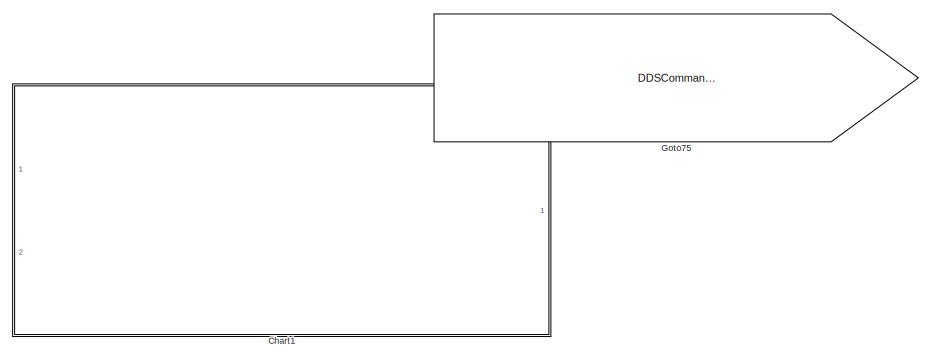
[diagram: root canvas - part 1/144, top center region]
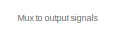
[diagram: root canvas - part 2/144, top left region]
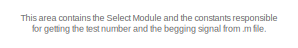
[diagram: root canvas - part 3/144, top right region]
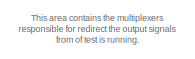
[diagram: root canvas - part 4/144, top left region]
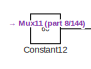
[diagram: root canvas - part 5/144, top center region]
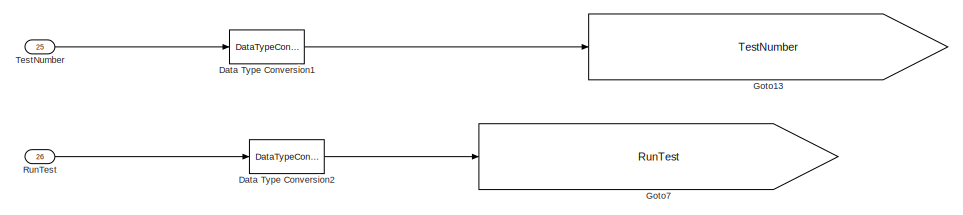
[diagram: root canvas - part 6/144, top right region]
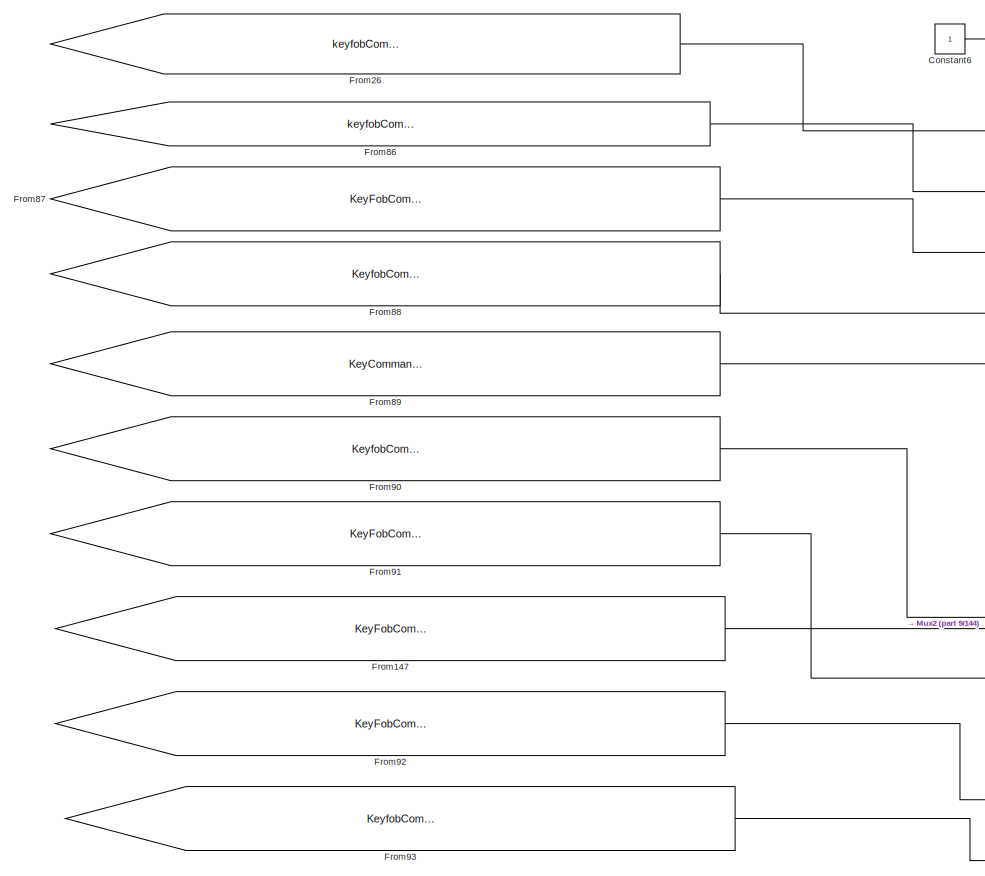
[diagram: root canvas - part 7/144, top right region]
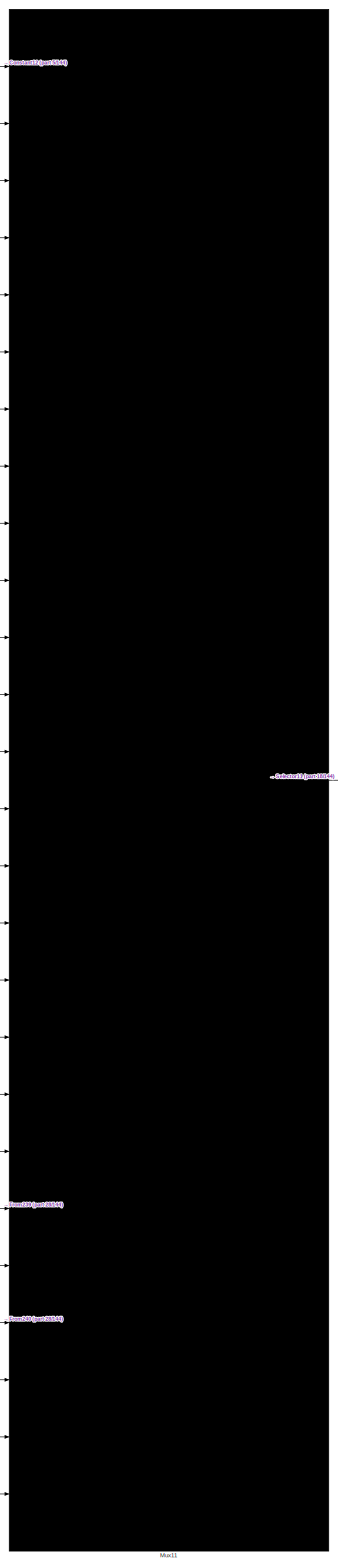
[diagram: root canvas - part 8/144, top center region]
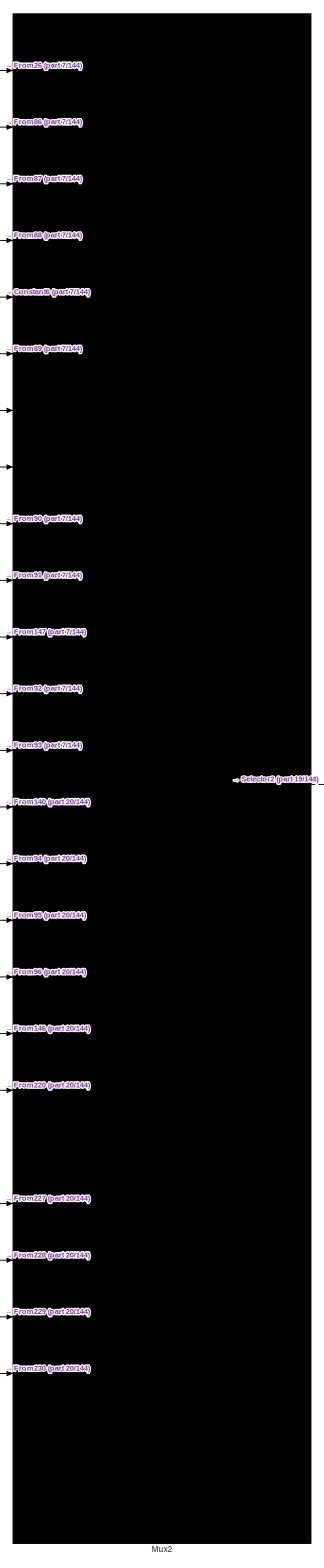
[diagram: root canvas - part 9/144, top right region]
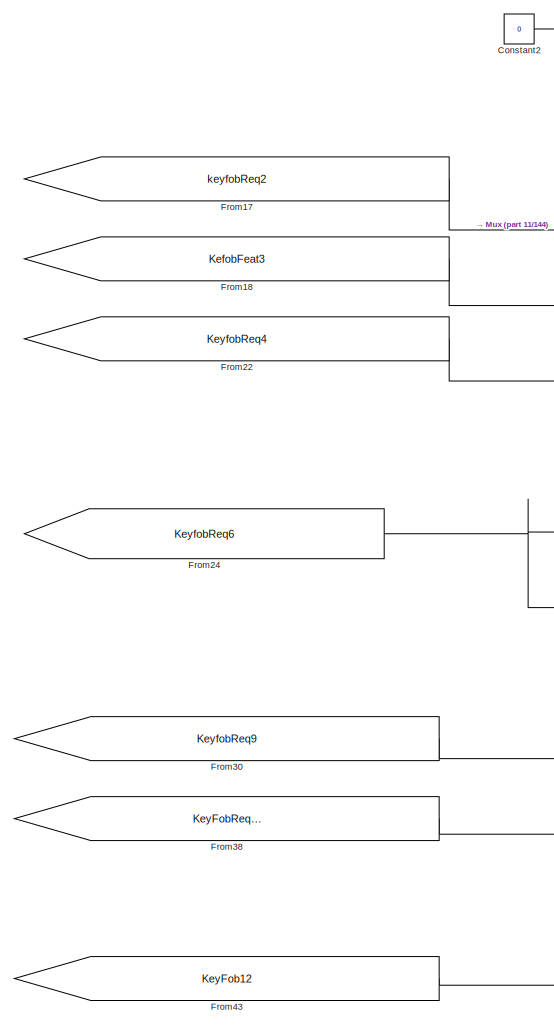
[diagram: root canvas - part 10/144, top center region]
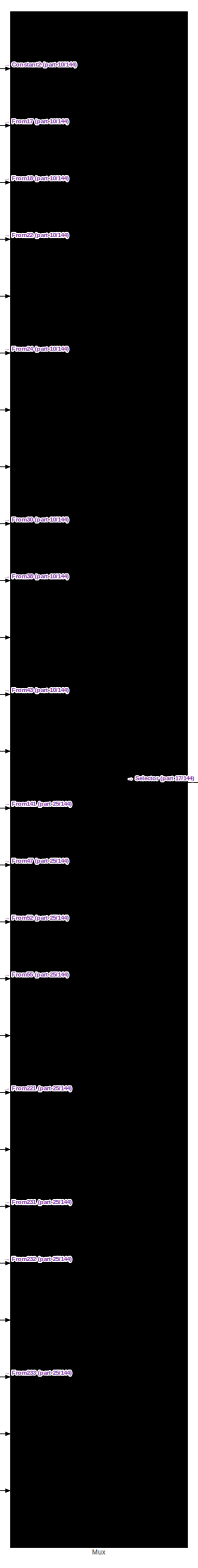
[diagram: root canvas - part 11/144, top center region]
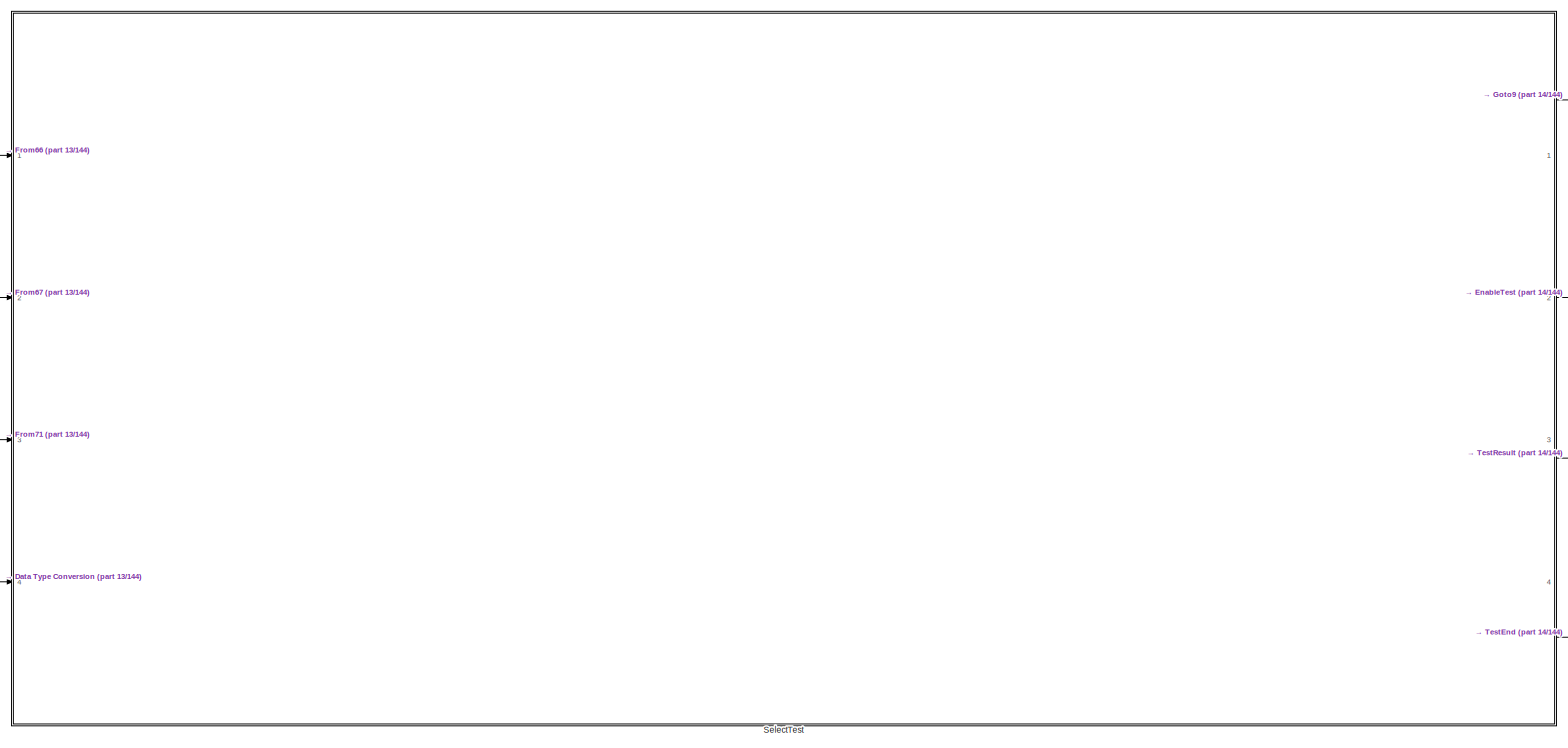
[diagram: root canvas - part 12/144, top right region]
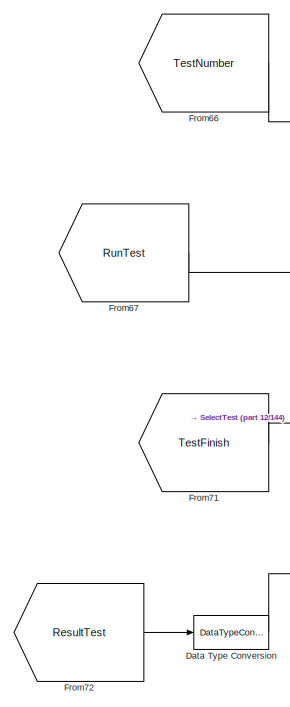
[diagram: root canvas - part 13/144, top right region]
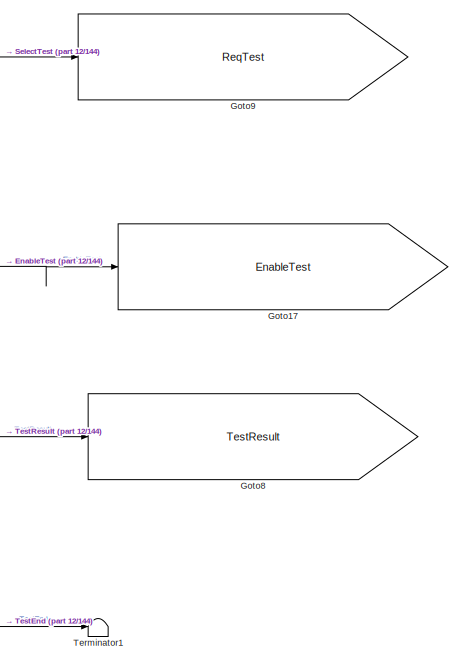
[diagram: root canvas - part 14/144, top right region]
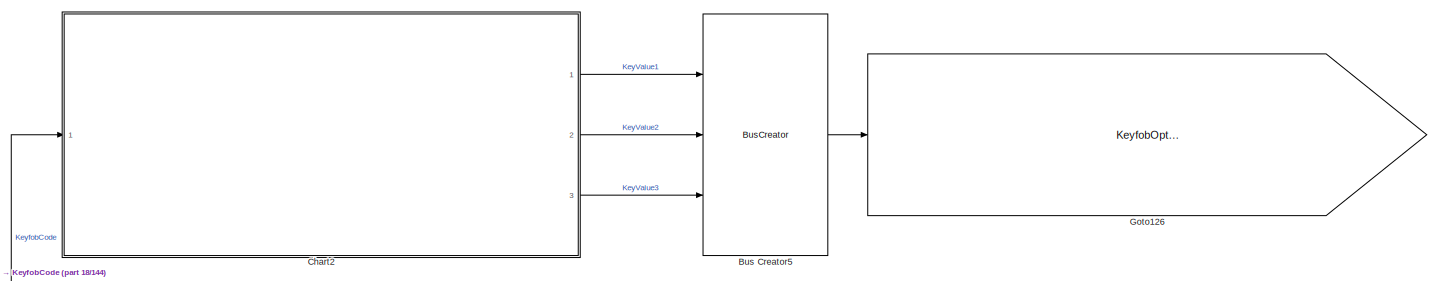
[diagram: root canvas - part 15/144, top center region]
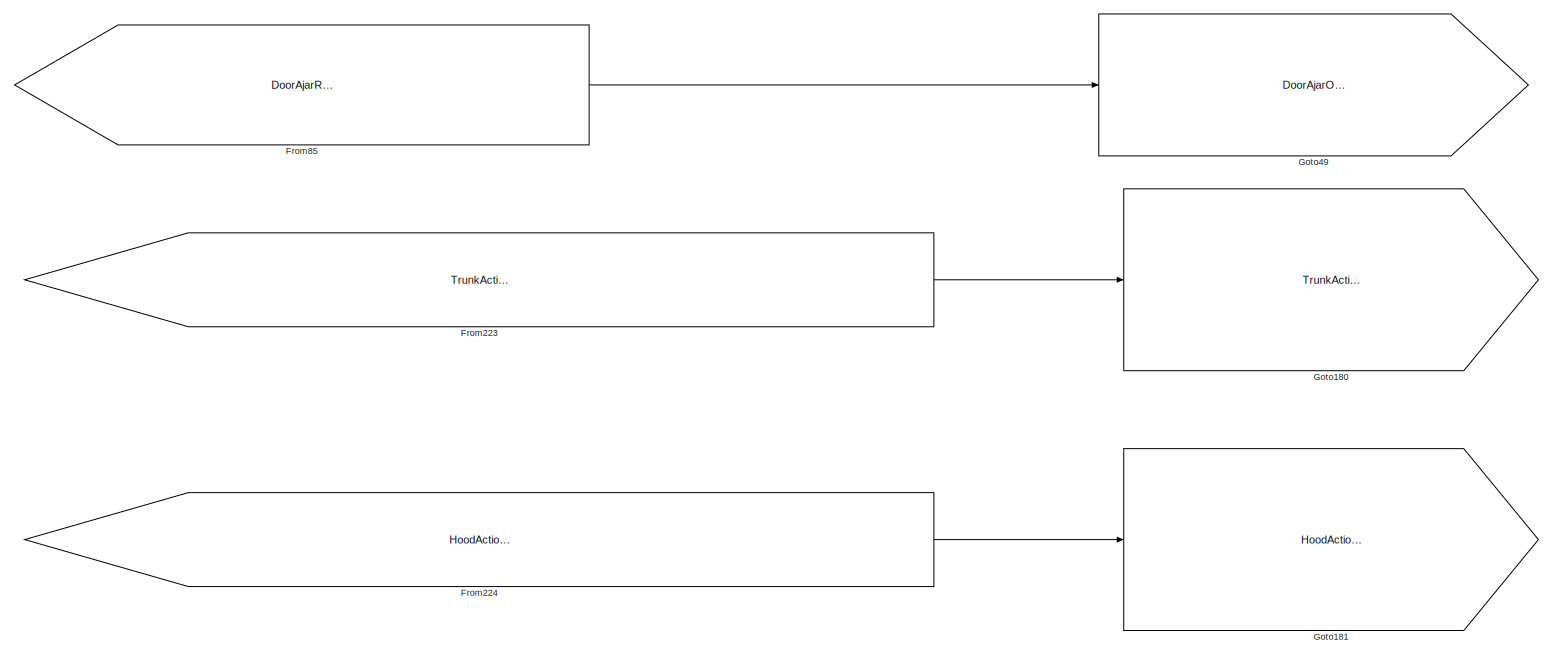
[diagram: root canvas - part 16/144, top left region]
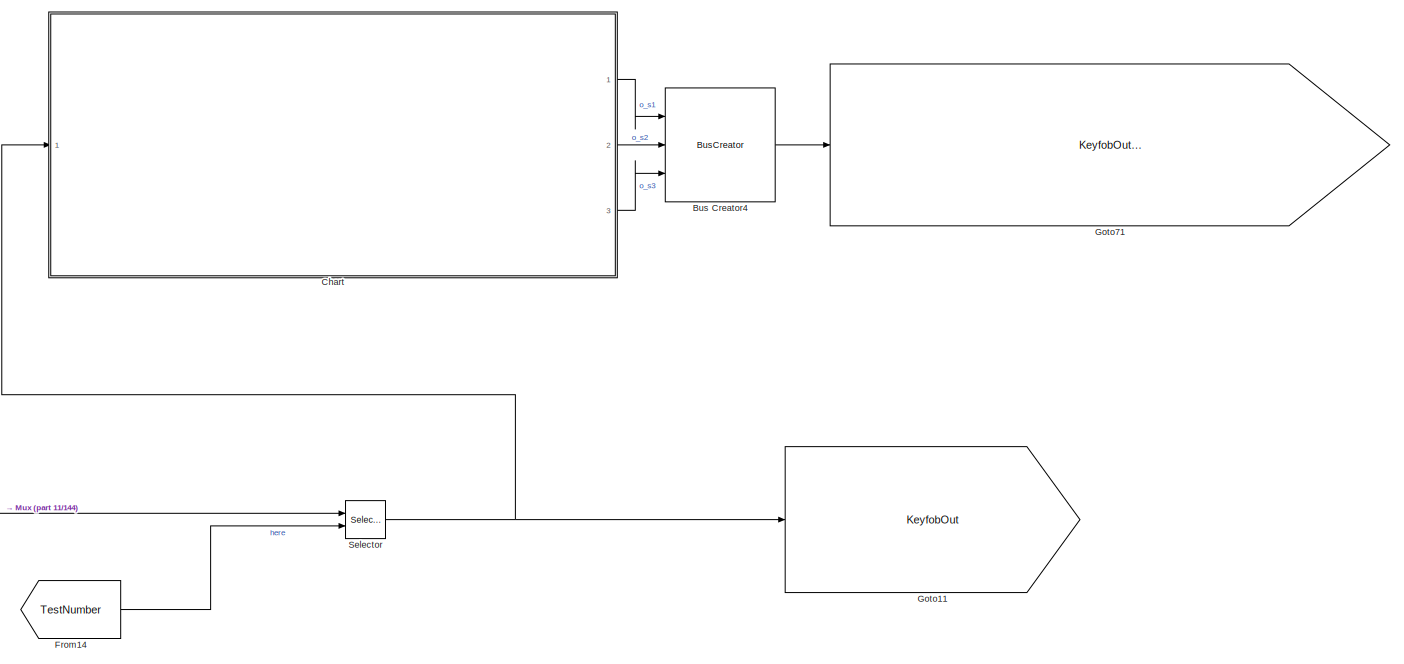
[diagram: root canvas - part 17/144, top center region]
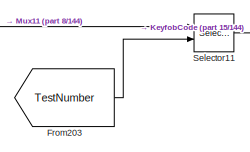
[diagram: root canvas - part 18/144, top center region]
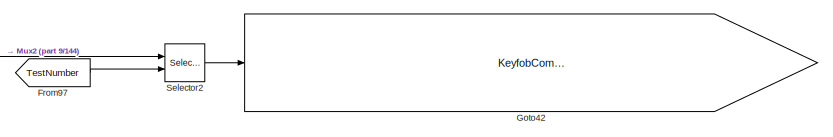
[diagram: root canvas - part 19/144, top right region]
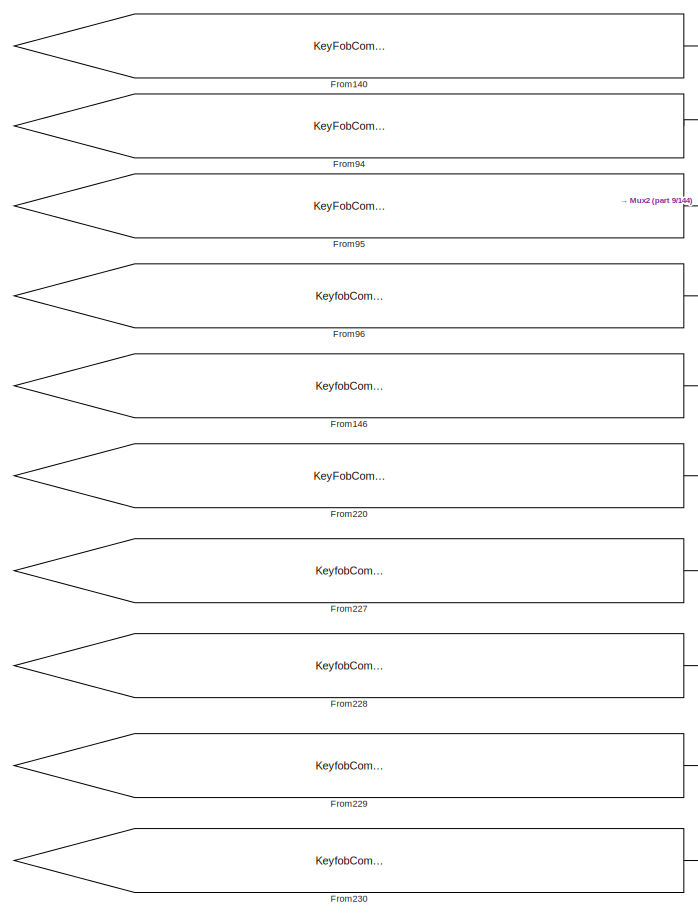
[diagram: root canvas - part 20/144, top center region]
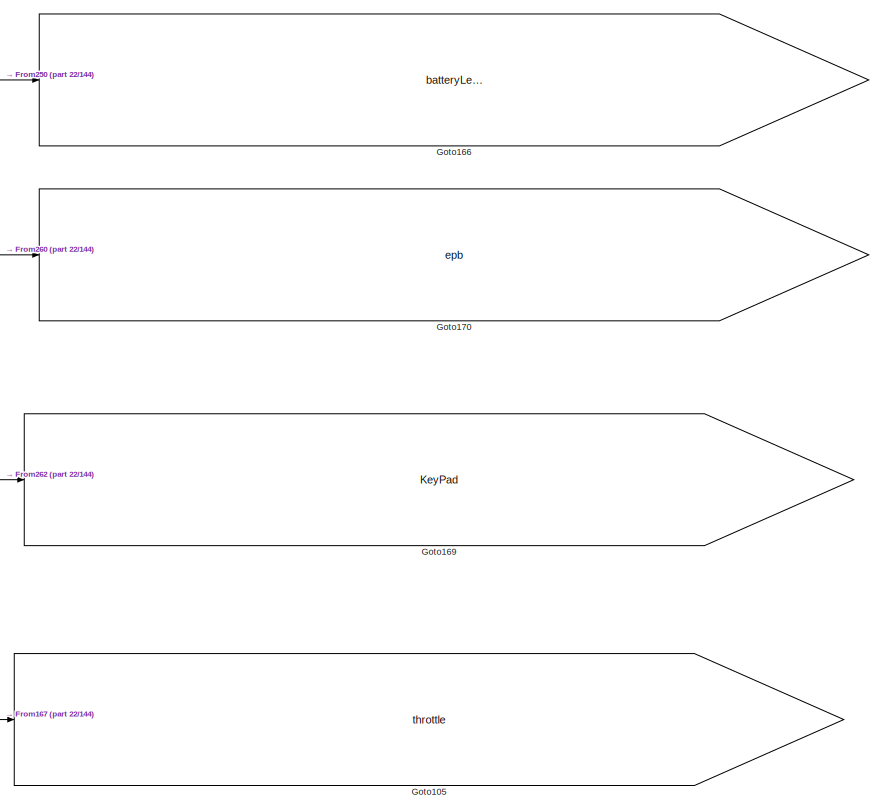
[diagram: root canvas - part 21/144, top left region]
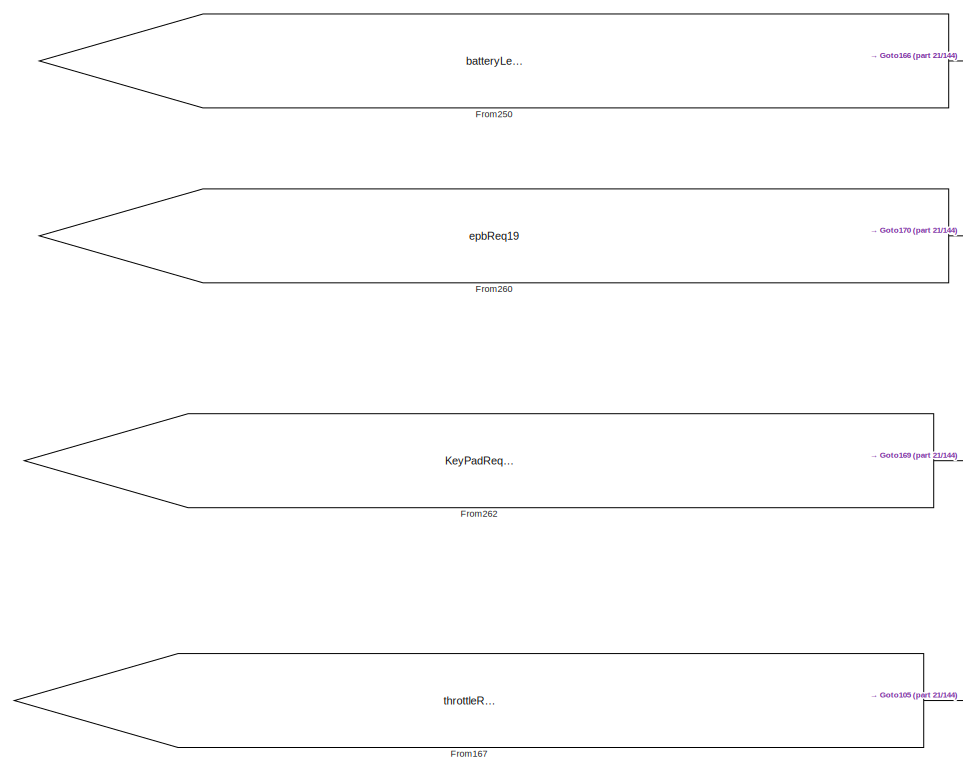
[diagram: root canvas - part 22/144, top left region]
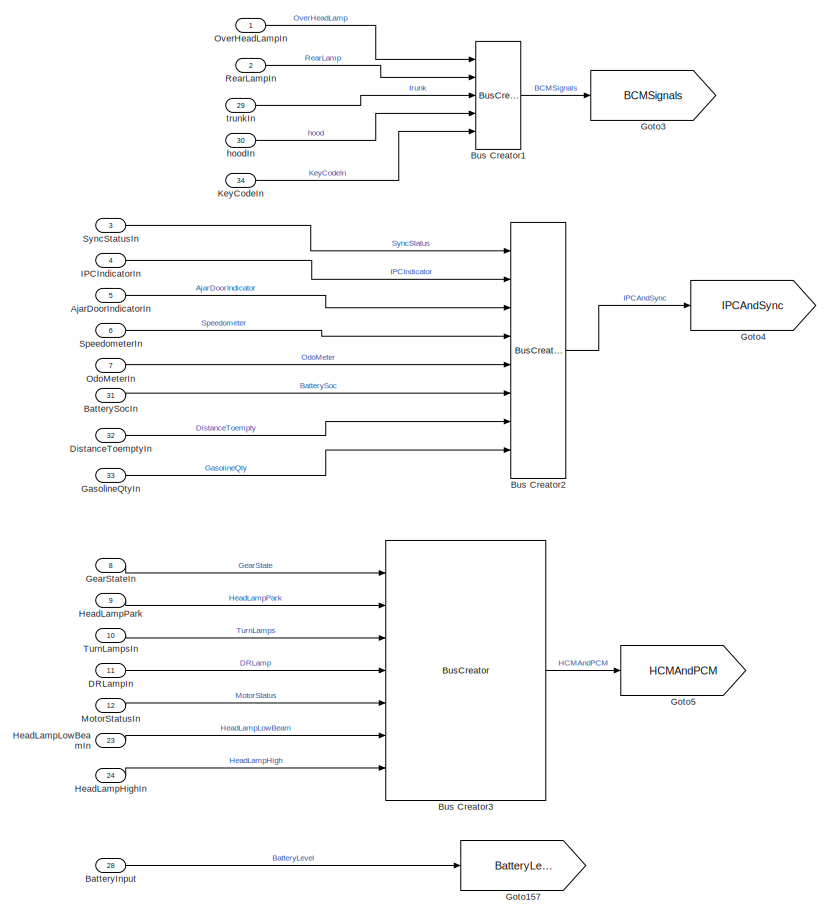
[diagram: root canvas - part 23/144, top right region]
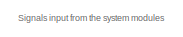
[diagram: root canvas - part 24/144, top right region]
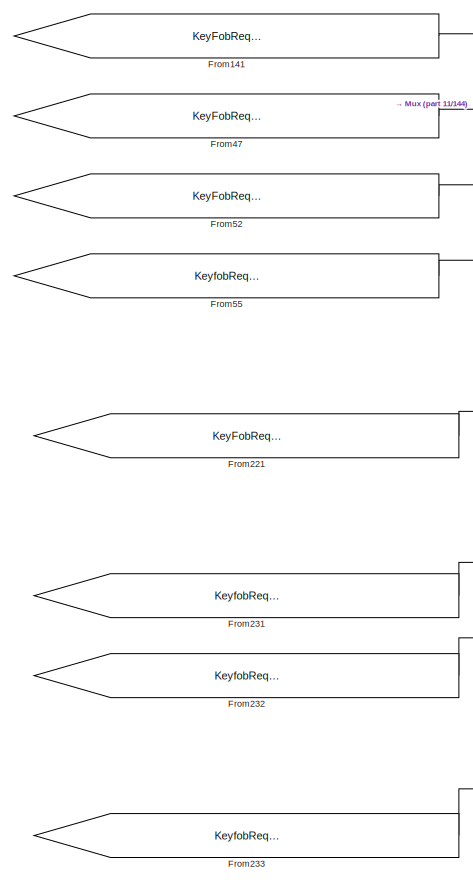
[diagram: root canvas - part 25/144, top center region]
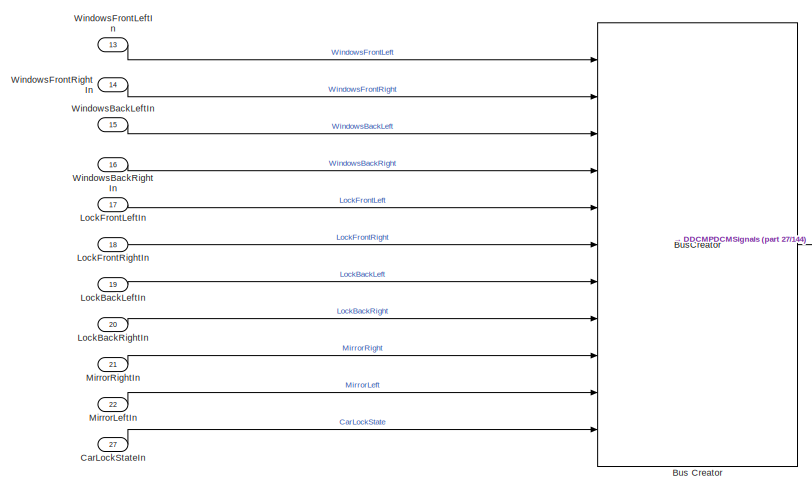
[diagram: root canvas - part 26/144, top right region]
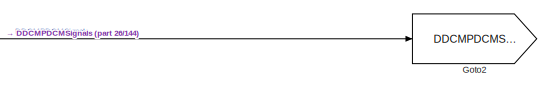
[diagram: root canvas - part 27/144, top right region]
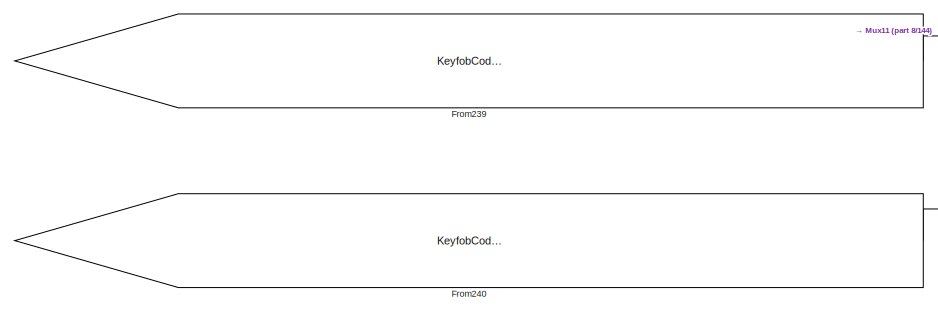
[diagram: root canvas - part 28/144, top center region]
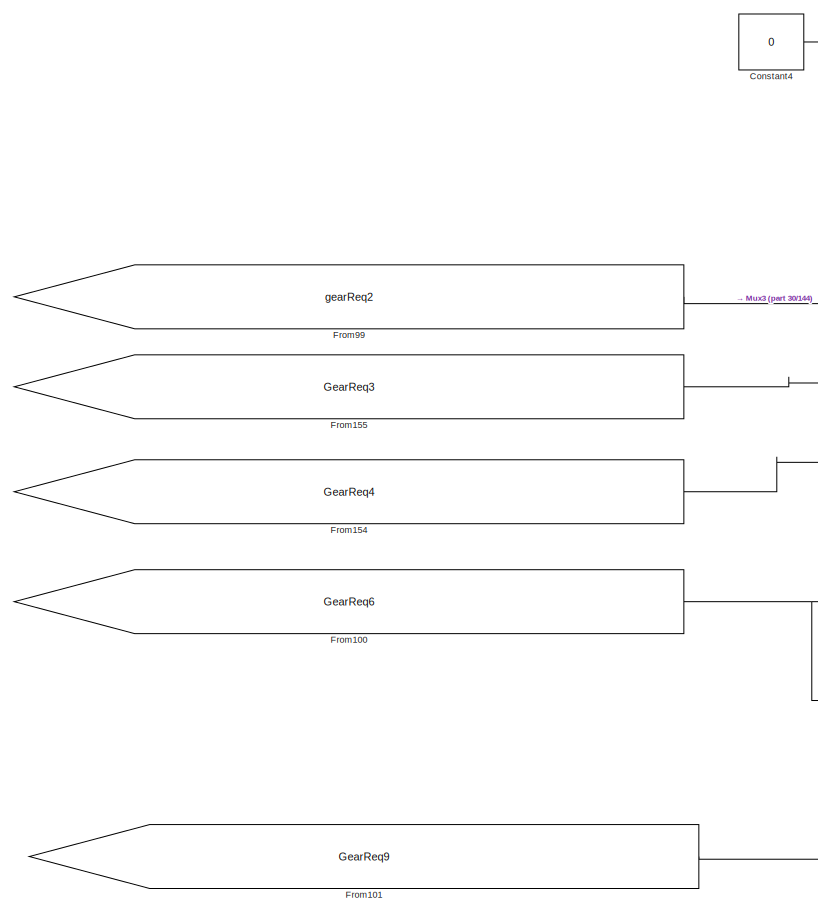
[diagram: root canvas - part 29/144, top right region]
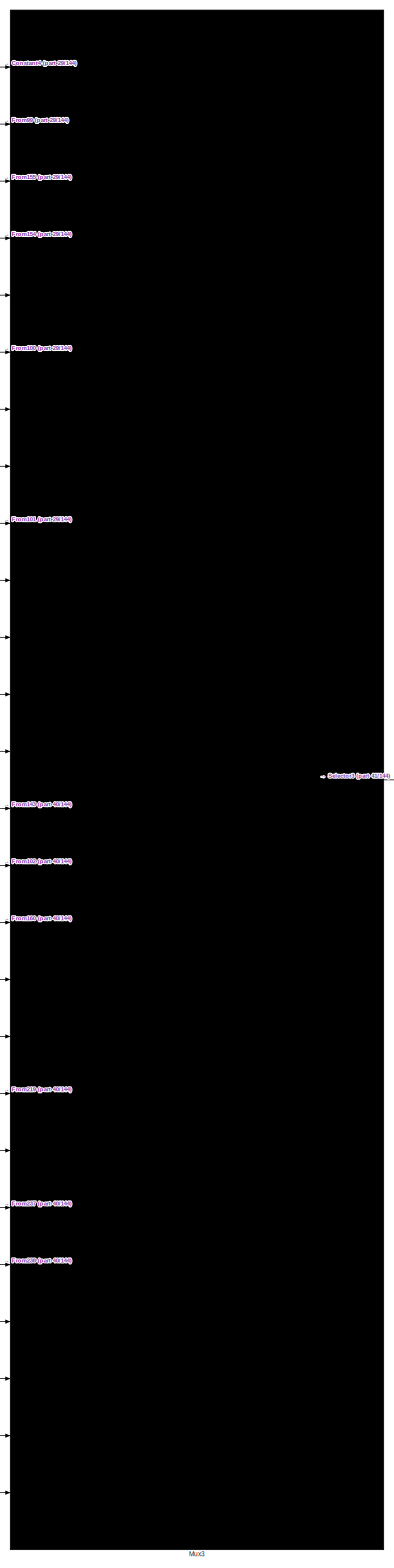
[diagram: root canvas - part 30/144, top right region]
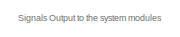
[diagram: root canvas - part 31/144, top right region]
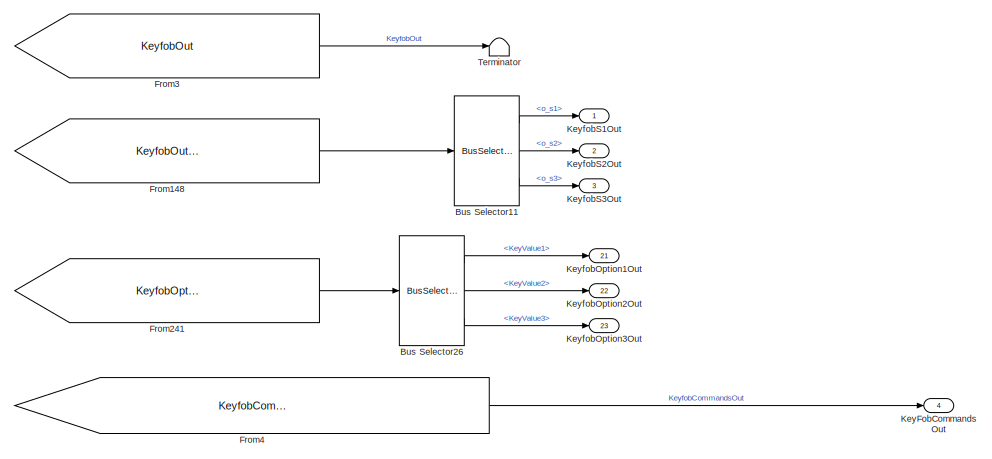
[diagram: root canvas - part 32/144, top right region]
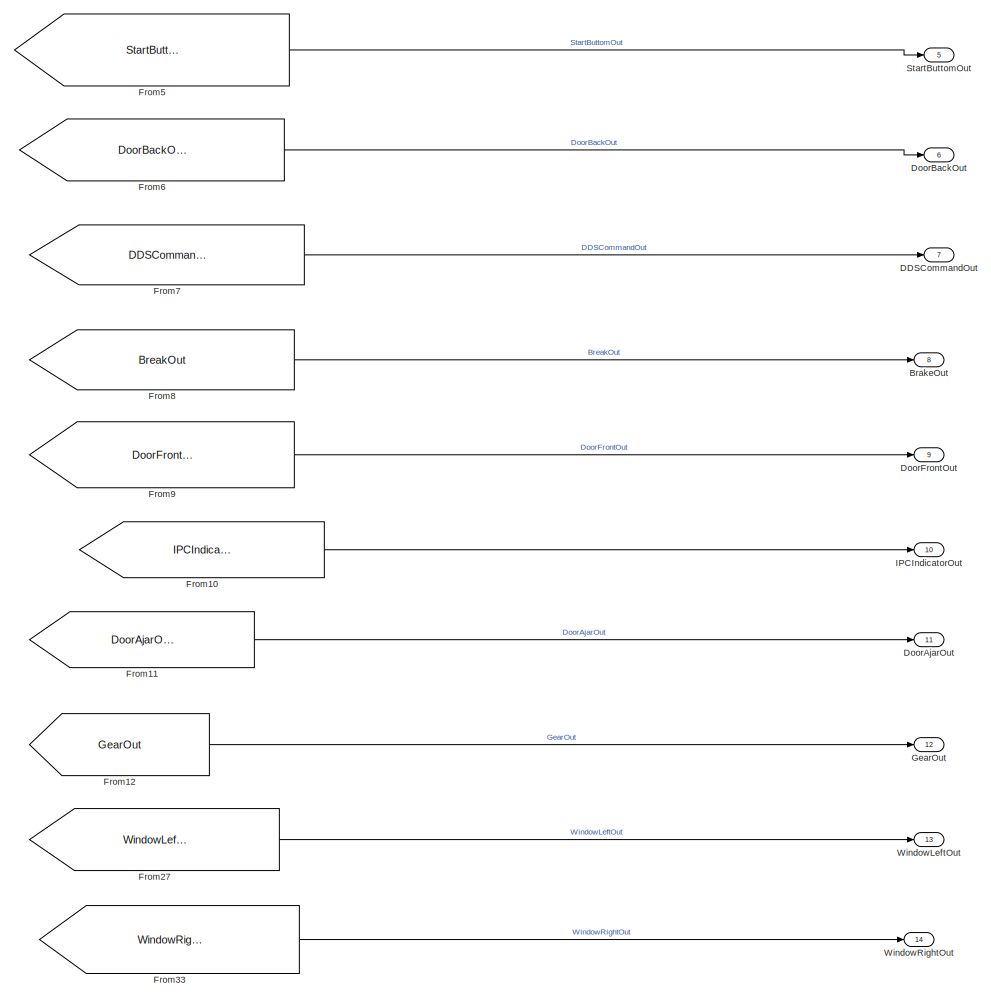
[diagram: root canvas - part 33/144, top right region]
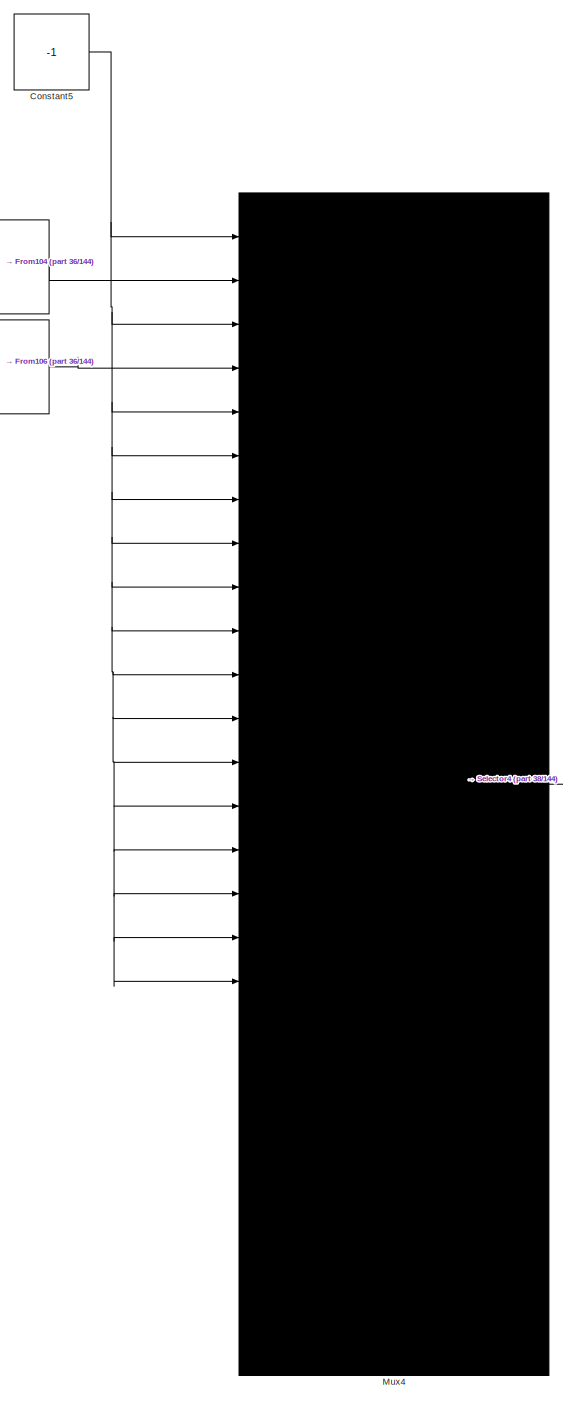
[diagram: root canvas - part 34/144, top center region]
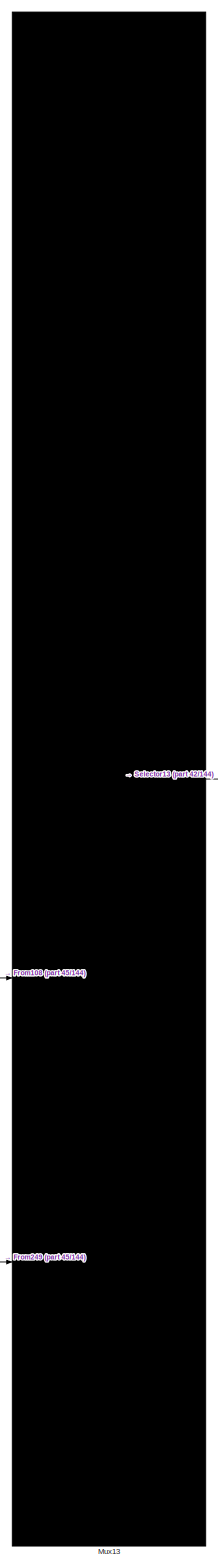
[diagram: root canvas - part 35/144, top left region]
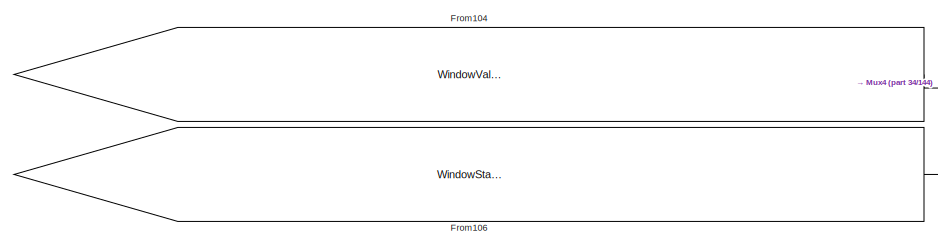
[diagram: root canvas - part 36/144, top center region]
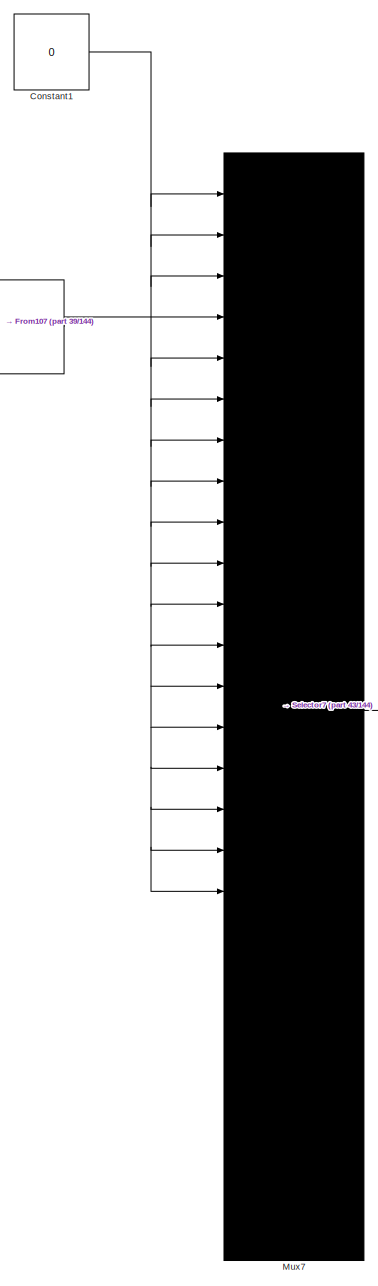
[diagram: root canvas - part 37/144, top center region]
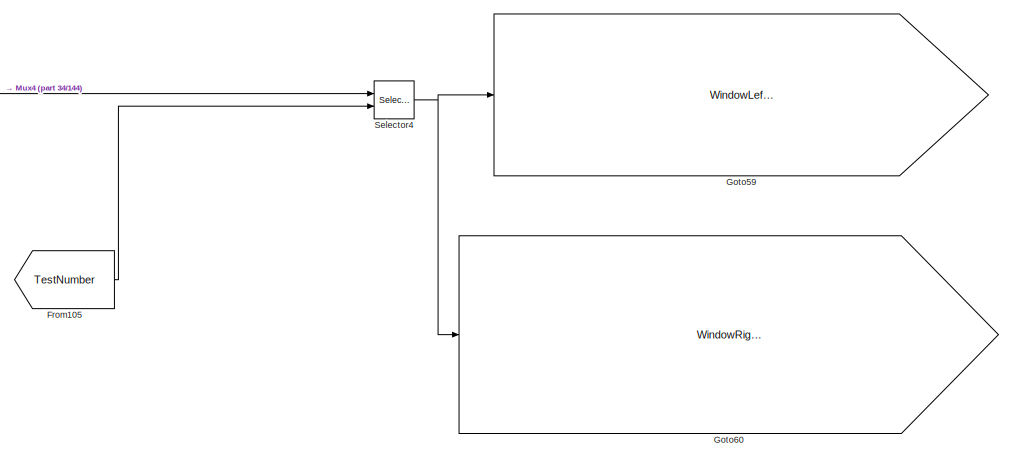
[diagram: root canvas - part 38/144, top center region]
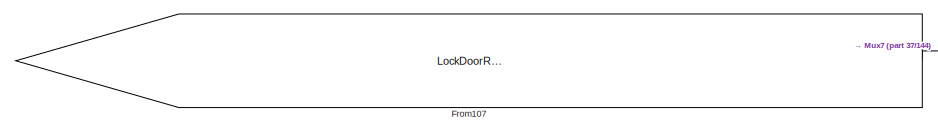
[diagram: root canvas - part 39/144, top left region]
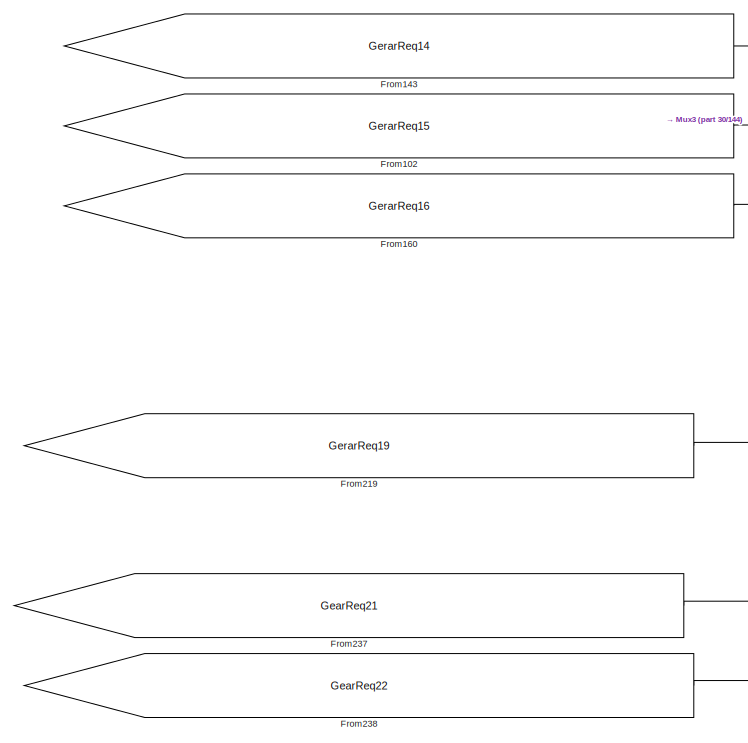
[diagram: root canvas - part 40/144, top right region]
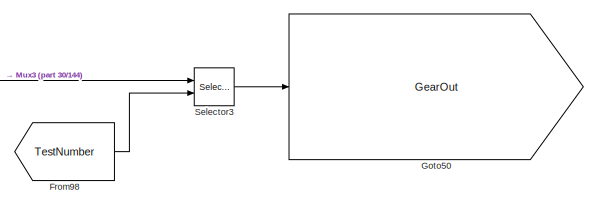
[diagram: root canvas - part 41/144, top right region]
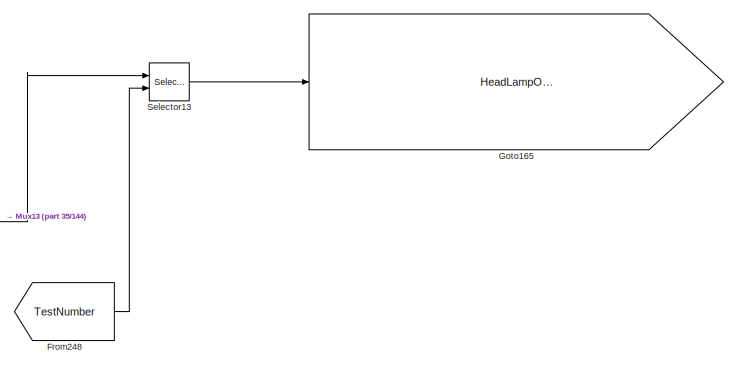
[diagram: root canvas - part 42/144, top left region]
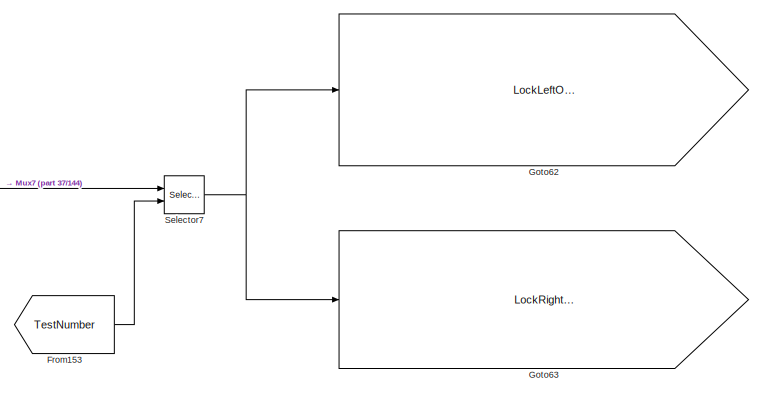
[diagram: root canvas - part 43/144, top center region]
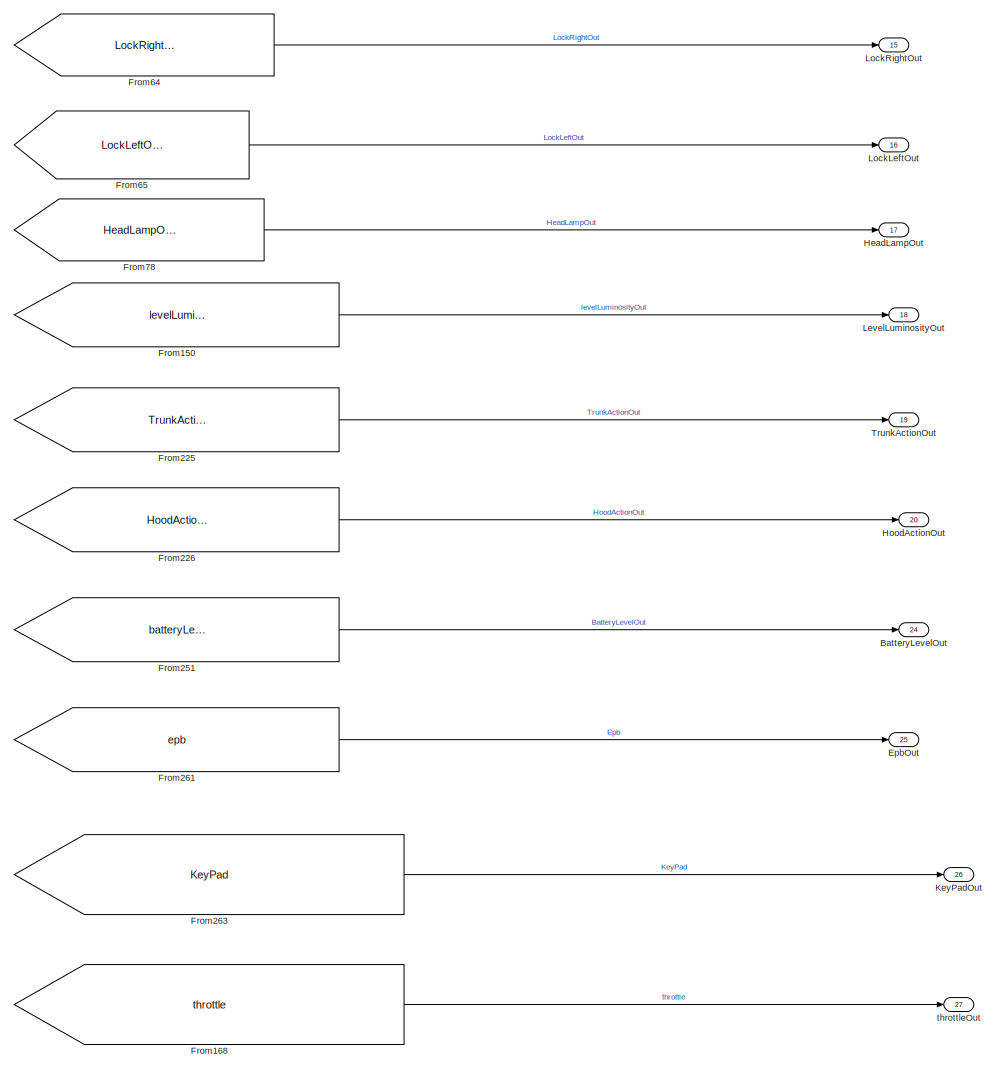
[diagram: root canvas - part 44/144, top right region]
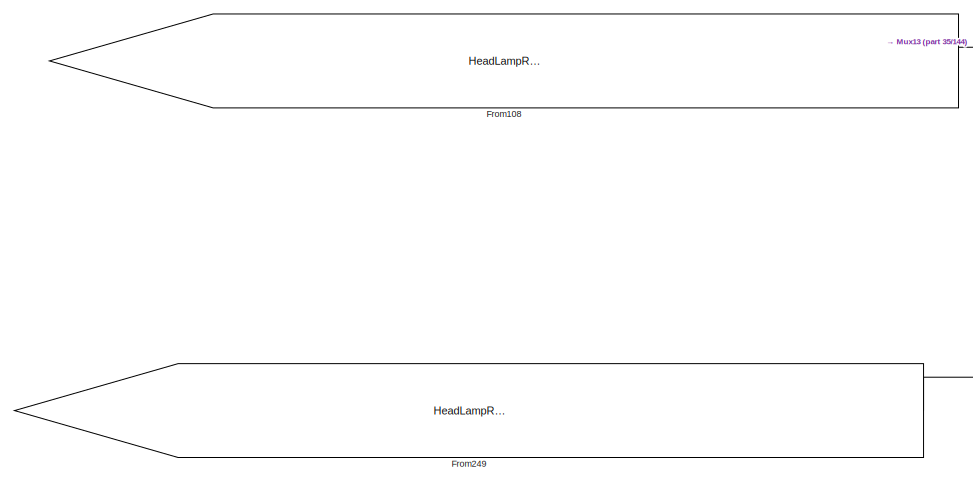
[diagram: root canvas - part 45/144, top left region]
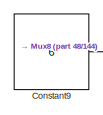
[diagram: root canvas - part 46/144, middle right region]
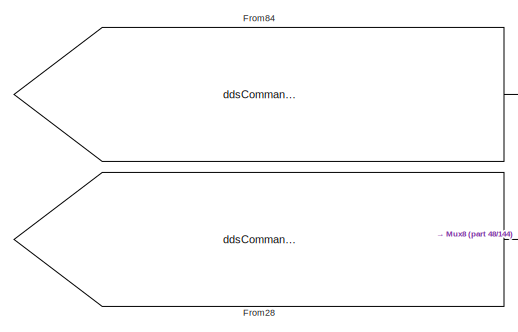
[diagram: root canvas - part 47/144, central region]
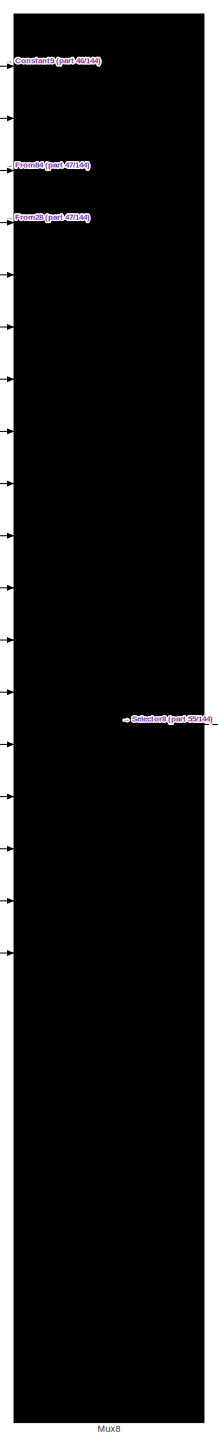
[diagram: root canvas - part 48/144, middle right region]
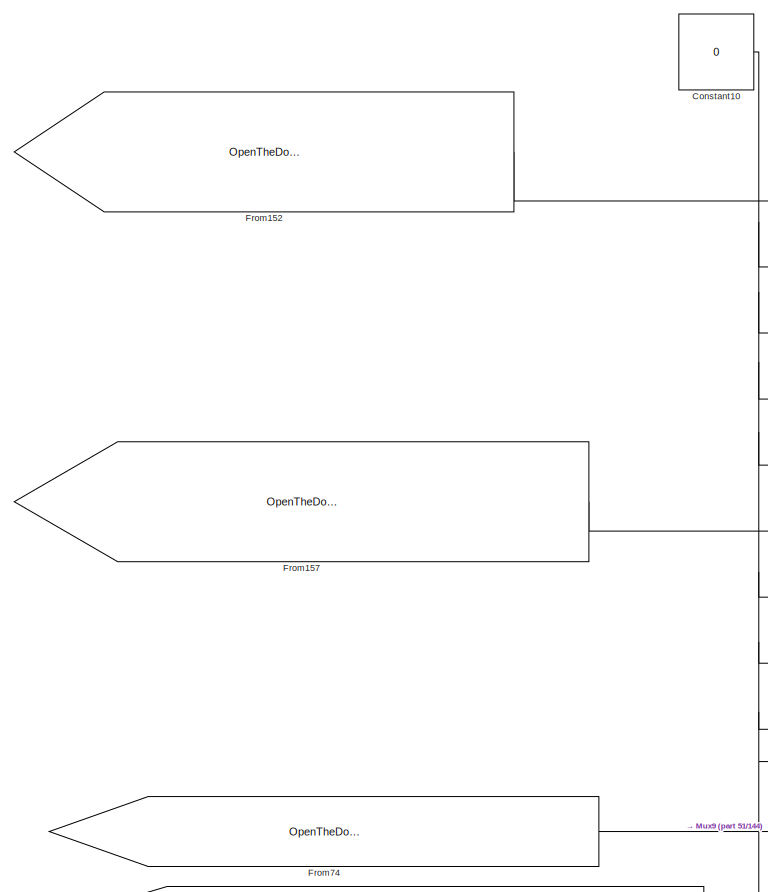
[diagram: root canvas - part 49/144, middle left region]
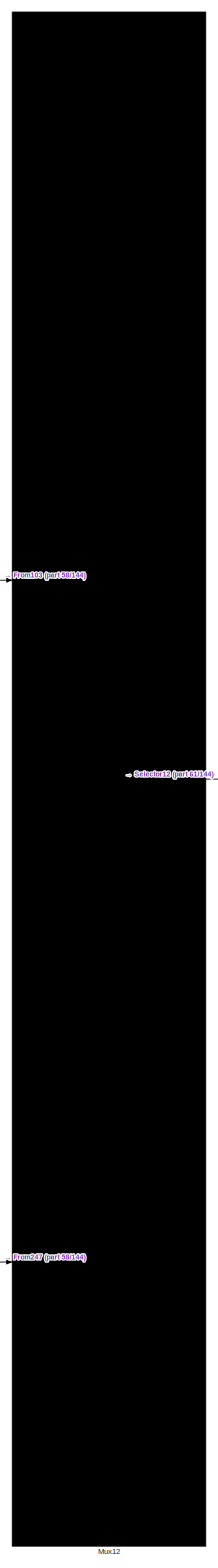
[diagram: root canvas - part 50/144, middle left region]
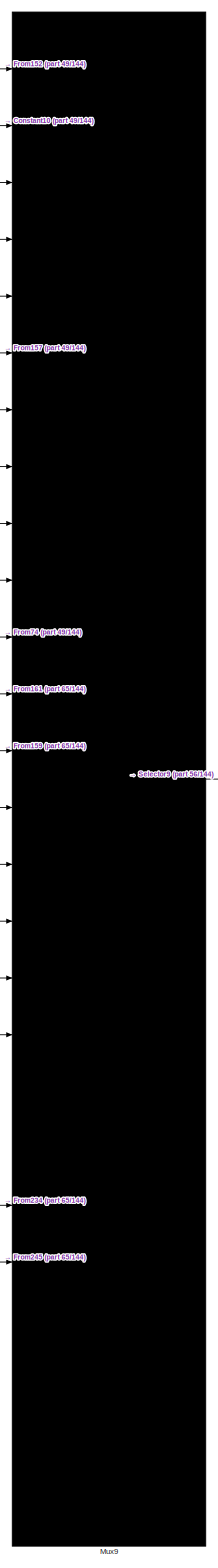
[diagram: root canvas - part 51/144, middle left region]
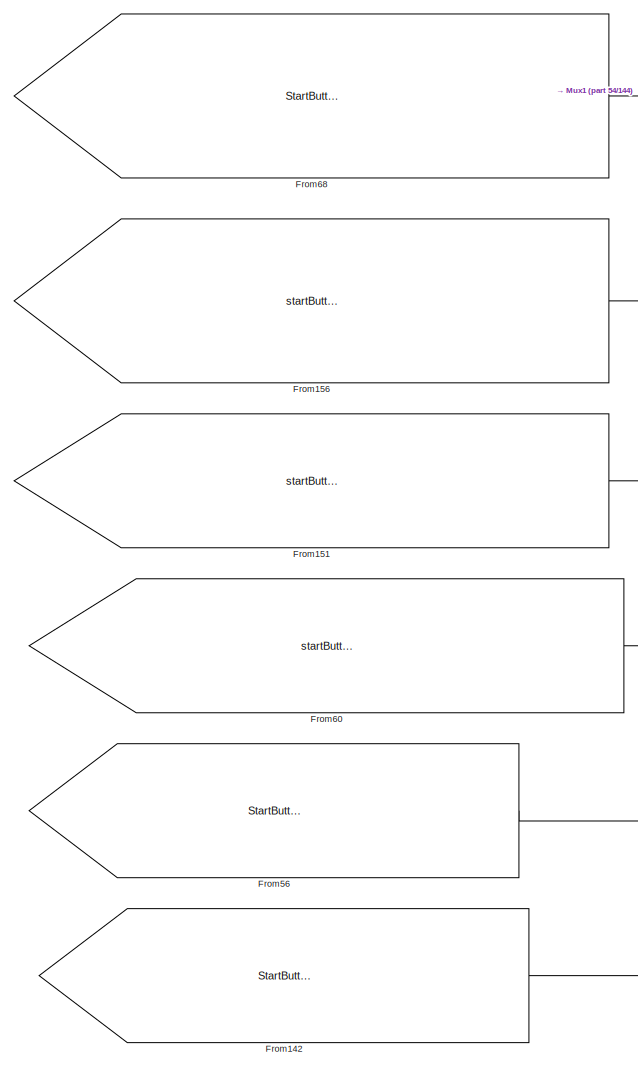
[diagram: root canvas - part 52/144, central region]
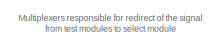
[diagram: root canvas - part 53/144, middle right region]
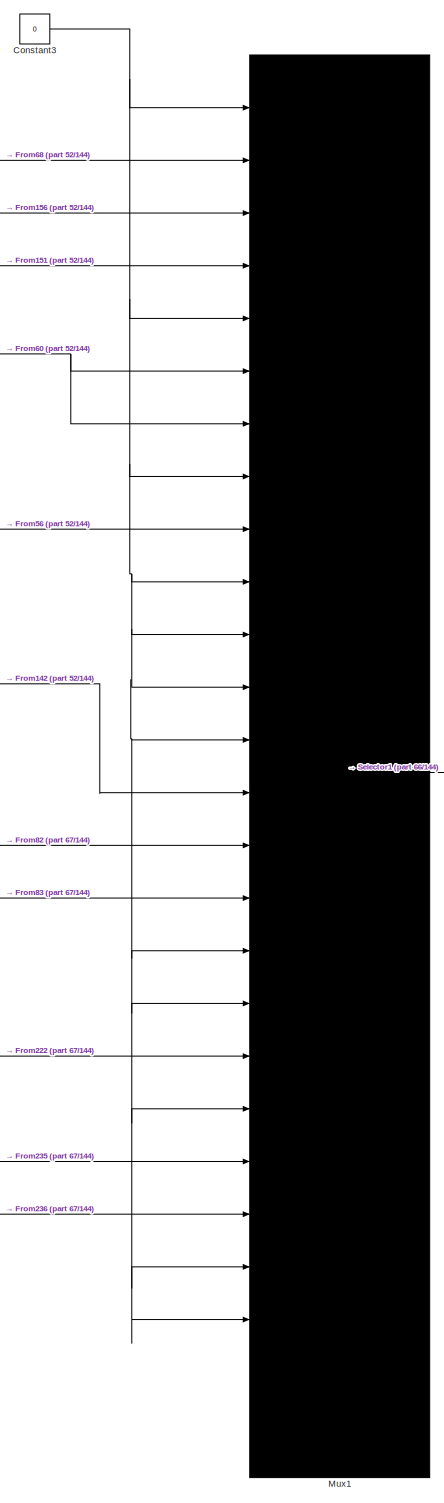
[diagram: root canvas - part 54/144, central region]
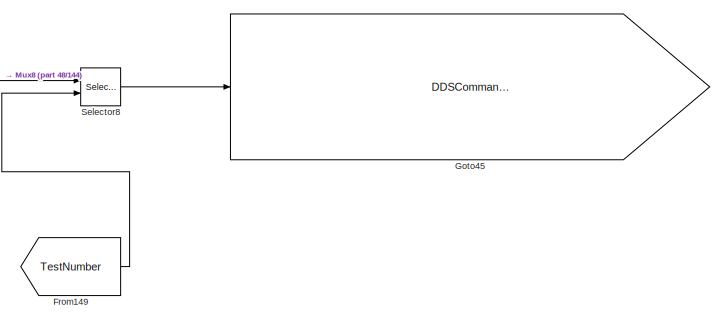
[diagram: root canvas - part 55/144, middle right region]
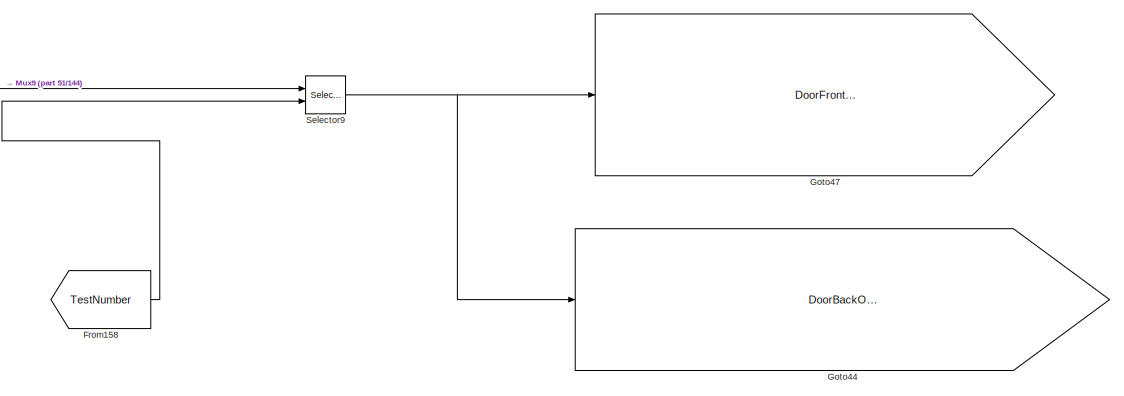
[diagram: root canvas - part 56/144, central region]
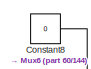
[diagram: root canvas - part 57/144, middle right region]
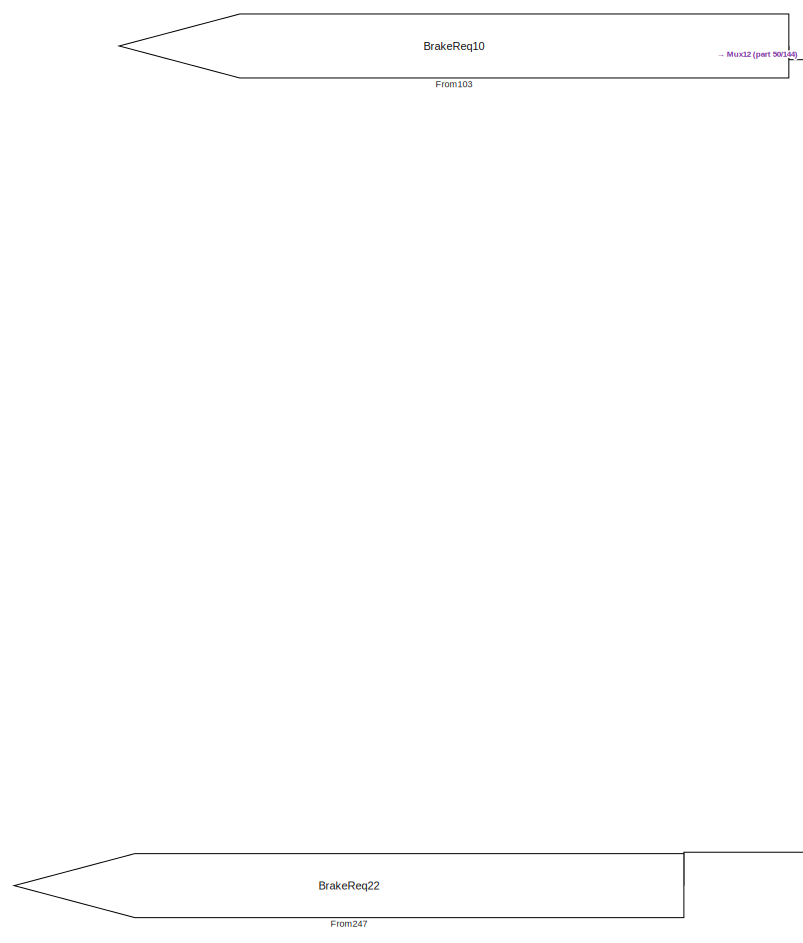
[diagram: root canvas - part 58/144, middle left region]
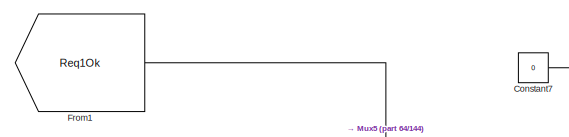
[diagram: root canvas - part 59/144, middle right region]
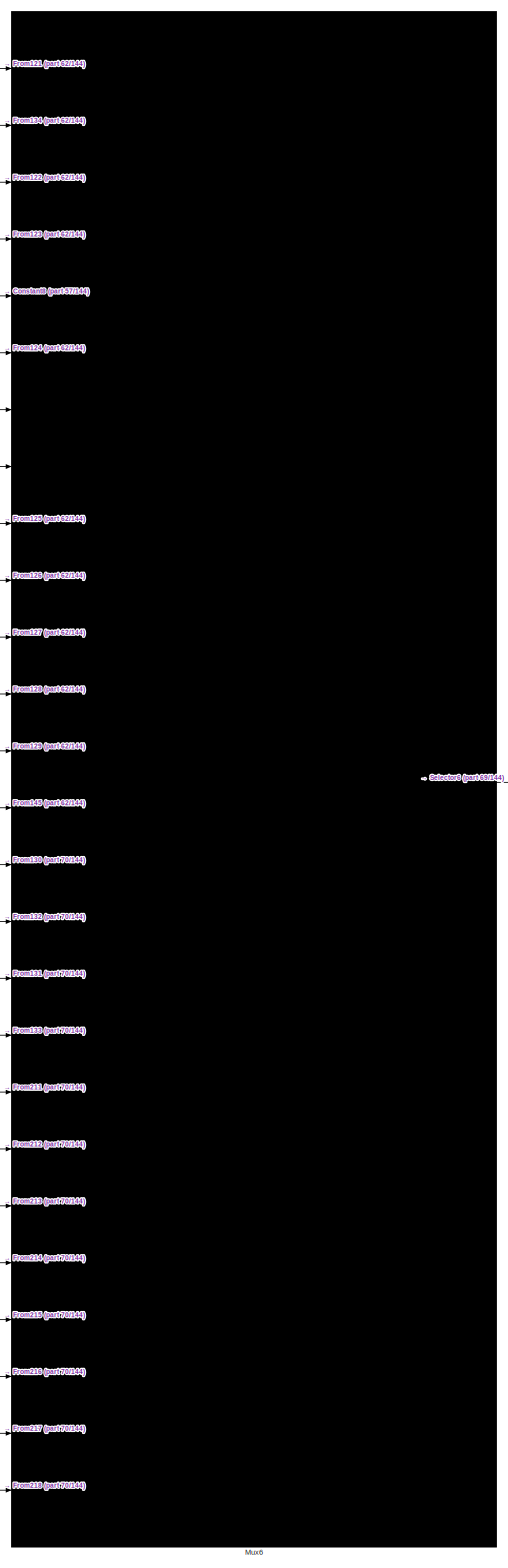
[diagram: root canvas - part 60/144, middle right region]
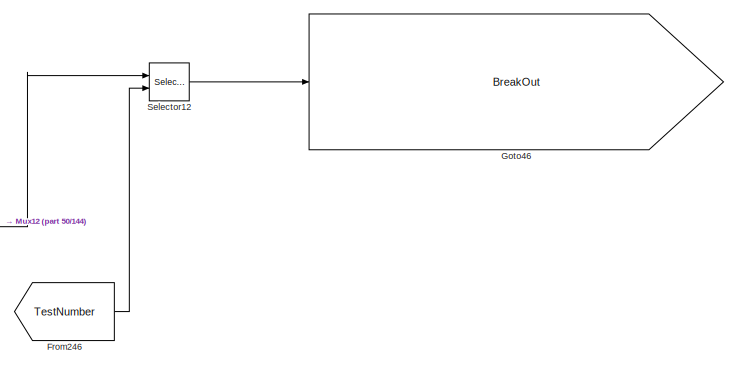
[diagram: root canvas - part 61/144, middle left region]
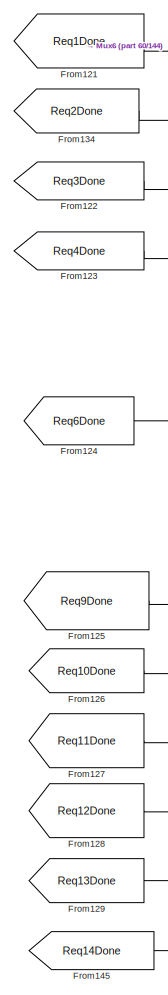
[diagram: root canvas - part 62/144, middle right region]
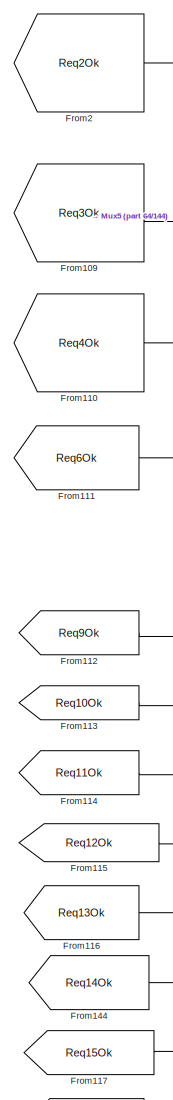
[diagram: root canvas - part 63/144, middle right region]
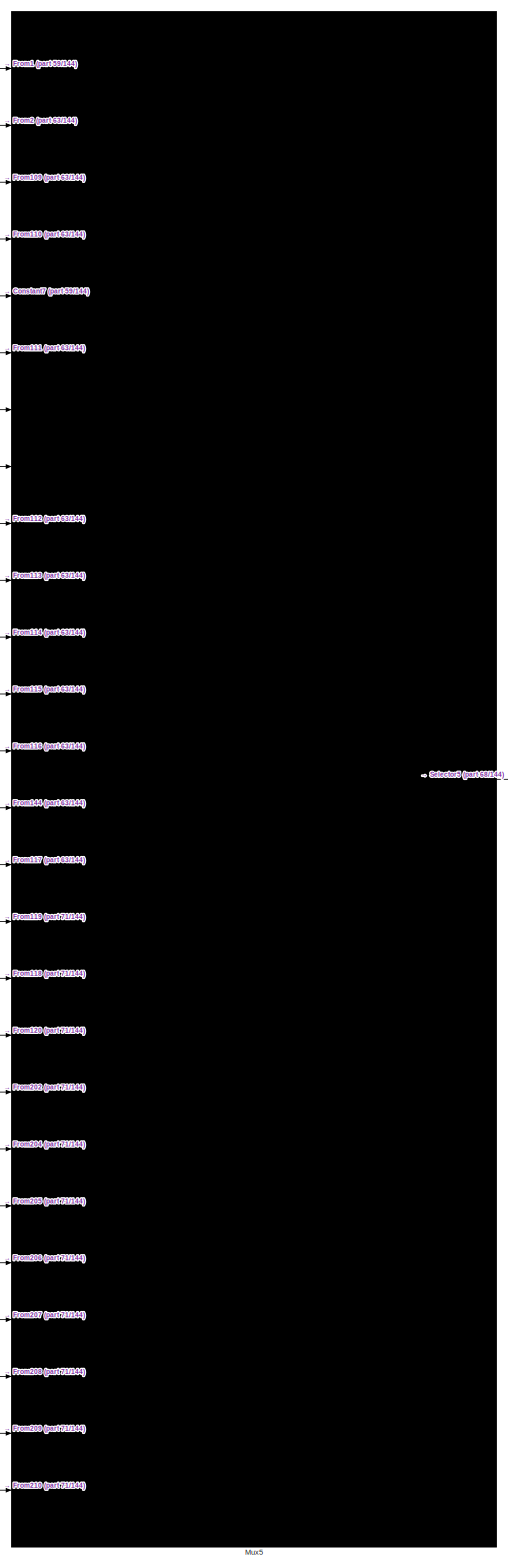
[diagram: root canvas - part 64/144, middle right region]
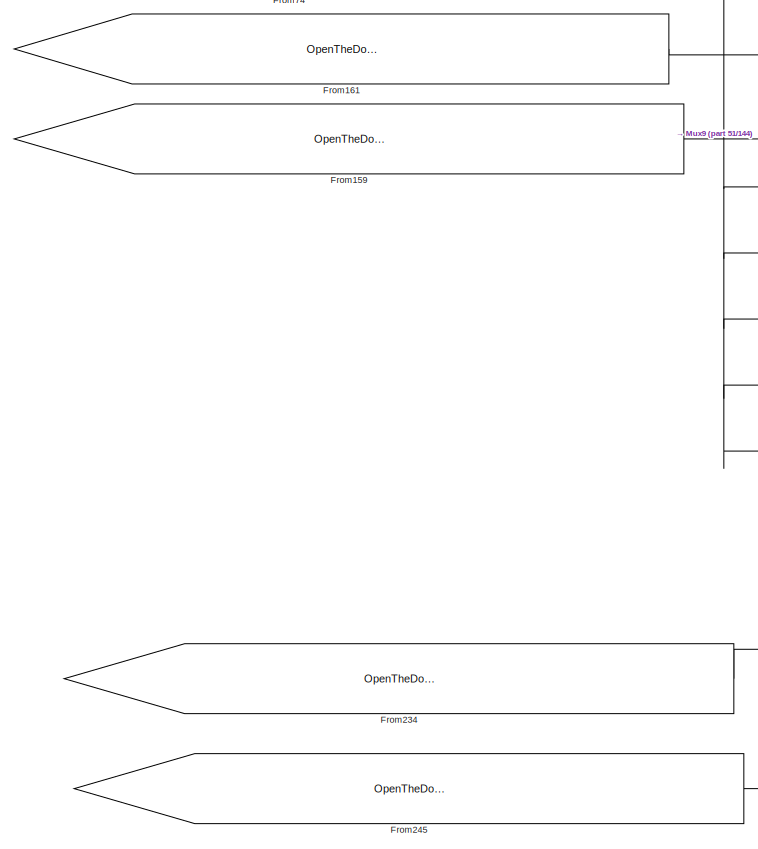
[diagram: root canvas - part 65/144, middle left region]
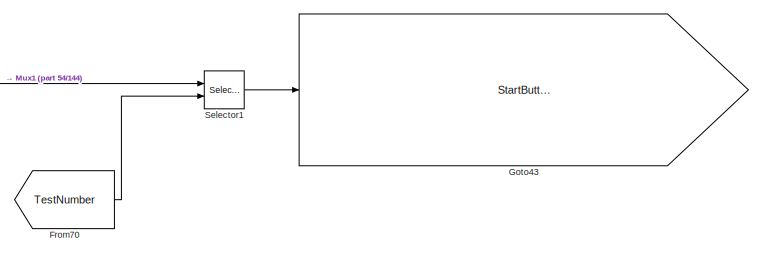
[diagram: root canvas - part 66/144, central region]
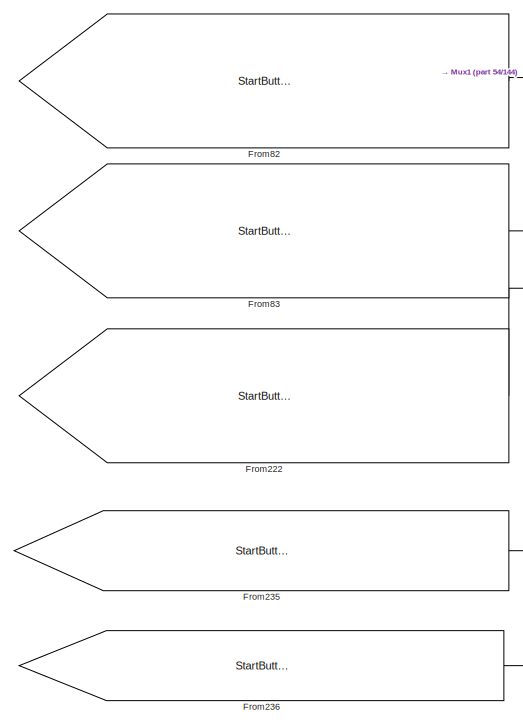
[diagram: root canvas - part 67/144, central region]
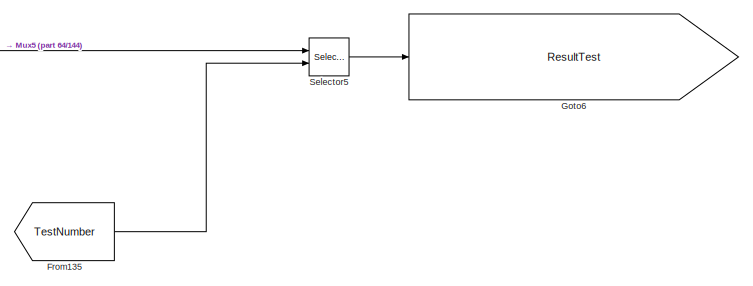
[diagram: root canvas - part 68/144, middle right region]
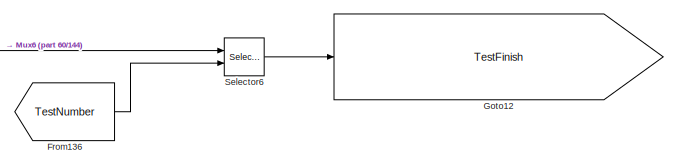
[diagram: root canvas - part 69/144, middle right region]
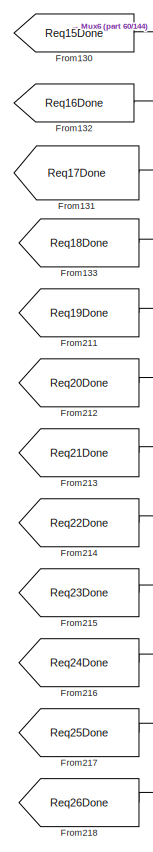
[diagram: root canvas - part 70/144, middle right region]
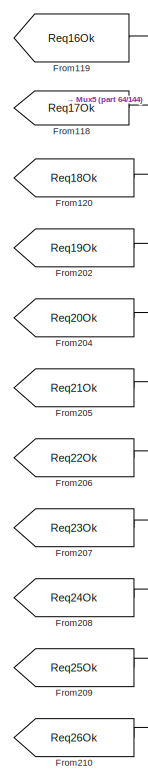
[diagram: root canvas - part 71/144, middle right region]
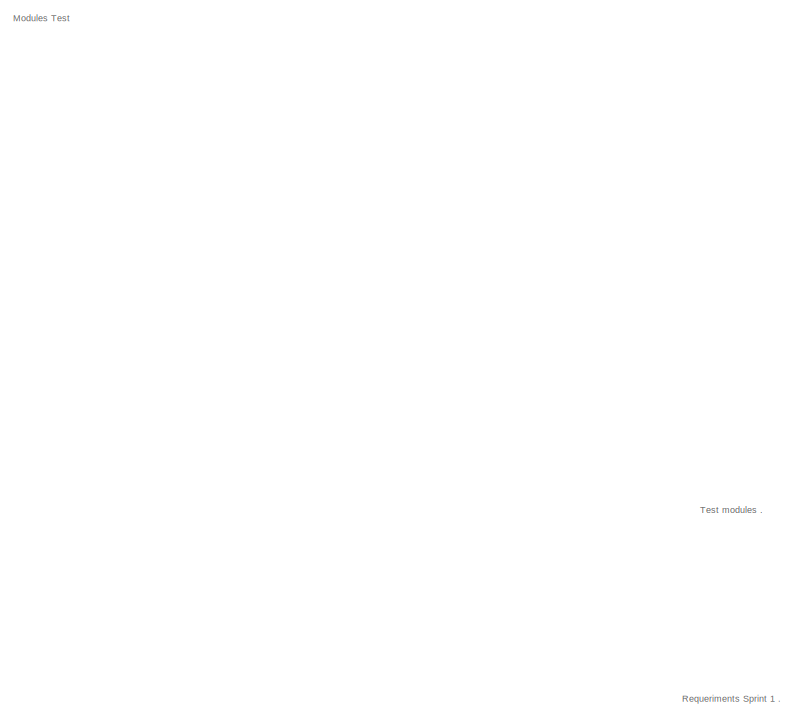
[diagram: root canvas - part 72/144, middle left region]
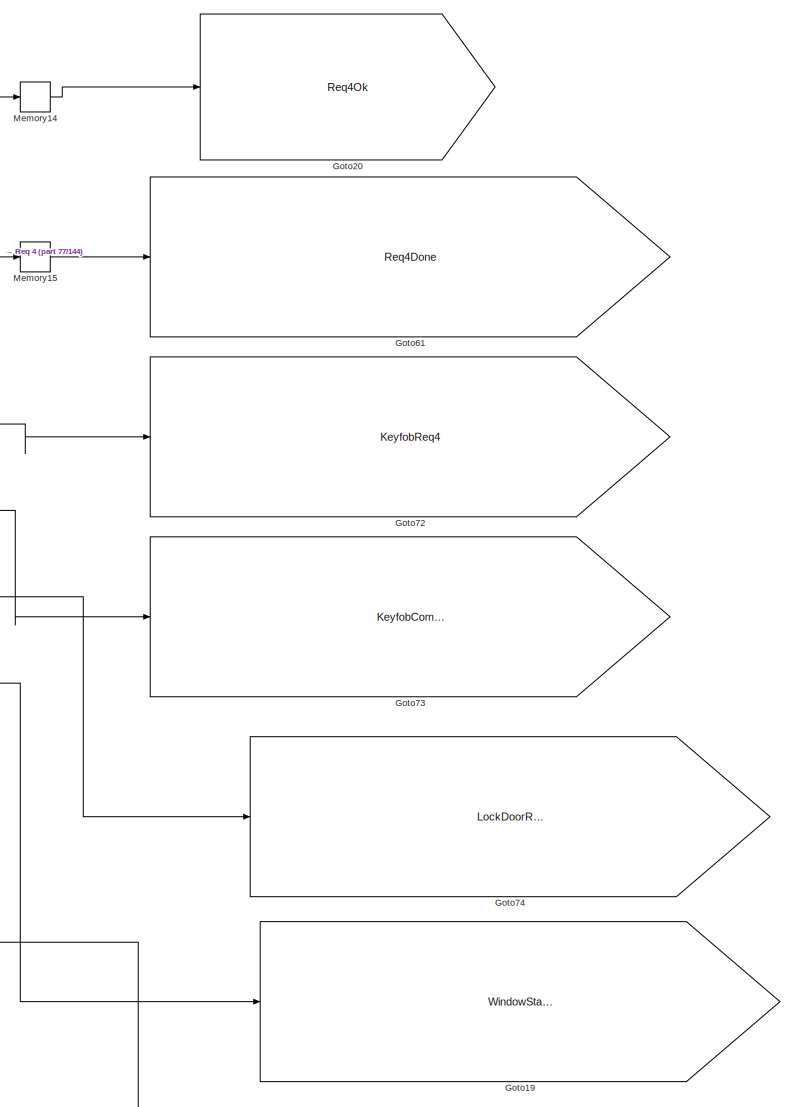
[diagram: root canvas - part 73/144, middle right region]
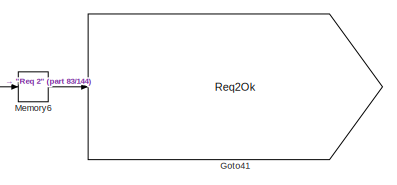
[diagram: root canvas - part 74/144, central region]
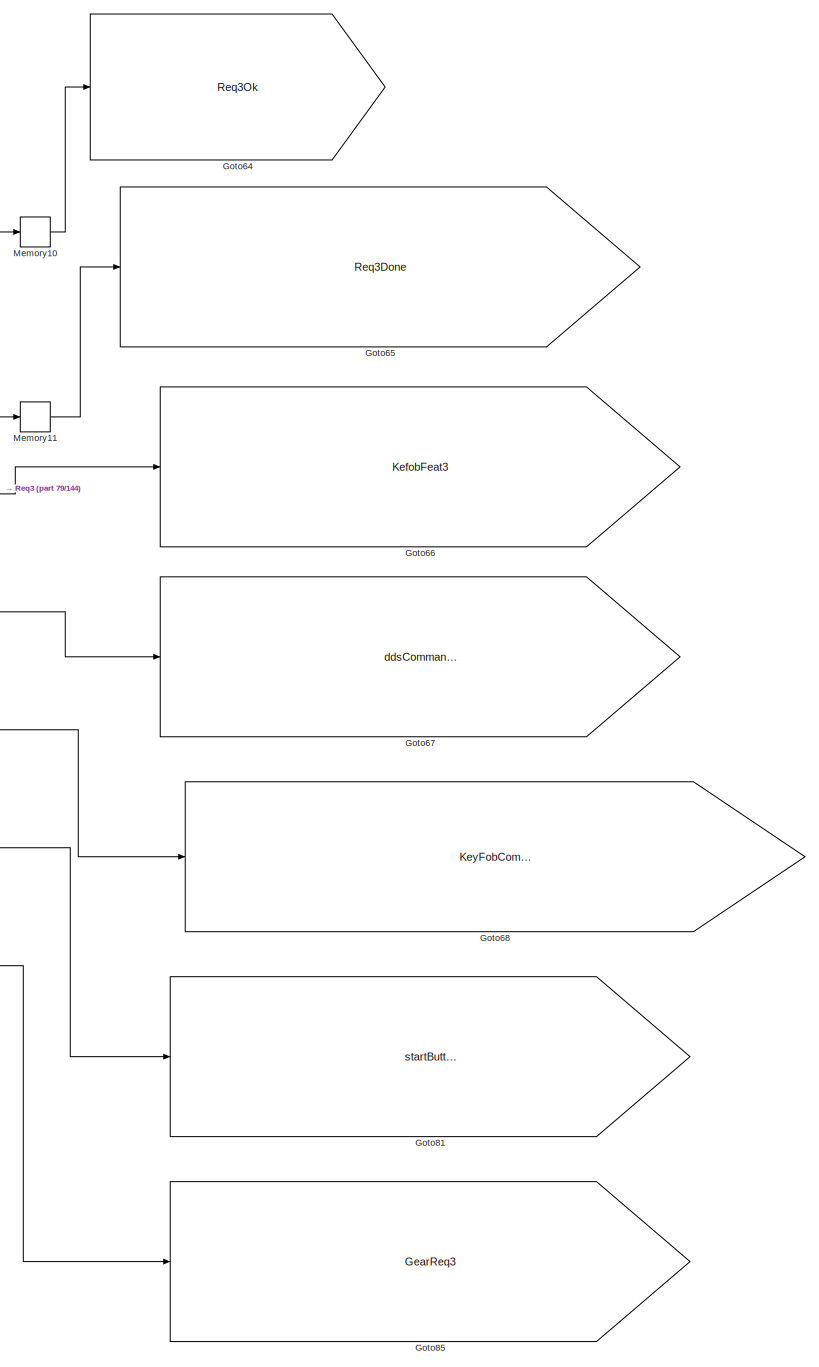
[diagram: root canvas - part 75/144, central region]
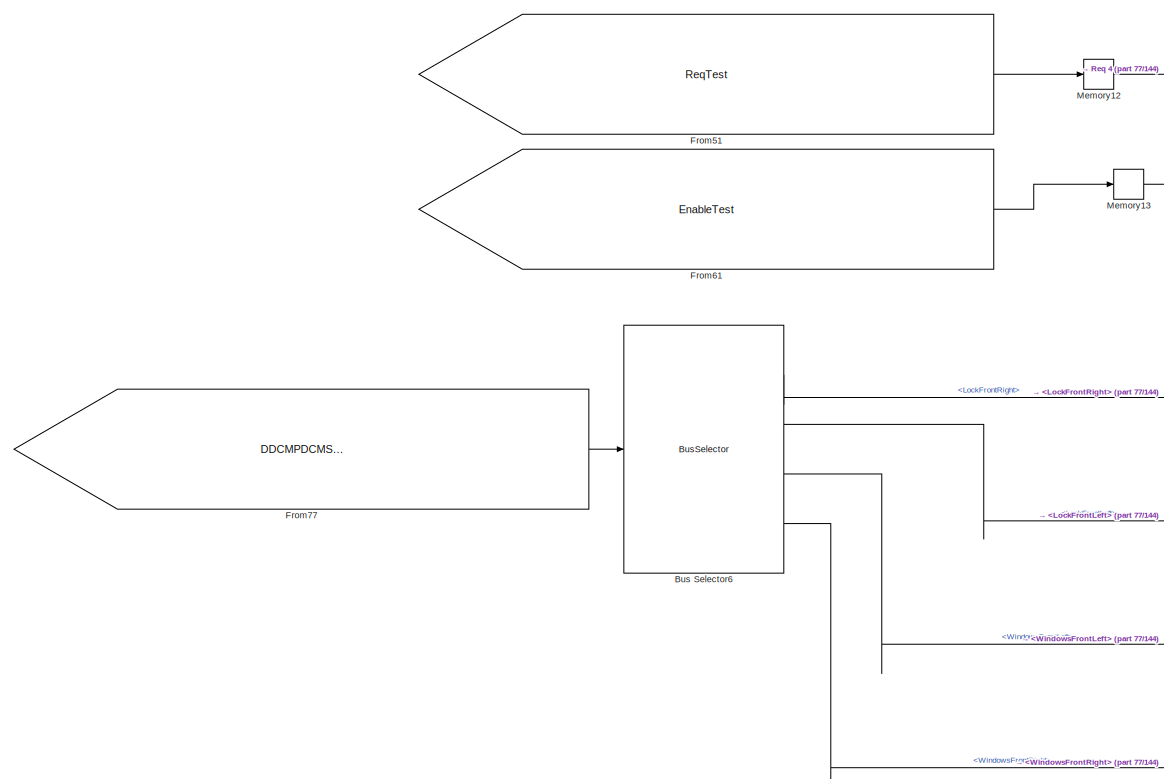
[diagram: root canvas - part 76/144, central region]
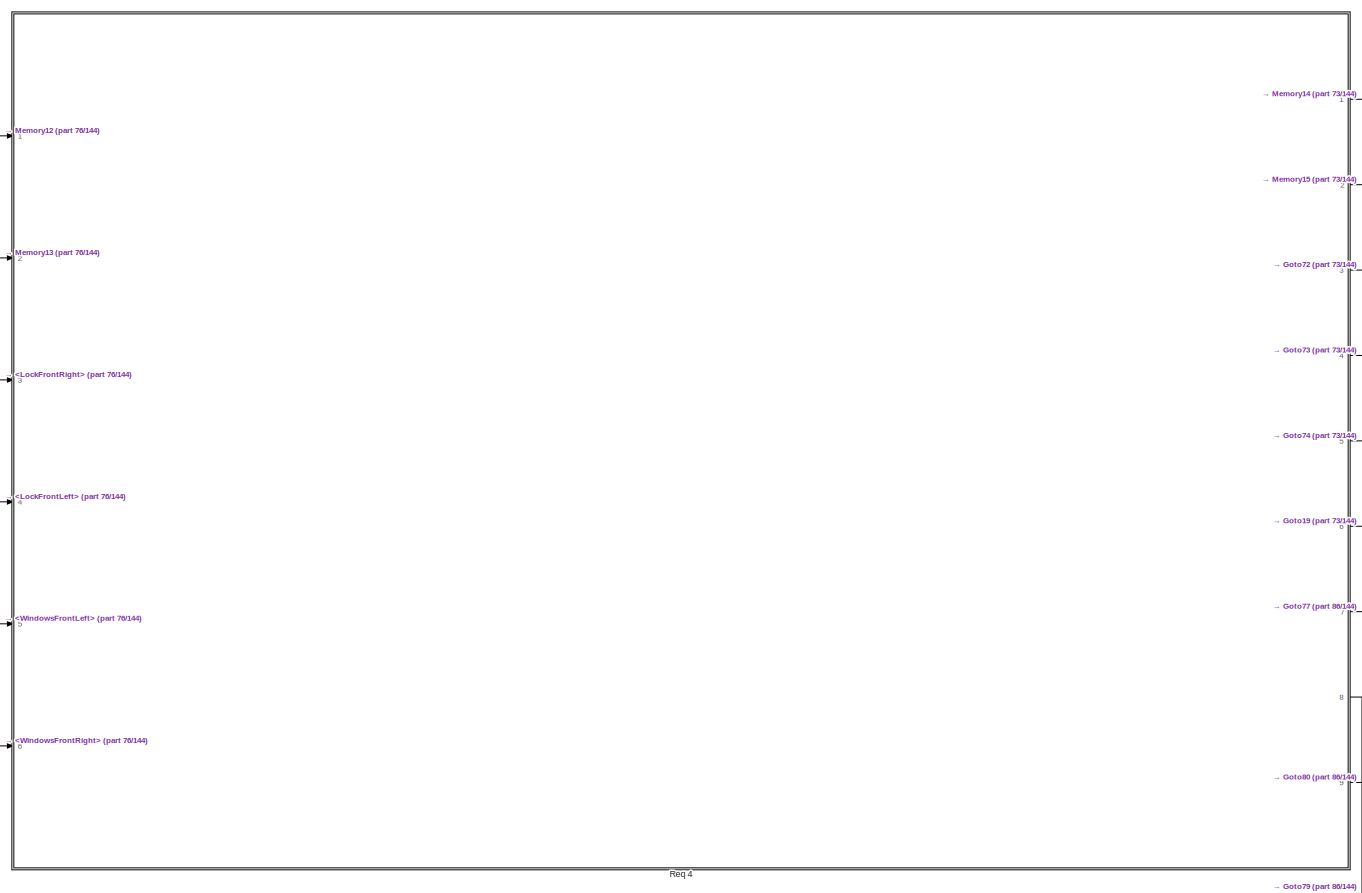
[diagram: root canvas - part 77/144, middle right region]
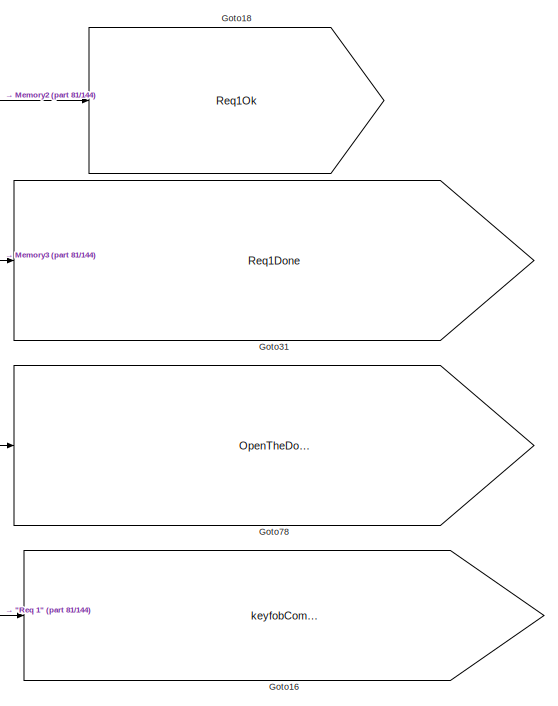
[diagram: root canvas - part 78/144, middle left region]
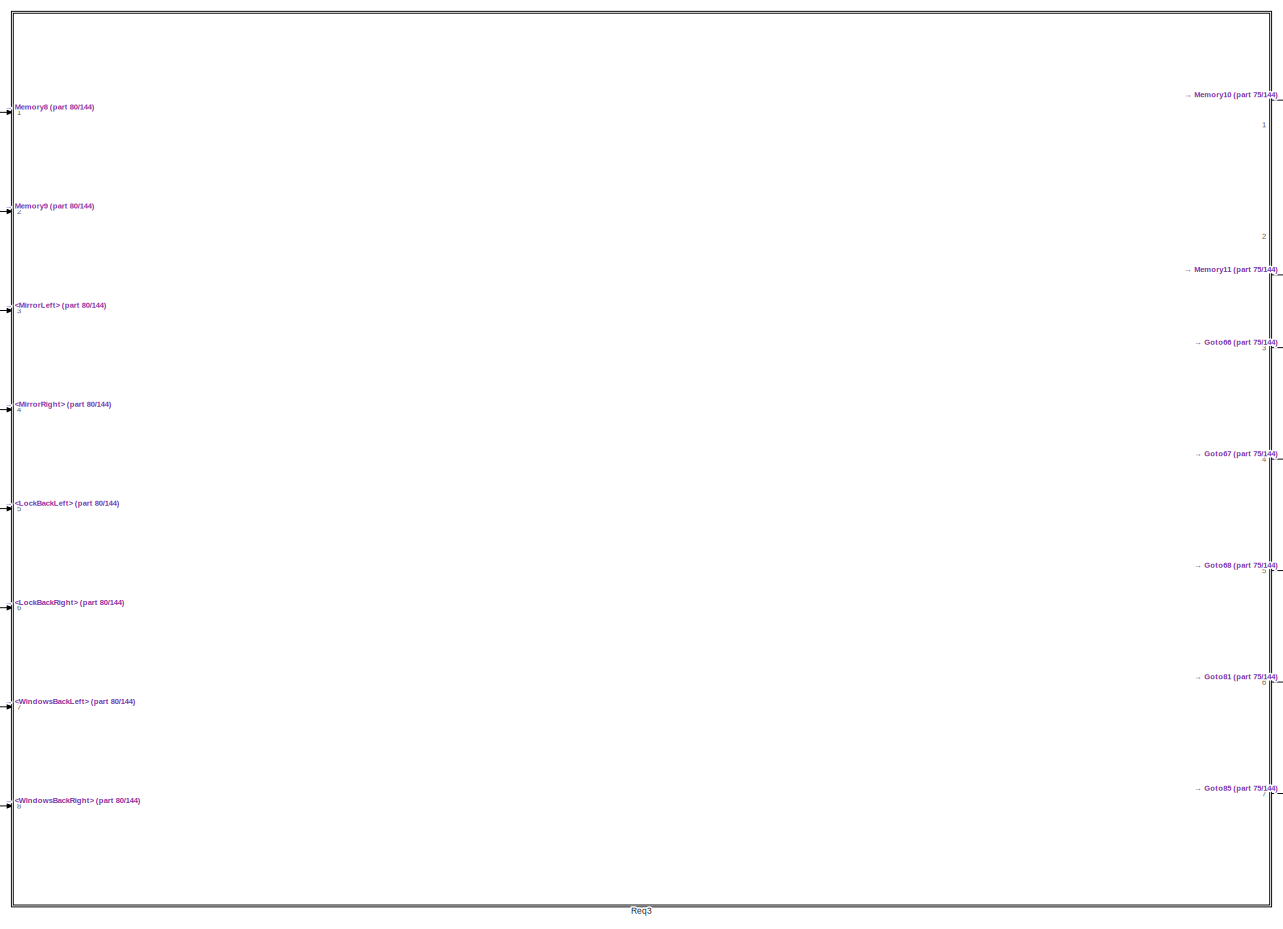
[diagram: root canvas - part 79/144, central region]
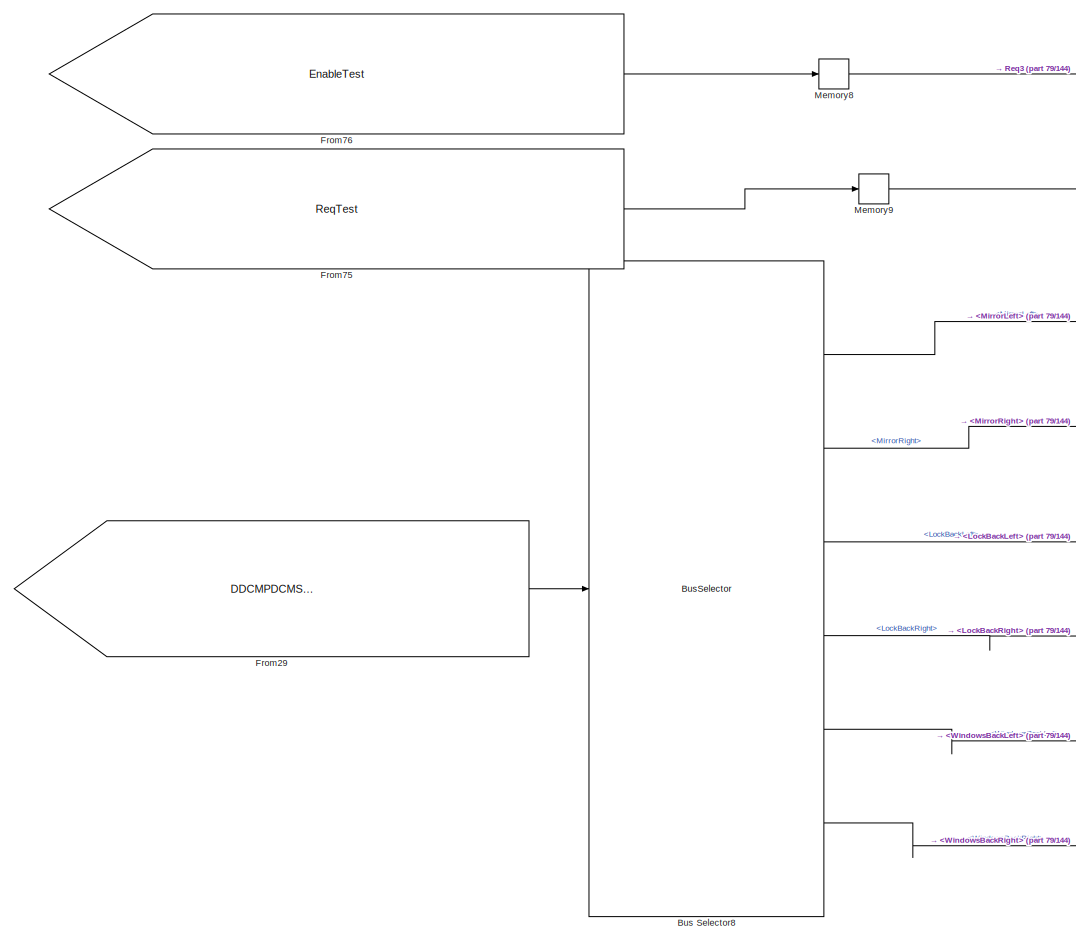
[diagram: root canvas - part 80/144, central region]
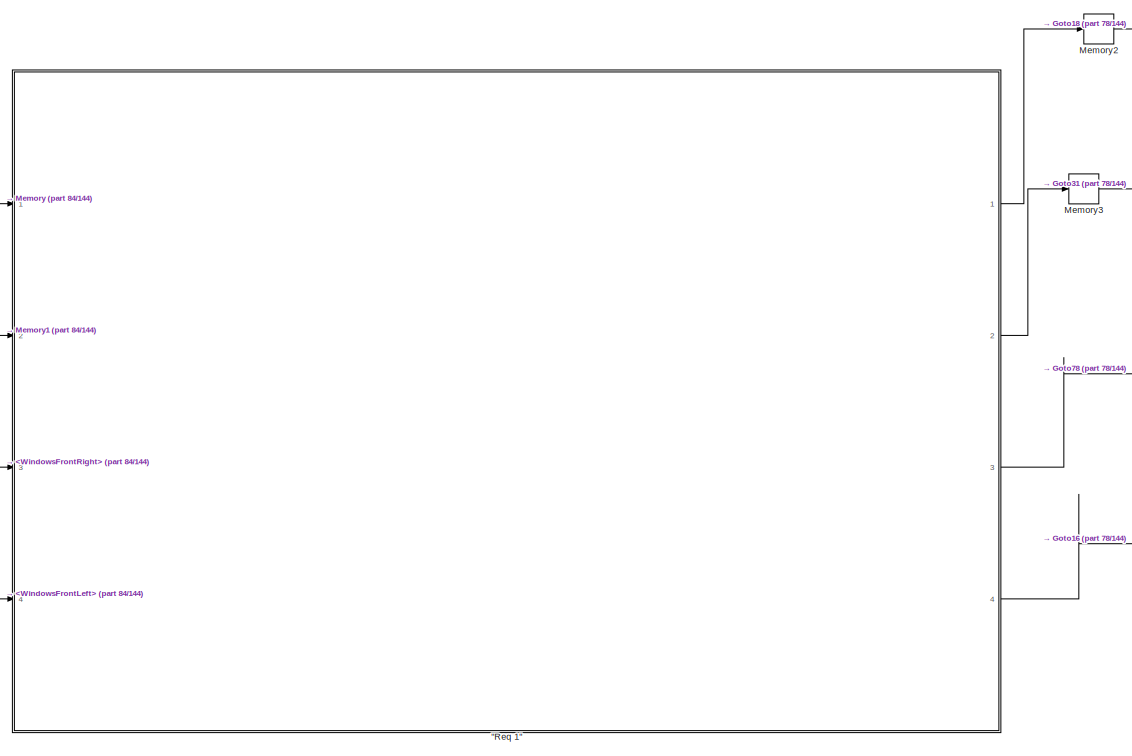
[diagram: root canvas - part 81/144, middle left region]
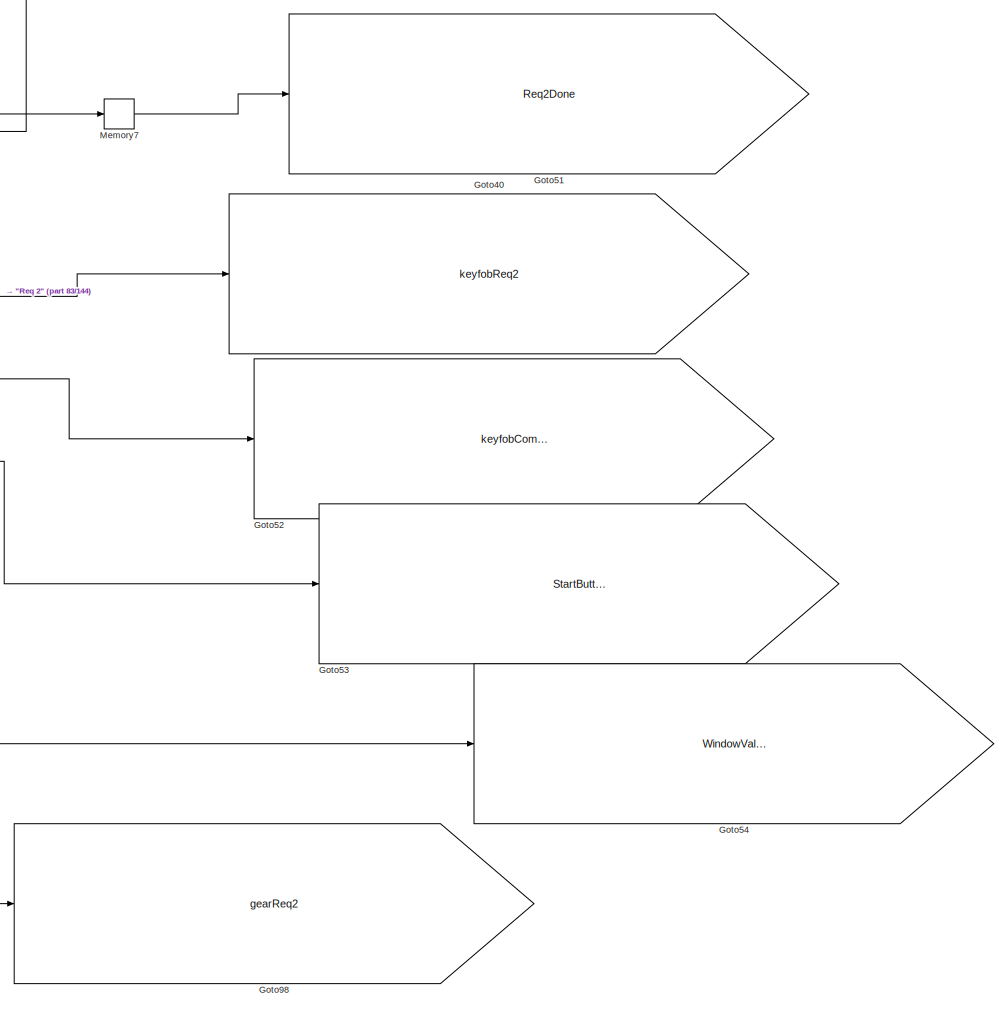
[diagram: root canvas - part 82/144, central region]
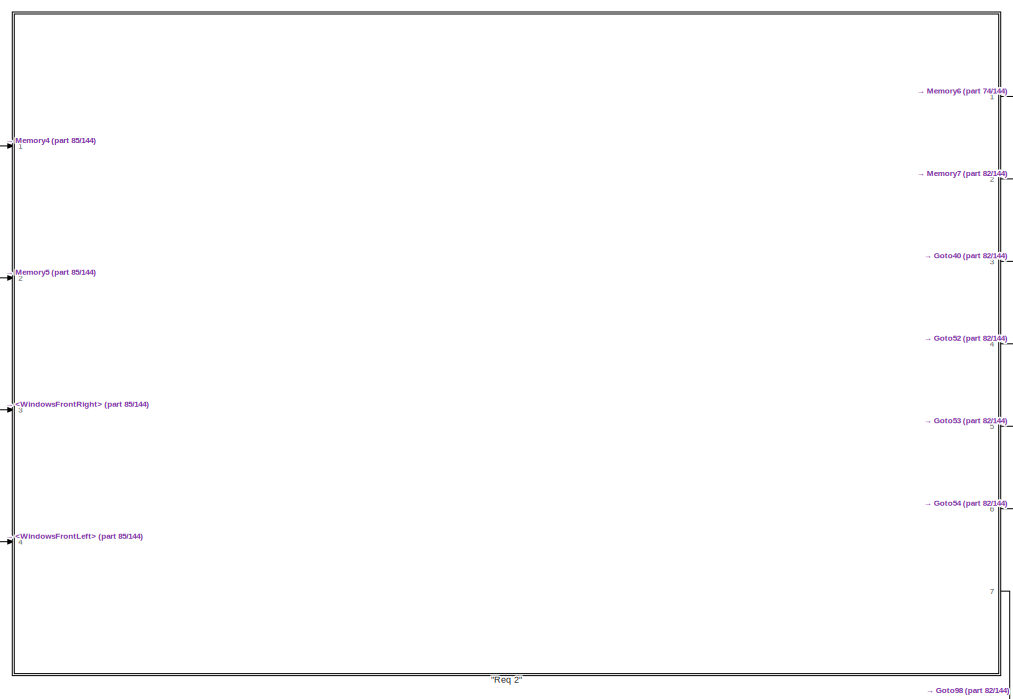
[diagram: root canvas - part 83/144, middle left region]
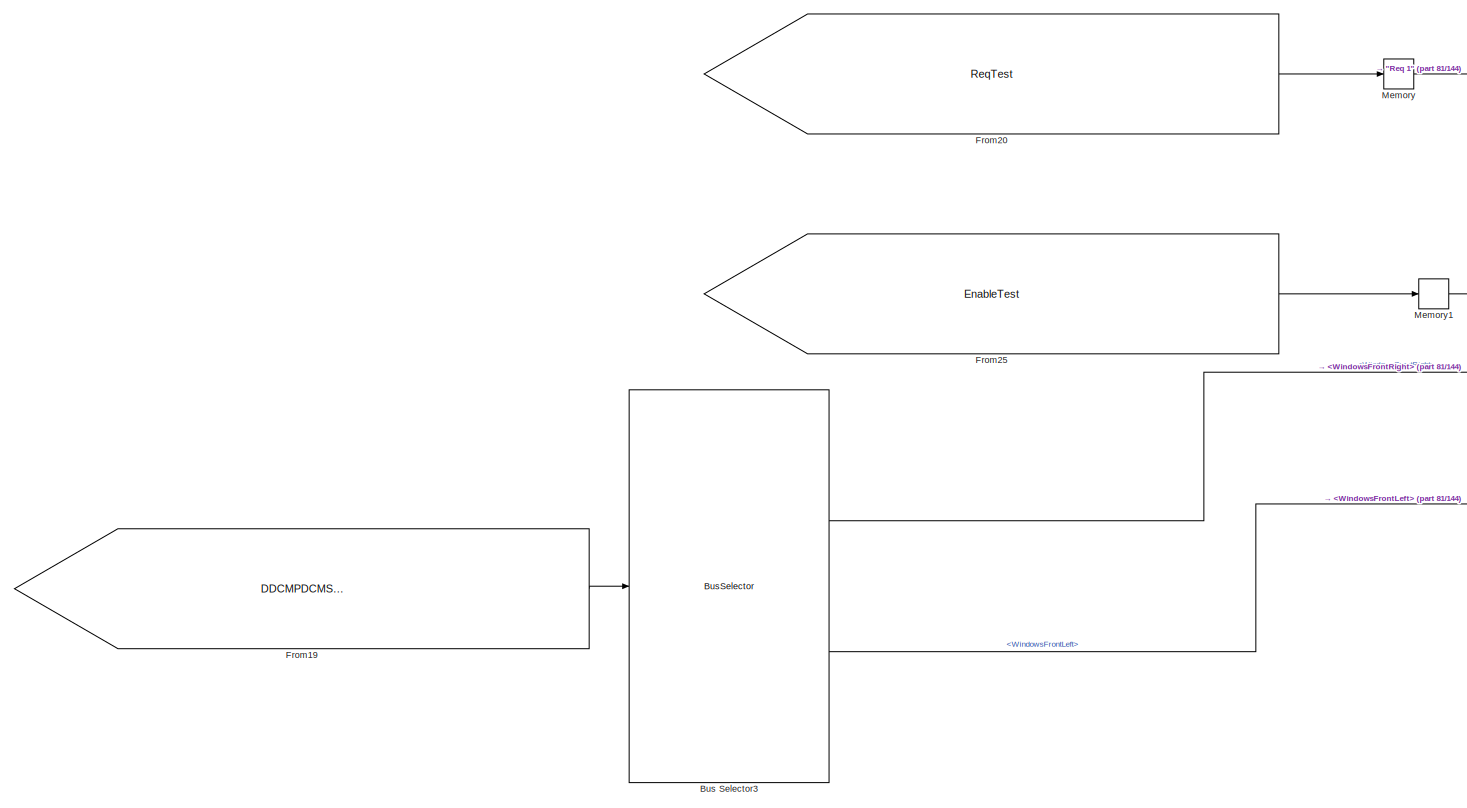
[diagram: root canvas - part 84/144, middle left region]
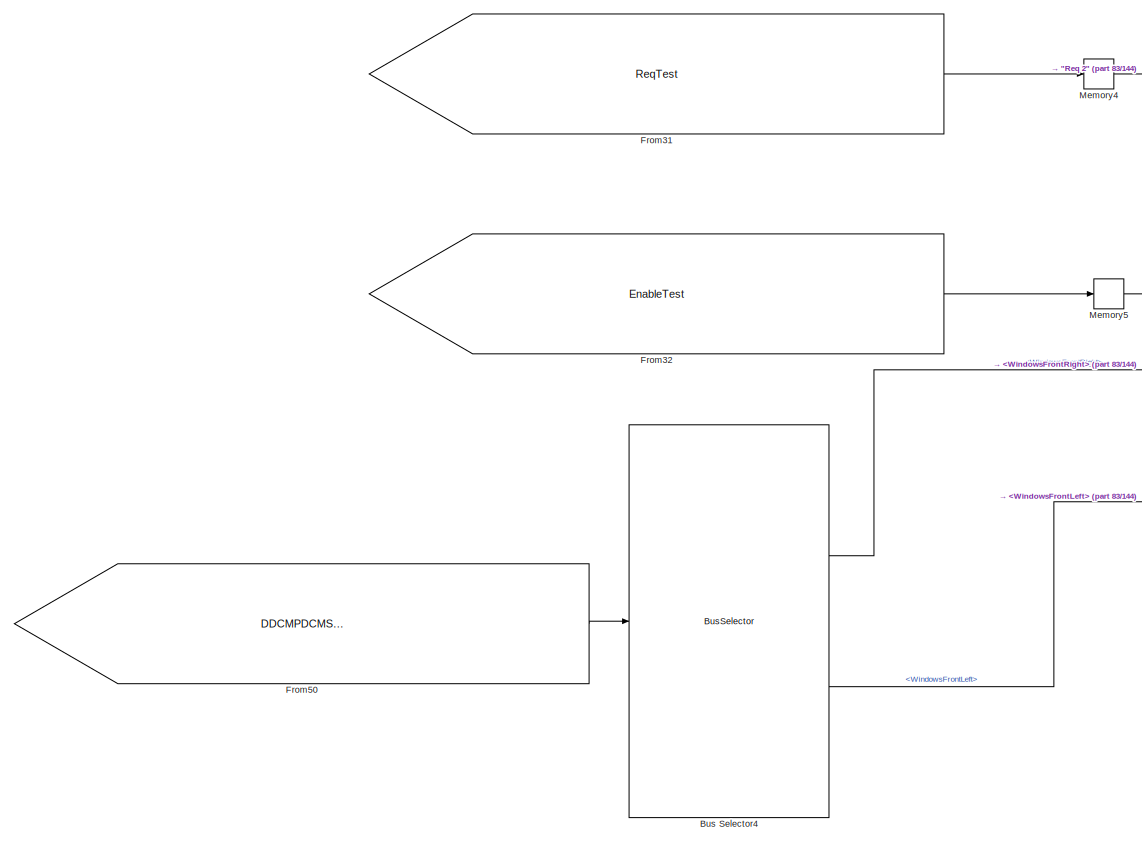
[diagram: root canvas - part 85/144, middle left region]
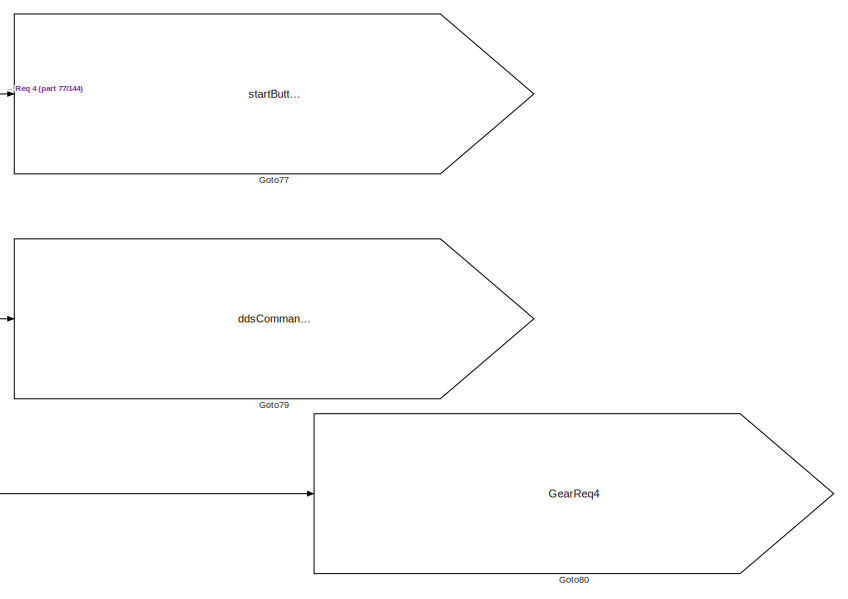
[diagram: root canvas - part 86/144, middle right region]
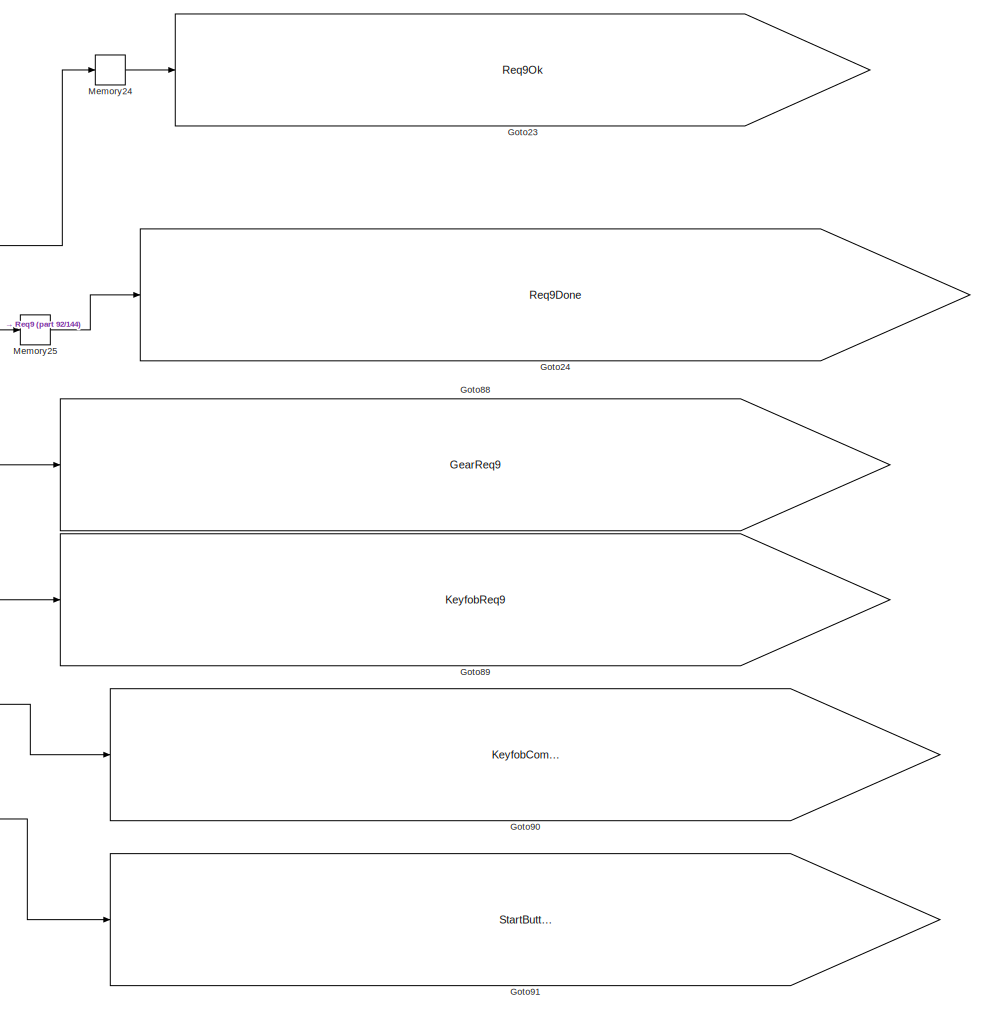
[diagram: root canvas - part 87/144, bottom center region]
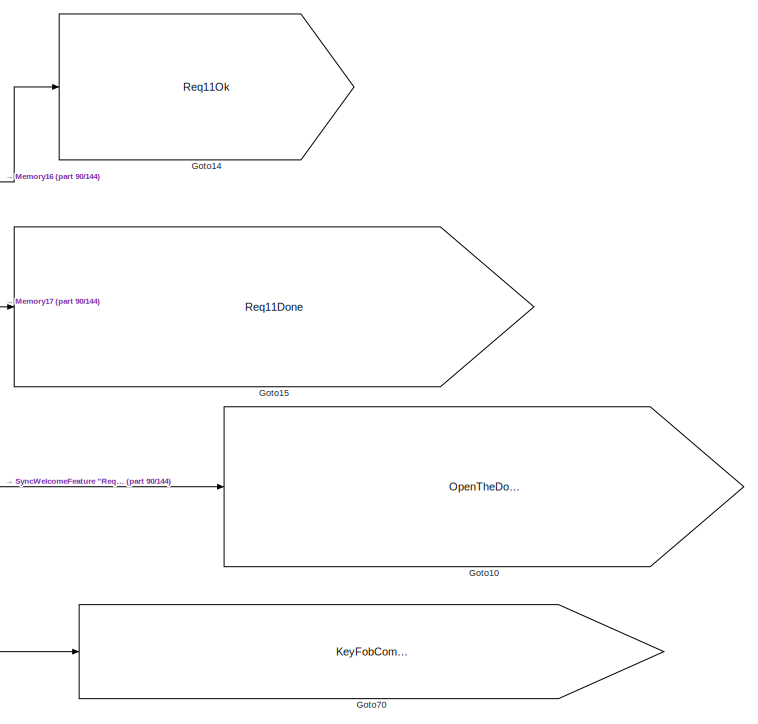
[diagram: root canvas - part 88/144, middle right region]
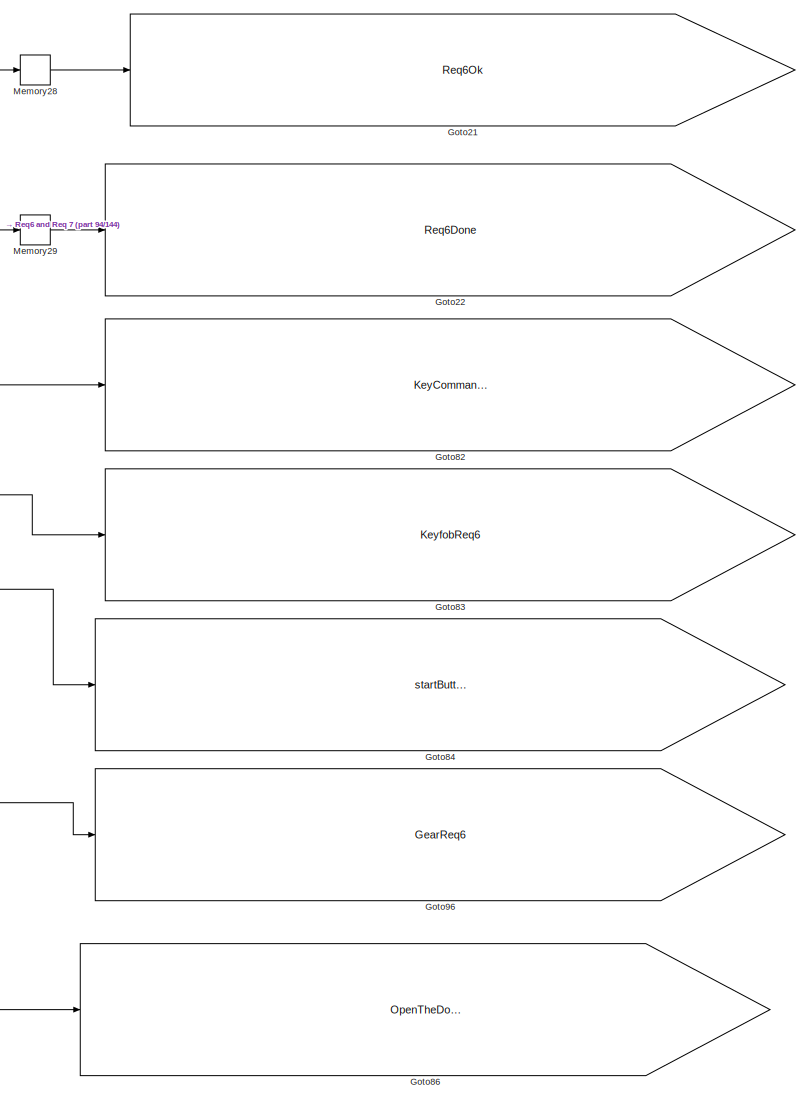
[diagram: root canvas - part 89/144, bottom left region]
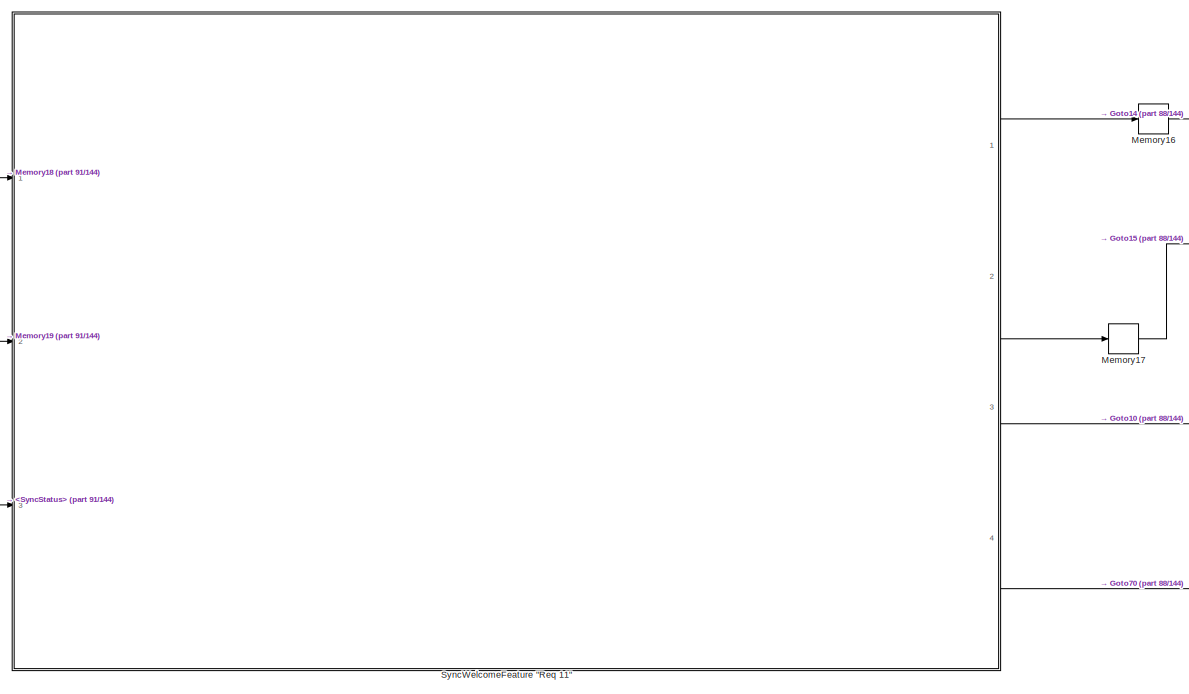
[diagram: root canvas - part 90/144, middle right region]
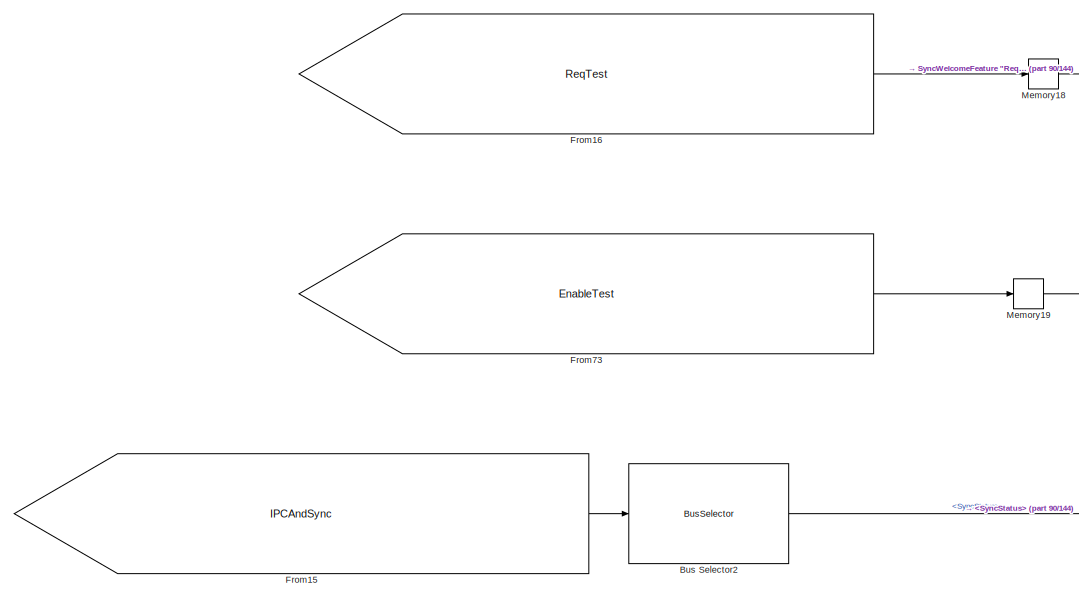
[diagram: root canvas - part 91/144, central region]
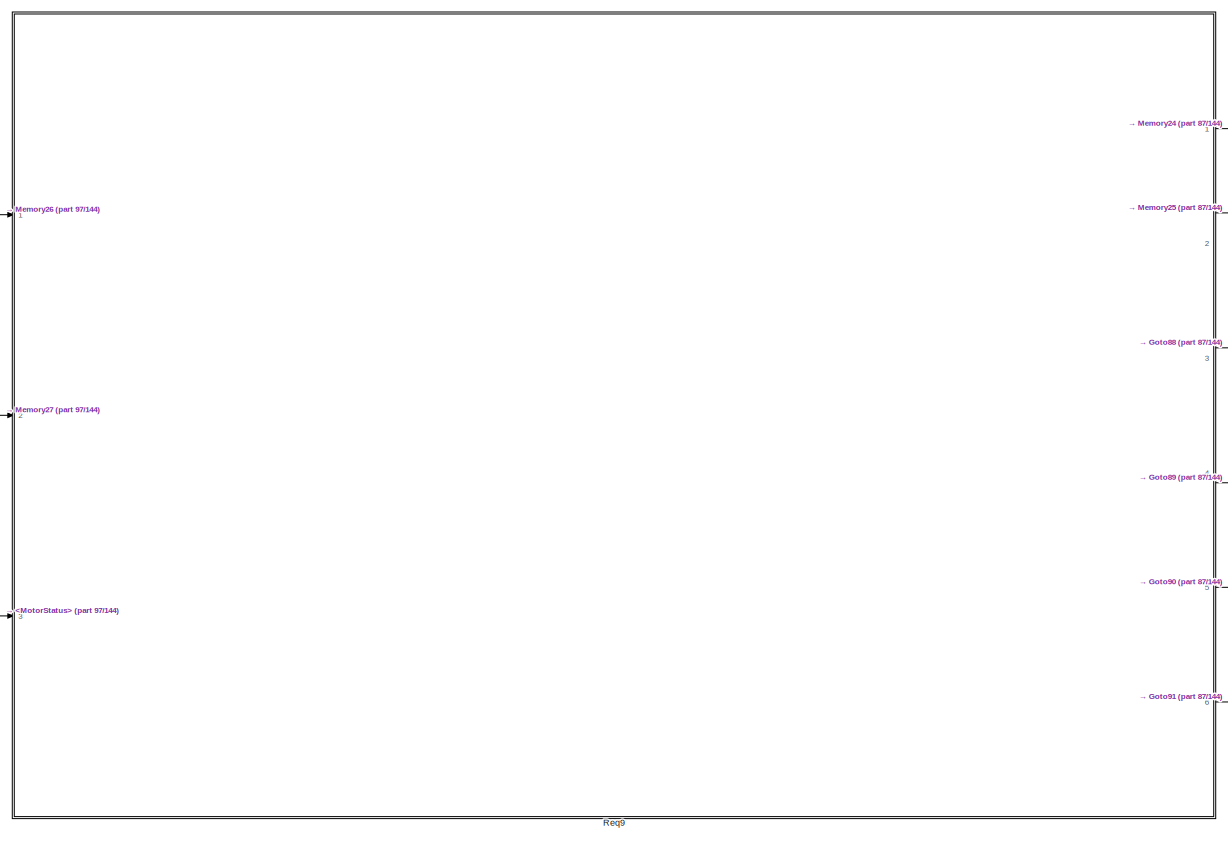
[diagram: root canvas - part 92/144, bottom left region]
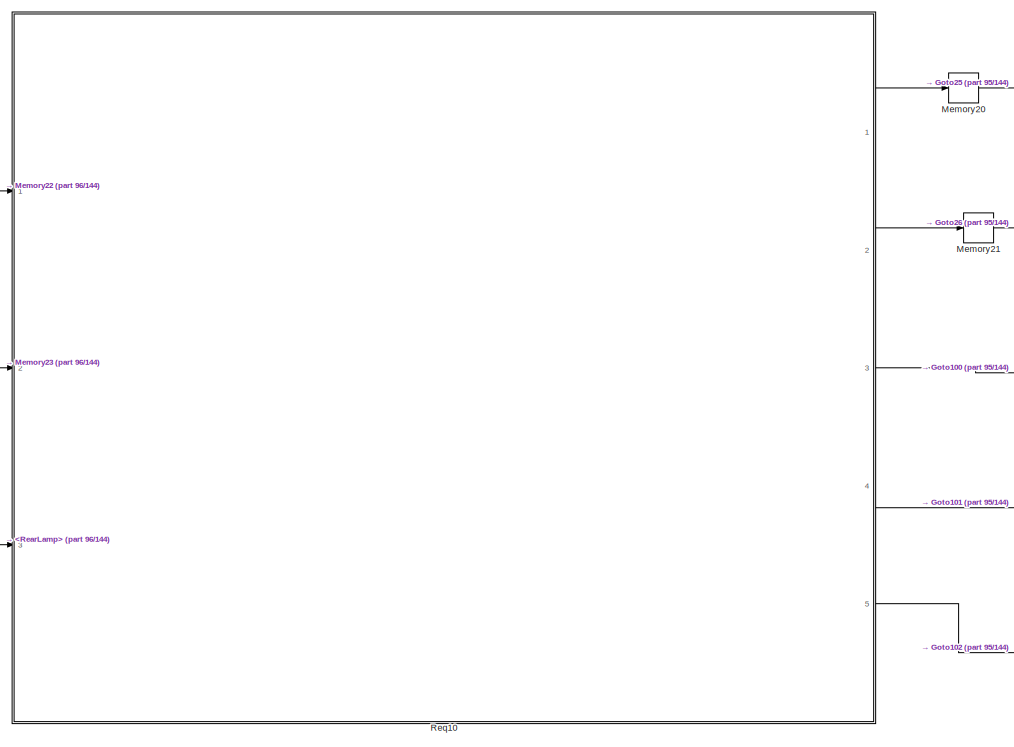
[diagram: root canvas - part 93/144, bottom center region]
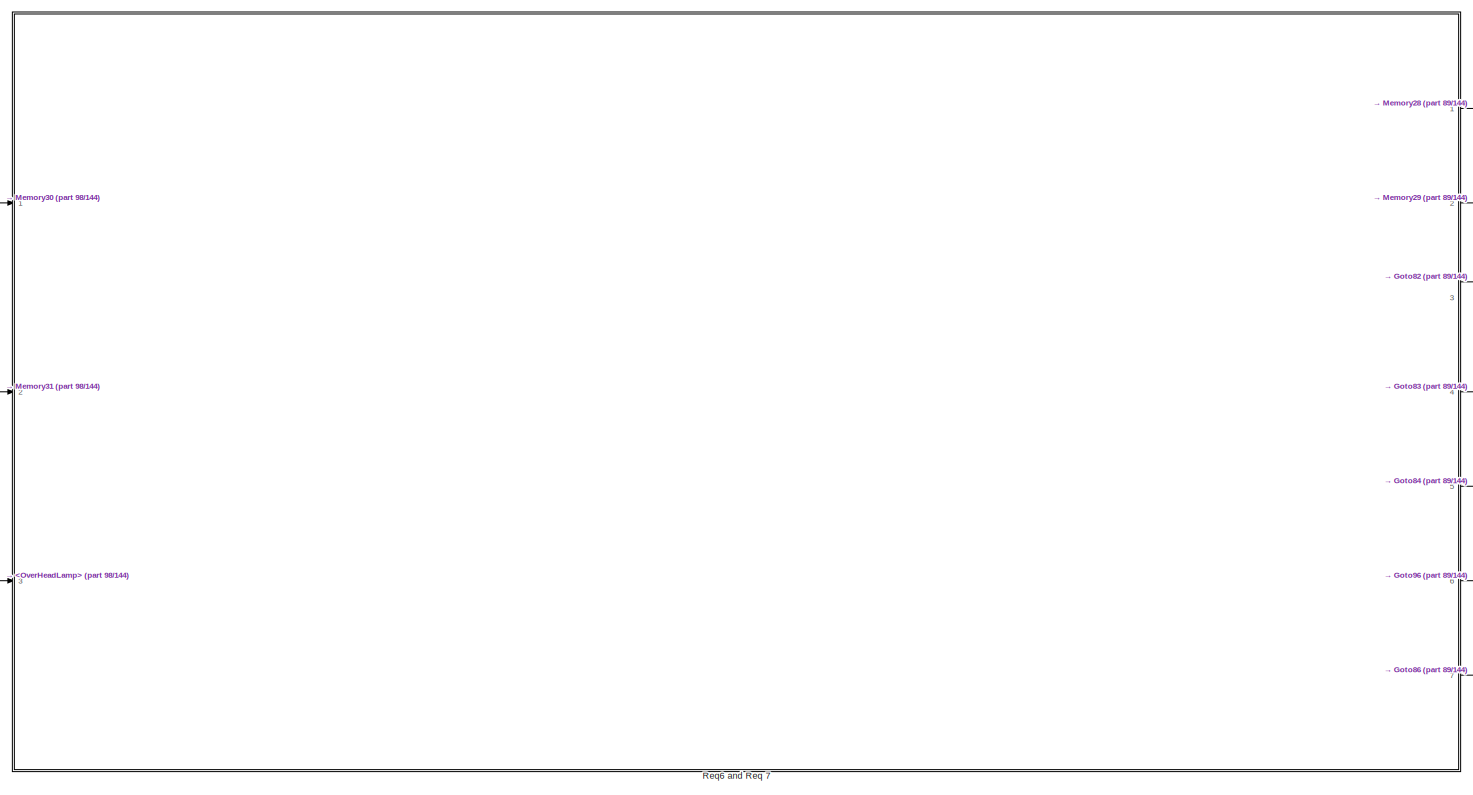
[diagram: root canvas - part 94/144, bottom left region]
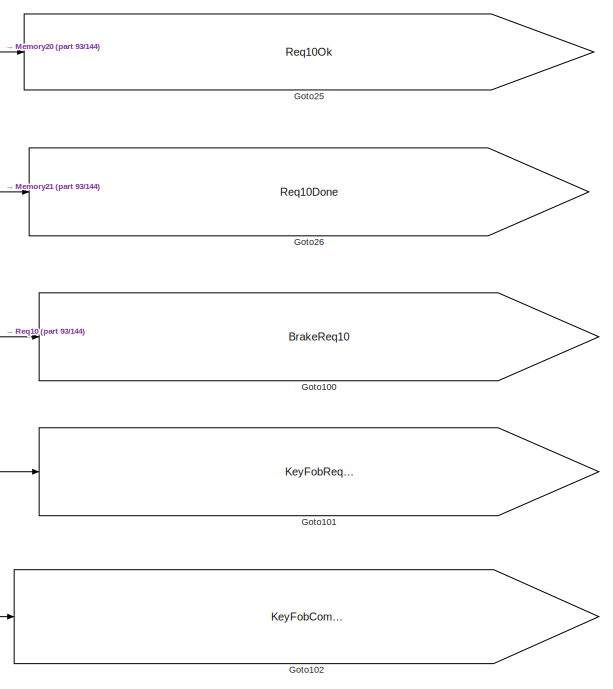
[diagram: root canvas - part 95/144, bottom center region]
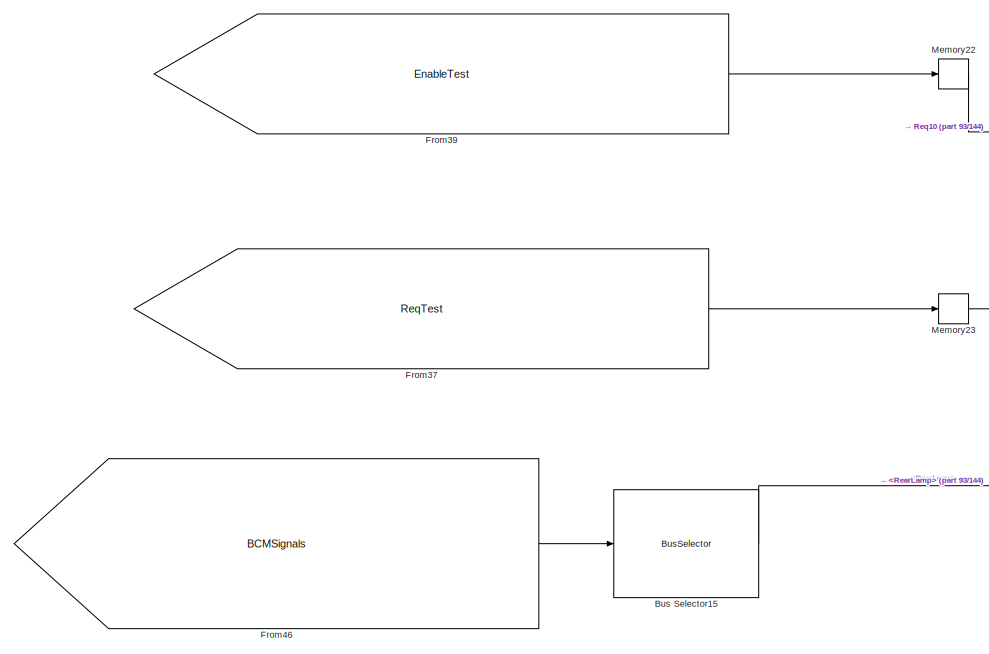
[diagram: root canvas - part 96/144, bottom center region]
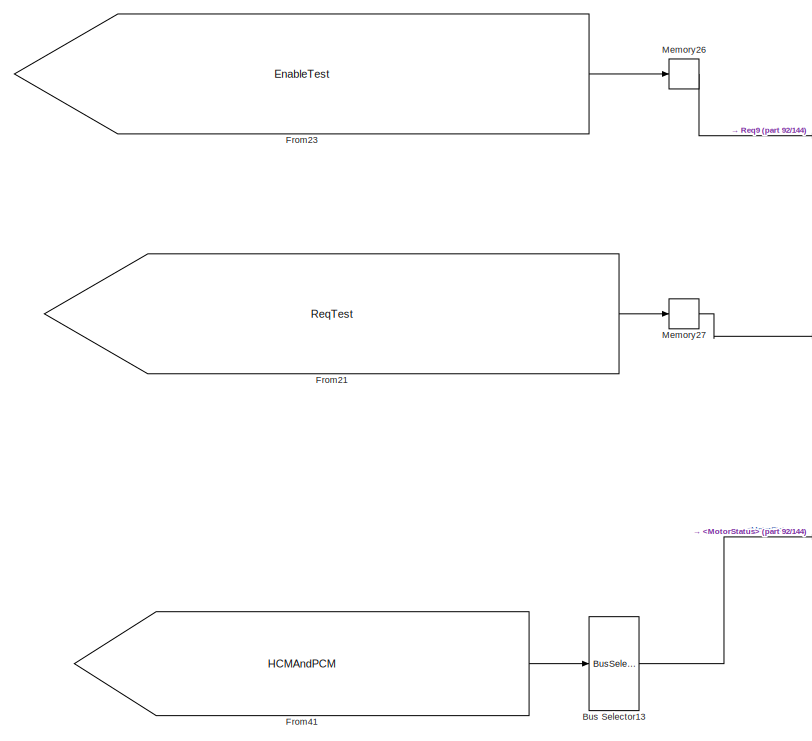
[diagram: root canvas - part 97/144, bottom left region]
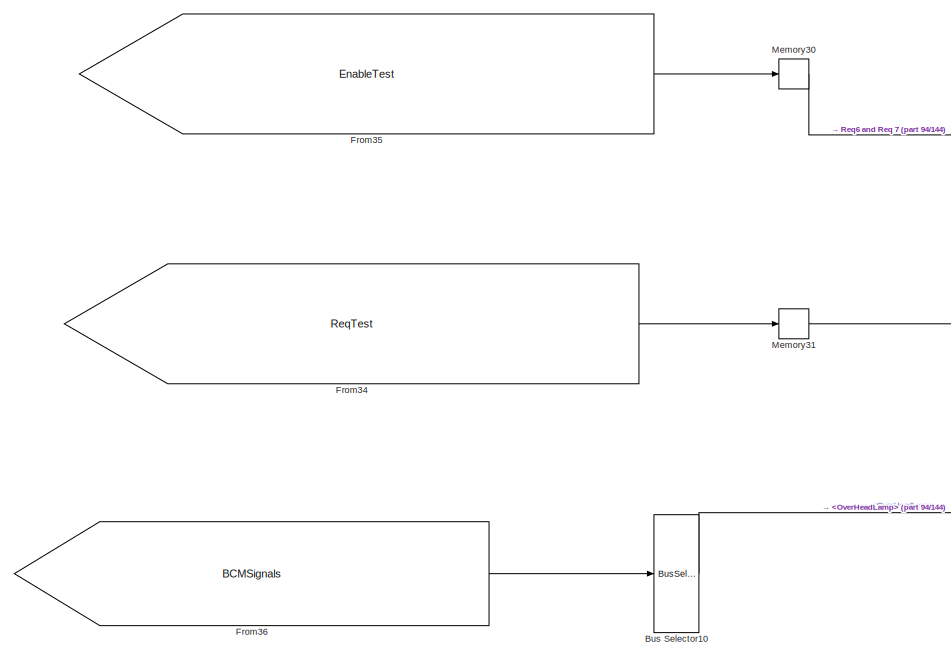
[diagram: root canvas - part 98/144, bottom left region]
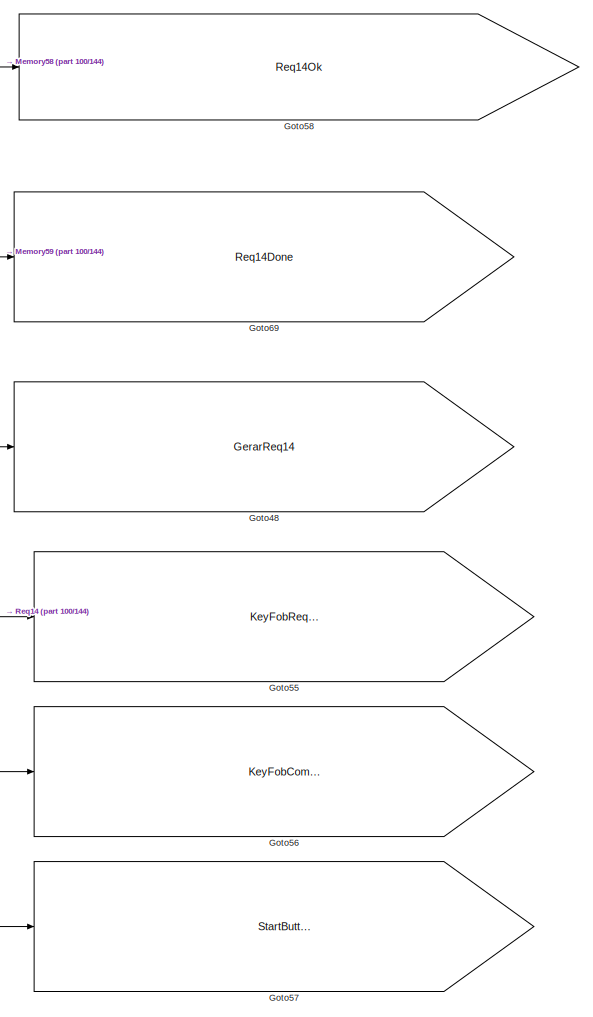
[diagram: root canvas - part 99/144, bottom center region]
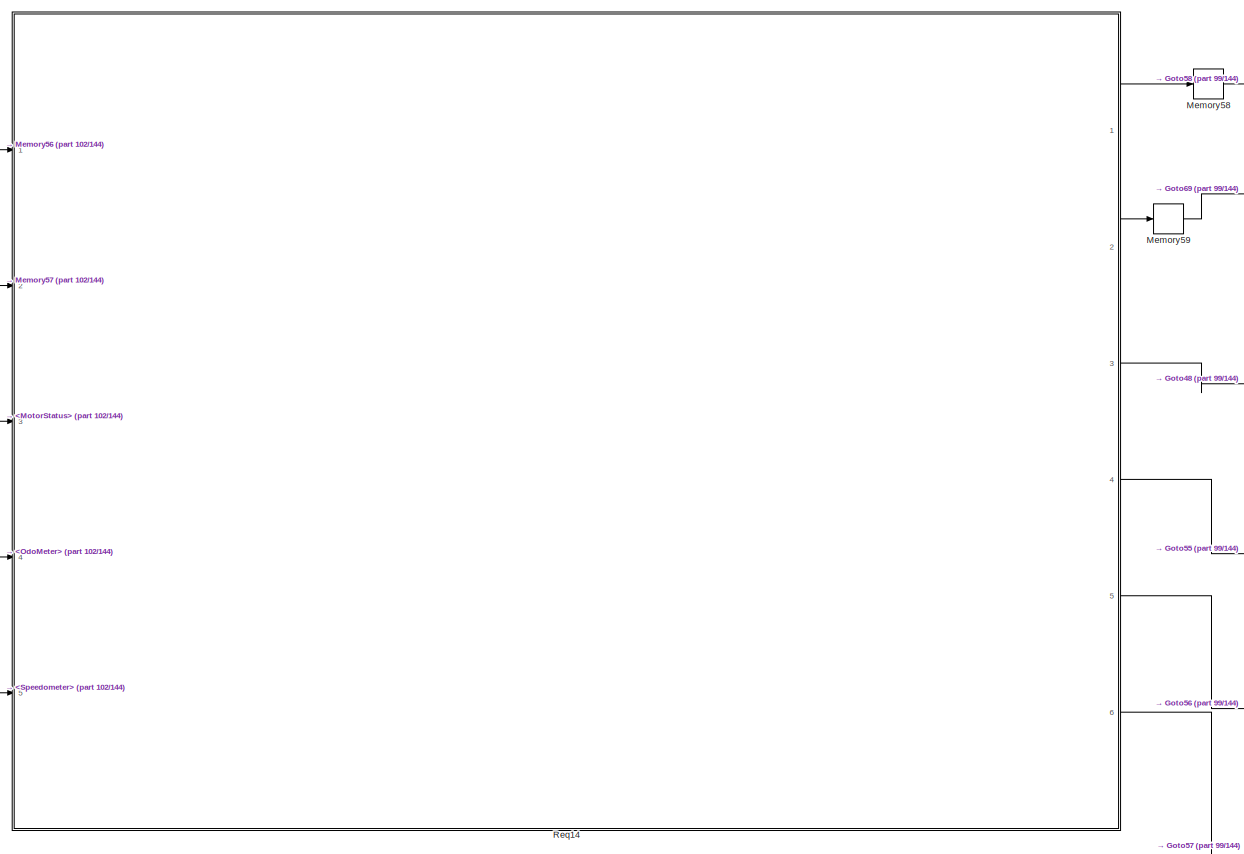
[diagram: root canvas - part 100/144, bottom center region]
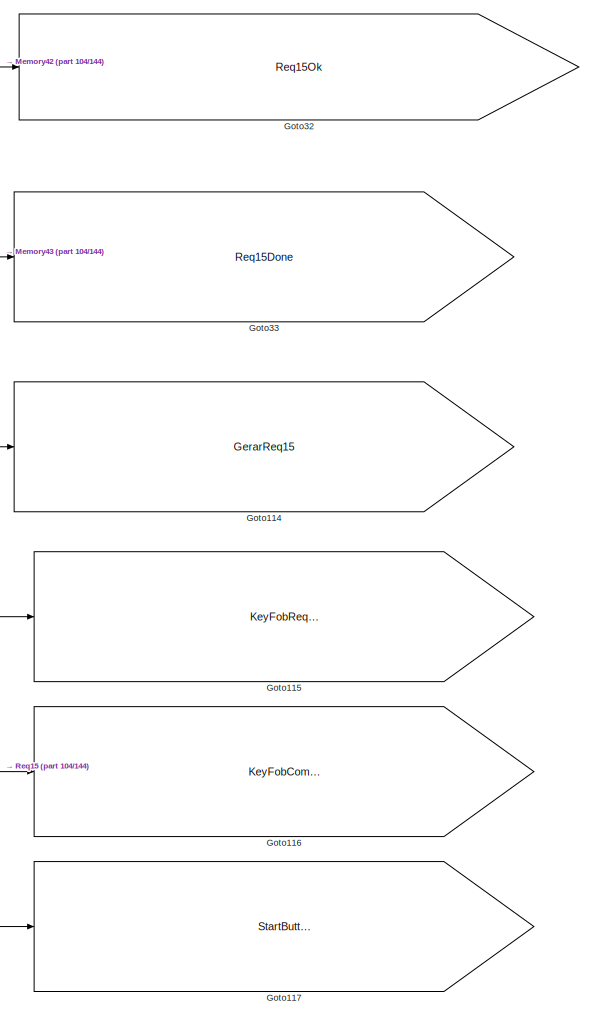
[diagram: root canvas - part 101/144, bottom right region]
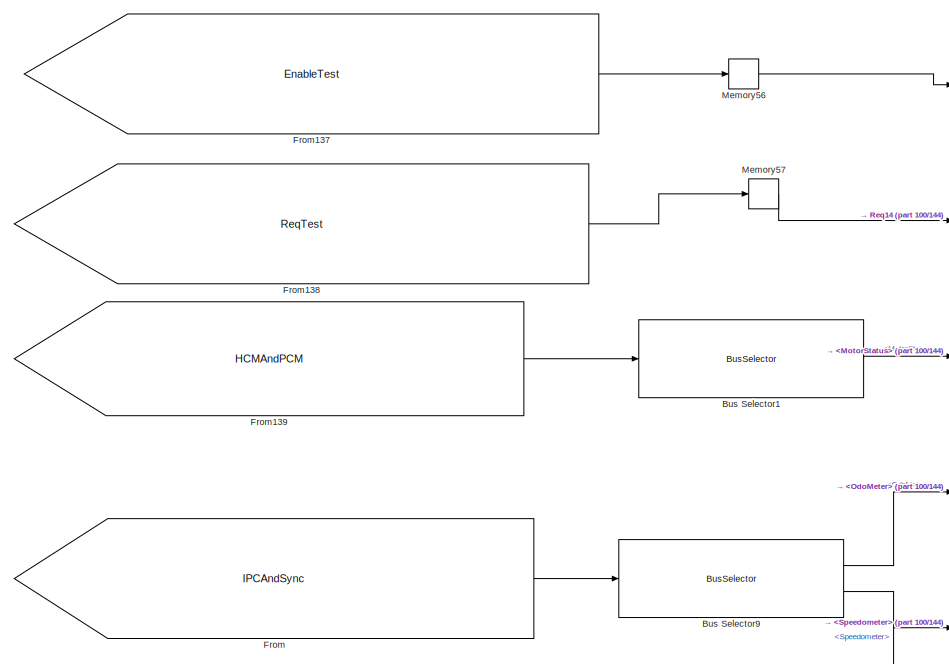
[diagram: root canvas - part 102/144, bottom center region]
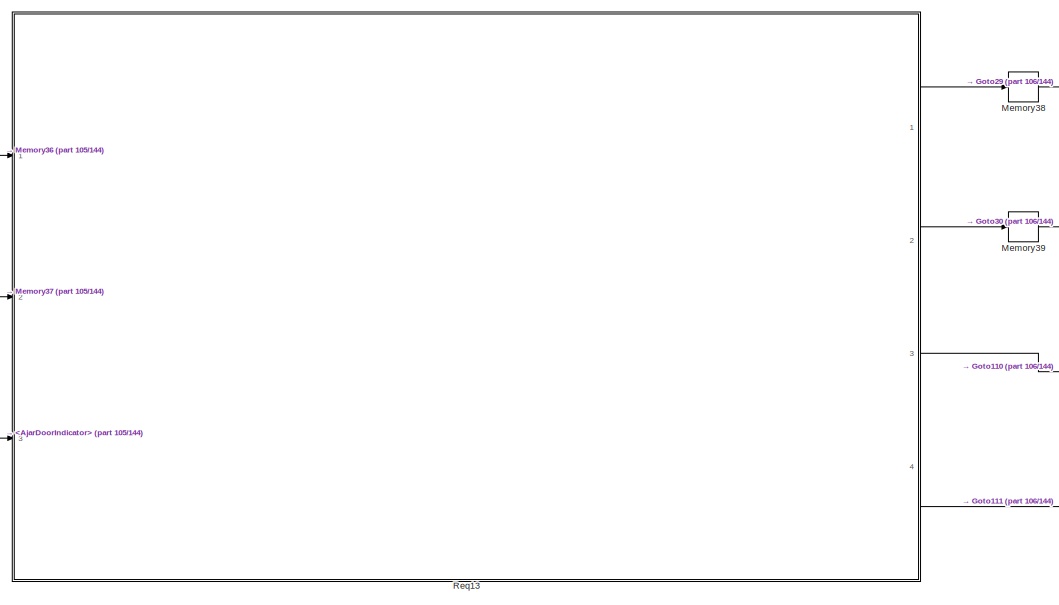
[diagram: root canvas - part 103/144, bottom left region]
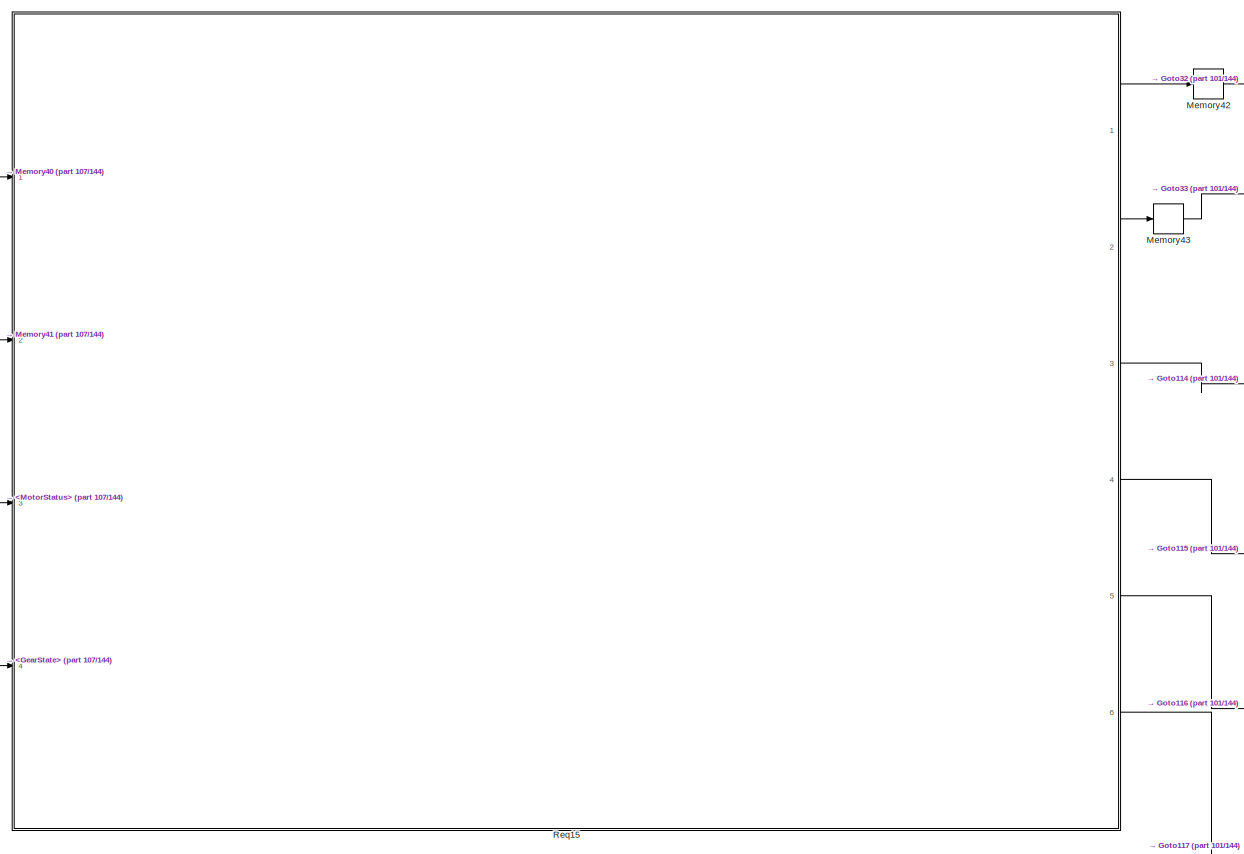
[diagram: root canvas - part 104/144, bottom right region]
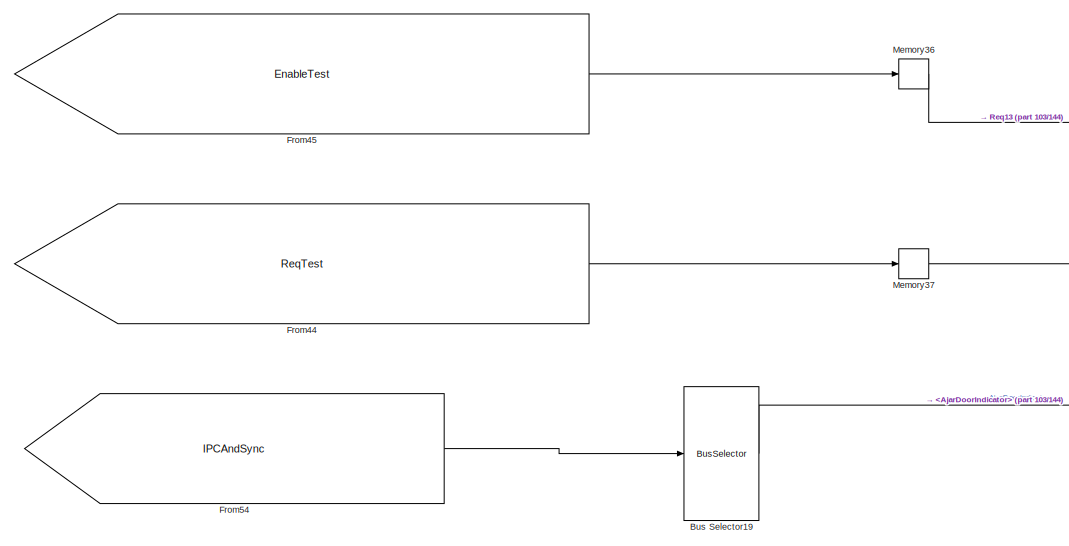
[diagram: root canvas - part 105/144, bottom left region]
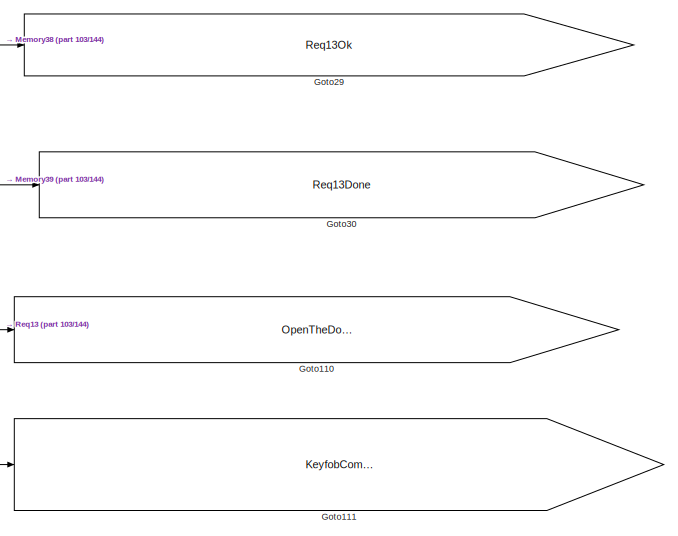
[diagram: root canvas - part 106/144, bottom center region]
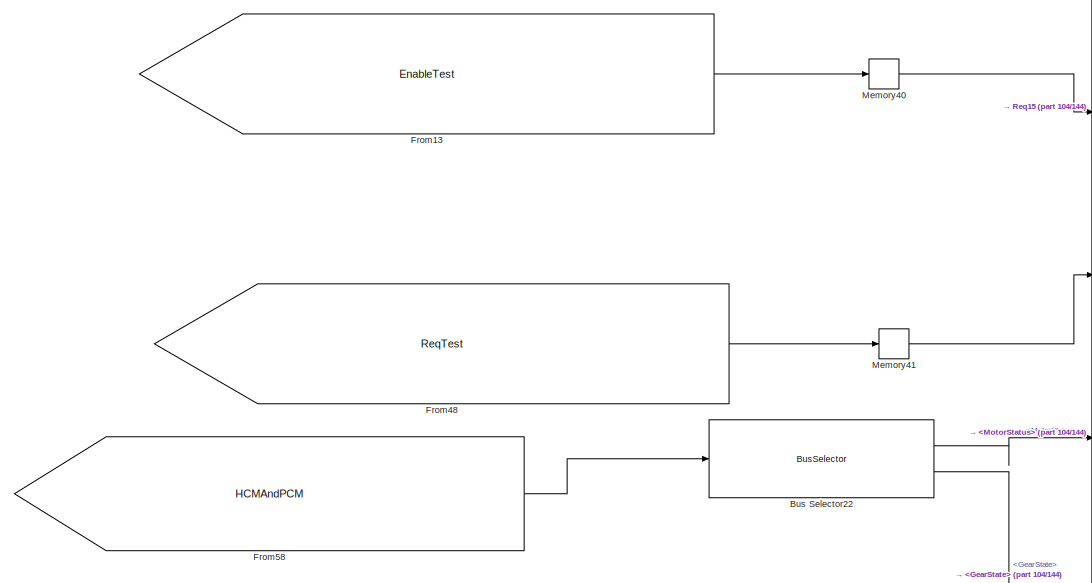
[diagram: root canvas - part 107/144, bottom center region]
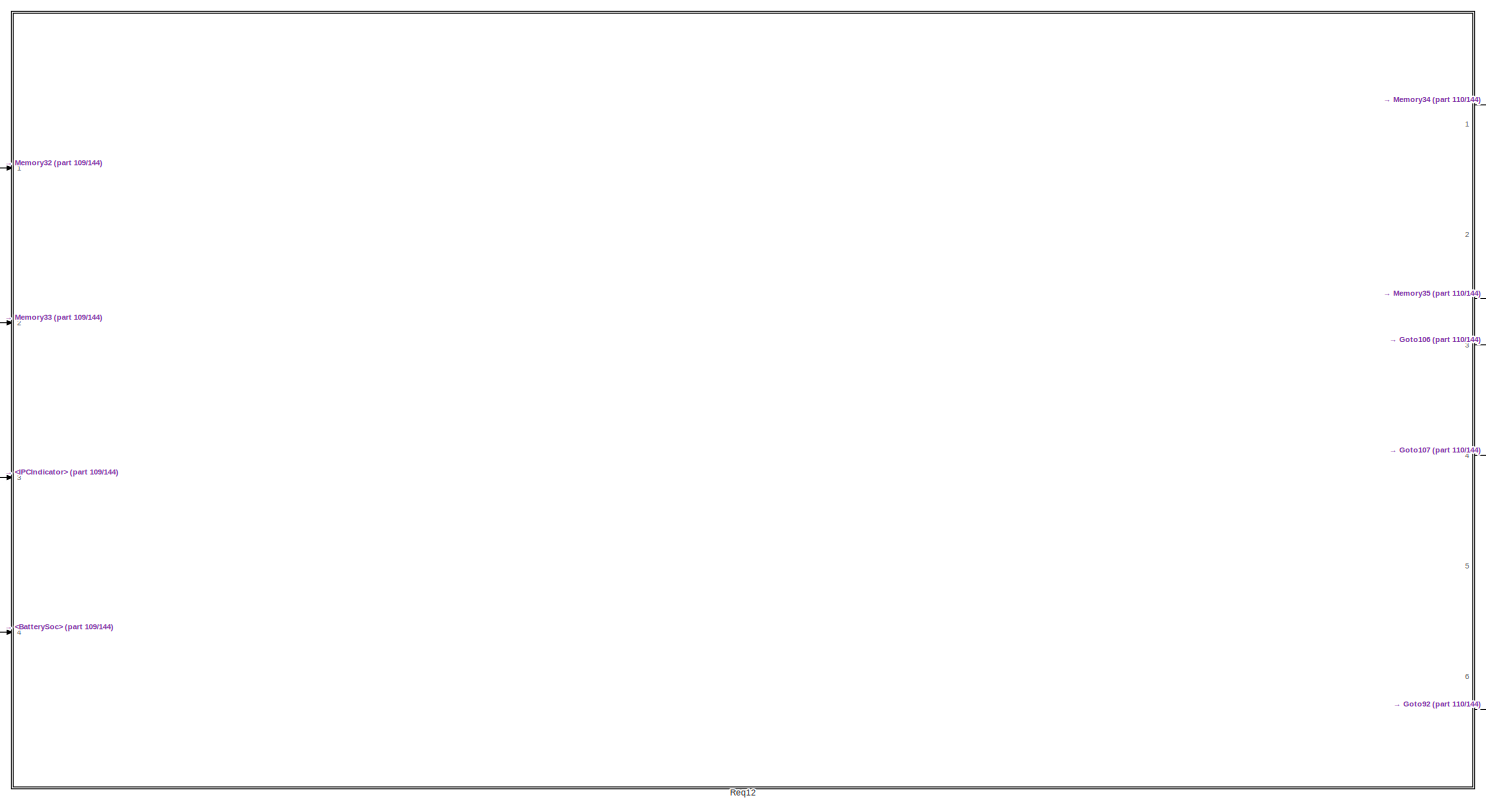
[diagram: root canvas - part 108/144, bottom left region]
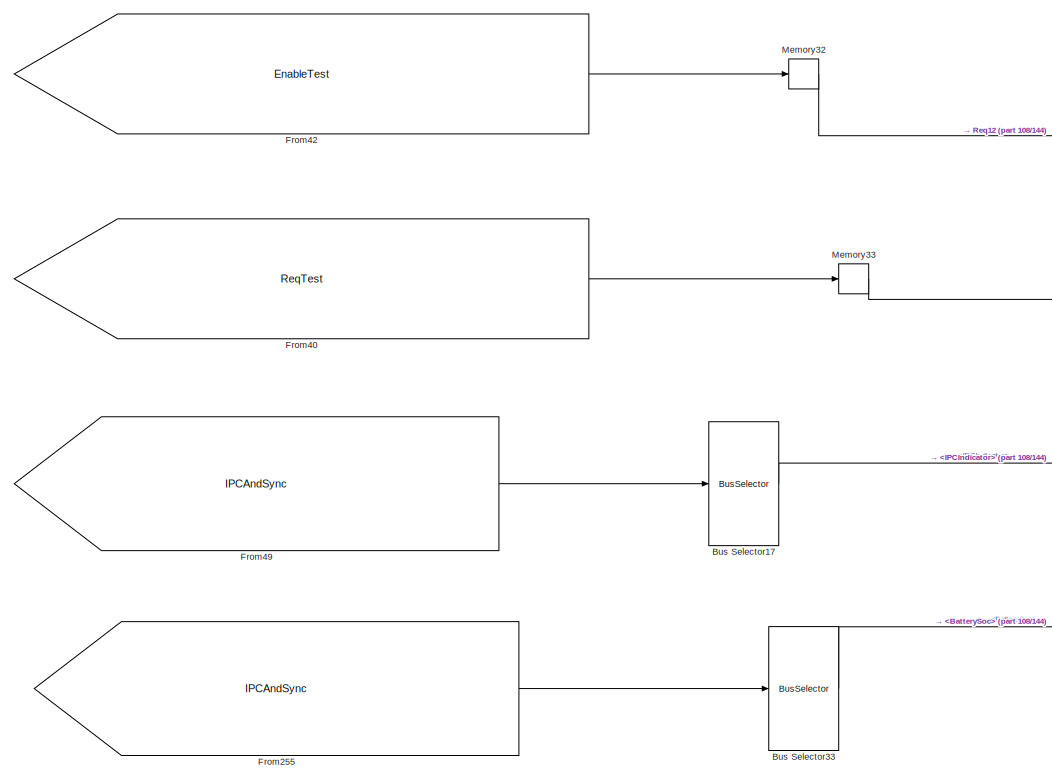
[diagram: root canvas - part 109/144, bottom left region]
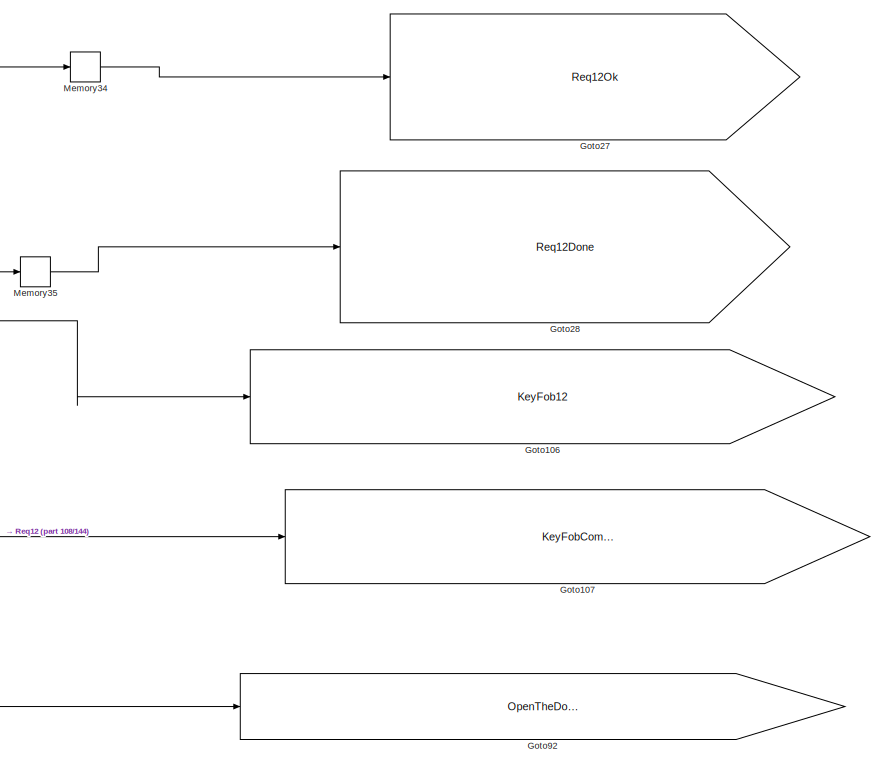
[diagram: root canvas - part 110/144, bottom left region]
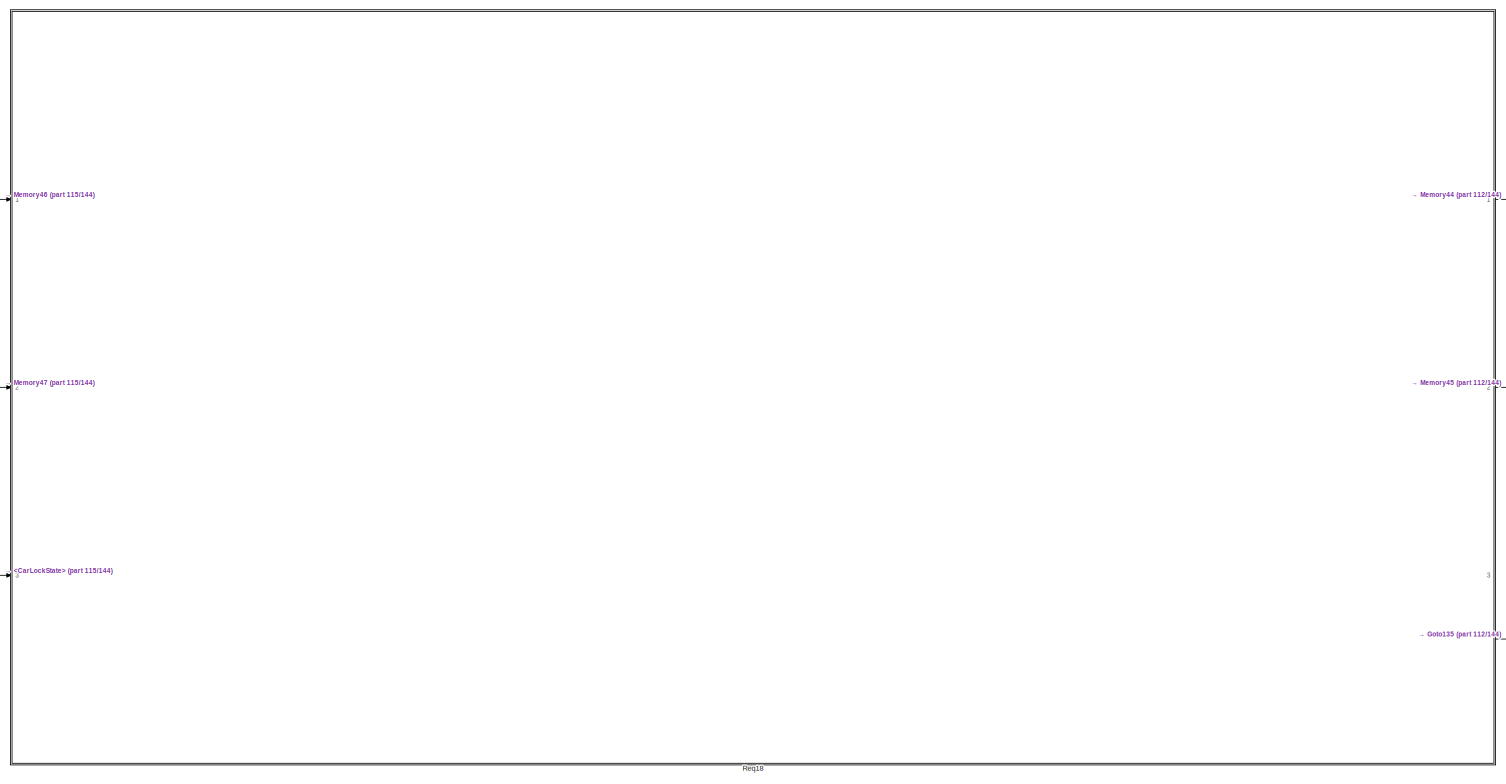
[diagram: root canvas - part 111/144, bottom center region]
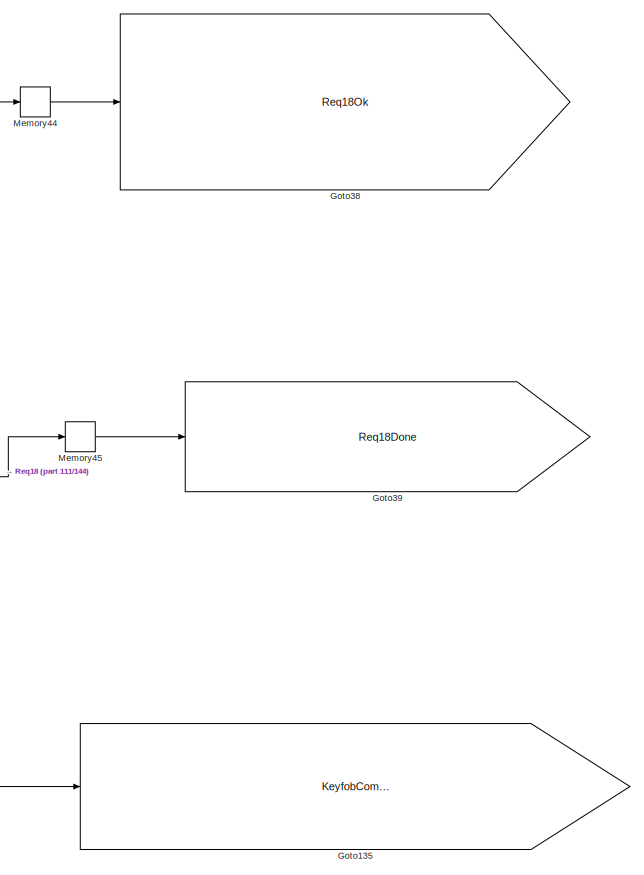
[diagram: root canvas - part 112/144, bottom center region]
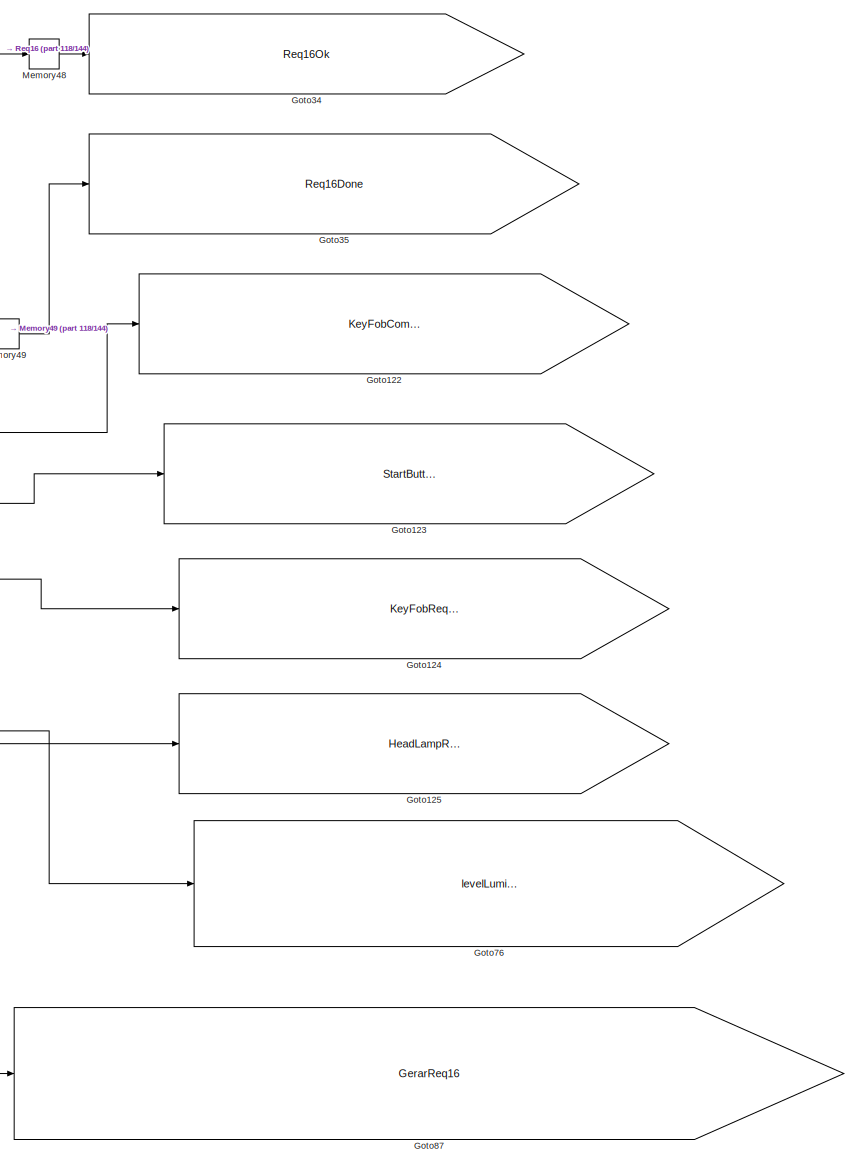
[diagram: root canvas - part 113/144, bottom left region]
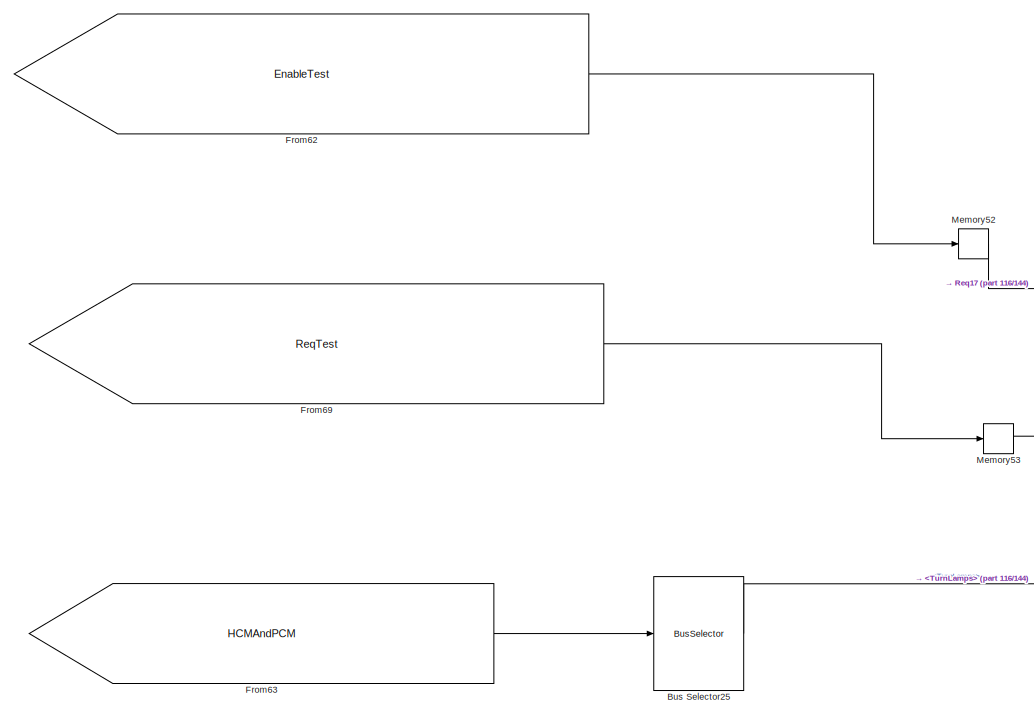
[diagram: root canvas - part 114/144, bottom left region]
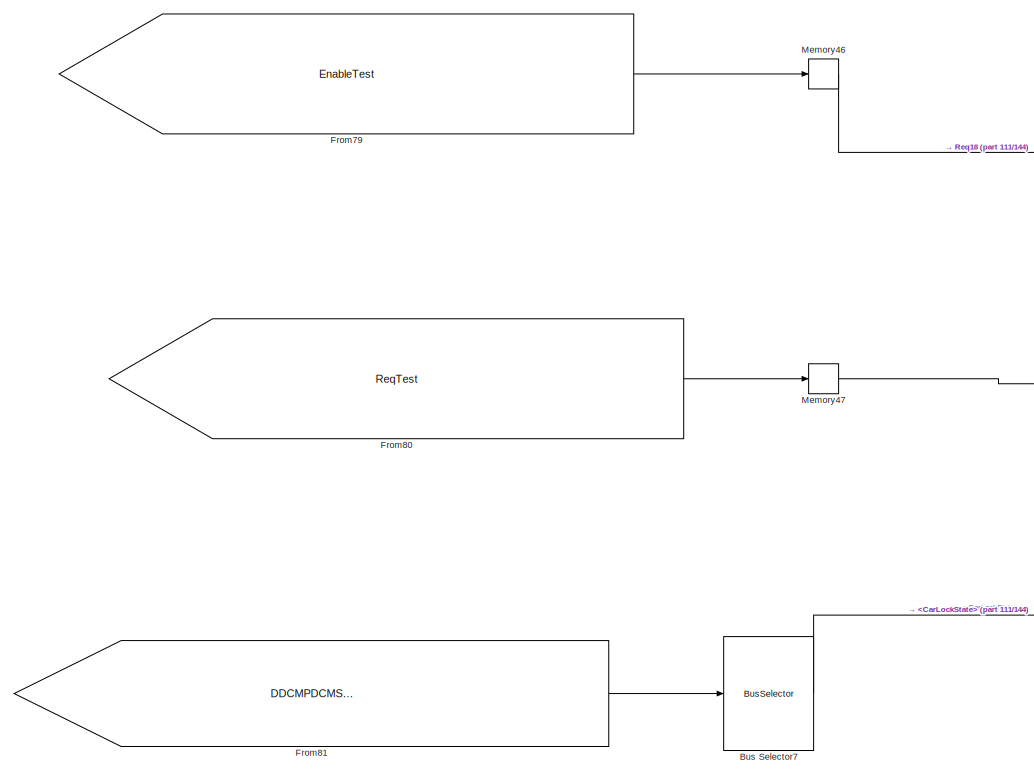
[diagram: root canvas - part 115/144, bottom center region]
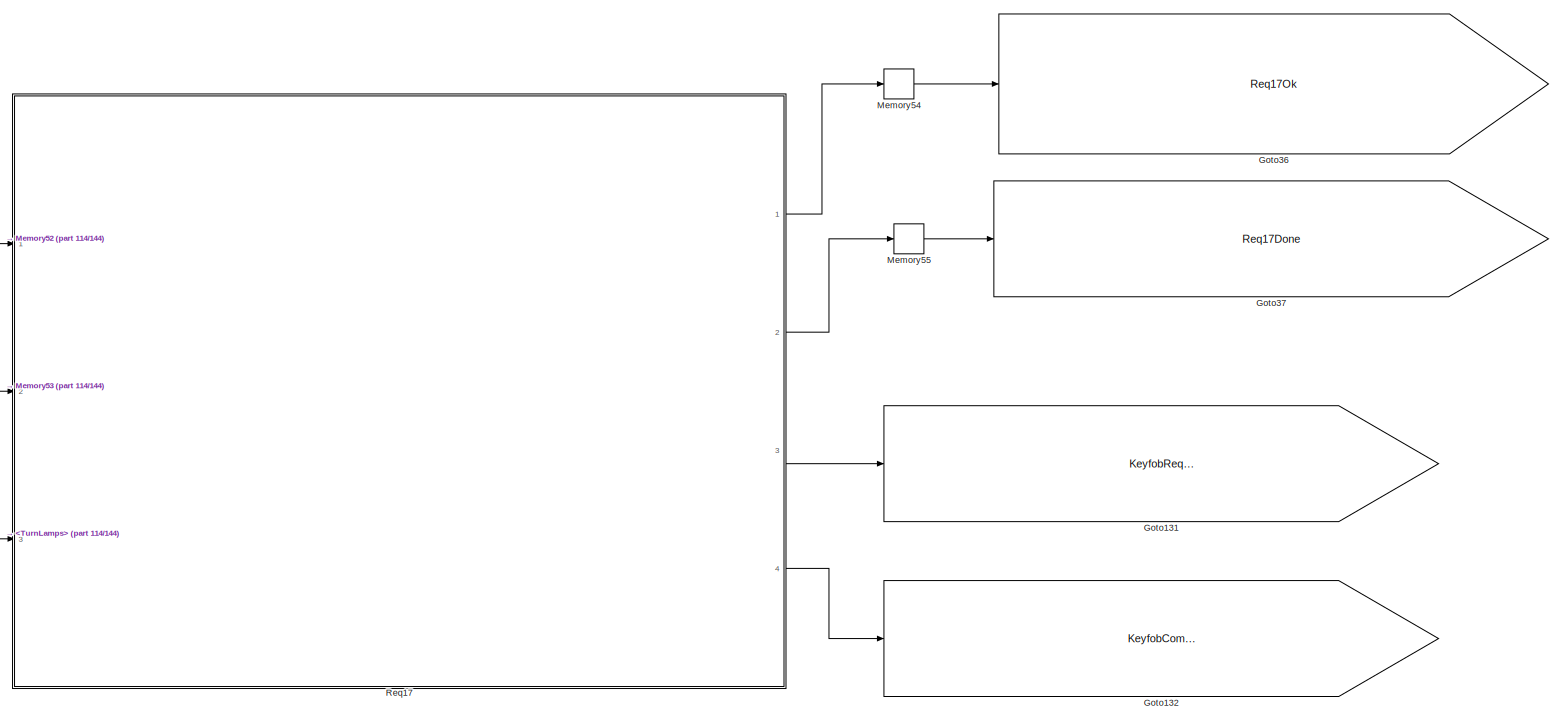
[diagram: root canvas - part 116/144, bottom center region]
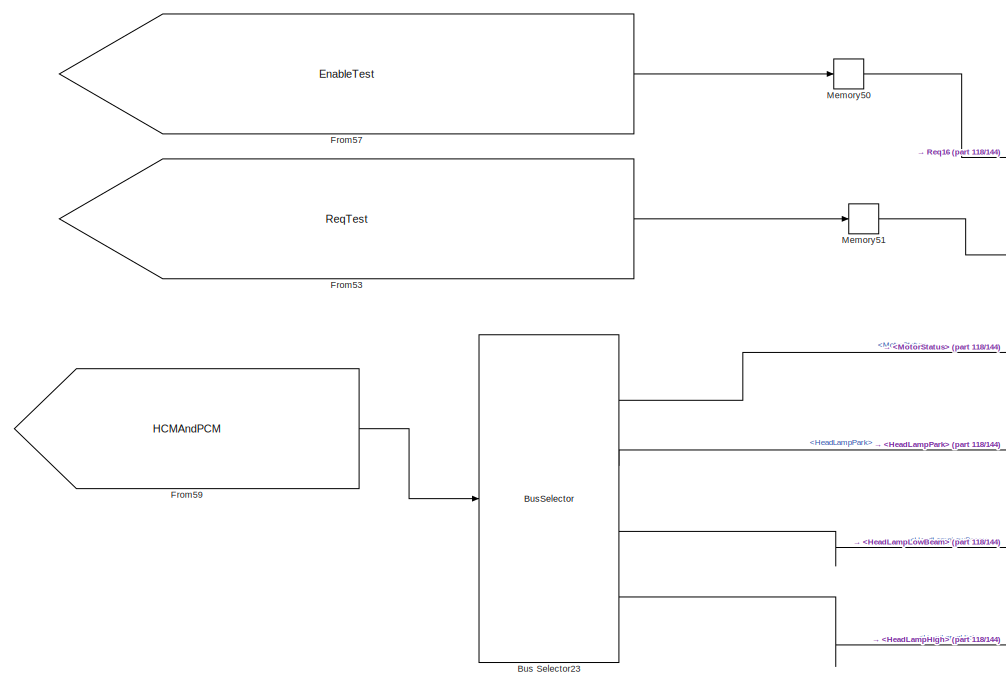
[diagram: root canvas - part 117/144, bottom left region]
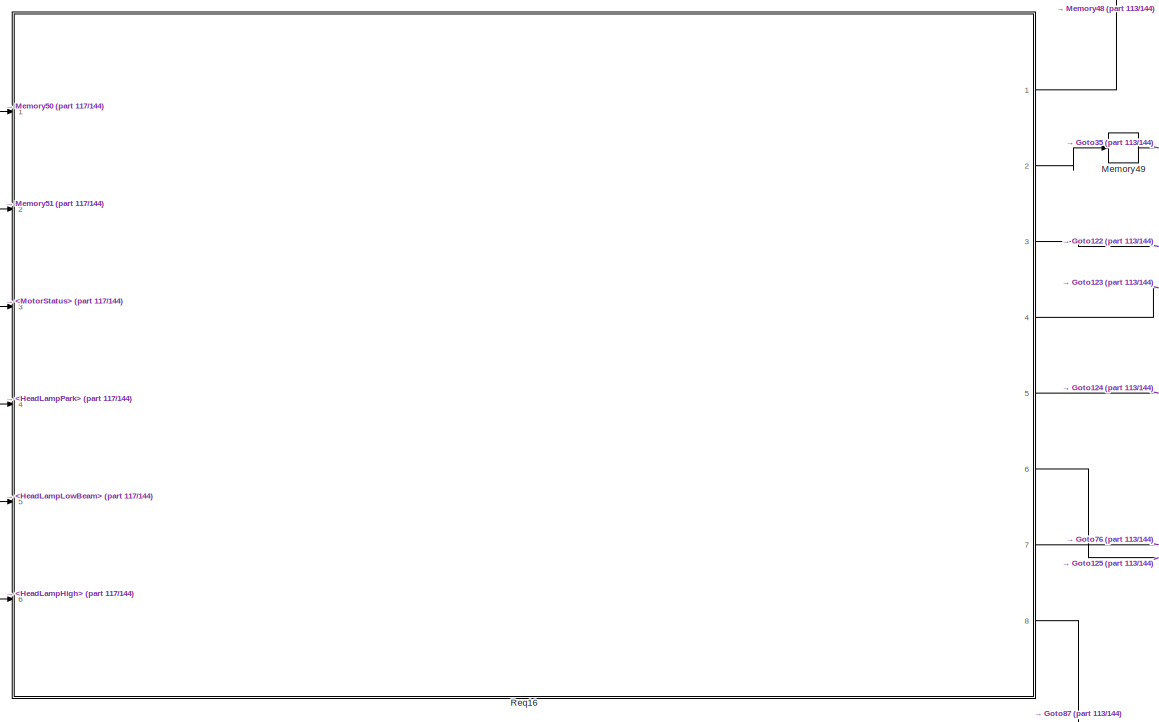
[diagram: root canvas - part 118/144, bottom left region]
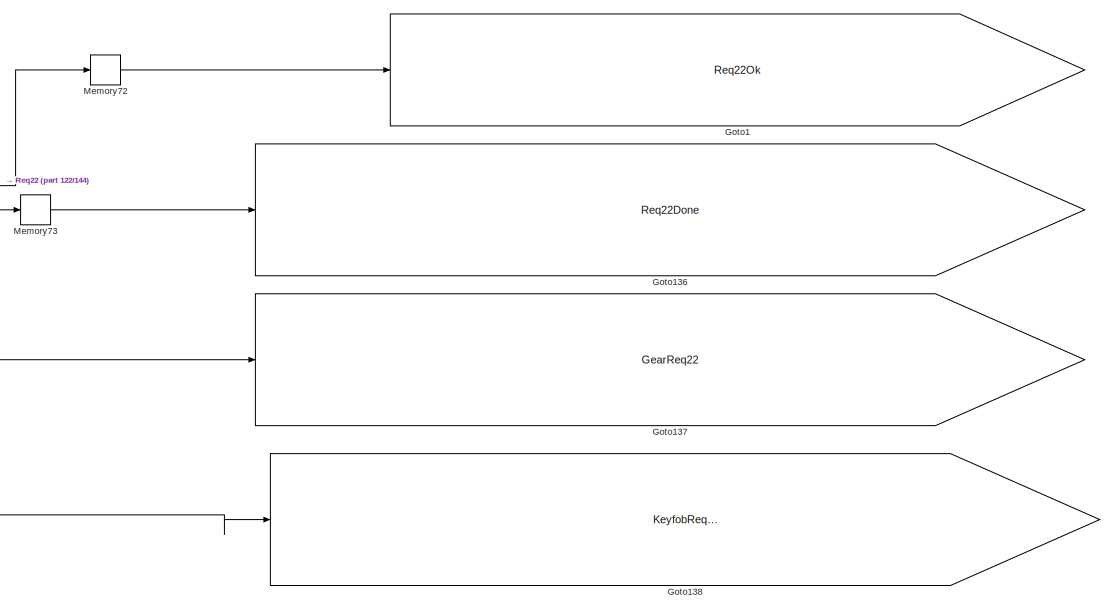
[diagram: root canvas - part 119/144, bottom center region]
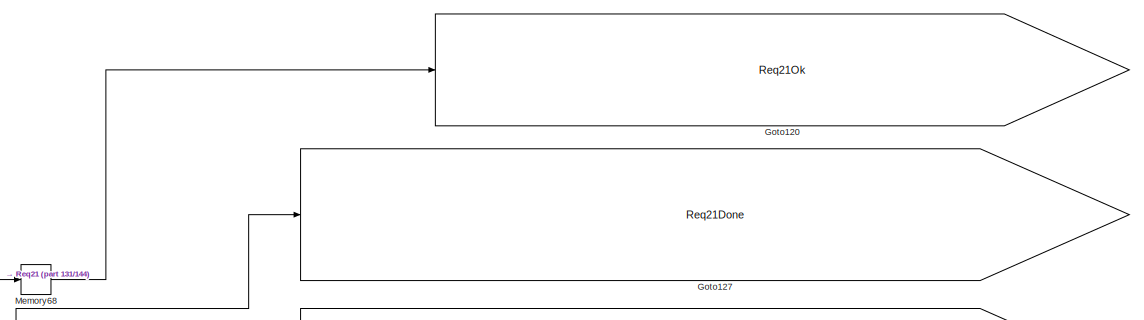
[diagram: root canvas - part 120/144, bottom center region]
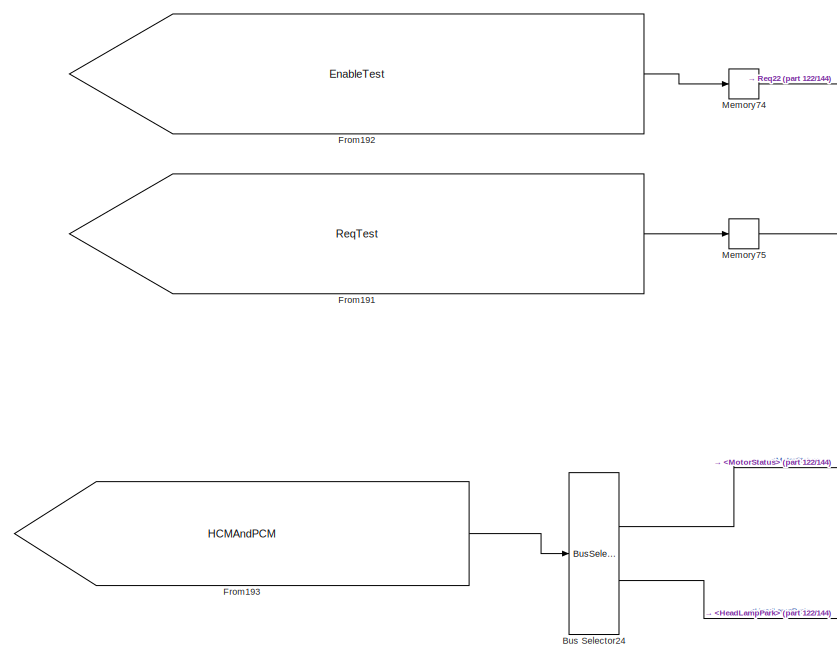
[diagram: root canvas - part 121/144, bottom center region]
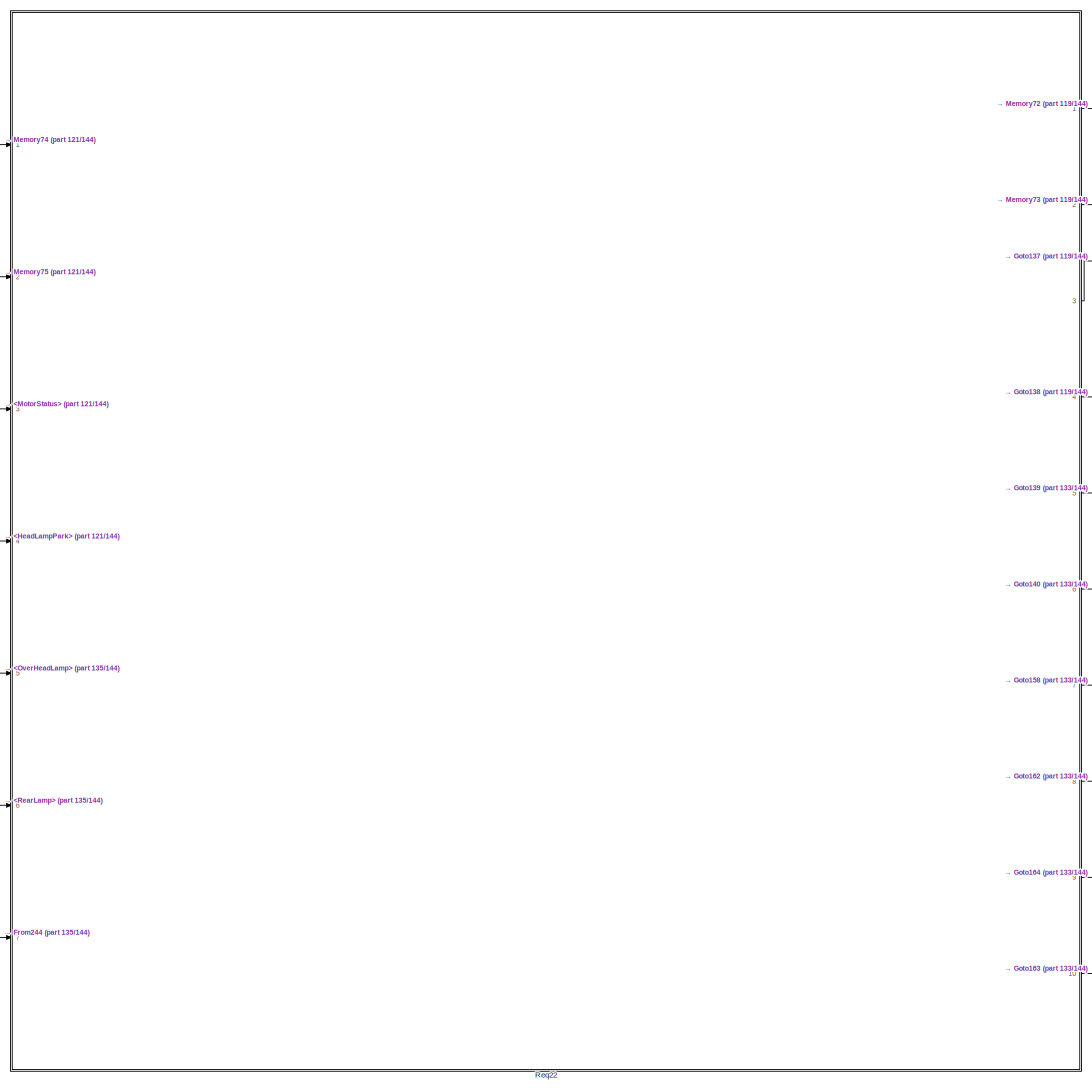
[diagram: root canvas - part 122/144, bottom center region]
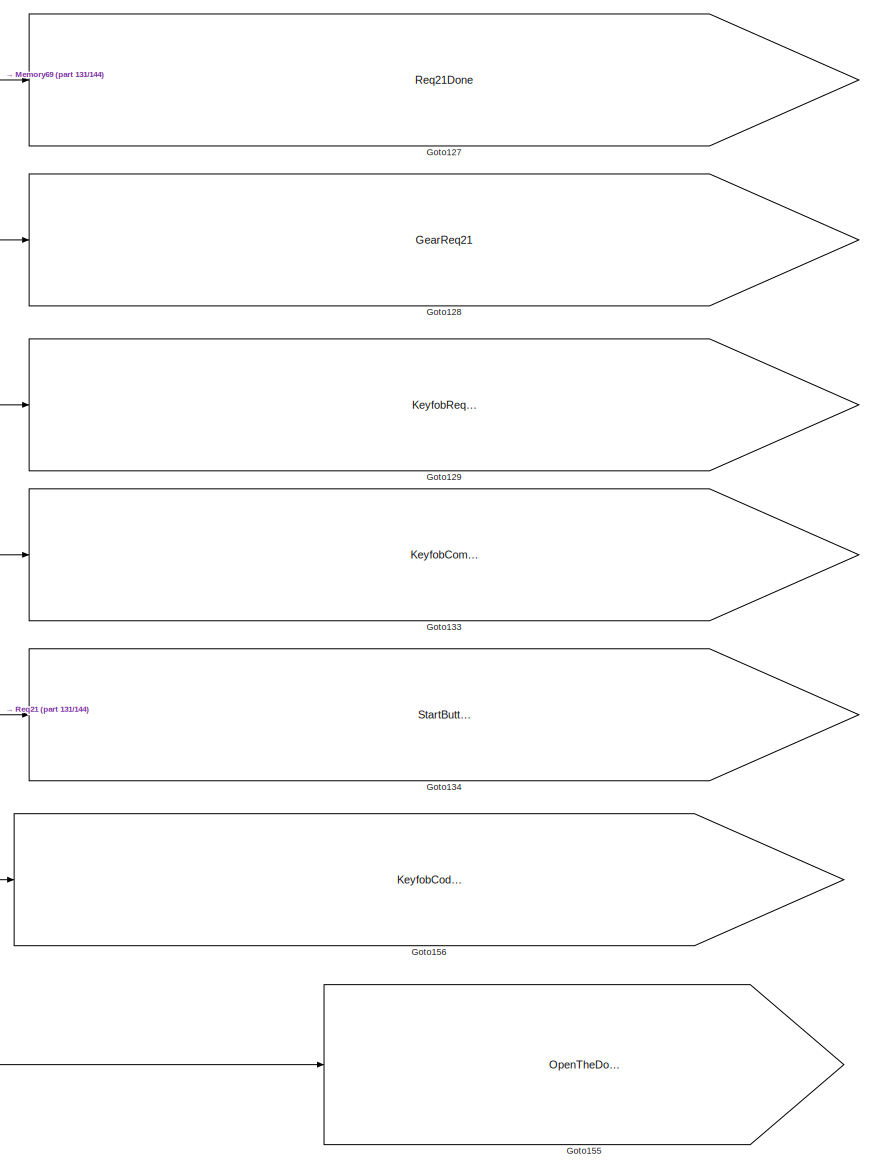
[diagram: root canvas - part 123/144, bottom center region]
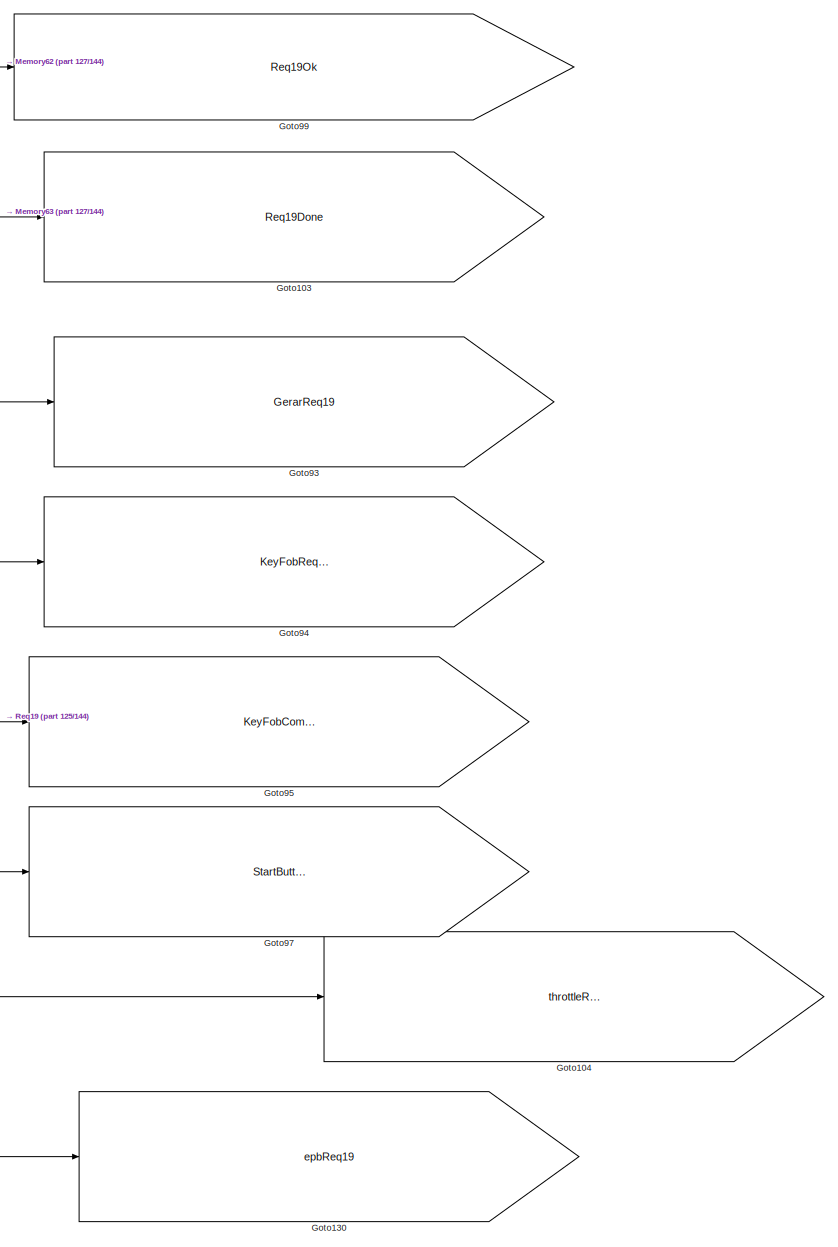
[diagram: root canvas - part 124/144, bottom left region]
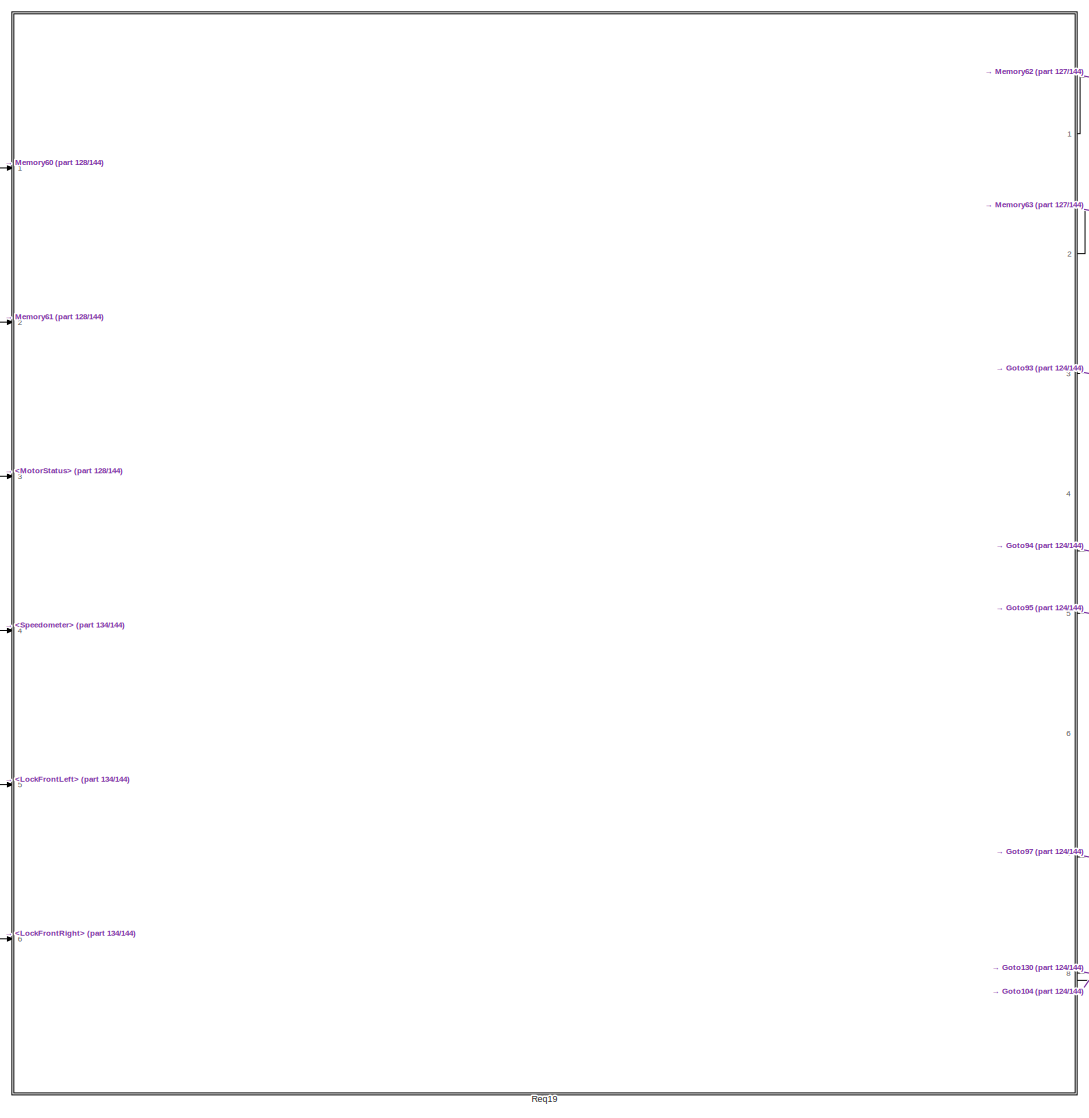
[diagram: root canvas - part 125/144, bottom left region]
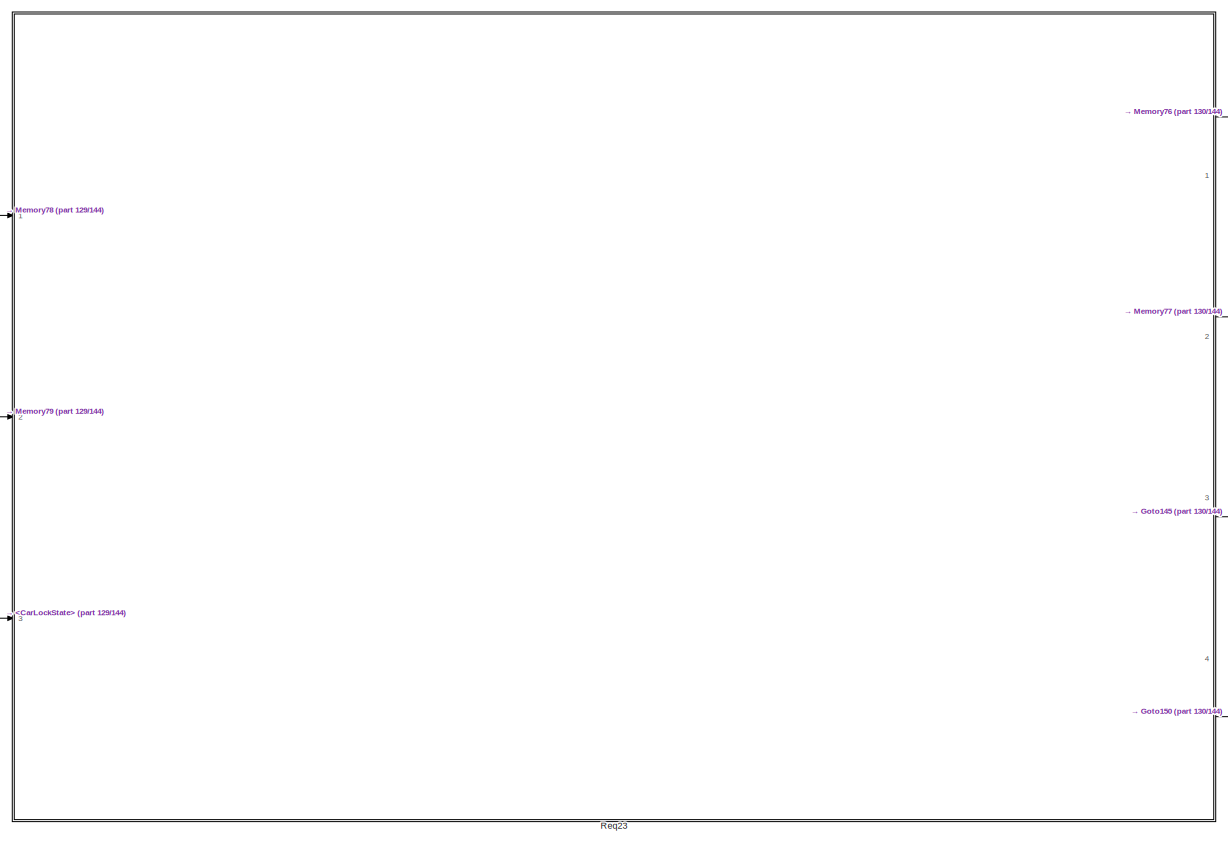
[diagram: root canvas - part 126/144, bottom center region]
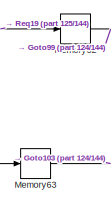
[diagram: root canvas - part 127/144, bottom left region]
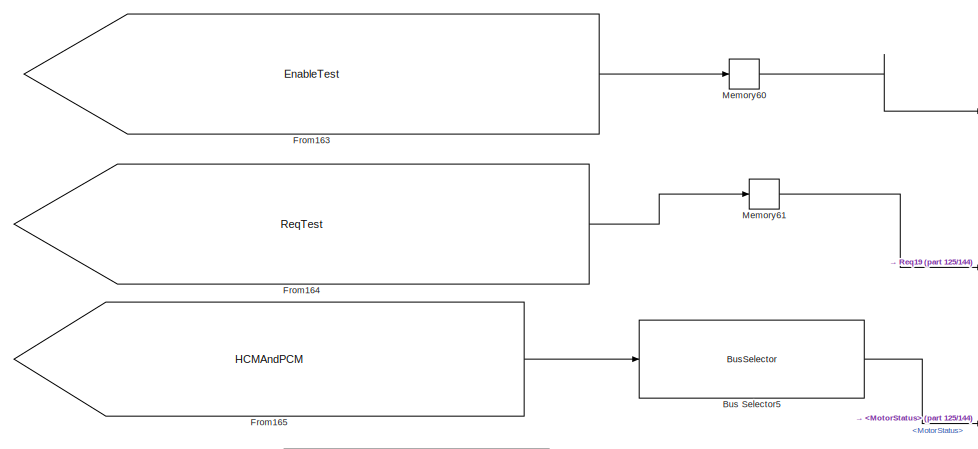
[diagram: root canvas - part 128/144, bottom left region]
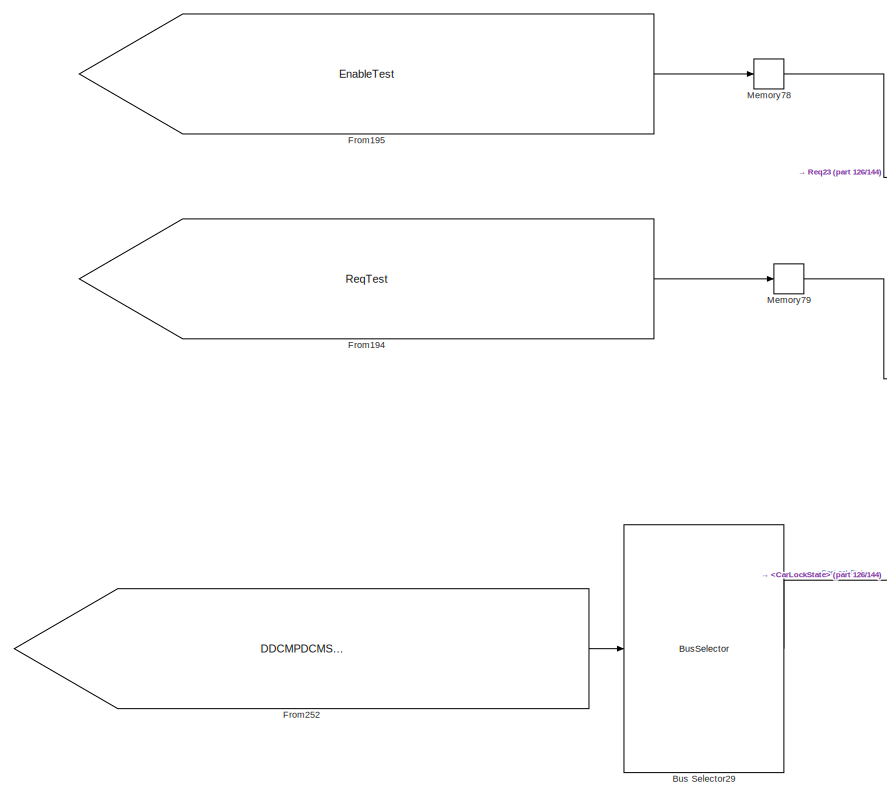
[diagram: root canvas - part 129/144, bottom center region]
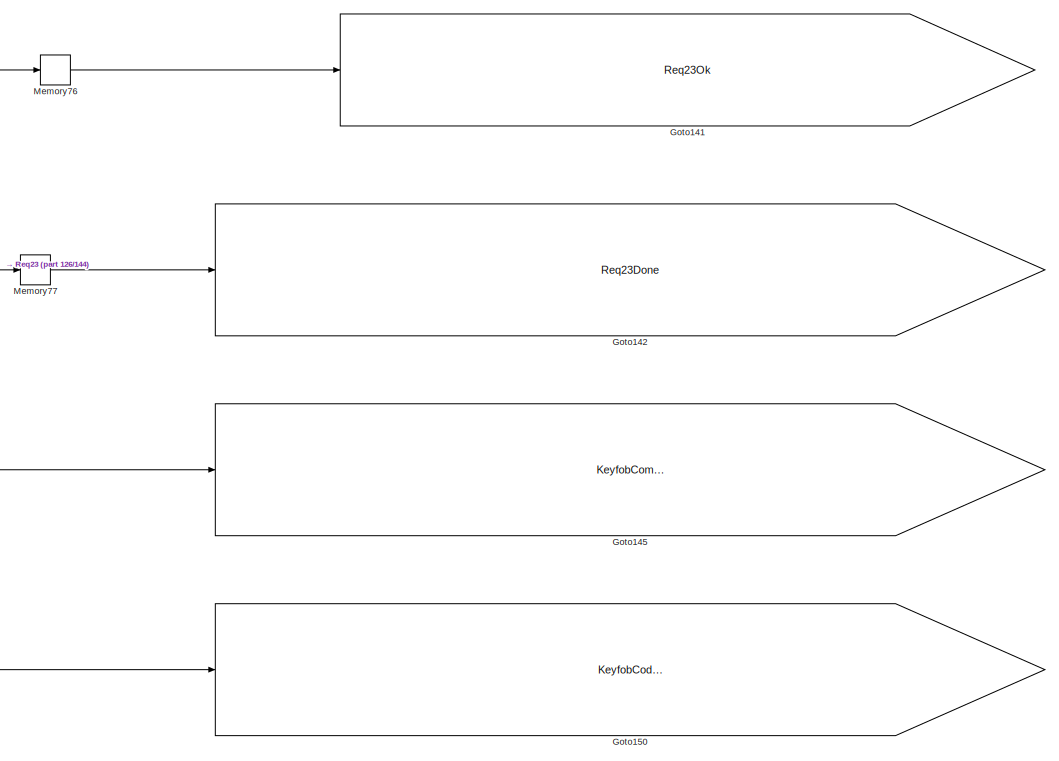
[diagram: root canvas - part 130/144, bottom right region]
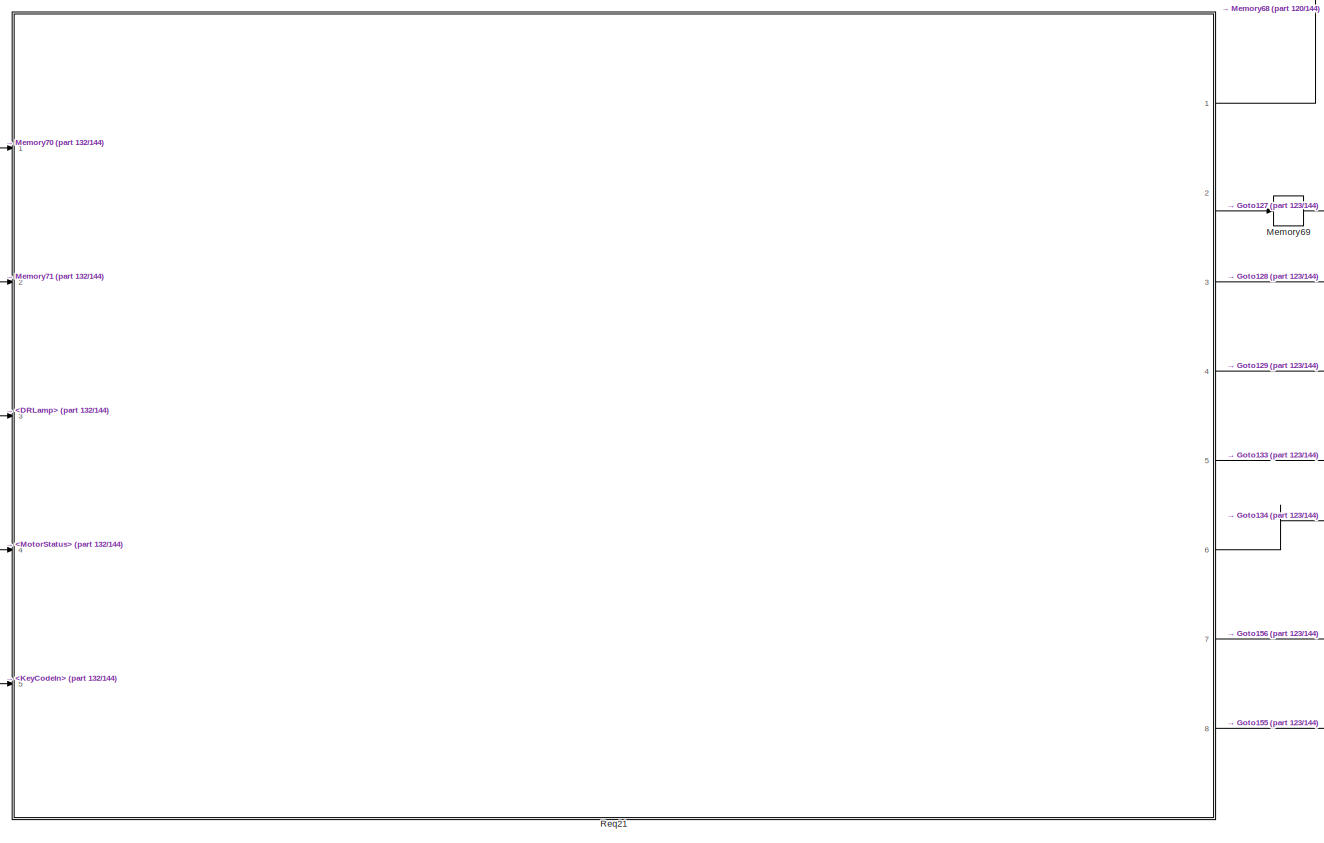
[diagram: root canvas - part 131/144, bottom left region]
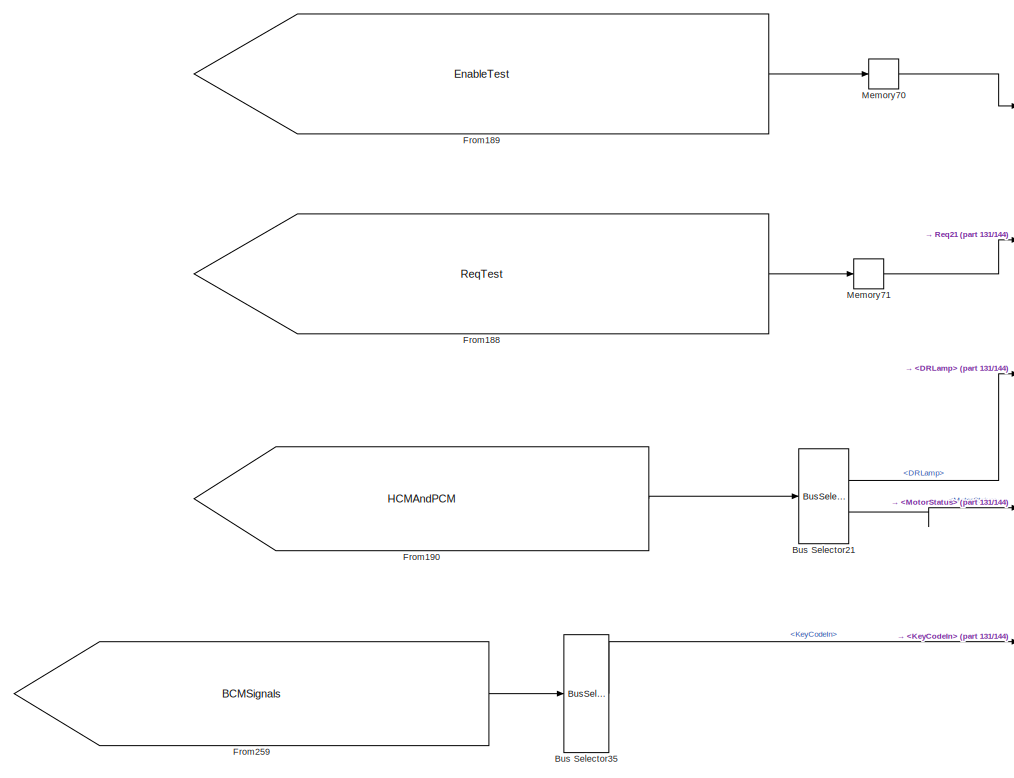
[diagram: root canvas - part 132/144, bottom left region]
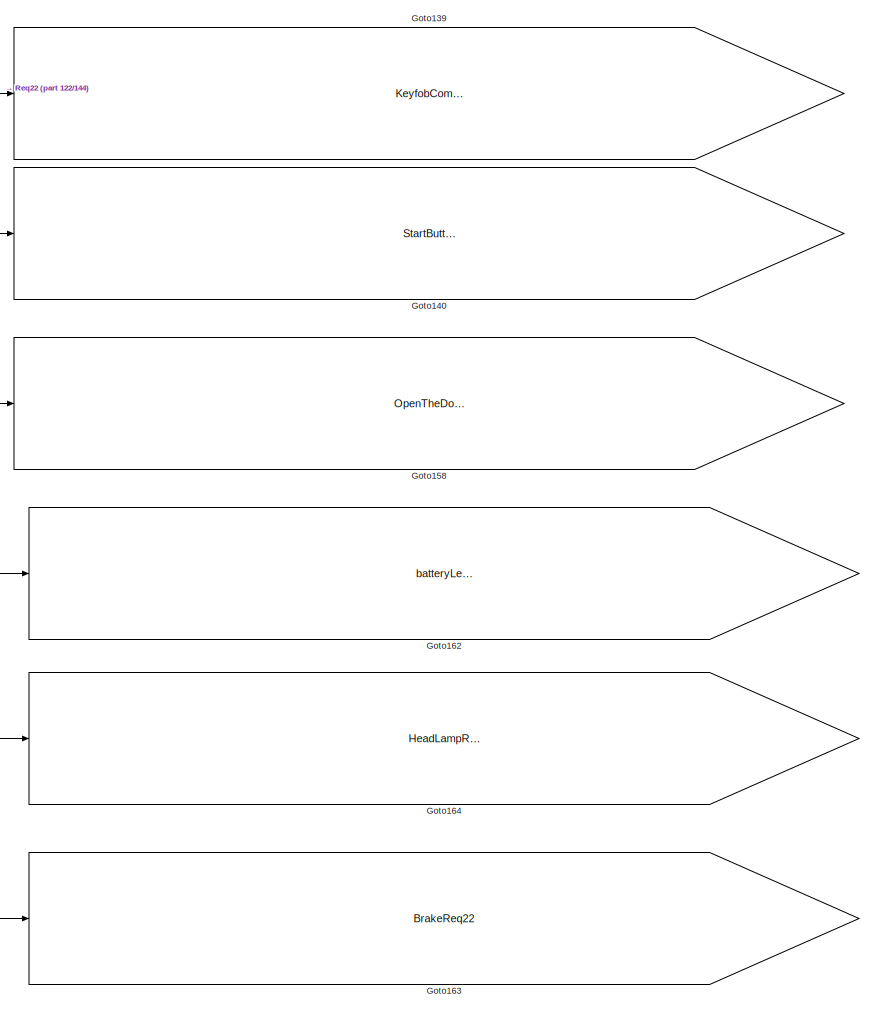
[diagram: root canvas - part 133/144, bottom center region]
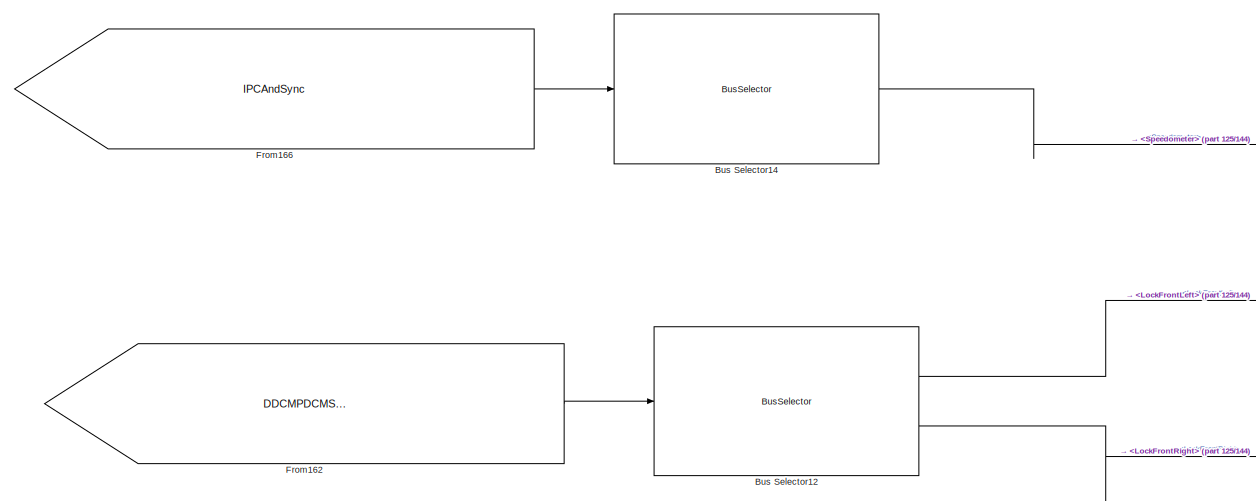
[diagram: root canvas - part 134/144, bottom left region]
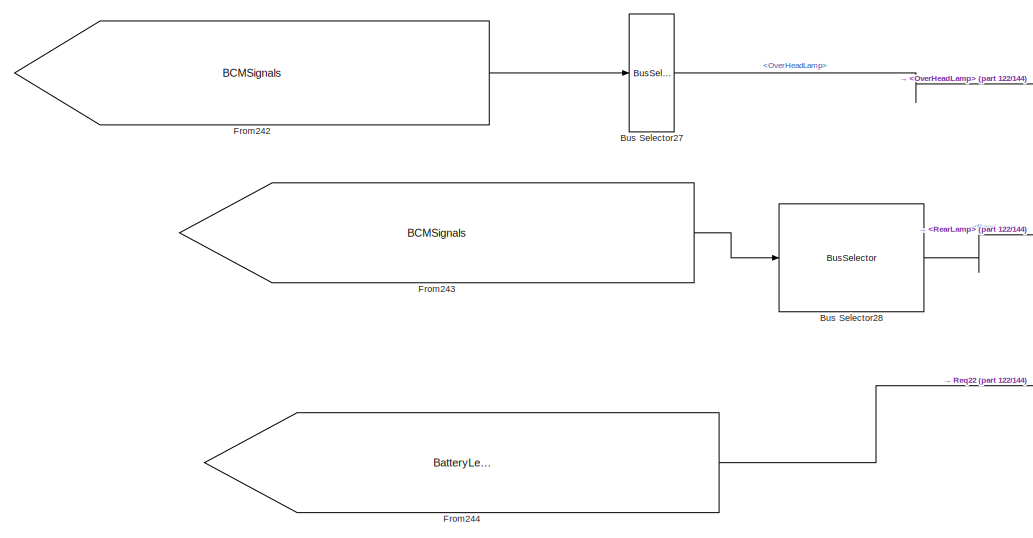
[diagram: root canvas - part 135/144, bottom center region]
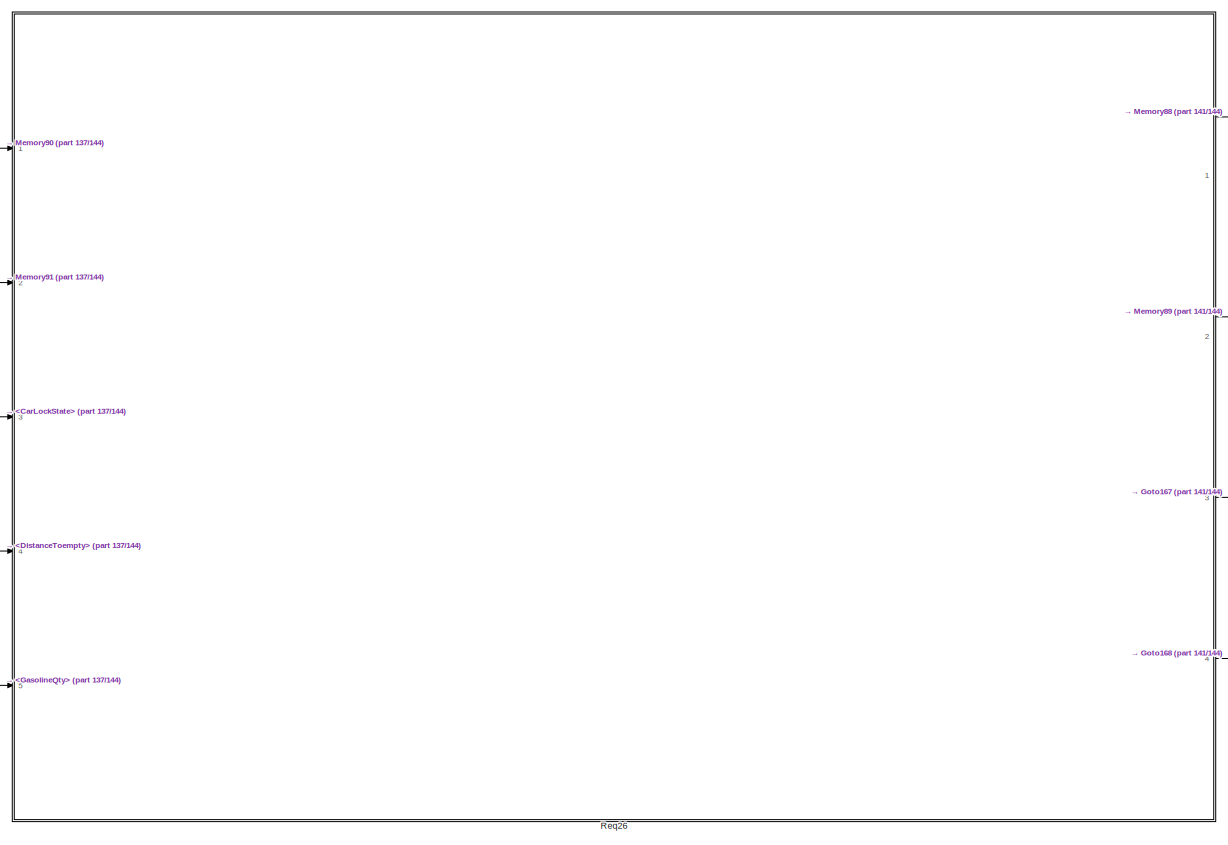
[diagram: root canvas - part 136/144, bottom center region]
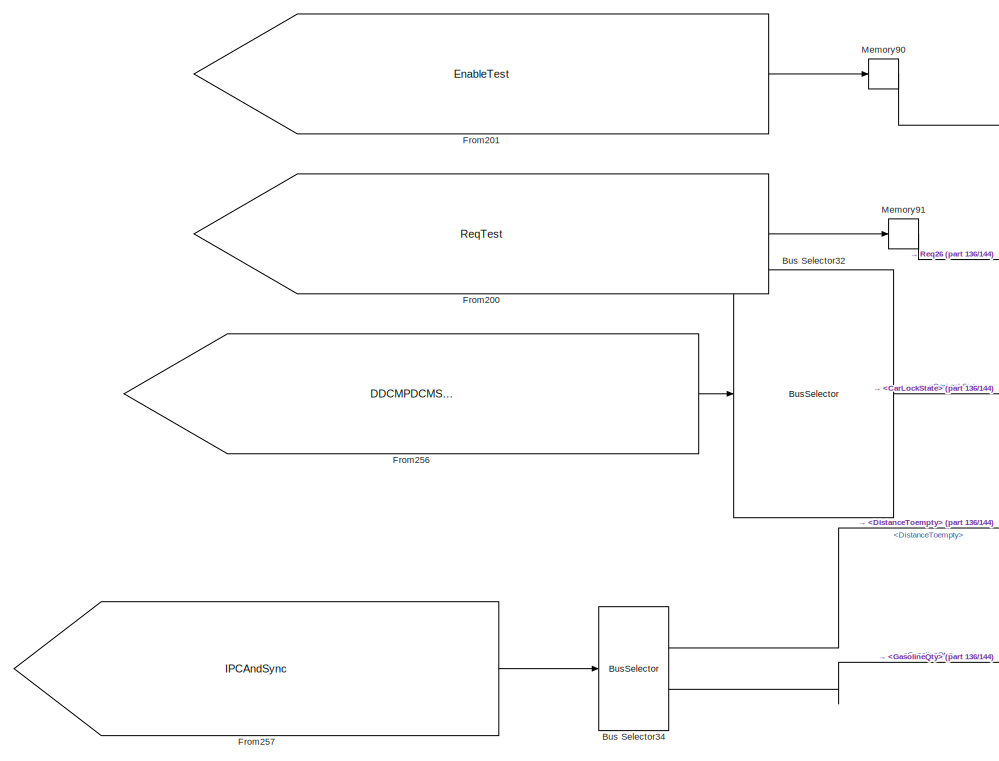
[diagram: root canvas - part 137/144, bottom center region]
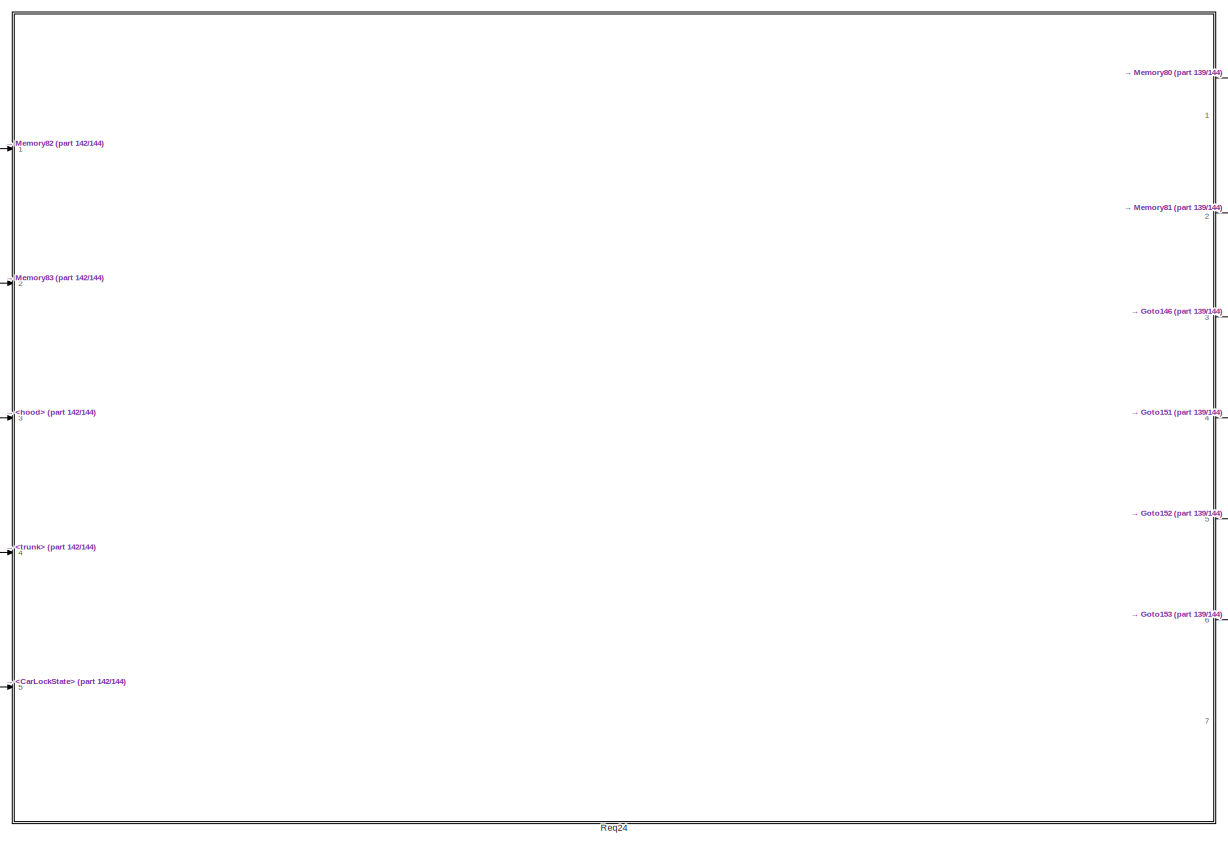
[diagram: root canvas - part 138/144, bottom left region]
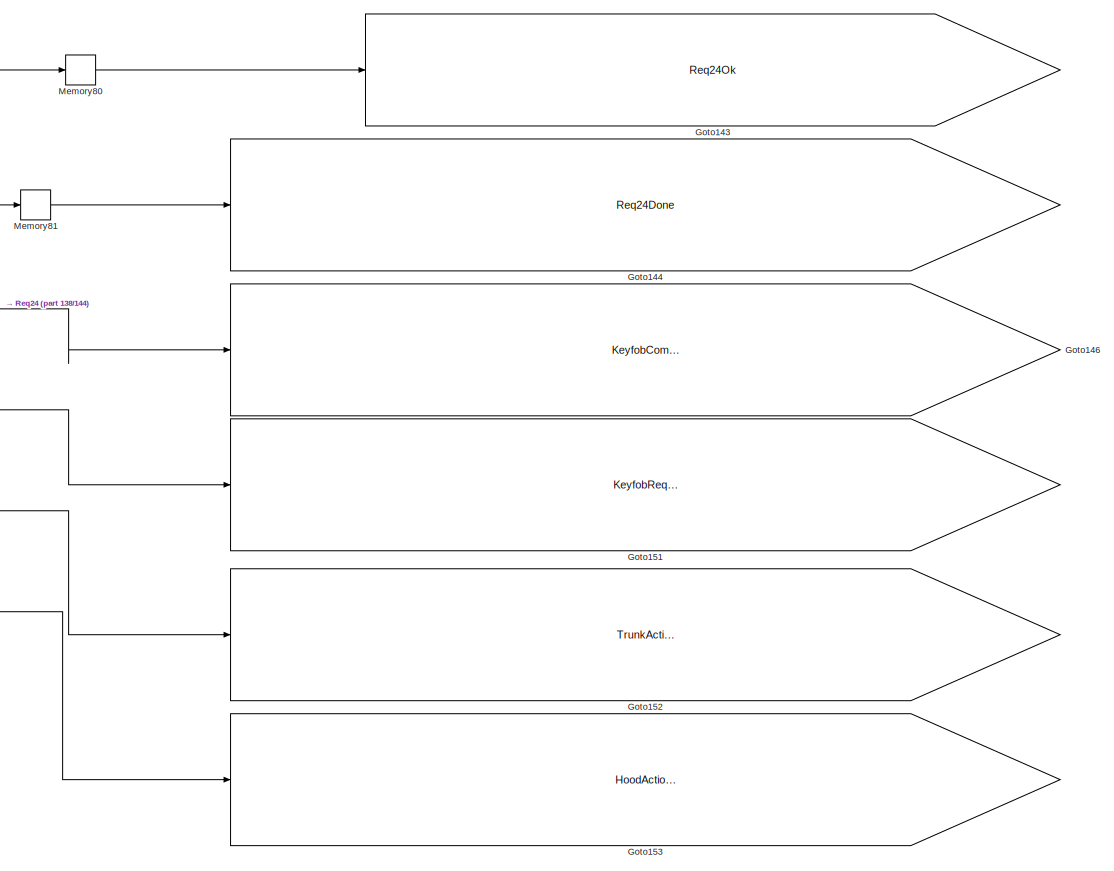
[diagram: root canvas - part 139/144, bottom left region]
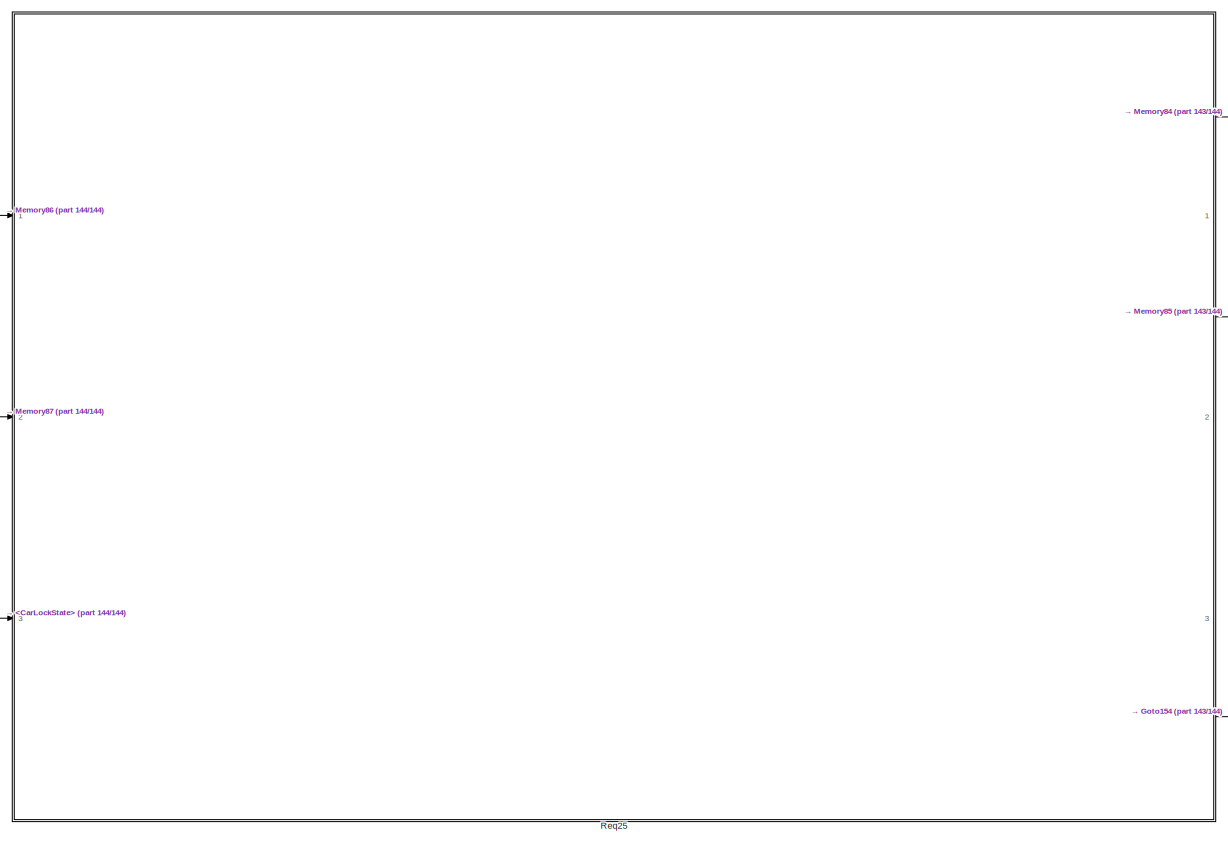
[diagram: root canvas - part 140/144, bottom left region]
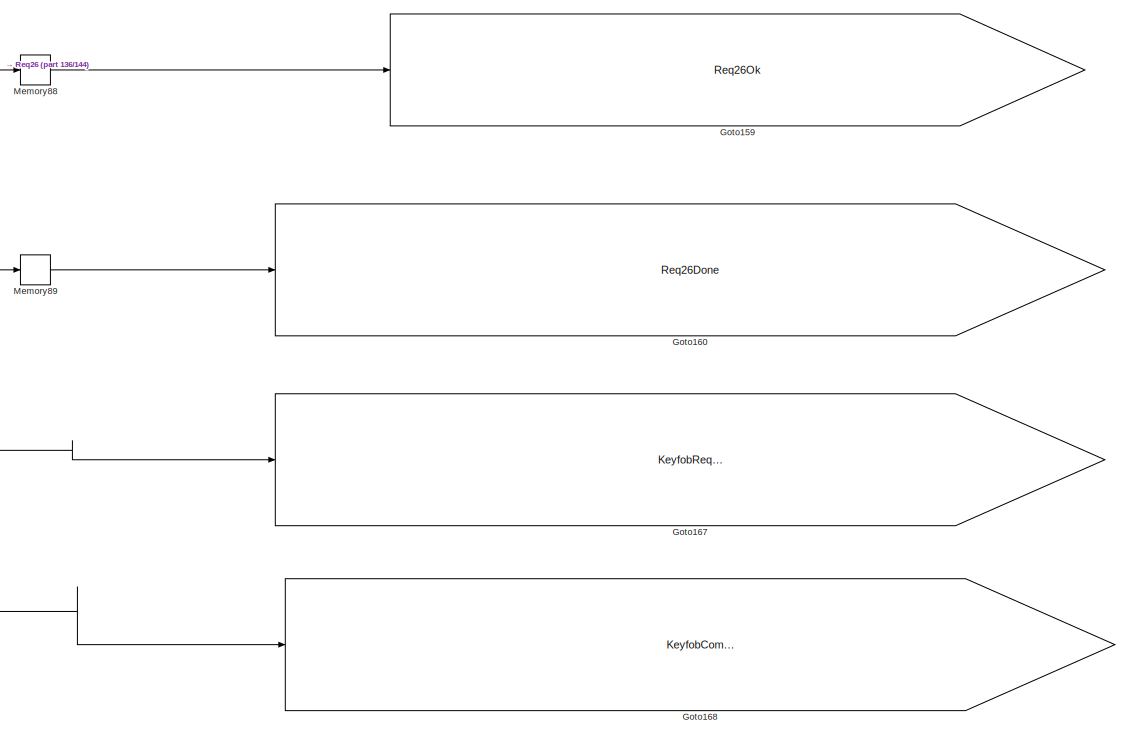
[diagram: root canvas - part 141/144, bottom center region]
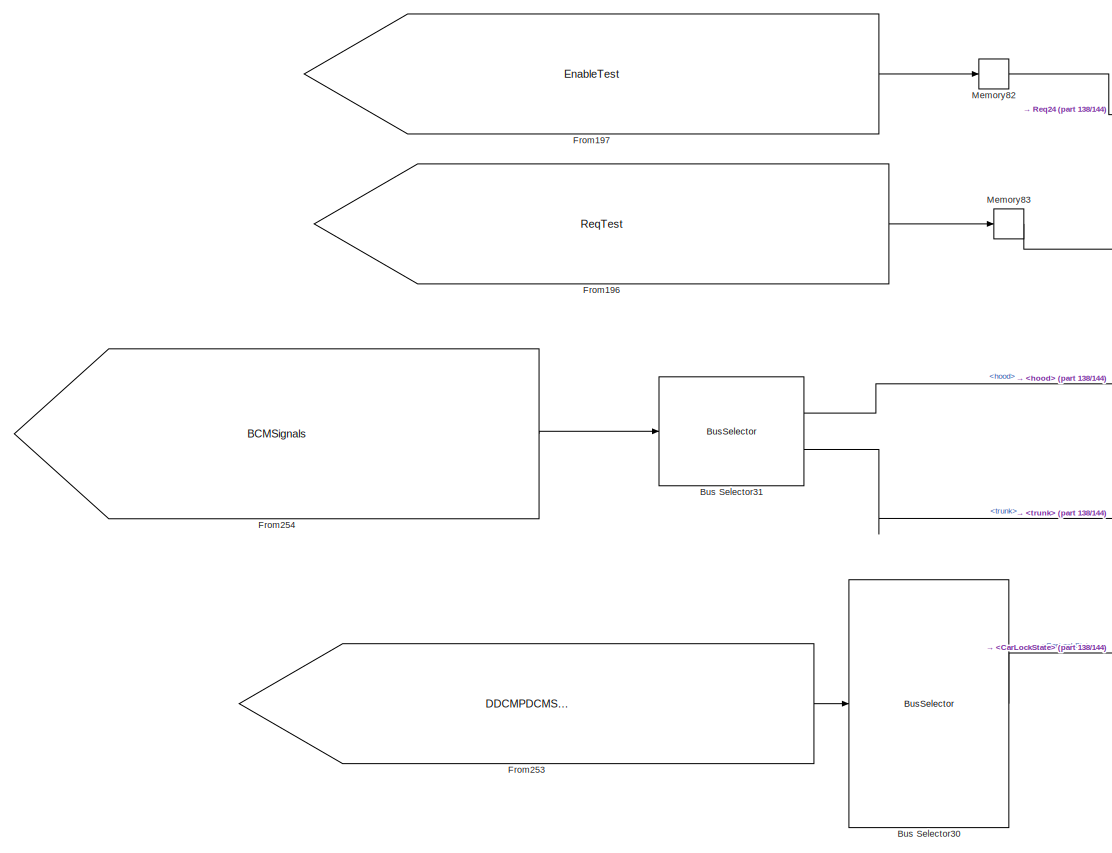
[diagram: root canvas - part 142/144, bottom left region]
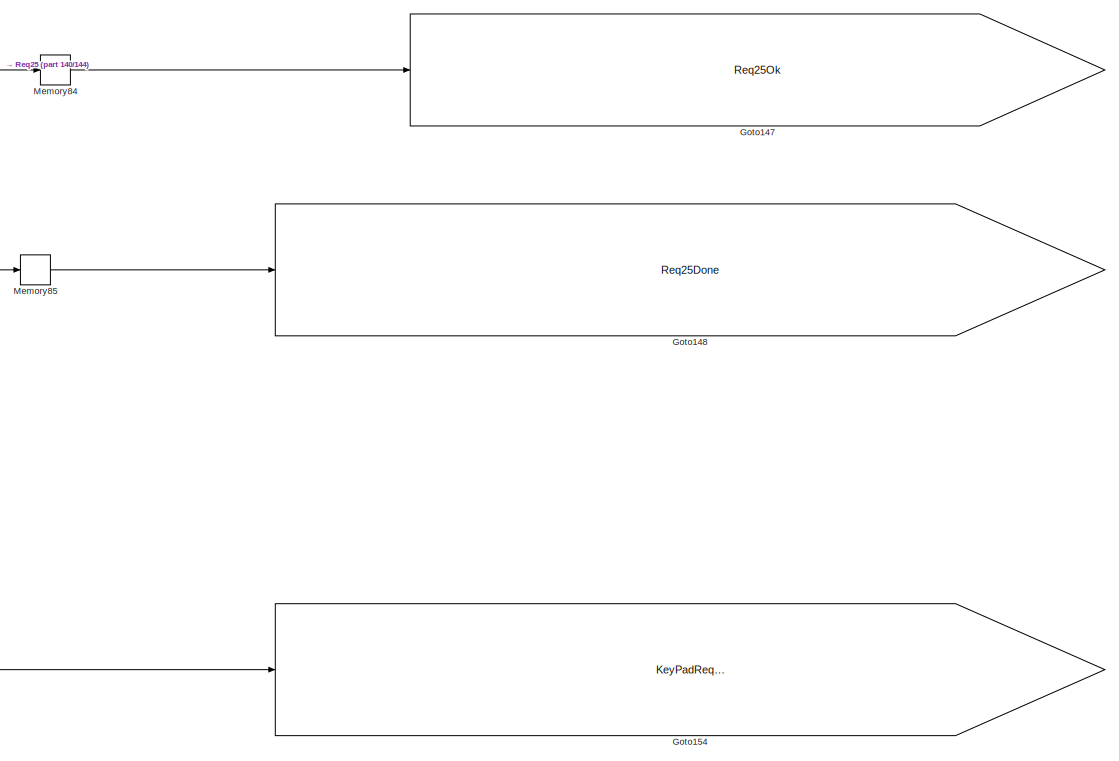
[diagram: root canvas - part 143/144, bottom center region]
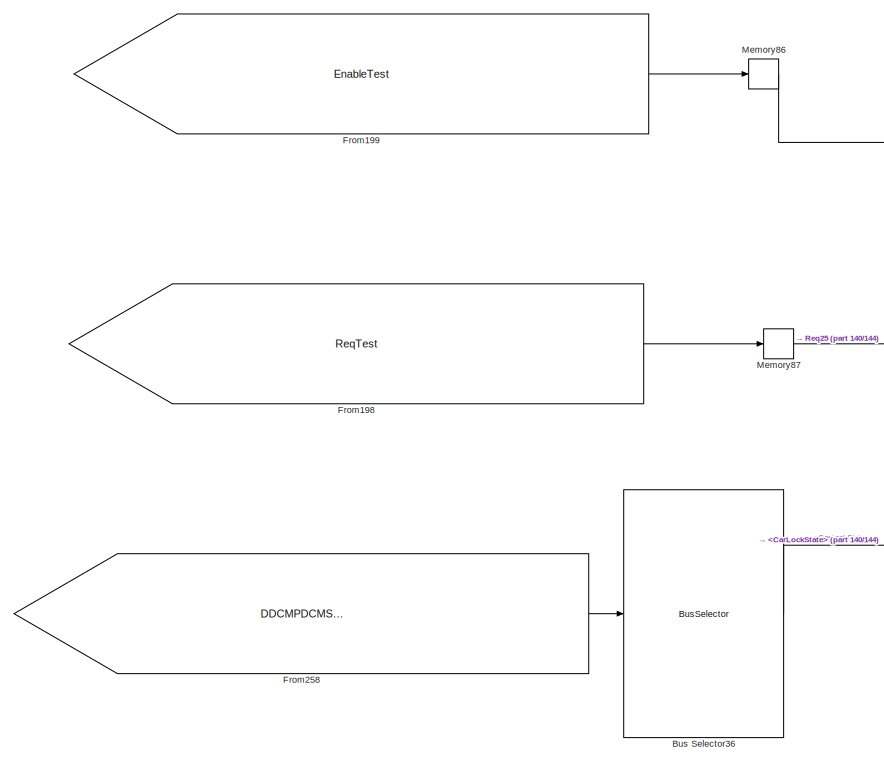
[diagram: root canvas - part 144/144, bottom left region]
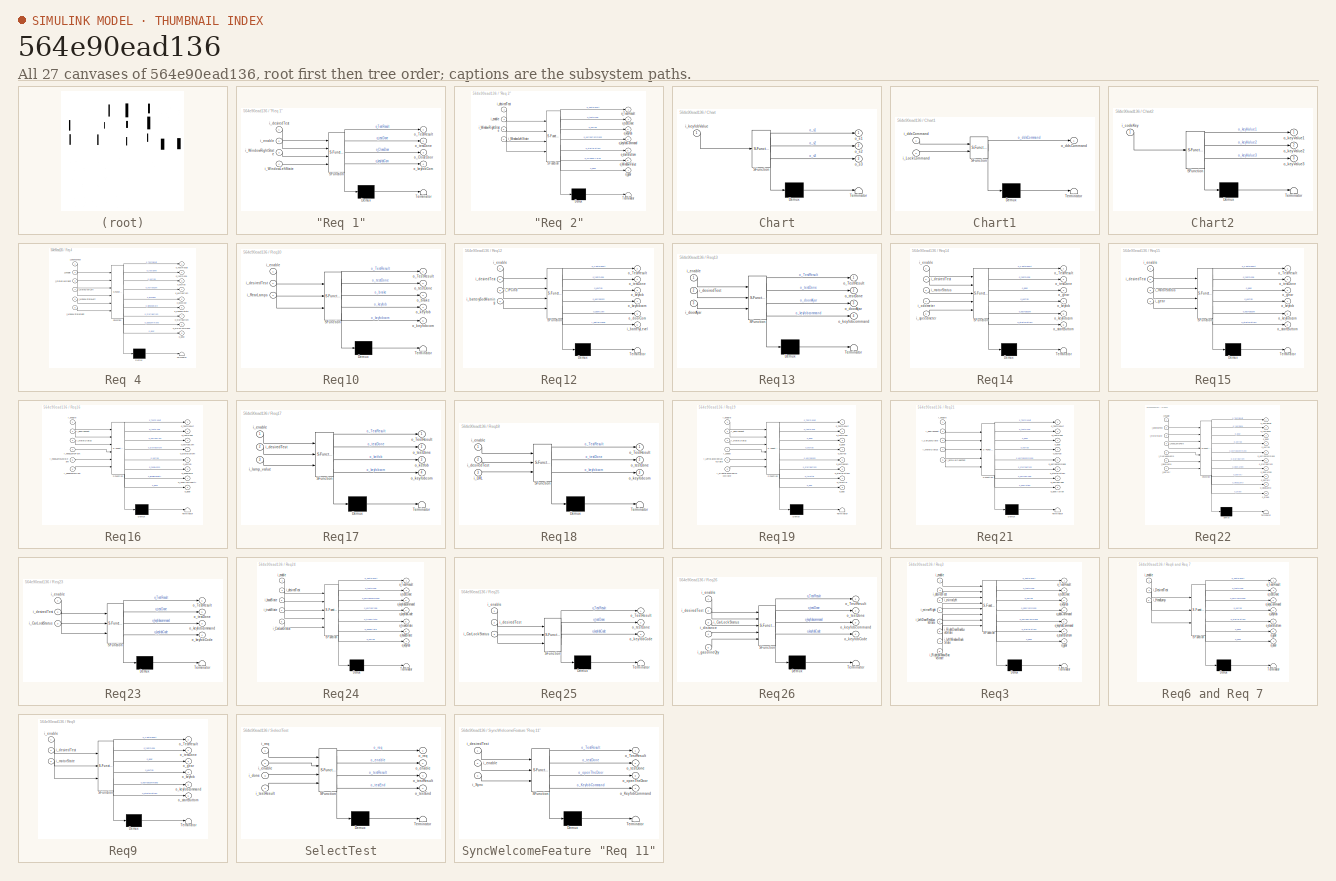
[diagram: thumbnail index - all 27 canvases of the model, root first then tree order]
MODEL slx_564e90ead136
KIND model
CONFIG AbsTol = auto
CONFIG EnableMultiTasking = off
CONFIG FixedStep = 0.01
CONFIG MaxStep = 100e-3
CONFIG MinStep = auto
CONFIG RelTol = 1e-3
CONFIG SampleTimeConstraint = Unconstrained
CONFIG Solver = FixedStepAuto
CONFIG SolverName = FixedStepAuto
CONFIG StartTime = 0.0
CONFIG StopTime = 10
BLOCK [SubSystem] "Req 1"
  ErrorFcn = Stateflow.Translate.translate
  PermitHierarchicalResolution = ExplicitOnly
  Ports = [4, 4]
  RequestExecContextInheritance = off
  SFBlockType = Chart
  TreatAsAtomicUnit = on
BLOCK [Demux] "Req 1"/ Demux 
  Outputs = 1
  Ports = [1, 1]
BLOCK [S-Function] "Req 1"/ SFunction 
  EnableBusSupport = on
  FunctionName = sf_sfun
  PortCounts = [4 5]
  Ports = [4, 5]
  SFcnIsStateOwnerBlock = off
  SFunctionDeploymentMode = off
  Tag = Stateflow S-Function simulationfinal2 6
BLOCK [Terminator] "Req 1"/ Terminator 
BLOCK [Inport] "Req 1"/i_WindowLeftState
  IconDisplay = Port number
  Port = 4
BLOCK [Inport] "Req 1"/i_WindowRightState
  IconDisplay = Port number
  Port = 3
BLOCK [Inport] "Req 1"/i_desiredTest
  IconDisplay = Port number
BLOCK [Inport] "Req 1"/i_enable
  IconDisplay = Port number
  Port = 2
BLOCK [Outport] "Req 1"/o_CloseDoor
  IconDisplay = Port number
  Port = 3
  VectorParamsAs1DForOutWhenUnconnected = on
BLOCK [Outport] "Req 1"/o_TestResult
  IconDisplay = Port number
  VectorParamsAs1DForOutWhenUnconnected = on
BLOCK [Outport] "Req 1"/o_keyfobCom
  IconDisplay = Port number
  Port = 4
  VectorParamsAs1DForOutWhenUnconnected = on
BLOCK [Outport] "Req 1"/o_testDone
  IconDisplay = Port number
  Port = 2
  VectorParamsAs1DForOutWhenUnconnected = on
BLOCK [SubSystem] "Req 2"
  ErrorFcn = Stateflow.Translate.translate
  PermitHierarchicalResolution = ExplicitOnly
  Ports = [4, 7]
  RequestExecContextInheritance = off
  SFBlockType = Chart
  TreatAsAtomicUnit = on
BLOCK [Demux] "Req 2"/ Demux 
  Outputs = 1
  Ports = [1, 1]
BLOCK [S-Function] "Req 2"/ SFunction 
  EnableBusSupport = on
  FunctionName = sf_sfun
  PortCounts = [4 8]
  Ports = [4, 8]
  SFcnIsStateOwnerBlock = off
  SFunctionDeploymentMode = off
  Tag = Stateflow S-Function simulationfinal2 17
BLOCK [Terminator] "Req 2"/ Terminator 
BLOCK [Inport] "Req 2"/i_WindowLeftState
  IconDisplay = Port number
  Port = 4
BLOCK [Inport] "Req 2"/i_WindowRightState
  IconDisplay = Port number
  Port = 3
BLOCK [Inport] "Req 2"/i_desiredTest
  IconDisplay = Port number
BLOCK [Inport] "Req 2"/i_enable
  IconDisplay = Port number
  Port = 2
BLOCK [Outport] "Req 2"/o_TestResult
  IconDisplay = Port number
  VectorParamsAs1DForOutWhenUnconnected = on
BLOCK [Outport] "Req 2"/o_WindowValue
  IconDisplay = Port number
  Port = 6
  VectorParamsAs1DForOutWhenUnconnected = on
BLOCK [Outport] "Req 2"/o_gear
  IconDisplay = Port number
  Port = 7
  VectorParamsAs1DForOutWhenUnconnected = on
BLOCK [Outport] "Req 2"/o_keyfob
  IconDisplay = Port number
  Port = 3
  VectorParamsAs1DForOutWhenUnconnected = on
BLOCK [Outport] "Req 2"/o_keyfobCommand
  IconDisplay = Port number
  Port = 4
  VectorParamsAs1DForOutWhenUnconnected = on
BLOCK [Outport] "Req 2"/o_startButtom
  IconDisplay = Port number
  Port = 5
  VectorParamsAs1DForOutWhenUnconnected = on
BLOCK [Outport] "Req 2"/o_testDone
  IconDisplay = Port number
  Port = 2
  VectorParamsAs1DForOutWhenUnconnected = on
BLOCK [Inport] AjarDoorIndicatorIn
  IconDisplay = Port number
  OutDataTypeStr = int8
  Port = 5
BLOCK [Inport] BatteryInput
  IconDisplay = Port number
  OutDataTypeStr = int8
  Port = 28
BLOCK [Outport] BatteryLevelOut
  IconDisplay = Port number
  Port = 24
  VectorParamsAs1DForOutWhenUnconnected = on
BLOCK [Inport] BatterySocIn
  IconDisplay = Port number
  OutDataTypeStr = int8
  Port = 31
BLOCK [Outport] BrakeOut
  IconDisplay = Port number
  Port = 8
  VectorParamsAs1DForOutWhenUnconnected = on
BLOCK [BusCreator] Bus Creator
  DisplayOption = bar
  InheritFromInputs = on
  Inputs = 11
  Ports = [11, 1]
BLOCK [BusCreator] Bus Creator1
  DisplayOption = bar
  InheritFromInputs = on
  Inputs = 5
  Ports = [5, 1]
BLOCK [BusCreator] Bus Creator2
  DisplayOption = bar
  InheritFromInputs = on
  Inputs = 8
  Ports = [8, 1]
BLOCK [BusCreator] Bus Creator3
  DisplayOption = bar
  InheritFromInputs = on
  Inputs = 7
  Ports = [7, 1]
BLOCK [BusCreator] Bus Creator4
  DisplayOption = bar
  InheritFromInputs = on
  Inputs = 3
  Ports = [3, 1]
BLOCK [BusCreator] Bus Creator5
  DisplayOption = bar
  InheritFromInputs = on
  Inputs = 3
  Ports = [3, 1]
BLOCK [BusSelector] Bus Selector1
  OutputAsBus = off
  OutputSignals = MotorStatus
  Ports = [1, 1]
BLOCK [BusSelector] Bus Selector10
  OutputAsBus = off
  OutputSignals = OverHeadLamp
  Ports = [1, 1]
BLOCK [BusSelector] Bus Selector11
  OutputAsBus = off
  OutputSignals = o_s1,o_s2,o_s3
  Ports = [1, 3]
BLOCK [BusSelector] Bus Selector12
  OutputAsBus = off
  OutputSignals = LockFrontLeft,LockFrontRight
  Ports = [1, 2]
BLOCK [BusSelector] Bus Selector13
  OutputAsBus = off
  OutputSignals = MotorStatus
  Ports = [1, 1]
BLOCK [BusSelector] Bus Selector14
  OutputAsBus = off
  OutputSignals = Speedometer
  Ports = [1, 1]
BLOCK [BusSelector] Bus Selector15
  OutputAsBus = off
  OutputSignals = RearLamp
  Ports = [1, 1]
BLOCK [BusSelector] Bus Selector17
  OutputAsBus = off
  OutputSignals = IPCIndicator
  Ports = [1, 1]
BLOCK [BusSelector] Bus Selector19
  OutputAsBus = off
  OutputSignals = AjarDoorIndicator
  Ports = [1, 1]
BLOCK [BusSelector] Bus Selector2
  OutputAsBus = off
  OutputSignals = SyncStatus
  Ports = [1, 1]
BLOCK [BusSelector] Bus Selector21
  OutputAsBus = off
  OutputSignals = DRLamp,MotorStatus
  Ports = [1, 2]
BLOCK [BusSelector] Bus Selector22
  OutputAsBus = off
  OutputSignals = MotorStatus,GearState
  Ports = [1, 2]
BLOCK [BusSelector] Bus Selector23
  OutputAsBus = off
  OutputSignals = MotorStatus,HeadLampPark,HeadLampLowBeam,HeadLampHigh
  Ports = [1, 4]
BLOCK [BusSelector] Bus Selector24
  OutputAsBus = off
  OutputSignals = MotorStatus,HeadLampPark
  Ports = [1, 2]
BLOCK [BusSelector] Bus Selector25
  OutputAsBus = off
  OutputSignals = TurnLamps
  Ports = [1, 1]
BLOCK [BusSelector] Bus Selector26
  OutputAsBus = off
  OutputSignals = KeyValue1,KeyValue2,KeyValue3
  Ports = [1, 3]
BLOCK [BusSelector] Bus Selector27
  OutputAsBus = off
  OutputSignals = OverHeadLamp
  Ports = [1, 1]
BLOCK [BusSelector] Bus Selector28
  OutputAsBus = off
  OutputSignals = RearLamp
  Ports = [1, 1]
BLOCK [BusSelector] Bus Selector29
  OutputAsBus = off
  OutputSignals = CarLockState
  Ports = [1, 1]
BLOCK [BusSelector] Bus Selector3
  OutputAsBus = off
  OutputSignals = WindowsFrontRight,WindowsFrontLeft
  Ports = [1, 2]
BLOCK [BusSelector] Bus Selector30
  OutputAsBus = off
  OutputSignals = CarLockState
  Ports = [1, 1]
BLOCK [BusSelector] Bus Selector31
  OutputAsBus = off
  OutputSignals = hood,trunk
  Ports = [1, 2]
BLOCK [BusSelector] Bus Selector32
  OutputAsBus = off
  OutputSignals = CarLockState
  Ports = [1, 1]
BLOCK [BusSelector] Bus Selector33
  OutputAsBus = off
  OutputSignals = BatterySoc
  Ports = [1, 1]
BLOCK [BusSelector] Bus Selector34
  OutputAsBus = off
  OutputSignals = DistanceToempty,GasolineQty
  Ports = [1, 2]
BLOCK [BusSelector] Bus Selector35
  OutputAsBus = off
  OutputSignals = KeyCodeIn
  Ports = [1, 1]
BLOCK [BusSelector] Bus Selector36
  OutputAsBus = off
  OutputSignals = CarLockState
  Ports = [1, 1]
BLOCK [BusSelector] Bus Selector4
  OutputAsBus = off
  OutputSignals = WindowsFrontRight,WindowsFrontLeft
  Ports = [1, 2]
BLOCK [BusSelector] Bus Selector5
  OutputAsBus = off
  OutputSignals = MotorStatus
  Ports = [1, 1]
BLOCK [BusSelector] Bus Selector6
  OutputAsBus = off
  OutputSignals = LockFrontRight,LockFrontLeft,WindowsFrontLeft,WindowsFrontRight
  Ports = [1, 4]
BLOCK [BusSelector] Bus Selector7
  OutputAsBus = off
  OutputSignals = CarLockState
  Ports = [1, 1]
BLOCK [BusSelector] Bus Selector8
  OutputAsBus = off
  OutputSignals = MirrorLeft,MirrorRight,LockBackLeft,LockBackRight,WindowsBackLeft,WindowsBackRight
  Ports = [1, 6]
BLOCK [BusSelector] Bus Selector9
  OutputAsBus = off
  OutputSignals = OdoMeter,Speedometer
  Ports = [1, 2]
BLOCK [Inport] CarLockStateIn
  IconDisplay = Port number
  OutDataTypeStr = int8
  Port = 27
BLOCK [SubSystem] Chart
  ErrorFcn = Stateflow.Translate.translate
  PermitHierarchicalResolution = ExplicitOnly
  Ports = [1, 3]
  RequestExecContextInheritance = off
  SFBlockType = Chart
  TreatAsAtomicUnit = on
BLOCK [Demux] Chart/ Demux 
  Outputs = 1
  Ports = [1, 1]
BLOCK [S-Function] Chart/ SFunction 
  EnableBusSupport = on
  FunctionName = sf_sfun
  PortCounts = [1 4]
  Ports = [1, 4]
  SFcnIsStateOwnerBlock = off
  SFunctionDeploymentMode = off
  Tag = Stateflow S-Function simulationfinal2 2
BLOCK [Terminator] Chart/ Terminator 
BLOCK [Inport] Chart/i_keyfobValue
  IconDisplay = Port number
BLOCK [Outport] Chart/o_s1
  IconDisplay = Port number
  VectorParamsAs1DForOutWhenUnconnected = on
BLOCK [Outport] Chart/o_s2
  IconDisplay = Port number
  Port = 2
  VectorParamsAs1DForOutWhenUnconnected = on
BLOCK [Outport] Chart/o_s3
  IconDisplay = Port number
  Port = 3
  VectorParamsAs1DForOutWhenUnconnected = on
BLOCK [SubSystem] Chart1
  Commented = on
  ErrorFcn = Stateflow.Translate.translate
  PermitHierarchicalResolution = ExplicitOnly
  Ports = [2, 1]
  RequestExecContextInheritance = off
  SFBlockType = Chart
  TreatAsAtomicUnit = on
BLOCK [Demux] Chart1/ Demux 
  Outputs = 1
  Ports = [1, 1]
BLOCK [S-Function] Chart1/ SFunction 
  EnableBusSupport = on
  FunctionName = sf_sfun
  PortCounts = [2 2]
  Ports = [2, 2]
  SFcnIsStateOwnerBlock = off
  SFunctionDeploymentMode = off
  Tag = Stateflow S-Function simulationfinal2 4
BLOCK [Terminator] Chart1/ Terminator 
BLOCK [Inport] Chart1/i_LockCommand
  IconDisplay = Port number
  Port = 2
BLOCK [Inport] Chart1/i_ddsCommand
  IconDisplay = Port number
BLOCK [Outport] Chart1/o_ddsCommand
  IconDisplay = Port number
  VectorParamsAs1DForOutWhenUnconnected = on
BLOCK [SubSystem] Chart2
  ErrorFcn = Stateflow.Translate.translate
  PermitHierarchicalResolution = ExplicitOnly
  Ports = [1, 3]
  RequestExecContextInheritance = off
  SFBlockType = Chart
  TreatAsAtomicUnit = on
BLOCK [Demux] Chart2/ Demux 
  Outputs = 1
  Ports = [1, 1]
BLOCK [S-Function] Chart2/ SFunction 
  EnableBusSupport = on
  FunctionName = sf_sfun
  PortCounts = [1 4]
  Ports = [1, 4]
  SFcnIsStateOwnerBlock = off
  SFunctionDeploymentMode = off
  Tag = Stateflow S-Function simulationfinal2 27
BLOCK [Terminator] Chart2/ Terminator 
BLOCK [Inport] Chart2/i_codeKey
  IconDisplay = Port number
BLOCK [Outport] Chart2/o_keyValue1
  IconDisplay = Port number
BLOCK [Outport] Chart2/o_keyValue2
  IconDisplay = Port number
  Port = 2
BLOCK [Outport] Chart2/o_keyValue3
  IconDisplay = Port number
  Port = 3
BLOCK [Constant] Constant1
  OutDataTypeStr = double
  Value = 0
BLOCK [Constant] Constant10
  OutDataTypeStr = int8
  Value = 0
BLOCK [Constant] Constant12
  OutDataTypeStr = int8
  Value = 60
BLOCK [Constant] Constant2
  OutDataTypeStr = int8
  Value = 0
BLOCK [Constant] Constant3
  OutDataTypeStr = int8
  Value = 0
BLOCK [Constant] Constant4
  OutDataTypeStr = int8
  Value = 0
BLOCK [Constant] Constant5
  OutDataTypeStr = int8
  Value = -1
BLOCK [Constant] Constant6
  OutDataTypeStr = int8
BLOCK [Constant] Constant7
  OutDataTypeStr = int8
  Value = 0
BLOCK [Constant] Constant8
  OutDataTypeStr = int8
  Value = 0
BLOCK [Constant] Constant9
  OutDataTypeStr = double
  Value = 6
BLOCK [Outport] DDSCommandOut
  IconDisplay = Port number
  Port = 7
  VectorParamsAs1DForOutWhenUnconnected = on
BLOCK [Inport] DRLampIn
  IconDisplay = Port number
  OutDataTypeStr = int8
  Port = 11
BLOCK [DataTypeConversion] Data Type Conversion
  RndMeth = Floor
  SaturateOnIntegerOverflow = off
BLOCK [DataTypeConversion] Data Type Conversion1
  OutDataTypeStr = int8
  RndMeth = Ceiling
  SaturateOnIntegerOverflow = off
BLOCK [DataTypeConversion] Data Type Conversion2
  OutDataTypeStr = int8
  RndMeth = Floor
  SaturateOnIntegerOverflow = off
BLOCK [Inport] DistanceToemptyIn
  IconDisplay = Port number
  OutDataTypeStr = int8
  Port = 32
BLOCK [Outport] DoorAjarOut
  IconDisplay = Port number
  Port = 11
  VectorParamsAs1DForOutWhenUnconnected = on
BLOCK [Outport] DoorBackOut
  IconDisplay = Port number
  OutDataTypeStr = int8
  Port = 6
  VectorParamsAs1DForOutWhenUnconnected = on
BLOCK [Outport] DoorFrontOut
  IconDisplay = Port number
  OutDataTypeStr = int8
  Port = 9
  VectorParamsAs1DForOutWhenUnconnected = on
BLOCK [Outport] EpbOut
  IconDisplay = Port number
  Port = 25
  VectorParamsAs1DForOutWhenUnconnected = on
BLOCK [From] From
  GotoTag = IPCAndSync
BLOCK [From] From1
  GotoTag = Req1Ok
BLOCK [From] From10
  Commented = on
  GotoTag = IPCIndicator
BLOCK [From] From100
  GotoTag = GearReq6
BLOCK [From] From101
  GotoTag = GearReq9
BLOCK [From] From102
  GotoTag = GerarReq15
BLOCK [From] From103
  GotoTag = BrakeReq10
BLOCK [From] From104
  GotoTag = WindowValueReq2
BLOCK [From] From105
  GotoTag = TestNumber
BLOCK [From] From106
  GotoTag = WindowStateReq4
BLOCK [From] From107
  GotoTag = LockDoorReq4
BLOCK [From] From108
  GotoTag = HeadLampReq16
BLOCK [From] From109
  GotoTag = Req3Ok
BLOCK [From] From11
  GotoTag = DoorAjarOut
BLOCK [From] From110
  GotoTag = Req4Ok
BLOCK [From] From111
  GotoTag = Req6Ok
BLOCK [From] From112
  GotoTag = Req9Ok
BLOCK [From] From113
  GotoTag = Req10Ok
BLOCK [From] From114
  GotoTag = Req11Ok
BLOCK [From] From115
  GotoTag = Req12Ok
BLOCK [From] From116
  GotoTag = Req13Ok
BLOCK [From] From117
  GotoTag = Req15Ok
BLOCK [From] From118
  GotoTag = Req17Ok
BLOCK [From] From119
  GotoTag = Req16Ok
BLOCK [From] From12
  GotoTag = GearOut
BLOCK [From] From120
  GotoTag = Req18Ok
BLOCK [From] From121
  GotoTag = Req1Done
BLOCK [From] From122
  GotoTag = Req3Done
BLOCK [From] From123
  GotoTag = Req4Done
BLOCK [From] From124
  GotoTag = Req6Done
BLOCK [From] From125
  GotoTag = Req9Done
BLOCK [From] From126
  GotoTag = Req10Done
BLOCK [From] From127
  GotoTag = Req11Done
BLOCK [From] From128
  GotoTag = Req12Done
BLOCK [From] From129
  GotoTag = Req13Done
BLOCK [From] From13
  GotoTag = EnableTest
BLOCK [From] From130
  GotoTag = Req15Done
BLOCK [From] From131
  GotoTag = Req17Done
BLOCK [From] From132
  GotoTag = Req16Done
BLOCK [From] From133
  GotoTag = Req18Done
BLOCK [From] From134
  GotoTag = Req2Done
BLOCK [From] From135
  GotoTag = TestNumber
BLOCK [From] From136
  GotoTag = TestNumber
BLOCK [From] From137
  GotoTag = EnableTest
BLOCK [From] From138
  GotoTag = ReqTest
BLOCK [From] From139
  GotoTag = HCMAndPCM
BLOCK [From] From14
  GotoTag = TestNumber
BLOCK [From] From140
  GotoTag = KeyFobComReq14
BLOCK [From] From141
  GotoTag = KeyFobReq14
BLOCK [From] From142
  GotoTag = StartButtomReq14
BLOCK [From] From143
  GotoTag = GerarReq14
BLOCK [From] From144
  GotoTag = Req14Ok
BLOCK [From] From145
  GotoTag = Req14Done
BLOCK [From] From146
  GotoTag = KeyfobComReq18
BLOCK [From] From147
  GotoTag = KeyFobComReq11
BLOCK [From] From148
  GotoTag = KeyfobOutToModule
BLOCK [From] From149
  GotoTag = TestNumber
BLOCK [From] From15
  GotoTag = IPCAndSync
BLOCK [From] From150
  GotoTag = levelLuminosityReq16
BLOCK [From] From151
  GotoTag = startButtomReq4
BLOCK [From] From152
  GotoTag = OpenTheDoorReq1
BLOCK [From] From153
  GotoTag = TestNumber
BLOCK [From] From154
  GotoTag = GearReq4
BLOCK [From] From155
  GotoTag = GearReq3
BLOCK [From] From156
  GotoTag = startButtomReq3
BLOCK [From] From157
  GotoTag = OpenTheDoorReq6
BLOCK [From] From158
  GotoTag = TestNumber
BLOCK [From] From159
  GotoTag = OpenTheDoorReq13
BLOCK [From] From16
  GotoTag = ReqTest
BLOCK [From] From160
  GotoTag = GerarReq16
BLOCK [From] From161
  GotoTag = OpenTheDoorReq12
BLOCK [From] From162
  GotoTag = DDCMPDCMSignals
BLOCK [From] From163
  GotoTag = EnableTest
BLOCK [From] From164
  GotoTag = ReqTest
BLOCK [From] From165
  GotoTag = HCMAndPCM
BLOCK [From] From166
  GotoTag = IPCAndSync
BLOCK [From] From167
  GotoTag = throttleReq19
BLOCK [From] From168
  GotoTag = throttle
BLOCK [From] From17
  GotoTag = keyfobReq2
BLOCK [From] From18
  GotoTag = KefobFeat3
BLOCK [From] From188
  GotoTag = ReqTest
BLOCK [From] From189
  GotoTag = EnableTest
BLOCK [From] From19
  GotoTag = DDCMPDCMSignals
BLOCK [From] From190
  GotoTag = HCMAndPCM
BLOCK [From] From191
  GotoTag = ReqTest
BLOCK [From] From192
  GotoTag = EnableTest
BLOCK [From] From193
  GotoTag = HCMAndPCM
BLOCK [From] From194
  GotoTag = ReqTest
BLOCK [From] From195
  GotoTag = EnableTest
BLOCK [From] From196
  GotoTag = ReqTest
BLOCK [From] From197
  GotoTag = EnableTest
BLOCK [From] From198
  GotoTag = ReqTest
BLOCK [From] From199
  GotoTag = EnableTest
BLOCK [From] From2
  GotoTag = Req2Ok
BLOCK [From] From20
  GotoTag = ReqTest
BLOCK [From] From200
  GotoTag = ReqTest
BLOCK [From] From201
  GotoTag = EnableTest
BLOCK [From] From202
  GotoTag = Req19Ok
BLOCK [From] From203
  GotoTag = TestNumber
BLOCK [From] From204
  GotoTag = Req20Ok
BLOCK [From] From205
  GotoTag = Req21Ok
BLOCK [From] From206
  GotoTag = Req22Ok
BLOCK [From] From207
  GotoTag = Req23Ok
BLOCK [From] From208
  GotoTag = Req24Ok
BLOCK [From] From209
  GotoTag = Req25Ok
BLOCK [From] From21
  GotoTag = ReqTest
BLOCK [From] From210
  GotoTag = Req26Ok
BLOCK [From] From211
  GotoTag = Req19Done
BLOCK [From] From212
  GotoTag = Req20Done
BLOCK [From] From213
  GotoTag = Req21Done
BLOCK [From] From214
  GotoTag = Req22Done
BLOCK [From] From215
  GotoTag = Req23Done
BLOCK [From] From216
  GotoTag = Req24Done
BLOCK [From] From217
  GotoTag = Req25Done
BLOCK [From] From218
  GotoTag = Req26Done
BLOCK [From] From219
  GotoTag = GerarReq19
BLOCK [From] From22
  GotoTag = KeyfobReq4
BLOCK [From] From220
  GotoTag = KeyFobComReq19
BLOCK [From] From221
  GotoTag = KeyFobReq19
BLOCK [From] From222
  GotoTag = StartButtomReq19
BLOCK [From] From223
  GotoTag = TrunkAction24
BLOCK [From] From224
  GotoTag = HoodAction24
BLOCK [From] From225
  GotoTag = TrunkActionOut
BLOCK [From] From226
  GotoTag = HoodActionOut
BLOCK [From] From227
  GotoTag = KeyfobCommReq21
BLOCK [From] From228
  GotoTag = KeyfobCommReq22
BLOCK [From] From229
  GotoTag = KeyfobCommReq23
BLOCK [From] From23
  GotoTag = EnableTest
BLOCK [From] From230
  GotoTag = KeyfobCommReq24
BLOCK [From] From231
  GotoTag = KeyfobReq21
BLOCK [From] From232
  GotoTag = KeyfobReq22
BLOCK [From] From233
  GotoTag = KeyfobReq24
BLOCK [From] From234
  GotoTag = OpenTheDoorReq21
BLOCK [From] From235
  GotoTag = StartButtomReq21
BLOCK [From] From236
  GotoTag = StartButtomReq22
BLOCK [From] From237
  GotoTag = GearReq21
BLOCK [From] From238
  GotoTag = GearReq22
BLOCK [From] From239
  GotoTag = KeyfobCodeReq21
BLOCK [From] From24
  GotoTag = KeyfobReq6
BLOCK [From] From240
  GotoTag = KeyfobCodeReq23
BLOCK [From] From241
  GotoTag = KeyfobOption
BLOCK [From] From242
  GotoTag = BCMSignals
BLOCK [From] From243
  GotoTag = BCMSignals
BLOCK [From] From244
  GotoTag = BatteryLevel
BLOCK [From] From245
  GotoTag = OpenTheDoorReq22
BLOCK [From] From246
  GotoTag = TestNumber
BLOCK [From] From247
  GotoTag = BrakeReq22
BLOCK [From] From248
  GotoTag = TestNumber
BLOCK [From] From249
  GotoTag = HeadLampReq22
BLOCK [From] From25
  GotoTag = EnableTest
BLOCK [From] From250
  GotoTag = batteryLevelReq22
BLOCK [From] From251
  GotoTag = batteryLevel
BLOCK [From] From252
  GotoTag = DDCMPDCMSignals
BLOCK [From] From253
  GotoTag = DDCMPDCMSignals
BLOCK [From] From254
  GotoTag = BCMSignals
BLOCK [From] From255
  GotoTag = IPCAndSync
BLOCK [From] From256
  GotoTag = DDCMPDCMSignals
BLOCK [From] From257
  GotoTag = IPCAndSync
BLOCK [From] From258
  GotoTag = DDCMPDCMSignals
BLOCK [From] From259
  GotoTag = BCMSignals
BLOCK [From] From26
  GotoTag = keyfobCommandReq1
BLOCK [From] From260
  GotoTag = epbReq19
BLOCK [From] From261
  GotoTag = epb
BLOCK [From] From262
  GotoTag = KeyPadReq25
BLOCK [From] From263
  GotoTag = KeyPad
BLOCK [From] From27
  GotoTag = WindowLeftOut
BLOCK [From] From28
  GotoTag = ddsCommandReq4
BLOCK [From] From29
  GotoTag = DDCMPDCMSignals
BLOCK [From] From3
  GotoTag = KeyfobOut
BLOCK [From] From30
  GotoTag = KeyfobReq9
BLOCK [From] From31
  GotoTag = ReqTest
BLOCK [From] From32
  GotoTag = EnableTest
BLOCK [From] From33
  GotoTag = WindowRightOut
BLOCK [From] From34
  GotoTag = ReqTest
BLOCK [From] From35
  GotoTag = EnableTest
BLOCK [From] From36
  GotoTag = BCMSignals
BLOCK [From] From37
  GotoTag = ReqTest
BLOCK [From] From38
  GotoTag = KeyFobReq10
BLOCK [From] From39
  GotoTag = EnableTest
BLOCK [From] From4
  GotoTag = KeyfobCommandsOut
BLOCK [From] From40
  GotoTag = ReqTest
BLOCK [From] From41
  GotoTag = HCMAndPCM
BLOCK [From] From42
  GotoTag = EnableTest
BLOCK [From] From43
  GotoTag = KeyFob12
BLOCK [From] From44
  GotoTag = ReqTest
BLOCK [From] From45
  GotoTag = EnableTest
BLOCK [From] From46
  GotoTag = BCMSignals
BLOCK [From] From47
  GotoTag = KeyFobReq15
BLOCK [From] From48
  GotoTag = ReqTest
BLOCK [From] From49
  GotoTag = IPCAndSync
BLOCK [From] From5
  GotoTag = StartButtomOut
BLOCK [From] From50
  GotoTag = DDCMPDCMSignals
BLOCK [From] From51
  GotoTag = ReqTest
BLOCK [From] From52
  GotoTag = KeyFobReq16
BLOCK [From] From53
  GotoTag = ReqTest
BLOCK [From] From54
  GotoTag = IPCAndSync
BLOCK [From] From55
  GotoTag = KeyfobReq17
BLOCK [From] From56
  GotoTag = StartButtomReq9
BLOCK [From] From57
  GotoTag = EnableTest
BLOCK [From] From58
  GotoTag = HCMAndPCM
BLOCK [From] From59
  GotoTag = HCMAndPCM
BLOCK [From] From6
  GotoTag = DoorBackOut
BLOCK [From] From60
  GotoTag = startButtomReq6
BLOCK [From] From61
  GotoTag = EnableTest
BLOCK [From] From62
  GotoTag = EnableTest
BLOCK [From] From63
  GotoTag = HCMAndPCM
BLOCK [From] From64
  GotoTag = LockRightOut
BLOCK [From] From65
  GotoTag = LockLeftOut
BLOCK [From] From66
  GotoTag = TestNumber
BLOCK [From] From67
  GotoTag = RunTest
BLOCK [From] From68
  GotoTag = StartButtomReq2
BLOCK [From] From69
  GotoTag = ReqTest
BLOCK [From] From7
  GotoTag = DDSCommandOut
BLOCK [From] From70
  GotoTag = TestNumber
BLOCK [From] From71
  GotoTag = TestFinish
BLOCK [From] From72
  GotoTag = ResultTest
BLOCK [From] From73
  GotoTag = EnableTest
BLOCK [From] From74
  GotoTag = OpenTheDoorReq11
BLOCK [From] From75
  GotoTag = ReqTest
BLOCK [From] From76
  GotoTag = EnableTest
BLOCK [From] From77
  GotoTag = DDCMPDCMSignals
BLOCK [From] From78
  GotoTag = HeadLampOut
BLOCK [From] From79
  GotoTag = EnableTest
BLOCK [From] From8
  GotoTag = BreakOut
BLOCK [From] From80
  GotoTag = ReqTest
BLOCK [From] From81
  GotoTag = DDCMPDCMSignals
BLOCK [From] From82
  GotoTag = StartButtomReq15
BLOCK [From] From83
  GotoTag = StartButtomRq16
BLOCK [From] From84
  GotoTag = ddsCommandFeat3
BLOCK [From] From85
  GotoTag = DoorAjarReq13
BLOCK [From] From86
  GotoTag = keyfobCommandReq2
BLOCK [From] From87
  GotoTag = KeyFobCommandFeat3
BLOCK [From] From88
  GotoTag = KeyfobCommReq4
BLOCK [From] From89
  GotoTag = KeyCommandReq6
BLOCK [From] From9
  GotoTag = DoorFrontOut
BLOCK [From] From90
  GotoTag = KeyfobCommReq9
BLOCK [From] From91
  GotoTag = KeyFobComReq10
BLOCK [From] From92
  GotoTag = KeyFobComReq12
BLOCK [From] From93
  GotoTag = KeyfobCommandReq13
BLOCK [From] From94
  GotoTag = KeyFobComReq15
BLOCK [From] From95
  GotoTag = KeyFobComReq16
BLOCK [From] From96
  GotoTag = KeyfobComReq17
BLOCK [From] From97
  GotoTag = TestNumber
BLOCK [From] From98
  GotoTag = TestNumber
BLOCK [From] From99
  GotoTag = gearReq2
BLOCK [Inport] GasolineQtyIn
  IconDisplay = Port number
  OutDataTypeStr = int8
  Port = 33
BLOCK [Outport] GearOut
  IconDisplay = Port number
  Port = 12
  VectorParamsAs1DForOutWhenUnconnected = on
BLOCK [Inport] GearStateIn
  IconDisplay = Port number
  OutDataTypeStr = int8
  Port = 8
BLOCK [Goto] Goto1
  GotoTag = Req22Ok
BLOCK [Goto] Goto10
  GotoTag = OpenTheDoorReq11
BLOCK [Goto] Goto100
  GotoTag = BrakeReq10
BLOCK [Goto] Goto101
  GotoTag = KeyFobReq10
BLOCK [Goto] Goto102
  GotoTag = KeyFobComReq10
BLOCK [Goto] Goto103
  GotoTag = Req19Done
BLOCK [Goto] Goto104
  GotoTag = throttleReq19
BLOCK [Goto] Goto105
  GotoTag = throttle
BLOCK [Goto] Goto106
  GotoTag = KeyFob12
BLOCK [Goto] Goto107
  GotoTag = KeyFobComReq12
BLOCK [Goto] Goto11
  GotoTag = KeyfobOut
BLOCK [Goto] Goto110
  GotoTag = OpenTheDoorReq13
BLOCK [Goto] Goto111
  GotoTag = KeyfobCommandReq13
BLOCK [Goto] Goto114
  GotoTag = GerarReq15
BLOCK [Goto] Goto115
  GotoTag = KeyFobReq15
BLOCK [Goto] Goto116
  GotoTag = KeyFobComReq15
BLOCK [Goto] Goto117
  GotoTag = StartButtomReq15
BLOCK [Goto] Goto12
  GotoTag = TestFinish
BLOCK [Goto] Goto120
  GotoTag = Req21Ok
BLOCK [Goto] Goto122
  GotoTag = KeyFobComReq16
BLOCK [Goto] Goto123
  GotoTag = StartButtomRq16
BLOCK [Goto] Goto124
  GotoTag = KeyFobReq16
BLOCK [Goto] Goto125
  GotoTag = HeadLampReq16
BLOCK [Goto] Goto126
  GotoTag = KeyfobOption
BLOCK [Goto] Goto127
  GotoTag = Req21Done
BLOCK [Goto] Goto128
  GotoTag = GearReq21
BLOCK [Goto] Goto129
  GotoTag = KeyfobReq21
BLOCK [Goto] Goto13
  GotoTag = TestNumber
BLOCK [Goto] Goto130
  GotoTag = epbReq19
BLOCK [Goto] Goto131
  GotoTag = KeyfobReq17
BLOCK [Goto] Goto132
  GotoTag = KeyfobComReq17
BLOCK [Goto] Goto133
  GotoTag = KeyfobCommReq21
BLOCK [Goto] Goto134
  GotoTag = StartButtomReq21
BLOCK [Goto] Goto135
  GotoTag = KeyfobComReq18
BLOCK [Goto] Goto136
  GotoTag = Req22Done
BLOCK [Goto] Goto137
  GotoTag = GearReq22
BLOCK [Goto] Goto138
  GotoTag = KeyfobReq22
BLOCK [Goto] Goto139
  GotoTag = KeyfobCommReq22
BLOCK [Goto] Goto14
  GotoTag = Req11Ok
BLOCK [Goto] Goto140
  GotoTag = StartButtomReq22
BLOCK [Goto] Goto141
  GotoTag = Req23Ok
BLOCK [Goto] Goto142
  GotoTag = Req23Done
BLOCK [Goto] Goto143
  GotoTag = Req24Ok
BLOCK [Goto] Goto144
  GotoTag = Req24Done
BLOCK [Goto] Goto145
  GotoTag = KeyfobCommReq23
BLOCK [Goto] Goto146
  GotoTag = KeyfobCommReq24
BLOCK [Goto] Goto147
  GotoTag = Req25Ok
BLOCK [Goto] Goto148
  GotoTag = Req25Done
BLOCK [Goto] Goto15
  GotoTag = Req11Done
BLOCK [Goto] Goto150
  GotoTag = KeyfobCodeReq23
BLOCK [Goto] Goto151
  GotoTag = KeyfobReq24
BLOCK [Goto] Goto152
  GotoTag = TrunkAction24
BLOCK [Goto] Goto153
  GotoTag = HoodAction24
BLOCK [Goto] Goto154
  GotoTag = KeyPadReq25
BLOCK [Goto] Goto155
  GotoTag = OpenTheDoorReq21
BLOCK [Goto] Goto156
  GotoTag = KeyfobCodeReq21
BLOCK [Goto] Goto157
  GotoTag = BatteryLevel
BLOCK [Goto] Goto158
  GotoTag = OpenTheDoorReq22
BLOCK [Goto] Goto159
  GotoTag = Req26Ok
BLOCK [Goto] Goto16
  GotoTag = keyfobCommandReq1
BLOCK [Goto] Goto160
  GotoTag = Req26Done
BLOCK [Goto] Goto162
  GotoTag = batteryLevelReq22
BLOCK [Goto] Goto163
  GotoTag = BrakeReq22
BLOCK [Goto] Goto164
  GotoTag = HeadLampReq22
BLOCK [Goto] Goto165
  GotoTag = HeadLampOut
BLOCK [Goto] Goto166
  GotoTag = batteryLevel
BLOCK [Goto] Goto167
  GotoTag = KeyfobReq26
BLOCK [Goto] Goto168
  GotoTag = KeyfobCommReq26
BLOCK [Goto] Goto169
  GotoTag = KeyPad
BLOCK [Goto] Goto17
  GotoTag = EnableTest
BLOCK [Goto] Goto170
  GotoTag = epb
BLOCK [Goto] Goto18
  GotoTag = Req1Ok
BLOCK [Goto] Goto180
  GotoTag = TrunkActionOut
BLOCK [Goto] Goto181
  GotoTag = HoodActionOut
BLOCK [Goto] Goto19
  GotoTag = WindowStateReq4
BLOCK [Goto] Goto2
  GotoTag = DDCMPDCMSignals
BLOCK [Goto] Goto20
  GotoTag = Req4Ok
BLOCK [Goto] Goto21
  GotoTag = Req6Ok
BLOCK [Goto] Goto22
  GotoTag = Req6Done
BLOCK [Goto] Goto23
  GotoTag = Req9Ok
BLOCK [Goto] Goto24
  GotoTag = Req9Done
BLOCK [Goto] Goto25
  GotoTag = Req10Ok
BLOCK [Goto] Goto26
  GotoTag = Req10Done
BLOCK [Goto] Goto27
  GotoTag = Req12Ok
BLOCK [Goto] Goto28
  GotoTag = Req12Done
BLOCK [Goto] Goto29
  GotoTag = Req13Ok
BLOCK [Goto] Goto3
  GotoTag = BCMSignals
BLOCK [Goto] Goto30
  GotoTag = Req13Done
BLOCK [Goto] Goto31
  GotoTag = Req1Done
BLOCK [Goto] Goto32
  GotoTag = Req15Ok
BLOCK [Goto] Goto33
  GotoTag = Req15Done
BLOCK [Goto] Goto34
  GotoTag = Req16Ok
BLOCK [Goto] Goto35
  GotoTag = Req16Done
BLOCK [Goto] Goto36
  GotoTag = Req17Ok
BLOCK [Goto] Goto37
  GotoTag = Req17Done
BLOCK [Goto] Goto38
  GotoTag = Req18Ok
BLOCK [Goto] Goto39
  GotoTag = Req18Done
BLOCK [Goto] Goto4
  GotoTag = IPCAndSync
BLOCK [Goto] Goto40
  GotoTag = keyfobReq2
BLOCK [Goto] Goto41
  GotoTag = Req2Ok
BLOCK [Goto] Goto42
  GotoTag = KeyfobCommandsOut
BLOCK [Goto] Goto43
  GotoTag = StartButtomOut
BLOCK [Goto] Goto44
  GotoTag = DoorBackOut
BLOCK [Goto] Goto45
  GotoTag = DDSCommandOut
BLOCK [Goto] Goto46
  GotoTag = BreakOut
BLOCK [Goto] Goto47
  GotoTag = DoorFrontOut
BLOCK [Goto] Goto48
  GotoTag = GerarReq14
BLOCK [Goto] Goto49
  GotoTag = DoorAjarOut
BLOCK [Goto] Goto5
  GotoTag = HCMAndPCM
BLOCK [Goto] Goto50
  GotoTag = GearOut
BLOCK [Goto] Goto51
  GotoTag = Req2Done
BLOCK [Goto] Goto52
  GotoTag = keyfobCommandReq2
BLOCK [Goto] Goto53
  GotoTag = StartButtomReq2
BLOCK [Goto] Goto54
  GotoTag = WindowValueReq2
BLOCK [Goto] Goto55
  GotoTag = KeyFobReq14
BLOCK [Goto] Goto56
  GotoTag = KeyFobComReq14
BLOCK [Goto] Goto57
  GotoTag = StartButtomReq14
BLOCK [Goto] Goto58
  GotoTag = Req14Ok
BLOCK [Goto] Goto59
  GotoTag = WindowLeftOut
BLOCK [Goto] Goto6
  GotoTag = ResultTest
BLOCK [Goto] Goto60
  GotoTag = WindowRightOut
BLOCK [Goto] Goto61
  GotoTag = Req4Done
BLOCK [Goto] Goto62
  GotoTag = LockLeftOut
BLOCK [Goto] Goto63
  GotoTag = LockRightOut
BLOCK [Goto] Goto64
  GotoTag = Req3Ok
BLOCK [Goto] Goto65
  GotoTag = Req3Done
BLOCK [Goto] Goto66
  GotoTag = KefobFeat3
BLOCK [Goto] Goto67
  GotoTag = ddsCommandFeat3
BLOCK [Goto] Goto68
  GotoTag = KeyFobCommandFeat3
BLOCK [Goto] Goto69
  GotoTag = Req14Done
BLOCK [Goto] Goto7
  GotoTag = RunTest
BLOCK [Goto] Goto70
  GotoTag = KeyFobComReq11
BLOCK [Goto] Goto71
  GotoTag = KeyfobOutToModule
BLOCK [Goto] Goto72
  GotoTag = KeyfobReq4
BLOCK [Goto] Goto73
  GotoTag = KeyfobCommReq4
BLOCK [Goto] Goto74
  GotoTag = LockDoorReq4
BLOCK [Goto] Goto75
  Commented = on
  GotoTag = DDSCommandAux
BLOCK [Goto] Goto76
  GotoTag = levelLuminosityReq16
BLOCK [Goto] Goto77
  GotoTag = startButtomReq4
BLOCK [Goto] Goto78
  GotoTag = OpenTheDoorReq1
BLOCK [Goto] Goto79
  GotoTag = ddsCommandReq4
BLOCK [Goto] Goto8
  Commented = on
  GotoTag = TestResult
BLOCK [Goto] Goto80
  GotoTag = GearReq4
BLOCK [Goto] Goto81
  GotoTag = startButtomReq3
BLOCK [Goto] Goto82
  GotoTag = KeyCommandReq6
BLOCK [Goto] Goto83
  GotoTag = KeyfobReq6
BLOCK [Goto] Goto84
  GotoTag = startButtomReq6
BLOCK [Goto] Goto85
  GotoTag = GearReq3
BLOCK [Goto] Goto86
  GotoTag = OpenTheDoorReq6
BLOCK [Goto] Goto87
  GotoTag = GerarReq16
BLOCK [Goto] Goto88
  GotoTag = GearReq9
BLOCK [Goto] Goto89
  GotoTag = KeyfobReq9
BLOCK [Goto] Goto9
  GotoTag = ReqTest
BLOCK [Goto] Goto90
  GotoTag = KeyfobCommReq9
BLOCK [Goto] Goto91
  GotoTag = StartButtomReq9
BLOCK [Goto] Goto92
  GotoTag = OpenTheDoorReq12
BLOCK [Goto] Goto93
  GotoTag = GerarReq19
BLOCK [Goto] Goto94
  GotoTag = KeyFobReq19
BLOCK [Goto] Goto95
  GotoTag = KeyFobComReq19
BLOCK [Goto] Goto96
  GotoTag = GearReq6
BLOCK [Goto] Goto97
  GotoTag = StartButtomReq19
BLOCK [Goto] Goto98
  GotoTag = gearReq2
BLOCK [Goto] Goto99
  GotoTag = Req19Ok
BLOCK [Inport] HeadLampHighIn
  IconDisplay = Port number
  OutDataTypeStr = int8
  Port = 24
BLOCK [Inport] HeadLampLowBeamIn
  IconDisplay = Port number
  OutDataTypeStr = int8
  Port = 23
BLOCK [Outport] HeadLampOut
  IconDisplay = Port number
  Port = 17
  VectorParamsAs1DForOutWhenUnconnected = on
BLOCK [Inport] HeadLampPark
  IconDisplay = Port number
  OutDataTypeStr = int8
  Port = 9
BLOCK [Outport] HoodActionOut
  IconDisplay = Port number
  Port = 20
  VectorParamsAs1DForOutWhenUnconnected = on
BLOCK [Inport] IPCIndicatorIn
  IconDisplay = Port number
  OutDataTypeStr = int8
  Port = 4
BLOCK [Outport] IPCIndicatorOut
  IconDisplay = Port number
  Port = 10
  VectorParamsAs1DForOutWhenUnconnected = on
BLOCK [Inport] KeyCodeIn
  IconDisplay = Port number
  OutDataTypeStr = int8
  Port = 34
BLOCK [Outport] KeyFobCommandsOut
  IconDisplay = Port number
  Port = 4
  VectorParamsAs1DForOutWhenUnconnected = on
BLOCK [Outport] KeyPadOut
  IconDisplay = Port number
  Port = 26
  VectorParamsAs1DForOutWhenUnconnected = on
BLOCK [Outport] KeyfobOption1Out
  IconDisplay = Port number
  Port = 21
  VectorParamsAs1DForOutWhenUnconnected = on
BLOCK [Outport] KeyfobOption2Out
  IconDisplay = Port number
  Port = 22
  VectorParamsAs1DForOutWhenUnconnected = on
BLOCK [Outport] KeyfobOption3Out
  IconDisplay = Port number
  Port = 23
  VectorParamsAs1DForOutWhenUnconnected = on
BLOCK [Outport] KeyfobS1Out
  IconDisplay = Port number
  VectorParamsAs1DForOutWhenUnconnected = on
BLOCK [Outport] KeyfobS2Out
  IconDisplay = Port number
  Port = 2
  VectorParamsAs1DForOutWhenUnconnected = on
BLOCK [Outport] KeyfobS3Out
  IconDisplay = Port number
  Port = 3
  VectorParamsAs1DForOutWhenUnconnected = on
BLOCK [Outport] LevelLuminosityOut
  IconDisplay = Port number
  Port = 18
  VectorParamsAs1DForOutWhenUnconnected = on
BLOCK [Inport] LockBackLeftIn
  IconDisplay = Port number
  OutDataTypeStr = int8
  Port = 19
BLOCK [Inport] LockBackRightIn
  IconDisplay = Port number
  OutDataTypeStr = int8
  Port = 20
BLOCK [Inport] LockFrontLeftIn
  IconDisplay = Port number
  OutDataTypeStr = int8
  Port = 17
BLOCK [Inport] LockFrontRightIn
  IconDisplay = Port number
  OutDataTypeStr = int8
  Port = 18
BLOCK [Outport] LockLeftOut
  IconDisplay = Port number
  Port = 16
  VectorParamsAs1DForOutWhenUnconnected = on
BLOCK [Outport] LockRightOut
  IconDisplay = Port number
  Port = 15
  VectorParamsAs1DForOutWhenUnconnected = on
BLOCK [Memory] Memory
BLOCK [Memory] Memory1
BLOCK [Memory] Memory10
BLOCK [Memory] Memory11
BLOCK [Memory] Memory12
BLOCK [Memory] Memory13
BLOCK [Memory] Memory14
BLOCK [Memory] Memory15
BLOCK [Memory] Memory16
BLOCK [Memory] Memory17
BLOCK [Memory] Memory18
BLOCK [Memory] Memory19
BLOCK [Memory] Memory2
BLOCK [Memory] Memory20
BLOCK [Memory] Memory21
BLOCK [Memory] Memory22
BLOCK [Memory] Memory23
BLOCK [Memory] Memory24
BLOCK [Memory] Memory25
BLOCK [Memory] Memory26
BLOCK [Memory] Memory27
BLOCK [Memory] Memory28
BLOCK [Memory] Memory29
BLOCK [Memory] Memory3
BLOCK [Memory] Memory30
BLOCK [Memory] Memory31
BLOCK [Memory] Memory32
BLOCK [Memory] Memory33
BLOCK [Memory] Memory34
BLOCK [Memory] Memory35
BLOCK [Memory] Memory36
BLOCK [Memory] Memory37
BLOCK [Memory] Memory38
BLOCK [Memory] Memory39
BLOCK [Memory] Memory4
BLOCK [Memory] Memory40
BLOCK [Memory] Memory41
BLOCK [Memory] Memory42
BLOCK [Memory] Memory43
BLOCK [Memory] Memory44
BLOCK [Memory] Memory45
BLOCK [Memory] Memory46
BLOCK [Memory] Memory47
BLOCK [Memory] Memory48
BLOCK [Memory] Memory49
BLOCK [Memory] Memory5
BLOCK [Memory] Memory50
BLOCK [Memory] Memory51
BLOCK [Memory] Memory52
BLOCK [Memory] Memory53
BLOCK [Memory] Memory54
BLOCK [Memory] Memory55
BLOCK [Memory] Memory56
BLOCK [Memory] Memory57
BLOCK [Memory] Memory58
BLOCK [Memory] Memory59
BLOCK [Memory] Memory6
BLOCK [Memory] Memory60
BLOCK [Memory] Memory61
BLOCK [Memory] Memory62
BLOCK [Memory] Memory63
BLOCK [Memory] Memory68
BLOCK [Memory] Memory69
BLOCK [Memory] Memory7
BLOCK [Memory] Memory70
BLOCK [Memory] Memory71
BLOCK [Memory] Memory72
BLOCK [Memory] Memory73
BLOCK [Memory] Memory74
BLOCK [Memory] Memory75
BLOCK [Memory] Memory76
BLOCK [Memory] Memory77
BLOCK [Memory] Memory78
BLOCK [Memory] Memory79
BLOCK [Memory] Memory8
BLOCK [Memory] Memory80
BLOCK [Memory] Memory81
BLOCK [Memory] Memory82
BLOCK [Memory] Memory83
BLOCK [Memory] Memory84
BLOCK [Memory] Memory85
BLOCK [Memory] Memory86
BLOCK [Memory] Memory87
BLOCK [Memory] Memory88
BLOCK [Memory] Memory89
BLOCK [Memory] Memory9
BLOCK [Memory] Memory90
BLOCK [Memory] Memory91
BLOCK [Inport] MirrorLeftIn
  IconDisplay = Port number
  OutDataTypeStr = int8
  Port = 22
BLOCK [Inport] MirrorRightIn
  IconDisplay = Port number
  OutDataTypeStr = int8
  Port = 21
BLOCK [Inport] MotorStatusIn
  IconDisplay = Port number
  OutDataTypeStr = int8
  Port = 12
BLOCK [Mux] Mux
  Inputs = 26
  Ports = [26, 1]
BLOCK [Mux] Mux1
  Inputs = 26
  Ports = [26, 1]
BLOCK [Mux] Mux11
  Inputs = 26
  Ports = [26, 1]
BLOCK [Mux] Mux12
  Inputs = 26
  Ports = [26, 1]
BLOCK [Mux] Mux13
  Inputs = 26
  Ports = [26, 1]
BLOCK [Mux] Mux2
  Inputs = 26
  Ports = [26, 1]
BLOCK [Mux] Mux3
  Inputs = 26
  Ports = [26, 1]
BLOCK [Mux] Mux4
  Inputs = 26
  Ports = [26, 1]
BLOCK [Mux] Mux5
  Inputs = 26
  Ports = [26, 1]
BLOCK [Mux] Mux6
  Inputs = 26
  Ports = [26, 1]
BLOCK [Mux] Mux7
  Inputs = 26
  Ports = [26, 1]
BLOCK [Mux] Mux8
  Inputs = 26
  Ports = [26, 1]
BLOCK [Mux] Mux9
  Inputs = 26
  Ports = [26, 1]
BLOCK [Inport] OdoMeterIn
  IconDisplay = Port number
  OutDataTypeStr = uint8
  Port = 7
BLOCK [Inport] OverHeadLampIn
  IconDisplay = Port number
  OutDataTypeStr = int8
BLOCK [Inport] RearLampIn
  IconDisplay = Port number
  OutDataTypeStr = int8
  Port = 2
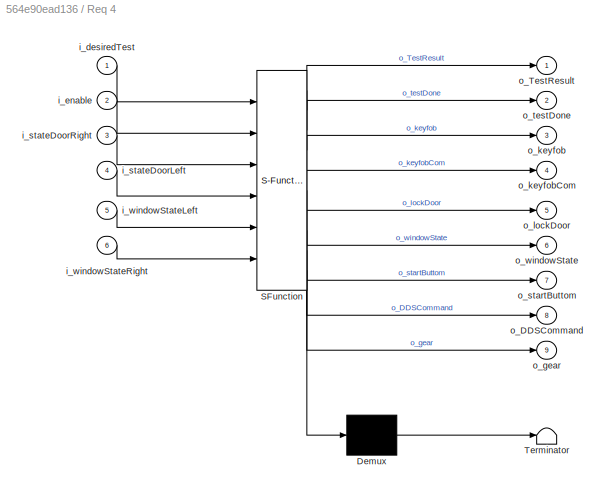
BLOCK [SubSystem] Req 4
  ErrorFcn = Stateflow.Translate.translate
  PermitHierarchicalResolution = ExplicitOnly
  Ports = [6, 9]
  RequestExecContextInheritance = off
  SFBlockType = Chart
  TreatAsAtomicUnit = on
BLOCK [Demux] Req 4/ Demux 
  Outputs = 1
  Ports = [1, 1]
BLOCK [S-Function] Req 4/ SFunction 
  EnableBusSupport = on
  FunctionName = sf_sfun
  PortCounts = [6 10]
  Ports = [6, 10]
  SFcnIsStateOwnerBlock = off
  SFunctionDeploymentMode = off
  Tag = Stateflow S-Function simulationfinal2 18
BLOCK [Terminator] Req 4/ Terminator 
BLOCK [Inport] Req 4/i_desiredTest
  IconDisplay = Port number
BLOCK [Inport] Req 4/i_enable
  IconDisplay = Port number
  Port = 2
BLOCK [Inport] Req 4/i_stateDoorLeft
  IconDisplay = Port number
  Port = 4
BLOCK [Inport] Req 4/i_stateDoorRight
  IconDisplay = Port number
  Port = 3
BLOCK [Inport] Req 4/i_windowStateLeft
  IconDisplay = Port number
  Port = 5
BLOCK [Inport] Req 4/i_windowStateRight
  IconDisplay = Port number
  Port = 6
BLOCK [Outport] Req 4/o_DDSCommand
  IconDisplay = Port number
  Port = 8
  VectorParamsAs1DForOutWhenUnconnected = on
BLOCK [Outport] Req 4/o_TestResult
  IconDisplay = Port number
  VectorParamsAs1DForOutWhenUnconnected = on
BLOCK [Outport] Req 4/o_gear
  IconDisplay = Port number
  Port = 9
  VectorParamsAs1DForOutWhenUnconnected = on
BLOCK [Outport] Req 4/o_keyfob
  IconDisplay = Port number
  Port = 3
  VectorParamsAs1DForOutWhenUnconnected = on
BLOCK [Outport] Req 4/o_keyfobCom
  IconDisplay = Port number
  Port = 4
  VectorParamsAs1DForOutWhenUnconnected = on
BLOCK [Outport] Req 4/o_lockDoor
  IconDisplay = Port number
  Port = 5
  VectorParamsAs1DForOutWhenUnconnected = on
BLOCK [Outport] Req 4/o_startButtom
  IconDisplay = Port number
  Port = 7
  VectorParamsAs1DForOutWhenUnconnected = on
BLOCK [Outport] Req 4/o_testDone
  IconDisplay = Port number
  Port = 2
  VectorParamsAs1DForOutWhenUnconnected = on
BLOCK [Outport] Req 4/o_windowState
  IconDisplay = Port number
  Port = 6
  VectorParamsAs1DForOutWhenUnconnected = on
BLOCK [SubSystem] Req10
  ErrorFcn = Stateflow.Translate.translate
  PermitHierarchicalResolution = ExplicitOnly
  Ports = [3, 5]
  RequestExecContextInheritance = off
  SFBlockType = Chart
  TreatAsAtomicUnit = on
BLOCK [Demux] Req10/ Demux 
  Outputs = 1
  Ports = [1, 1]
BLOCK [S-Function] Req10/ SFunction 
  EnableBusSupport = on
  FunctionName = sf_sfun
  PortCounts = [3 6]
  Ports = [3, 6]
  SFcnIsStateOwnerBlock = off
  SFunctionDeploymentMode = off
  Tag = Stateflow S-Function simulationfinal2 10
BLOCK [Terminator] Req10/ Terminator 
BLOCK [Inport] Req10/i_RearLamps
  IconDisplay = Port number
  Port = 3
BLOCK [Inport] Req10/i_desiredTest
  IconDisplay = Port number
  Port = 2
BLOCK [Inport] Req10/i_enable
  IconDisplay = Port number
BLOCK [Outport] Req10/o_TestResult
  IconDisplay = Port number
  VectorParamsAs1DForOutWhenUnconnected = on
BLOCK [Outport] Req10/o_brake
  IconDisplay = Port number
  Port = 3
  VectorParamsAs1DForOutWhenUnconnected = on
BLOCK [Outport] Req10/o_keyfob
  IconDisplay = Port number
  Port = 4
  VectorParamsAs1DForOutWhenUnconnected = on
BLOCK [Outport] Req10/o_keyfobcom
  IconDisplay = Port number
  Port = 5
  VectorParamsAs1DForOutWhenUnconnected = on
BLOCK [Outport] Req10/o_testDone
  IconDisplay = Port number
  Port = 2
  VectorParamsAs1DForOutWhenUnconnected = on
BLOCK [SubSystem] Req12
  ErrorFcn = Stateflow.Translate.translate
  PermitHierarchicalResolution = ExplicitOnly
  Ports = [4, 6]
  RequestExecContextInheritance = off
  SFBlockType = Chart
  TreatAsAtomicUnit = on
BLOCK [Demux] Req12/ Demux 
  Outputs = 1
  Ports = [1, 1]
BLOCK [S-Function] Req12/ SFunction 
  EnableBusSupport = on
  FunctionName = sf_sfun
  PortCounts = [4 7]
  Ports = [4, 7]
  SFcnIsStateOwnerBlock = off
  SFunctionDeploymentMode = off
  Tag = Stateflow S-Function simulationfinal2 11
BLOCK [Terminator] Req12/ Terminator 
BLOCK [Inport] Req12/i_IPCInd
  IconDisplay = Port number
  Port = 3
BLOCK [Outport] Req12/i_batteryLevel
  IconDisplay = Port number
  Port = 6
BLOCK [Inport] Req12/i_batterySocWarning
  IconDisplay = Port number
  Port = 4
BLOCK [Inport] Req12/i_desiredTest
  IconDisplay = Port number
  Port = 2
BLOCK [Inport] Req12/i_enable
  IconDisplay = Port number
BLOCK [Outport] Req12/o_TestResult
  IconDisplay = Port number
  VectorParamsAs1DForOutWhenUnconnected = on
BLOCK [Outport] Req12/o_doorCom
  IconDisplay = Port number
  Port = 5
  VectorParamsAs1DForOutWhenUnconnected = on
BLOCK [Outport] Req12/o_keyfob
  IconDisplay = Port number
  Port = 3
  VectorParamsAs1DForOutWhenUnconnected = on
BLOCK [Outport] Req12/o_keyfobcom
  IconDisplay = Port number
  Port = 4
  VectorParamsAs1DForOutWhenUnconnected = on
BLOCK [Outport] Req12/o_testDone
  IconDisplay = Port number
  Port = 2
  VectorParamsAs1DForOutWhenUnconnected = on
BLOCK [SubSystem] Req13
  ErrorFcn = Stateflow.Translate.translate
  PermitHierarchicalResolution = ExplicitOnly
  Ports = [3, 4]
  RequestExecContextInheritance = off
  SFBlockType = Chart
  TreatAsAtomicUnit = on
BLOCK [Demux] Req13/ Demux 
  Outputs = 1
  Ports = [1, 1]
BLOCK [S-Function] Req13/ SFunction 
  EnableBusSupport = on
  FunctionName = sf_sfun
  PortCounts = [3 5]
  Ports = [3, 5]
  SFcnIsStateOwnerBlock = off
  SFunctionDeploymentMode = off
  Tag = Stateflow S-Function simulationfinal2 12
BLOCK [Terminator] Req13/ Terminator 
BLOCK [Inport] Req13/i_desiredTest
  IconDisplay = Port number
  Port = 2
BLOCK [Inport] Req13/i_doorAjar
  IconDisplay = Port number
  Port = 3
BLOCK [Inport] Req13/i_enable
  IconDisplay = Port number
BLOCK [Outport] Req13/o_TestResult
  IconDisplay = Port number
  VectorParamsAs1DForOutWhenUnconnected = on
BLOCK [Outport] Req13/o_doorAjar
  IconDisplay = Port number
  Port = 3
  VectorParamsAs1DForOutWhenUnconnected = on
BLOCK [Outport] Req13/o_keyfobcommand
  IconDisplay = Port number
  Port = 4
  VectorParamsAs1DForOutWhenUnconnected = on
BLOCK [Outport] Req13/o_testDone
  IconDisplay = Port number
  Port = 2
  VectorParamsAs1DForOutWhenUnconnected = on
BLOCK [SubSystem] Req14
  ErrorFcn = Stateflow.Translate.translate
  PermitHierarchicalResolution = ExplicitOnly
  Ports = [5, 6]
  RequestExecContextInheritance = off
  SFBlockType = Chart
  TreatAsAtomicUnit = on
BLOCK [Demux] Req14/ Demux 
  Outputs = 1
  Ports = [1, 1]
BLOCK [S-Function] Req14/ SFunction 
  EnableBusSupport = on
  FunctionName = sf_sfun
  PortCounts = [5 7]
  Ports = [5, 7]
  SFcnIsStateOwnerBlock = off
  SFunctionDeploymentMode = off
  Tag = Stateflow S-Function simulationfinal2 1
BLOCK [Terminator] Req14/ Terminator 
BLOCK [Inport] Req14/i_desiredTest
  IconDisplay = Port number
  Port = 2
BLOCK [Inport] Req14/i_enable
  IconDisplay = Port number
BLOCK [Inport] Req14/i_motorStatus
  IconDisplay = Port number
  Port = 3
BLOCK [Inport] Req14/i_odometer
  IconDisplay = Port number
  Port = 4
BLOCK [Inport] Req14/i_speedmeter
  IconDisplay = Port number
  Port = 5
BLOCK [Outport] Req14/o_TestResult
  IconDisplay = Port number
  VectorParamsAs1DForOutWhenUnconnected = on
BLOCK [Outport] Req14/o_gear
  IconDisplay = Port number
  Port = 3
  VectorParamsAs1DForOutWhenUnconnected = on
BLOCK [Outport] Req14/o_keyfob
  IconDisplay = Port number
  Port = 4
  VectorParamsAs1DForOutWhenUnconnected = on
BLOCK [Outport] Req14/o_keyfobcom
  IconDisplay = Port number
  Port = 5
  VectorParamsAs1DForOutWhenUnconnected = on
BLOCK [Outport] Req14/o_startButtom
  IconDisplay = Port number
  Port = 6
  VectorParamsAs1DForOutWhenUnconnected = on
BLOCK [Outport] Req14/o_testDone
  IconDisplay = Port number
  Port = 2
  VectorParamsAs1DForOutWhenUnconnected = on
BLOCK [SubSystem] Req15
  ErrorFcn = Stateflow.Translate.translate
  PermitHierarchicalResolution = ExplicitOnly
  Ports = [4, 6]
  RequestExecContextInheritance = off
  SFBlockType = Chart
  TreatAsAtomicUnit = on
BLOCK [Demux] Req15/ Demux 
  Outputs = 1
  Ports = [1, 1]
BLOCK [S-Function] Req15/ SFunction 
  EnableBusSupport = on
  FunctionName = sf_sfun
  PortCounts = [4 7]
  Ports = [4, 7]
  SFcnIsStateOwnerBlock = off
  SFunctionDeploymentMode = off
  Tag = Stateflow S-Function simulationfinal2 13
BLOCK [Terminator] Req15/ Terminator 
BLOCK [Inport] Req15/i_desiredTest
  IconDisplay = Port number
  Port = 2
BLOCK [Inport] Req15/i_enable
  IconDisplay = Port number
BLOCK [Inport] Req15/i_gear
  IconDisplay = Port number
  Port = 4
BLOCK [Inport] Req15/i_motorStatus
  IconDisplay = Port number
  Port = 3
BLOCK [Outport] Req15/o_TestResult
  IconDisplay = Port number
  VectorParamsAs1DForOutWhenUnconnected = on
BLOCK [Outport] Req15/o_gear
  IconDisplay = Port number
  Port = 3
  VectorParamsAs1DForOutWhenUnconnected = on
BLOCK [Outport] Req15/o_keyfob
  IconDisplay = Port number
  Port = 4
  VectorParamsAs1DForOutWhenUnconnected = on
BLOCK [Outport] Req15/o_keyfobcom
  IconDisplay = Port number
  Port = 5
  VectorParamsAs1DForOutWhenUnconnected = on
BLOCK [Outport] Req15/o_startButtom
  IconDisplay = Port number
  Port = 6
  VectorParamsAs1DForOutWhenUnconnected = on
BLOCK [Outport] Req15/o_testDone
  IconDisplay = Port number
  Port = 2
  VectorParamsAs1DForOutWhenUnconnected = on
BLOCK [SubSystem] Req16
  ErrorFcn = Stateflow.Translate.translate
  PermitHierarchicalResolution = ExplicitOnly
  Ports = [6, 8]
  RequestExecContextInheritance = off
  SFBlockType = Chart
  TreatAsAtomicUnit = on
BLOCK [Demux] Req16/ Demux 
  Outputs = 1
  Ports = [1, 1]
BLOCK [S-Function] Req16/ SFunction 
  EnableBusSupport = on
  FunctionName = sf_sfun
  PortCounts = [6 9]
  Ports = [6, 9]
  SFcnIsStateOwnerBlock = off
  SFunctionDeploymentMode = off
  Tag = Stateflow S-Function simulationfinal2 14
BLOCK [Terminator] Req16/ Terminator 
BLOCK [Inport] Req16/i_desiredTest
  IconDisplay = Port number
  Port = 2
BLOCK [Inport] Req16/i_enable
  IconDisplay = Port number
BLOCK [Inport] Req16/i_headLampHigh
  IconDisplay = Port number
  Port = 6
BLOCK [Inport] Req16/i_headLampLowBeam
  IconDisplay = Port number
  Port = 5
BLOCK [Inport] Req16/i_headLampPark
  IconDisplay = Port number
  Port = 4
BLOCK [Inport] Req16/i_motorStatus
  IconDisplay = Port number
  Port = 3
BLOCK [Outport] Req16/o_TestResult
  IconDisplay = Port number
  VectorParamsAs1DForOutWhenUnconnected = on
BLOCK [Outport] Req16/o_gear
  IconDisplay = Port number
  Port = 8
  VectorParamsAs1DForOutWhenUnconnected = on
BLOCK [Outport] Req16/o_headLamp
  IconDisplay = Port number
  Port = 6
  VectorParamsAs1DForOutWhenUnconnected = on
BLOCK [Outport] Req16/o_keyfob
  IconDisplay = Port number
  Port = 5
  VectorParamsAs1DForOutWhenUnconnected = on
BLOCK [Outport] Req16/o_keyfobCom
  IconDisplay = Port number
  Port = 3
  VectorParamsAs1DForOutWhenUnconnected = on
BLOCK [Outport] Req16/o_levelluminosity
  IconDisplay = Port number
  Port = 7
  VectorParamsAs1DForOutWhenUnconnected = on
BLOCK [Outport] Req16/o_startButtom
  IconDisplay = Port number
  Port = 4
  VectorParamsAs1DForOutWhenUnconnected = on
BLOCK [Outport] Req16/o_testDone
  IconDisplay = Port number
  Port = 2
  VectorParamsAs1DForOutWhenUnconnected = on
BLOCK [SubSystem] Req17
  ErrorFcn = Stateflow.Translate.translate
  PermitHierarchicalResolution = ExplicitOnly
  Ports = [3, 4]
  RequestExecContextInheritance = off
  SFBlockType = Chart
  TreatAsAtomicUnit = on
BLOCK [Demux] Req17/ Demux 
  Outputs = 1
  Ports = [1, 1]
BLOCK [S-Function] Req17/ SFunction 
  EnableBusSupport = on
  FunctionName = sf_sfun
  PortCounts = [3 5]
  Ports = [3, 5]
  SFcnIsStateOwnerBlock = off
  SFunctionDeploymentMode = off
  Tag = Stateflow S-Function simulationfinal2 15
BLOCK [Terminator] Req17/ Terminator 
BLOCK [Inport] Req17/i_desiredTest
  IconDisplay = Port number
  Port = 2
BLOCK [Inport] Req17/i_enable
  IconDisplay = Port number
BLOCK [Inport] Req17/i_lamp_value
  IconDisplay = Port number
  Port = 3
BLOCK [Outport] Req17/o_TestResult
  IconDisplay = Port number
  VectorParamsAs1DForOutWhenUnconnected = on
BLOCK [Outport] Req17/o_ketfob
  IconDisplay = Port number
  Port = 3
  VectorParamsAs1DForOutWhenUnconnected = on
BLOCK [Outport] Req17/o_keyfobcom
  IconDisplay = Port number
  Port = 4
  VectorParamsAs1DForOutWhenUnconnected = on
BLOCK [Outport] Req17/o_testDone
  IconDisplay = Port number
  Port = 2
  VectorParamsAs1DForOutWhenUnconnected = on
BLOCK [SubSystem] Req18
  ErrorFcn = Stateflow.Translate.translate
  PermitHierarchicalResolution = ExplicitOnly
  Ports = [3, 3]
  RequestExecContextInheritance = off
  SFBlockType = Chart
  TreatAsAtomicUnit = on
BLOCK [Demux] Req18/ Demux 
  Outputs = 1
  Ports = [1, 1]
BLOCK [S-Function] Req18/ SFunction 
  EnableBusSupport = on
  FunctionName = sf_sfun
  PortCounts = [3 4]
  Ports = [3, 4]
  SFcnIsStateOwnerBlock = off
  SFunctionDeploymentMode = off
  Tag = Stateflow S-Function simulationfinal2 16
BLOCK [Terminator] Req18/ Terminator 
BLOCK [Inport] Req18/i_DRL
  IconDisplay = Port number
  Port = 3
BLOCK [Inport] Req18/i_desiredTest
  IconDisplay = Port number
  Port = 2
BLOCK [Inport] Req18/i_enable
  IconDisplay = Port number
BLOCK [Outport] Req18/o_TestResult
  IconDisplay = Port number
  VectorParamsAs1DForOutWhenUnconnected = on
BLOCK [Outport] Req18/o_keyfobcom
  IconDisplay = Port number
  Port = 3
  VectorParamsAs1DForOutWhenUnconnected = on
BLOCK [Outport] Req18/o_testDone
  IconDisplay = Port number
  Port = 2
  VectorParamsAs1DForOutWhenUnconnected = on
BLOCK [SubSystem] Req19
  ErrorFcn = Stateflow.Translate.translate
  PermitHierarchicalResolution = ExplicitOnly
  Ports = [6, 8]
  RequestExecContextInheritance = off
  SFBlockType = Chart
  TreatAsAtomicUnit = on
BLOCK [Demux] Req19/ Demux 
  Outputs = 1
  Ports = [1, 1]
BLOCK [S-Function] Req19/ SFunction 
  EnableBusSupport = on
  FunctionName = sf_sfun
  PortCounts = [6 9]
  Ports = [6, 9]
  SFcnIsStateOwnerBlock = off
  SFunctionDeploymentMode = off
  Tag = Stateflow S-Function simulationfinal2 19
BLOCK [Terminator] Req19/ Terminator 
BLOCK [Inport] Req19/i_LeftBackDoorLockState
  IconDisplay = Port number
  Port = 5
BLOCK [Inport] Req19/i_RightBackDoorLockState
  IconDisplay = Port number
  Port = 6
BLOCK [Inport] Req19/i_desiredTest
  IconDisplay = Port number
  Port = 2
BLOCK [Inport] Req19/i_enable
  IconDisplay = Port number
BLOCK [Inport] Req19/i_motorStatus
  IconDisplay = Port number
  Port = 3
BLOCK [Inport] Req19/i_speed
  IconDisplay = Port number
  Port = 4
BLOCK [Outport] Req19/o_TestResult
  IconDisplay = Port number
  VectorParamsAs1DForOutWhenUnconnected = on
BLOCK [Outport] Req19/o_epb
  IconDisplay = Port number
  Port = 8
BLOCK [Outport] Req19/o_gear
  IconDisplay = Port number
  Port = 3
  VectorParamsAs1DForOutWhenUnconnected = on
BLOCK [Outport] Req19/o_keyfob
  IconDisplay = Port number
  Port = 4
  VectorParamsAs1DForOutWhenUnconnected = on
BLOCK [Outport] Req19/o_keyfobcom
  IconDisplay = Port number
  Port = 5
  VectorParamsAs1DForOutWhenUnconnected = on
BLOCK [Outport] Req19/o_startButtom
  IconDisplay = Port number
  Port = 6
  VectorParamsAs1DForOutWhenUnconnected = on
BLOCK [Outport] Req19/o_testDone
  IconDisplay = Port number
  Port = 2
  VectorParamsAs1DForOutWhenUnconnected = on
BLOCK [Outport] Req19/o_throttle
  IconDisplay = Port number
  Port = 7
  VectorParamsAs1DForOutWhenUnconnected = on
BLOCK [SubSystem] Req21
  ErrorFcn = Stateflow.Translate.translate
  PermitHierarchicalResolution = ExplicitOnly
  Ports = [5, 8]
  RequestExecContextInheritance = off
  SFBlockType = Chart
  TreatAsAtomicUnit = on
BLOCK [Demux] Req21/ Demux 
  Outputs = 1
  Ports = [1, 1]
BLOCK [S-Function] Req21/ SFunction 
  EnableBusSupport = on
  FunctionName = sf_sfun
  PortCounts = [5 9]
  Ports = [5, 9]
  SFcnIsStateOwnerBlock = off
  SFunctionDeploymentMode = off
  Tag = Stateflow S-Function simulationfinal2 21
BLOCK [Terminator] Req21/ Terminator 
BLOCK [Inport] Req21/i_CarLockState
  IconDisplay = Port number
  Port = 3
BLOCK [Inport] Req21/i_MotorStatus
  IconDisplay = Port number
  Port = 4
BLOCK [Inport] Req21/i_desiredTest
  IconDisplay = Port number
  Port = 2
BLOCK [Inport] Req21/i_enable
  IconDisplay = Port number
BLOCK [Inport] Req21/i_pcmKeyCodeTest
  IconDisplay = Port number
  Port = 5
BLOCK [Outport] Req21/o_TestResult
  IconDisplay = Port number
  VectorParamsAs1DForOutWhenUnconnected = on
BLOCK [Outport] Req21/o_doorAction
  IconDisplay = Port number
  Port = 8
BLOCK [Outport] Req21/o_gear
  IconDisplay = Port number
  Port = 3
  VectorParamsAs1DForOutWhenUnconnected = on
BLOCK [Outport] Req21/o_keyfob
  IconDisplay = Port number
  Port = 4
  VectorParamsAs1DForOutWhenUnconnected = on
BLOCK [Outport] Req21/o_keyfobCode
  IconDisplay = Port number
  Port = 7
BLOCK [Outport] Req21/o_keyfobcommand
  IconDisplay = Port number
  Port = 5
  VectorParamsAs1DForOutWhenUnconnected = on
BLOCK [Outport] Req21/o_startButtom
  IconDisplay = Port number
  Port = 6
  VectorParamsAs1DForOutWhenUnconnected = on
BLOCK [Outport] Req21/o_testDone
  IconDisplay = Port number
  Port = 2
  VectorParamsAs1DForOutWhenUnconnected = on
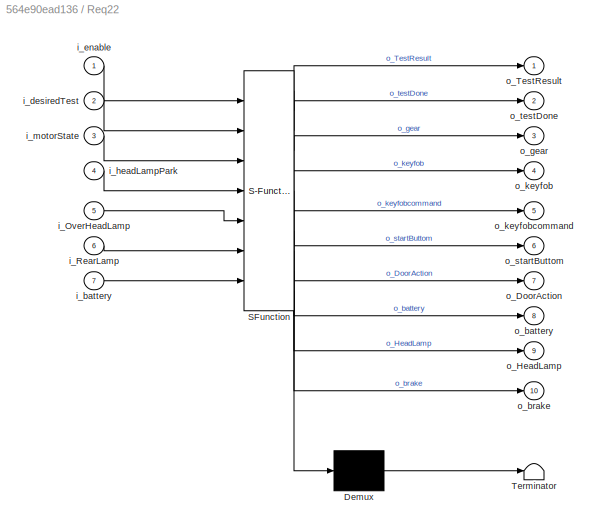
BLOCK [SubSystem] Req22
  ErrorFcn = Stateflow.Translate.translate
  PermitHierarchicalResolution = ExplicitOnly
  Ports = [7, 10]
  RequestExecContextInheritance = off
  SFBlockType = Chart
  TreatAsAtomicUnit = on
BLOCK [Demux] Req22/ Demux 
  Outputs = 1
  Ports = [1, 1]
BLOCK [S-Function] Req22/ SFunction 
  EnableBusSupport = on
  FunctionName = sf_sfun
  PortCounts = [7 11]
  Ports = [7, 11]
  SFcnIsStateOwnerBlock = off
  SFunctionDeploymentMode = off
  Tag = Stateflow S-Function simulationfinal2 22
BLOCK [Terminator] Req22/ Terminator 
BLOCK [Inport] Req22/i_OverHeadLamp
  IconDisplay = Port number
  Port = 5
BLOCK [Inport] Req22/i_RearLamp
  IconDisplay = Port number
  Port = 6
BLOCK [Inport] Req22/i_battery
  IconDisplay = Port number
  Port = 7
BLOCK [Inport] Req22/i_desiredTest
  IconDisplay = Port number
  Port = 2
BLOCK [Inport] Req22/i_enable
  IconDisplay = Port number
BLOCK [Inport] Req22/i_headLampPark
  IconDisplay = Port number
  Port = 4
BLOCK [Inport] Req22/i_motorState
  IconDisplay = Port number
  Port = 3
BLOCK [Outport] Req22/o_DoorAction
  IconDisplay = Port number
  Port = 7
BLOCK [Outport] Req22/o_HeadLamp
  IconDisplay = Port number
  Port = 9
BLOCK [Outport] Req22/o_TestResult
  IconDisplay = Port number
  VectorParamsAs1DForOutWhenUnconnected = on
BLOCK [Outport] Req22/o_battery
  IconDisplay = Port number
  Port = 8
BLOCK [Outport] Req22/o_brake
  IconDisplay = Port number
  Port = 10
BLOCK [Outport] Req22/o_gear
  IconDisplay = Port number
  Port = 3
  VectorParamsAs1DForOutWhenUnconnected = on
BLOCK [Outport] Req22/o_keyfob
  IconDisplay = Port number
  Port = 4
  VectorParamsAs1DForOutWhenUnconnected = on
BLOCK [Outport] Req22/o_keyfobcommand
  IconDisplay = Port number
  Port = 5
  VectorParamsAs1DForOutWhenUnconnected = on
BLOCK [Outport] Req22/o_startButtom
  IconDisplay = Port number
  Port = 6
  VectorParamsAs1DForOutWhenUnconnected = on
BLOCK [Outport] Req22/o_testDone
  IconDisplay = Port number
  Port = 2
  VectorParamsAs1DForOutWhenUnconnected = on
BLOCK [SubSystem] Req23
  ErrorFcn = Stateflow.Translate.translate
  PermitHierarchicalResolution = ExplicitOnly
  Ports = [3, 4]
  RequestExecContextInheritance = off
  SFBlockType = Chart
  TreatAsAtomicUnit = on
BLOCK [Demux] Req23/ Demux 
  Outputs = 1
  Ports = [1, 1]
BLOCK [S-Function] Req23/ SFunction 
  EnableBusSupport = on
  FunctionName = sf_sfun
  PortCounts = [3 5]
  Ports = [3, 5]
  SFcnIsStateOwnerBlock = off
  SFunctionDeploymentMode = off
  Tag = Stateflow S-Function simulationfinal2 23
BLOCK [Terminator] Req23/ Terminator 
BLOCK [Inport] Req23/i_CarLockStatus
  IconDisplay = Port number
  Port = 3
BLOCK [Inport] Req23/i_desiredTest
  IconDisplay = Port number
  Port = 2
BLOCK [Inport] Req23/i_enable
  IconDisplay = Port number
BLOCK [Outport] Req23/o_TestResult
  IconDisplay = Port number
  VectorParamsAs1DForOutWhenUnconnected = on
BLOCK [Outport] Req23/o_keyfobCode
  IconDisplay = Port number
  Port = 4
BLOCK [Outport] Req23/o_keyfobcommand
  IconDisplay = Port number
  Port = 3
  VectorParamsAs1DForOutWhenUnconnected = on
BLOCK [Outport] Req23/o_testDone
  IconDisplay = Port number
  Port = 2
  VectorParamsAs1DForOutWhenUnconnected = on
BLOCK [SubSystem] Req24
  ErrorFcn = Stateflow.Translate.translate
  PermitHierarchicalResolution = ExplicitOnly
  Ports = [5, 7]
  RequestExecContextInheritance = off
  SFBlockType = Chart
  TreatAsAtomicUnit = on
BLOCK [Demux] Req24/ Demux 
  Outputs = 1
  Ports = [1, 1]
BLOCK [S-Function] Req24/ SFunction 
  EnableBusSupport = on
  FunctionName = sf_sfun
  PortCounts = [5 8]
  Ports = [5, 8]
  SFcnIsStateOwnerBlock = off
  SFunctionDeploymentMode = off
  Tag = Stateflow S-Function simulationfinal2 24
BLOCK [Terminator] Req24/ Terminator 
BLOCK [Inport] Req24/i_CarLockStatus
  IconDisplay = Port number
  Port = 5
BLOCK [Inport] Req24/i_desiredTest
  IconDisplay = Port number
  Port = 2
BLOCK [Inport] Req24/i_enable
  IconDisplay = Port number
BLOCK [Inport] Req24/i_hoodState
  IconDisplay = Port number
  Port = 3
BLOCK [Inport] Req24/i_trunkState
  IconDisplay = Port number
  Port = 4
BLOCK [Outport] Req24/o_TestResult
  IconDisplay = Port number
  VectorParamsAs1DForOutWhenUnconnected = on
BLOCK [Outport] Req24/o_hoodState
  IconDisplay = Port number
  Port = 6
BLOCK [Outport] Req24/o_keyfob
  IconDisplay = Port number
  Port = 7
BLOCK [Outport] Req24/o_keyfobCode
  IconDisplay = Port number
  Port = 4
BLOCK [Outport] Req24/o_keyfobcommand
  IconDisplay = Port number
  Port = 3
  VectorParamsAs1DForOutWhenUnconnected = on
BLOCK [Outport] Req24/o_testDone
  IconDisplay = Port number
  Port = 2
  VectorParamsAs1DForOutWhenUnconnected = on
BLOCK [Outport] Req24/o_trunkState
  IconDisplay = Port number
  Port = 5
BLOCK [SubSystem] Req25
  ErrorFcn = Stateflow.Translate.translate
  PermitHierarchicalResolution = ExplicitOnly
  Ports = [3, 3]
  RequestExecContextInheritance = off
  SFBlockType = Chart
  TreatAsAtomicUnit = on
BLOCK [Demux] Req25/ Demux 
  Outputs = 1
  Ports = [1, 1]
BLOCK [S-Function] Req25/ SFunction 
  EnableBusSupport = on
  FunctionName = sf_sfun
  PortCounts = [3 4]
  Ports = [3, 4]
  SFcnIsStateOwnerBlock = off
  SFunctionDeploymentMode = off
  Tag = Stateflow S-Function simulationfinal2 25
BLOCK [Terminator] Req25/ Terminator 
BLOCK [Inport] Req25/i_CarLockStatus
  IconDisplay = Port number
  Port = 3
BLOCK [Inport] Req25/i_desiredTest
  IconDisplay = Port number
  Port = 2
BLOCK [Inport] Req25/i_enable
  IconDisplay = Port number
BLOCK [Outport] Req25/o_TestResult
  IconDisplay = Port number
  VectorParamsAs1DForOutWhenUnconnected = on
BLOCK [Outport] Req25/o_keyfobCode
  IconDisplay = Port number
  Port = 3
BLOCK [Outport] Req25/o_testDone
  IconDisplay = Port number
  Port = 2
  VectorParamsAs1DForOutWhenUnconnected = on
BLOCK [SubSystem] Req26
  ErrorFcn = Stateflow.Translate.translate
  PermitHierarchicalResolution = ExplicitOnly
  Ports = [5, 4]
  RequestExecContextInheritance = off
  SFBlockType = Chart
  TreatAsAtomicUnit = on
BLOCK [Demux] Req26/ Demux 
  Outputs = 1
  Ports = [1, 1]
BLOCK [S-Function] Req26/ SFunction 
  EnableBusSupport = on
  FunctionName = sf_sfun
  PortCounts = [5 5]
  Ports = [5, 5]
  SFcnIsStateOwnerBlock = off
  SFunctionDeploymentMode = off
  Tag = Stateflow S-Function simulationfinal2 26
BLOCK [Terminator] Req26/ Terminator 
BLOCK [Inport] Req26/i_CarLockStatus
  IconDisplay = Port number
  Port = 3
BLOCK [Inport] Req26/i_desiredTest
  IconDisplay = Port number
  Port = 2
BLOCK [Inport] Req26/i_distance
  IconDisplay = Port number
  Port = 4
BLOCK [Inport] Req26/i_enable
  IconDisplay = Port number
BLOCK [Inport] Req26/i_gasolineQty
  IconDisplay = Port number
  Port = 5
BLOCK [Outport] Req26/o_TestResult
  IconDisplay = Port number
  VectorParamsAs1DForOutWhenUnconnected = on
BLOCK [Outport] Req26/o_keyfobCode
  IconDisplay = Port number
  Port = 4
BLOCK [Outport] Req26/o_keyfobcommand
  IconDisplay = Port number
  Port = 3
  VectorParamsAs1DForOutWhenUnconnected = on
BLOCK [Outport] Req26/o_testDone
  IconDisplay = Port number
  Port = 2
  VectorParamsAs1DForOutWhenUnconnected = on
BLOCK [SubSystem] Req3
  ErrorFcn = Stateflow.Translate.translate
  PermitHierarchicalResolution = ExplicitOnly
  Ports = [8, 7]
  RequestExecContextInheritance = off
  SFBlockType = Chart
  TreatAsAtomicUnit = on
BLOCK [Demux] Req3/ Demux 
  Outputs = 1
  Ports = [1, 1]
BLOCK [S-Function] Req3/ SFunction 
  EnableBusSupport = on
  FunctionName = sf_sfun
  PortCounts = [8 8]
  Ports = [8, 8]
  SFcnIsStateOwnerBlock = off
  SFunctionDeploymentMode = off
  Tag = Stateflow S-Function simulationfinal2 7
BLOCK [Terminator] Req3/ Terminator 
BLOCK [Inport] Req3/i_LeftDoorBackLockState
  IconDisplay = Port number
  Port = 5
BLOCK [Inport] Req3/i_LeftWindowBackState
  IconDisplay = Port number
  Port = 7
BLOCK [Inport] Req3/i_RightDoorBackLockState
  IconDisplay = Port number
  Port = 6
BLOCK [Inport] Req3/i_RightWindowBackState
  IconDisplay = Port number
  Port = 8
BLOCK [Inport] Req3/i_desiredTest
  IconDisplay = Port number
  Port = 2
BLOCK [Inport] Req3/i_enable
  IconDisplay = Port number
BLOCK [Inport] Req3/i_mirrorLeft
  IconDisplay = Port number
  Port = 3
BLOCK [Inport] Req3/i_mirrorRight
  IconDisplay = Port number
  Port = 4
BLOCK [Outport] Req3/o_TestResult
  IconDisplay = Port number
  VectorParamsAs1DForOutWhenUnconnected = on
BLOCK [Outport] Req3/o_ddsCommand
  IconDisplay = Port number
  Port = 4
  VectorParamsAs1DForOutWhenUnconnected = on
BLOCK [Outport] Req3/o_gear
  IconDisplay = Port number
  Port = 7
  VectorParamsAs1DForOutWhenUnconnected = on
BLOCK [Outport] Req3/o_keyfob
  IconDisplay = Port number
  Port = 3
  VectorParamsAs1DForOutWhenUnconnected = on
BLOCK [Outport] Req3/o_keyfobCommand
  IconDisplay = Port number
  Port = 5
  VectorParamsAs1DForOutWhenUnconnected = on
BLOCK [Outport] Req3/o_startButtom
  IconDisplay = Port number
  Port = 6
  VectorParamsAs1DForOutWhenUnconnected = on
BLOCK [Outport] Req3/o_testDone
  IconDisplay = Port number
  Port = 2
  VectorParamsAs1DForOutWhenUnconnected = on
BLOCK [SubSystem] Req6 and Req 7
  ErrorFcn = Stateflow.Translate.translate
  PermitHierarchicalResolution = ExplicitOnly
  Ports = [3, 7]
  RequestExecContextInheritance = off
  SFBlockType = Chart
  TreatAsAtomicUnit = on
BLOCK [Demux] Req6 and Req 7/ Demux 
  Outputs = 1
  Ports = [1, 1]
BLOCK [S-Function] Req6 and Req 7/ SFunction 
  EnableBusSupport = on
  FunctionName = sf_sfun
  PortCounts = [3 8]
  Ports = [3, 8]
  SFcnIsStateOwnerBlock = off
  SFunctionDeploymentMode = off
  Tag = Stateflow S-Function simulationfinal2 8
BLOCK [Terminator] Req6 and Req 7/ Terminator 
BLOCK [Inport] Req6 and Req 7/i_DesiredTest
  IconDisplay = Port number
  Port = 2
BLOCK [Inport] Req6 and Req 7/i_HeadLamp
  IconDisplay = Port number
  Port = 3
BLOCK [Inport] Req6 and Req 7/i_enable
  IconDisplay = Port number
BLOCK [Outport] Req6 and Req 7/o_TestResult
  IconDisplay = Port number
  VectorParamsAs1DForOutWhenUnconnected = on
BLOCK [Outport] Req6 and Req 7/o_door
  IconDisplay = Port number
  Port = 7
  VectorParamsAs1DForOutWhenUnconnected = on
BLOCK [Outport] Req6 and Req 7/o_gear
  IconDisplay = Port number
  Port = 6
  VectorParamsAs1DForOutWhenUnconnected = on
BLOCK [Outport] Req6 and Req 7/o_keyCommand
  IconDisplay = Port number
  Port = 3
  VectorParamsAs1DForOutWhenUnconnected = on
BLOCK [Outport] Req6 and Req 7/o_keyfob
  IconDisplay = Port number
  Port = 4
  VectorParamsAs1DForOutWhenUnconnected = on
BLOCK [Outport] Req6 and Req 7/o_startButtom
  IconDisplay = Port number
  Port = 5
  VectorParamsAs1DForOutWhenUnconnected = on
BLOCK [Outport] Req6 and Req 7/o_testDone
  IconDisplay = Port number
  Port = 2
  VectorParamsAs1DForOutWhenUnconnected = on
BLOCK [SubSystem] Req9
  ErrorFcn = Stateflow.Translate.translate
  PermitHierarchicalResolution = ExplicitOnly
  Ports = [3, 6]
  RequestExecContextInheritance = off
  SFBlockType = Chart
  TreatAsAtomicUnit = on
BLOCK [Demux] Req9/ Demux 
  Outputs = 1
  Ports = [1, 1]
BLOCK [S-Function] Req9/ SFunction 
  EnableBusSupport = on
  FunctionName = sf_sfun
  PortCounts = [3 7]
  Ports = [3, 7]
  SFcnIsStateOwnerBlock = off
  SFunctionDeploymentMode = off
  Tag = Stateflow S-Function simulationfinal2 9
BLOCK [Terminator] Req9/ Terminator 
BLOCK [Inport] Req9/i_desiredTest
  IconDisplay = Port number
  Port = 2
BLOCK [Inport] Req9/i_enable
  IconDisplay = Port number
BLOCK [Inport] Req9/i_motorState
  IconDisplay = Port number
  Port = 3
BLOCK [Outport] Req9/o_TestResult
  IconDisplay = Port number
  VectorParamsAs1DForOutWhenUnconnected = on
BLOCK [Outport] Req9/o_gear
  IconDisplay = Port number
  Port = 3
  VectorParamsAs1DForOutWhenUnconnected = on
BLOCK [Outport] Req9/o_keyfob
  IconDisplay = Port number
  Port = 4
  VectorParamsAs1DForOutWhenUnconnected = on
BLOCK [Outport] Req9/o_keyfobcommand
  IconDisplay = Port number
  Port = 5
  VectorParamsAs1DForOutWhenUnconnected = on
BLOCK [Outport] Req9/o_startButtom
  IconDisplay = Port number
  Port = 6
  VectorParamsAs1DForOutWhenUnconnected = on
BLOCK [Outport] Req9/o_testDone
  IconDisplay = Port number
  Port = 2
  VectorParamsAs1DForOutWhenUnconnected = on
BLOCK [Inport] RunTest
  IconDisplay = Port number
  OutDataTypeStr = double
  Port = 26
BLOCK [SubSystem] SelectTest
  ErrorFcn = Stateflow.Translate.translate
  PermitHierarchicalResolution = ExplicitOnly
  Ports = [4, 4]
  RequestExecContextInheritance = off
  SFBlockType = Chart
  TreatAsAtomicUnit = on
BLOCK [Demux] SelectTest/ Demux 
  Outputs = 1
  Ports = [1, 1]
BLOCK [S-Function] SelectTest/ SFunction 
  EnableBusSupport = on
  FunctionName = sf_sfun
  PortCounts = [4 5]
  Ports = [4, 5]
  SFcnIsStateOwnerBlock = off
  SFunctionDeploymentMode = off
  Tag = Stateflow S-Function simulationfinal2 3
BLOCK [Terminator] SelectTest/ Terminator 
BLOCK [Inport] SelectTest/i_done
  IconDisplay = Port number
  Port = 3
BLOCK [Inport] SelectTest/i_enable
  IconDisplay = Port number
  Port = 2
BLOCK [Inport] SelectTest/i_req
  IconDisplay = Port number
BLOCK [Inport] SelectTest/i_testResult
  IconDisplay = Port number
  Port = 4
BLOCK [Outport] SelectTest/o_enable
  IconDisplay = Port number
  Port = 2
  VectorParamsAs1DForOutWhenUnconnected = on
BLOCK [Outport] SelectTest/o_req
  IconDisplay = Port number
  VectorParamsAs1DForOutWhenUnconnected = on
BLOCK [Outport] SelectTest/o_testEnd
  IconDisplay = Port number
  Port = 4
  VectorParamsAs1DForOutWhenUnconnected = on
BLOCK [Outport] SelectTest/o_testResult
  IconDisplay = Port number
  Port = 3
  VectorParamsAs1DForOutWhenUnconnected = on
BLOCK [Selector] Selector
  IndexOptions = Index vector (port)
  Indices = [1 18]
  InputPortWidth = 18
  OutputSizes = 1
  Ports = [2, 1]
BLOCK [Selector] Selector1
  IndexOptions = Index vector (port)
  Indices = [1 3]
  InputPortWidth = 18
  OutputSizes = 1
  Ports = [2, 1]
BLOCK [Selector] Selector11
  IndexOptions = Index vector (port)
  Indices = [1 3]
  InputPortWidth = 18
  OutputSizes = 1
  Ports = [2, 1]
BLOCK [Selector] Selector12
  IndexOptions = Index vector (port)
  Indices = [1 3]
  InputPortWidth = 18
  OutputSizes = 1
  Ports = [2, 1]
BLOCK [Selector] Selector13
  IndexOptions = Index vector (port)
  Indices = [1 3]
  InputPortWidth = 18
  OutputSizes = 1
  Ports = [2, 1]
BLOCK [Selector] Selector2
  IndexOptions = Index vector (port)
  Indices = [1 3]
  InputPortWidth = 18
  OutputSizes = 1
  Ports = [2, 1]
BLOCK [Selector] Selector3
  IndexOptions = Index vector (port)
  Indices = [1 3]
  InputPortWidth = 18
  OutputSizes = 1
  Ports = [2, 1]
BLOCK [Selector] Selector4
  IndexOptions = Index vector (port)
  Indices = [1 3]
  InputPortWidth = 18
  OutputSizes = 1
  Ports = [2, 1]
BLOCK [Selector] Selector5
  IndexOptions = Index vector (port)
  Indices = [1 3]
  InputPortWidth = 18
  OutputSizes = 1
  Ports = [2, 1]
BLOCK [Selector] Selector6
  IndexOptions = Index vector (port)
  Indices = [1 3]
  InputPortWidth = 18
  OutputSizes = 1
  Ports = [2, 1]
BLOCK [Selector] Selector7
  IndexOptions = Index vector (port)
  Indices = [1 3]
  InputPortWidth = 18
  OutputSizes = 1
  Ports = [2, 1]
BLOCK [Selector] Selector8
  IndexOptions = Index vector (port)
  Indices = [1 3]
  InputPortWidth = 18
  OutputSizes = 1
  Ports = [2, 1]
BLOCK [Selector] Selector9
  IndexOptions = Index vector (port)
  Indices = [1 3]
  InputPortWidth = 18
  OutputSizes = 1
  Ports = [2, 1]
BLOCK [Inport] SpeedometerIn
  IconDisplay = Port number
  OutDataTypeStr = uint8
  Port = 6
BLOCK [Outport] StartButtomOut
  IconDisplay = Port number
  Port = 5
  VectorParamsAs1DForOutWhenUnconnected = on
BLOCK [Inport] SyncStatusIn
  IconDisplay = Port number
  OutDataTypeStr = int8
  Port = 3
BLOCK [SubSystem] SyncWelcomeFeature "Req 11"
  ErrorFcn = Stateflow.Translate.translate
  PermitHierarchicalResolution = ExplicitOnly
  Ports = [3, 4]
  RequestExecContextInheritance = off
  SFBlockType = Chart
  TreatAsAtomicUnit = on
BLOCK [Demux] SyncWelcomeFeature "Req 11"/ Demux 
  Outputs = 1
  Ports = [1, 1]
BLOCK [S-Function] SyncWelcomeFeature "Req 11"/ SFunction 
  EnableBusSupport = on
  FunctionName = sf_sfun
  PortCounts = [3 5]
  Ports = [3, 5]
  SFcnIsStateOwnerBlock = off
  SFunctionDeploymentMode = off
  Tag = Stateflow S-Function simulationfinal2 5
BLOCK [Terminator] SyncWelcomeFeature "Req 11"/ Terminator 
BLOCK [Inport] SyncWelcomeFeature "Req 11"/i_Sync
  IconDisplay = Port number
  Port = 3
BLOCK [Inport] SyncWelcomeFeature "Req 11"/i_desiredTest
  IconDisplay = Port number
BLOCK [Inport] SyncWelcomeFeature "Req 11"/i_enable
  IconDisplay = Port number
  Port = 2
BLOCK [Outport] SyncWelcomeFeature "Req 11"/o_KeyfobCommand
  IconDisplay = Port number
  Port = 4
  VectorParamsAs1DForOutWhenUnconnected = on
BLOCK [Outport] SyncWelcomeFeature "Req 11"/o_TestResult
  IconDisplay = Port number
  VectorParamsAs1DForOutWhenUnconnected = on
BLOCK [Outport] SyncWelcomeFeature "Req 11"/o_openTheDoor
  IconDisplay = Port number
  Port = 3
  VectorParamsAs1DForOutWhenUnconnected = on
BLOCK [Outport] SyncWelcomeFeature "Req 11"/o_testDone
  IconDisplay = Port number
  Port = 2
  VectorParamsAs1DForOutWhenUnconnected = on
BLOCK [Terminator] Terminator
BLOCK [Terminator] Terminator1
BLOCK [Inport] TestNumber
  IconDisplay = Port number
  OutDataTypeStr = double
  Port = 25
  SignalType = real
BLOCK [Outport] TrunkActionOut
  IconDisplay = Port number
  Port = 19
  VectorParamsAs1DForOutWhenUnconnected = on
BLOCK [Inport] TurnLampsIn
  IconDisplay = Port number
  OutDataTypeStr = int8
  Port = 10
BLOCK [Outport] WindowLeftOut
  IconDisplay = Port number
  Port = 13
  VectorParamsAs1DForOutWhenUnconnected = on
BLOCK [Outport] WindowRightOut
  IconDisplay = Port number
  Port = 14
  VectorParamsAs1DForOutWhenUnconnected = on
BLOCK [Inport] WindowsBackLeftIn
  IconDisplay = Port number
  OutDataTypeStr = int8
  Port = 15
BLOCK [Inport] WindowsBackRightIn
  IconDisplay = Port number
  OutDataTypeStr = int8
  Port = 16
BLOCK [Inport] WindowsFrontLeftIn
  IconDisplay = Port number
  OutDataTypeStr = int8
  Port = 13
BLOCK [Inport] WindowsFrontRightIn
  IconDisplay = Port number
  OutDataTypeStr = int8
  Port = 14
BLOCK [Inport] hoodIn
  IconDisplay = Port number
  OutDataTypeStr = int8
  Port = 30
BLOCK [Outport] throttleOut
  IconDisplay = Port number
  Port = 27
  VectorParamsAs1DForOutWhenUnconnected = on
BLOCK [Inport] trunkIn
  IconDisplay = Port number
  OutDataTypeStr = int8
  Port = 29
ANNOTATION (root): Multiplexers responsible for redirect of the signal from test modules to select module
ANNOTATION (root): Signals Output to the system modules
ANNOTATION (root): Signals input from the system modules
ANNOTATION (root): This area contains the Select Module and the constants responsible for getting the test number and the begging signal from .m file.
ANNOTATION (root): Modules Test
ANNOTATION (root): Mux to output signals
ANNOTATION (root): Requeriments Sprint 1 .
ANNOTATION (root): Test modules .
ANNOTATION (root): This area contains the multiplexers responsible for redirect the output signals from of test is running.
LINE "Req 1":1 -> Memory2:1
LINE "Req 1":2 -> Memory3:1
LINE "Req 1":3 -> Goto78:1
LINE "Req 1":4 -> Goto16:1
LINE "Req 2":1 -> Memory6:1
LINE "Req 2":2 -> Memory7:1
LINE "Req 2":3 -> Goto40:1
LINE "Req 2":4 -> Goto52:1
LINE "Req 2":5 -> Goto53:1
LINE "Req 2":6 -> Goto54:1
LINE "Req 2":7 -> Goto98:1
LINE AjarDoorIndicatorIn:1 -> Bus Creator2:3
LINE BatteryInput:1 -> Goto157:1
LINE BatterySocIn:1 -> Bus Creator2:6
LINE Bus Creator1:1 -> Goto3:1
LINE Bus Creator2:1 -> Goto4:1
LINE Bus Creator3:1 -> Goto5:1
LINE Bus Creator4:1 -> Goto71:1
LINE Bus Creator5:1 -> Goto126:1
LINE Bus Creator:1 -> Goto2:1
LINE Bus Selector10:1 -> Req6 and Req 7:3
LINE Bus Selector11:1 -> KeyfobS1Out:1
LINE Bus Selector11:2 -> KeyfobS2Out:1
LINE Bus Selector11:3 -> KeyfobS3Out:1
LINE Bus Selector12:1 -> Req19:5
LINE Bus Selector12:2 -> Req19:6
LINE Bus Selector13:1 -> Req9:3
LINE Bus Selector14:1 -> Req19:4
LINE Bus Selector15:1 -> Req10:3
LINE Bus Selector17:1 -> Req12:3
LINE Bus Selector19:1 -> Req13:3
LINE Bus Selector1:1 -> Req14:3
LINE Bus Selector21:1 -> Req21:3
LINE Bus Selector21:2 -> Req21:4
LINE Bus Selector22:1 -> Req15:3
LINE Bus Selector22:2 -> Req15:4
LINE Bus Selector23:1 -> Req16:3
LINE Bus Selector23:2 -> Req16:4
LINE Bus Selector23:3 -> Req16:5
LINE Bus Selector23:4 -> Req16:6
LINE Bus Selector24:1 -> Req22:3
LINE Bus Selector24:2 -> Req22:4
LINE Bus Selector25:1 -> Req17:3
LINE Bus Selector26:1 -> KeyfobOption1Out:1
LINE Bus Selector26:2 -> KeyfobOption2Out:1
LINE Bus Selector26:3 -> KeyfobOption3Out:1
LINE Bus Selector27:1 -> Req22:5
LINE Bus Selector28:1 -> Req22:6
LINE Bus Selector29:1 -> Req23:3
LINE Bus Selector2:1 -> SyncWelcomeFeature "Req 11":3
LINE Bus Selector30:1 -> Req24:5
LINE Bus Selector31:1 -> Req24:3
LINE Bus Selector31:2 -> Req24:4
LINE Bus Selector32:1 -> Req26:3
LINE Bus Selector33:1 -> Req12:4
LINE Bus Selector34:1 -> Req26:4
LINE Bus Selector34:2 -> Req26:5
LINE Bus Selector35:1 -> Req21:5
LINE Bus Selector36:1 -> Req25:3
LINE Bus Selector3:1 -> "Req 1":3
LINE Bus Selector3:2 -> "Req 1":4
LINE Bus Selector4:1 -> "Req 2":3
LINE Bus Selector4:2 -> "Req 2":4
LINE Bus Selector5:1 -> Req19:3
LINE Bus Selector6:1 -> Req 4:3
LINE Bus Selector6:2 -> Req 4:4
LINE Bus Selector6:3 -> Req 4:5
LINE Bus Selector6:4 -> Req 4:6
LINE Bus Selector7:1 -> Req18:3
LINE Bus Selector8:1 -> Req3:3
LINE Bus Selector8:2 -> Req3:4
LINE Bus Selector8:3 -> Req3:5
LINE Bus Selector8:4 -> Req3:6
LINE Bus Selector8:5 -> Req3:7
LINE Bus Selector8:6 -> Req3:8
LINE Bus Selector9:1 -> Req14:4
LINE Bus Selector9:2 -> Req14:5
LINE CarLockStateIn:1 -> Bus Creator:11
LINE Chart2:1 -> Bus Creator5:1
LINE Chart2:2 -> Bus Creator5:2
LINE Chart2:3 -> Bus Creator5:3
LINE Chart:1 -> Bus Creator4:1
LINE Chart:2 -> Bus Creator4:2
LINE Chart:3 -> Bus Creator4:3
NET Constant10:1 -> Mux9:10, Mux9:14, Mux9:15, Mux9:16, Mux9:17, Mux9:18, Mux9:2, Mux9:3, Mux9:4, Mux9:5, Mux9:7, Mux9:8, Mux9:9
NET Constant12:1 -> Mux11:1, Mux11:10, Mux11:11, Mux11:12, Mux11:13, Mux11:14, Mux11:15, Mux11:16, Mux11:17, Mux11:18, Mux11:19, Mux11:2, Mux11:20, Mux11:22, Mux11:24, Mux11:25, Mux11:26, Mux11:3, Mux11:4, Mux11:5, Mux11:6, Mux11:7, Mux11:8, Mux11:9
NET Constant1:1 -> Mux7:1, Mux7:10, Mux7:11, Mux7:12, Mux7:13, Mux7:14, Mux7:15, Mux7:16, Mux7:17, Mux7:18, Mux7:2, Mux7:3, Mux7:5, Mux7:6, Mux7:7, Mux7:8, Mux7:9
NET Constant2:1 -> Mux:1, Mux:11, Mux:13, Mux:18, Mux:20, Mux:23, Mux:25, Mux:26, Mux:5, Mux:8
NET Constant3:1 -> Mux1:1, Mux1:10, Mux1:11, Mux1:12, Mux1:13, Mux1:17, Mux1:18, Mux1:20, Mux1:23, Mux1:24, Mux1:5, Mux1:8
NET Constant4:1 -> Mux3:1, Mux3:10, Mux3:11, Mux3:12, Mux3:13, Mux3:17, Mux3:18, Mux3:20, Mux3:23, Mux3:24, Mux3:25, Mux3:26, Mux3:5, Mux3:8
NET Constant5:1 -> Mux4:1, Mux4:10, Mux4:11, Mux4:12, Mux4:13, Mux4:14, Mux4:15, Mux4:16, Mux4:17, Mux4:18, Mux4:3, Mux4:5, Mux4:6, Mux4:7, Mux4:8, Mux4:9
NET Constant6:1 -> Mux2:5, Mux2:8
NET Constant7:1 -> Mux5:5, Mux5:8
NET Constant8:1 -> Mux6:5, Mux6:8
NET Constant9:1 -> Mux8:1, Mux8:10, Mux8:11, Mux8:12, Mux8:13, Mux8:14, Mux8:15, Mux8:16, Mux8:17, Mux8:18, Mux8:2, Mux8:5, Mux8:6, Mux8:7, Mux8:8, Mux8:9
LINE DRLampIn:1 -> Bus Creator3:4
LINE Data Type Conversion1:1 -> Goto13:1
LINE Data Type Conversion2:1 -> Goto7:1
LINE Data Type Conversion:1 -> SelectTest:4
LINE DistanceToemptyIn:1 -> Bus Creator2:7
NET From100:1 -> Mux3:6, Mux3:7
LINE From101:1 -> Mux3:9
LINE From102:1 -> Mux3:15
LINE From103:1 -> Mux12:10
LINE From104:1 -> Mux4:2
LINE From105:1 -> Selector4:2
LINE From106:1 -> Mux4:4
LINE From107:1 -> Mux7:4
LINE From108:1 -> Mux13:17
LINE From109:1 -> Mux5:3
LINE From10:1 -> IPCIndicatorOut:1
LINE From110:1 -> Mux5:4
NET From111:1 -> Mux5:6, Mux5:7
LINE From112:1 -> Mux5:9
LINE From113:1 -> Mux5:10
LINE From114:1 -> Mux5:11
LINE From115:1 -> Mux5:12
LINE From116:1 -> Mux5:13
LINE From117:1 -> Mux5:15
LINE From118:1 -> Mux5:17
LINE From119:1 -> Mux5:16
LINE From11:1 -> DoorAjarOut:1
LINE From120:1 -> Mux5:18
LINE From121:1 -> Mux6:1
LINE From122:1 -> Mux6:3
LINE From123:1 -> Mux6:4
NET From124:1 -> Mux6:6, Mux6:7
LINE From125:1 -> Mux6:9
LINE From126:1 -> Mux6:10
LINE From127:1 -> Mux6:11
LINE From128:1 -> Mux6:12
LINE From129:1 -> Mux6:13
LINE From12:1 -> GearOut:1
LINE From130:1 -> Mux6:15
LINE From131:1 -> Mux6:17
LINE From132:1 -> Mux6:16
LINE From133:1 -> Mux6:18
LINE From134:1 -> Mux6:2
LINE From135:1 -> Selector5:2
LINE From136:1 -> Selector6:2
LINE From137:1 -> Memory56:1
LINE From138:1 -> Memory57:1
LINE From139:1 -> Bus Selector1:1
LINE From13:1 -> Memory40:1
LINE From140:1 -> Mux2:14
LINE From141:1 -> Mux:14
LINE From142:1 -> Mux1:14
LINE From143:1 -> Mux3:14
LINE From144:1 -> Mux5:14
LINE From145:1 -> Mux6:14
LINE From146:1 -> Mux2:18
LINE From147:1 -> Mux2:11
LINE From148:1 -> Bus Selector11:1
LINE From149:1 -> Selector8:2
LINE From14:1 -> Selector:2
LINE From150:1 -> LevelLuminosityOut:1
LINE From151:1 -> Mux1:4
LINE From152:1 -> Mux9:1
LINE From153:1 -> Selector7:2
LINE From154:1 -> Mux3:4
LINE From155:1 -> Mux3:3
LINE From156:1 -> Mux1:3
LINE From157:1 -> Mux9:6
LINE From158:1 -> Selector9:2
LINE From159:1 -> Mux9:13
LINE From15:1 -> Bus Selector2:1
LINE From160:1 -> Mux3:16
LINE From161:1 -> Mux9:12
LINE From162:1 -> Bus Selector12:1
LINE From163:1 -> Memory60:1
LINE From164:1 -> Memory61:1
LINE From165:1 -> Bus Selector5:1
LINE From166:1 -> Bus Selector14:1
LINE From167:1 -> Goto105:1
LINE From168:1 -> throttleOut:1
LINE From16:1 -> Memory18:1
LINE From17:1 -> Mux:2
LINE From188:1 -> Memory71:1
LINE From189:1 -> Memory70:1
LINE From18:1 -> Mux:3
LINE From190:1 -> Bus Selector21:1
LINE From191:1 -> Memory75:1
LINE From192:1 -> Memory74:1
LINE From193:1 -> Bus Selector24:1
LINE From194:1 -> Memory79:1
LINE From195:1 -> Memory78:1
LINE From196:1 -> Memory83:1
LINE From197:1 -> Memory82:1
LINE From198:1 -> Memory87:1
LINE From199:1 -> Memory86:1
LINE From19:1 -> Bus Selector3:1
LINE From1:1 -> Mux5:1
LINE From200:1 -> Memory91:1
LINE From201:1 -> Memory90:1
LINE From202:1 -> Mux5:19
LINE From203:1 -> Selector11:2
LINE From204:1 -> Mux5:20
LINE From205:1 -> Mux5:21
LINE From206:1 -> Mux5:22
LINE From207:1 -> Mux5:23
LINE From208:1 -> Mux5:24
LINE From209:1 -> Mux5:25
LINE From20:1 -> Memory:1
LINE From210:1 -> Mux5:26
LINE From211:1 -> Mux6:19
LINE From212:1 -> Mux6:20
LINE From213:1 -> Mux6:21
LINE From214:1 -> Mux6:22
LINE From215:1 -> Mux6:23
LINE From216:1 -> Mux6:24
LINE From217:1 -> Mux6:25
LINE From218:1 -> Mux6:26
LINE From219:1 -> Mux3:19
LINE From21:1 -> Memory27:1
LINE From220:1 -> Mux2:19
LINE From221:1 -> Mux:19
LINE From222:1 -> Mux1:19
LINE From223:1 -> Goto180:1
LINE From224:1 -> Goto181:1
LINE From225:1 -> TrunkActionOut:1
LINE From226:1 -> HoodActionOut:1
LINE From227:1 -> Mux2:21
LINE From228:1 -> Mux2:22
LINE From229:1 -> Mux2:23
LINE From22:1 -> Mux:4
LINE From230:1 -> Mux2:24
LINE From231:1 -> Mux:21
LINE From232:1 -> Mux:22
LINE From233:1 -> Mux:24
LINE From234:1 -> Mux9:21
LINE From235:1 -> Mux1:21
LINE From236:1 -> Mux1:22
LINE From237:1 -> Mux3:21
LINE From238:1 -> Mux3:22
LINE From239:1 -> Mux11:21
LINE From23:1 -> Memory26:1
LINE From240:1 -> Mux11:23
LINE From241:1 -> Bus Selector26:1
LINE From242:1 -> Bus Selector27:1
LINE From243:1 -> Bus Selector28:1
LINE From244:1 -> Req22:7
LINE From245:1 -> Mux9:22
LINE From246:1 -> Selector12:2
LINE From247:1 -> Mux12:22
LINE From248:1 -> Selector13:2
LINE From249:1 -> Mux13:22
NET From24:1 -> Mux:6, Mux:7
LINE From250:1 -> Goto166:1
LINE From251:1 -> BatteryLevelOut:1
LINE From252:1 -> Bus Selector29:1
LINE From253:1 -> Bus Selector30:1
LINE From254:1 -> Bus Selector31:1
LINE From255:1 -> Bus Selector33:1
LINE From256:1 -> Bus Selector32:1
LINE From257:1 -> Bus Selector34:1
LINE From258:1 -> Bus Selector36:1
LINE From259:1 -> Bus Selector35:1
LINE From25:1 -> Memory1:1
LINE From260:1 -> Goto170:1
LINE From261:1 -> EpbOut:1
LINE From262:1 -> Goto169:1
LINE From263:1 -> KeyPadOut:1
LINE From26:1 -> Mux2:1
LINE From27:1 -> WindowLeftOut:1
LINE From28:1 -> Mux8:4
LINE From29:1 -> Bus Selector8:1
LINE From2:1 -> Mux5:2
LINE From30:1 -> Mux:9
LINE From31:1 -> Memory4:1
LINE From32:1 -> Memory5:1
LINE From33:1 -> WindowRightOut:1
LINE From34:1 -> Memory31:1
LINE From35:1 -> Memory30:1
LINE From36:1 -> Bus Selector10:1
LINE From37:1 -> Memory23:1
LINE From38:1 -> Mux:10
LINE From39:1 -> Memory22:1
LINE From3:1 -> Terminator:1
LINE From40:1 -> Memory33:1
LINE From41:1 -> Bus Selector13:1
LINE From42:1 -> Memory32:1
LINE From43:1 -> Mux:12
LINE From44:1 -> Memory37:1
LINE From45:1 -> Memory36:1
LINE From46:1 -> Bus Selector15:1
LINE From47:1 -> Mux:15
LINE From48:1 -> Memory41:1
LINE From49:1 -> Bus Selector17:1
LINE From4:1 -> KeyFobCommandsOut:1
LINE From50:1 -> Bus Selector4:1
LINE From51:1 -> Memory12:1
LINE From52:1 -> Mux:16
LINE From53:1 -> Memory51:1
LINE From54:1 -> Bus Selector19:1
LINE From55:1 -> Mux:17
LINE From56:1 -> Mux1:9
LINE From57:1 -> Memory50:1
LINE From58:1 -> Bus Selector22:1
LINE From59:1 -> Bus Selector23:1
LINE From5:1 -> StartButtomOut:1
NET From60:1 -> Mux1:6, Mux1:7
LINE From61:1 -> Memory13:1
LINE From62:1 -> Memory52:1
LINE From63:1 -> Bus Selector25:1
LINE From64:1 -> LockRightOut:1
LINE From65:1 -> LockLeftOut:1
LINE From66:1 -> SelectTest:1
LINE From67:1 -> SelectTest:2
LINE From68:1 -> Mux1:2
LINE From69:1 -> Memory53:1
LINE From6:1 -> DoorBackOut:1
LINE From70:1 -> Selector1:2
LINE From71:1 -> SelectTest:3
LINE From72:1 -> Data Type Conversion:1
LINE From73:1 -> Memory19:1
LINE From74:1 -> Mux9:11
LINE From75:1 -> Memory9:1
LINE From76:1 -> Memory8:1
LINE From77:1 -> Bus Selector6:1
LINE From78:1 -> HeadLampOut:1
LINE From79:1 -> Memory46:1
LINE From7:1 -> DDSCommandOut:1
LINE From80:1 -> Memory47:1
LINE From81:1 -> Bus Selector7:1
LINE From82:1 -> Mux1:15
LINE From83:1 -> Mux1:16
LINE From84:1 -> Mux8:3
LINE From85:1 -> Goto49:1
LINE From86:1 -> Mux2:2
LINE From87:1 -> Mux2:3
LINE From88:1 -> Mux2:4
NET From89:1 -> Mux2:6, Mux2:7
LINE From8:1 -> BrakeOut:1
LINE From90:1 -> Mux2:9
LINE From91:1 -> Mux2:10
LINE From92:1 -> Mux2:12
LINE From93:1 -> Mux2:13
LINE From94:1 -> Mux2:15
LINE From95:1 -> Mux2:16
LINE From96:1 -> Mux2:17
LINE From97:1 -> Selector2:2
LINE From98:1 -> Selector3:2
LINE From99:1 -> Mux3:2
LINE From9:1 -> DoorFrontOut:1
LINE From:1 -> Bus Selector9:1
LINE GasolineQtyIn:1 -> Bus Creator2:8
LINE GearStateIn:1 -> Bus Creator3:1
LINE HeadLampHighIn:1 -> Bus Creator3:7
LINE HeadLampLowBeamIn:1 -> Bus Creator3:6
LINE HeadLampPark:1 -> Bus Creator3:2
LINE IPCIndicatorIn:1 -> Bus Creator2:2
LINE KeyCodeIn:1 -> Bus Creator1:5
LINE LockBackLeftIn:1 -> Bus Creator:7
LINE LockBackRightIn:1 -> Bus Creator:8
LINE LockFrontLeftIn:1 -> Bus Creator:5
LINE LockFrontRightIn:1 -> Bus Creator:6
LINE Memory10:1 -> Goto64:1
LINE Memory11:1 -> Goto65:1
LINE Memory12:1 -> Req 4:1
LINE Memory13:1 -> Req 4:2
LINE Memory14:1 -> Goto20:1
LINE Memory15:1 -> Goto61:1
LINE Memory16:1 -> Goto14:1
LINE Memory17:1 -> Goto15:1
LINE Memory18:1 -> SyncWelcomeFeature "Req 11":1
LINE Memory19:1 -> SyncWelcomeFeature "Req 11":2
LINE Memory1:1 -> "Req 1":2
LINE Memory20:1 -> Goto25:1
LINE Memory21:1 -> Goto26:1
LINE Memory22:1 -> Req10:1
LINE Memory23:1 -> Req10:2
LINE Memory24:1 -> Goto23:1
LINE Memory25:1 -> Goto24:1
LINE Memory26:1 -> Req9:1
LINE Memory27:1 -> Req9:2
LINE Memory28:1 -> Goto21:1
LINE Memory29:1 -> Goto22:1
LINE Memory2:1 -> Goto18:1
LINE Memory30:1 -> Req6 and Req 7:1
LINE Memory31:1 -> Req6 and Req 7:2
LINE Memory32:1 -> Req12:1
LINE Memory33:1 -> Req12:2
LINE Memory34:1 -> Goto27:1
LINE Memory35:1 -> Goto28:1
LINE Memory36:1 -> Req13:1
LINE Memory37:1 -> Req13:2
LINE Memory38:1 -> Goto29:1
LINE Memory39:1 -> Goto30:1
LINE Memory3:1 -> Goto31:1
LINE Memory40:1 -> Req15:1
LINE Memory41:1 -> Req15:2
LINE Memory42:1 -> Goto32:1
LINE Memory43:1 -> Goto33:1
LINE Memory44:1 -> Goto38:1
LINE Memory45:1 -> Goto39:1
LINE Memory46:1 -> Req18:1
LINE Memory47:1 -> Req18:2
LINE Memory48:1 -> Goto34:1
LINE Memory49:1 -> Goto35:1
LINE Memory4:1 -> "Req 2":1
LINE Memory50:1 -> Req16:1
LINE Memory51:1 -> Req16:2
LINE Memory52:1 -> Req17:1
LINE Memory53:1 -> Req17:2
LINE Memory54:1 -> Goto36:1
LINE Memory55:1 -> Goto37:1
LINE Memory56:1 -> Req14:1
LINE Memory57:1 -> Req14:2
LINE Memory58:1 -> Goto58:1
LINE Memory59:1 -> Goto69:1
LINE Memory5:1 -> "Req 2":2
LINE Memory60:1 -> Req19:1
LINE Memory61:1 -> Req19:2
LINE Memory62:1 -> Goto99:1
LINE Memory63:1 -> Goto103:1
LINE Memory68:1 -> Goto120:1
LINE Memory69:1 -> Goto127:1
LINE Memory6:1 -> Goto41:1
LINE Memory70:1 -> Req21:1
LINE Memory71:1 -> Req21:2
LINE Memory72:1 -> Goto1:1
LINE Memory73:1 -> Goto136:1
LINE Memory74:1 -> Req22:1
LINE Memory75:1 -> Req22:2
LINE Memory76:1 -> Goto141:1
LINE Memory77:1 -> Goto142:1
LINE Memory78:1 -> Req23:1
LINE Memory79:1 -> Req23:2
LINE Memory7:1 -> Goto51:1
LINE Memory80:1 -> Goto143:1
LINE Memory81:1 -> Goto144:1
LINE Memory82:1 -> Req24:1
LINE Memory83:1 -> Req24:2
LINE Memory84:1 -> Goto147:1
LINE Memory85:1 -> Goto148:1
LINE Memory86:1 -> Req25:1
LINE Memory87:1 -> Req25:2
LINE Memory88:1 -> Goto159:1
LINE Memory89:1 -> Goto160:1
LINE Memory8:1 -> Req3:1
LINE Memory90:1 -> Req26:1
LINE Memory91:1 -> Req26:2
LINE Memory9:1 -> Req3:2
LINE Memory:1 -> "Req 1":1
LINE MirrorLeftIn:1 -> Bus Creator:10
LINE MirrorRightIn:1 -> Bus Creator:9
LINE MotorStatusIn:1 -> Bus Creator3:5
LINE Mux11:1 -> Selector11:1
LINE Mux12:1 -> Selector12:1
LINE Mux13:1 -> Selector13:1
LINE Mux1:1 -> Selector1:1
LINE Mux2:1 -> Selector2:1
LINE Mux3:1 -> Selector3:1
LINE Mux4:1 -> Selector4:1
LINE Mux5:1 -> Selector5:1
LINE Mux6:1 -> Selector6:1
LINE Mux7:1 -> Selector7:1
LINE Mux8:1 -> Selector8:1
LINE Mux9:1 -> Selector9:1
LINE Mux:1 -> Selector:1
LINE OdoMeterIn:1 -> Bus Creator2:5
LINE OverHeadLampIn:1 -> Bus Creator1:1
LINE RearLampIn:1 -> Bus Creator1:2
LINE Req 4:1 -> Memory14:1
LINE Req 4:2 -> Memory15:1
LINE Req 4:3 -> Goto72:1
LINE Req 4:4 -> Goto73:1
LINE Req 4:5 -> Goto74:1
LINE Req 4:6 -> Goto19:1
LINE Req 4:7 -> Goto77:1
LINE Req 4:8 -> Goto79:1
LINE Req 4:9 -> Goto80:1
LINE Req10:1 -> Memory20:1
LINE Req10:2 -> Memory21:1
LINE Req10:3 -> Goto100:1
LINE Req10:4 -> Goto101:1
LINE Req10:5 -> Goto102:1
LINE Req12:1 -> Memory34:1
LINE Req12:2 -> Memory35:1
LINE Req12:3 -> Goto106:1
LINE Req12:4 -> Goto107:1
LINE Req12:5 -> Goto92:1
LINE Req13:1 -> Memory38:1
LINE Req13:2 -> Memory39:1
LINE Req13:3 -> Goto110:1
LINE Req13:4 -> Goto111:1
LINE Req14:1 -> Memory58:1
LINE Req14:2 -> Memory59:1
LINE Req14:3 -> Goto48:1
LINE Req14:4 -> Goto55:1
LINE Req14:5 -> Goto56:1
LINE Req14:6 -> Goto57:1
LINE Req15:1 -> Memory42:1
LINE Req15:2 -> Memory43:1
LINE Req15:3 -> Goto114:1
LINE Req15:4 -> Goto115:1
LINE Req15:5 -> Goto116:1
LINE Req15:6 -> Goto117:1
LINE Req16:1 -> Memory48:1
LINE Req16:2 -> Memory49:1
LINE Req16:3 -> Goto122:1
LINE Req16:4 -> Goto123:1
LINE Req16:5 -> Goto124:1
LINE Req16:6 -> Goto125:1
LINE Req16:7 -> Goto76:1
LINE Req16:8 -> Goto87:1
LINE Req17:1 -> Memory54:1
LINE Req17:2 -> Memory55:1
LINE Req17:3 -> Goto131:1
LINE Req17:4 -> Goto132:1
LINE Req18:1 -> Memory44:1
LINE Req18:2 -> Memory45:1
LINE Req18:3 -> Goto135:1
LINE Req19:1 -> Memory62:1
LINE Req19:2 -> Memory63:1
LINE Req19:3 -> Goto93:1
LINE Req19:4 -> Goto94:1
LINE Req19:5 -> Goto95:1
LINE Req19:6 -> Goto97:1
LINE Req19:7 -> Goto104:1
LINE Req19:8 -> Goto130:1
LINE Req21:1 -> Memory68:1
LINE Req21:2 -> Memory69:1
LINE Req21:3 -> Goto128:1
LINE Req21:4 -> Goto129:1
LINE Req21:5 -> Goto133:1
LINE Req21:6 -> Goto134:1
LINE Req21:7 -> Goto156:1
LINE Req21:8 -> Goto155:1
LINE Req22:1 -> Memory72:1
LINE Req22:10 -> Goto163:1
LINE Req22:2 -> Memory73:1
LINE Req22:3 -> Goto137:1
LINE Req22:4 -> Goto138:1
LINE Req22:5 -> Goto139:1
LINE Req22:6 -> Goto140:1
LINE Req22:7 -> Goto158:1
LINE Req22:8 -> Goto162:1
LINE Req22:9 -> Goto164:1
LINE Req23:1 -> Memory76:1
LINE Req23:2 -> Memory77:1
LINE Req23:3 -> Goto145:1
LINE Req23:4 -> Goto150:1
LINE Req24:1 -> Memory80:1
LINE Req24:2 -> Memory81:1
LINE Req24:3 -> Goto146:1
LINE Req24:4 -> Goto151:1
LINE Req24:5 -> Goto152:1
LINE Req24:6 -> Goto153:1
LINE Req25:1 -> Memory84:1
LINE Req25:2 -> Memory85:1
LINE Req25:3 -> Goto154:1
LINE Req26:1 -> Memory88:1
LINE Req26:2 -> Memory89:1
LINE Req26:3 -> Goto167:1
LINE Req26:4 -> Goto168:1
LINE Req3:1 -> Memory10:1
LINE Req3:2 -> Memory11:1
LINE Req3:3 -> Goto66:1
LINE Req3:4 -> Goto67:1
LINE Req3:5 -> Goto68:1
LINE Req3:6 -> Goto81:1
LINE Req3:7 -> Goto85:1
LINE Req6 and Req 7:1 -> Memory28:1
LINE Req6 and Req 7:2 -> Memory29:1
LINE Req6 and Req 7:3 -> Goto82:1
LINE Req6 and Req 7:4 -> Goto83:1
LINE Req6 and Req 7:5 -> Goto84:1
LINE Req6 and Req 7:6 -> Goto96:1
LINE Req6 and Req 7:7 -> Goto86:1
LINE Req9:1 -> Memory24:1
LINE Req9:2 -> Memory25:1
LINE Req9:3 -> Goto88:1
LINE Req9:4 -> Goto89:1
LINE Req9:5 -> Goto90:1
LINE Req9:6 -> Goto91:1
LINE RunTest:1 -> Data Type Conversion2:1
LINE SelectTest:1 -> Goto9:1
LINE SelectTest:2 -> Goto17:1
LINE SelectTest:3 -> Goto8:1
LINE SelectTest:4 -> Terminator1:1
LINE Selector11:1 -> Chart2:1
LINE Selector12:1 -> Goto46:1
LINE Selector13:1 -> Goto165:1
LINE Selector1:1 -> Goto43:1
LINE Selector2:1 -> Goto42:1
LINE Selector3:1 -> Goto50:1
NET Selector4:1 -> Goto59:1, Goto60:1
LINE Selector5:1 -> Goto6:1
LINE Selector6:1 -> Goto12:1
NET Selector7:1 -> Goto62:1, Goto63:1
LINE Selector8:1 -> Goto45:1
NET Selector9:1 -> Goto44:1, Goto47:1
NET Selector:1 -> Chart:1, Goto11:1
LINE SpeedometerIn:1 -> Bus Creator2:4
LINE SyncStatusIn:1 -> Bus Creator2:1
LINE SyncWelcomeFeature "Req 11":1 -> Memory16:1
LINE SyncWelcomeFeature "Req 11":2 -> Memory17:1
LINE SyncWelcomeFeature "Req 11":3 -> Goto10:1
LINE SyncWelcomeFeature "Req 11":4 -> Goto70:1
LINE TestNumber:1 -> Data Type Conversion1:1
LINE TurnLampsIn:1 -> Bus Creator3:3
LINE WindowsBackLeftIn:1 -> Bus Creator:3
LINE WindowsBackRightIn:1 -> Bus Creator:4
LINE WindowsFrontLeftIn:1 -> Bus Creator:1
LINE WindowsFrontRightIn:1 -> Bus Creator:2
LINE hoodIn:1 -> Bus Creator1:4
LINE trunkIn:1 -> Bus Creator1:3
note: NET lines group one-source signal fan-out (src -> all destinations, sorted); 1:1 wires keep LINE
CHART Req14 states=8 transitions=11
  STATE_LABEL 'The module responsible by test the requeriment fourteen.\n\nNotice : i_ means input signals\n\t\to_ means output signals\n\nInput :  \ni_enable - Start the test. 1- Start test . 0 - Do nothing.  \ni_desiredTest - Test Number Value. All the modules recieve the \nsignal and decide either execute the test. Ex: Value "1" means that will being testing the requeriment 1. \ni_MotorState. 1 - On ; 0 - Off .\ni_speedm...<+608ch>'
  STATE_LABEL 'state_gearParkOnCar\nentry:r_aux=0;\nduring:\no_keyfobcom = 2;\non after(50,msec):\no_keyfobcom = 0;\non after(200,msec):\no_keyfob =1;\no_gear=1;\non after(300,msec):\no_startButtom =1;\non after(1,sec):\nr_aux=1;\nexit :\nr_speedmeter = i_speedmeter ;\nr_odometer = i_odometer;\nr_aux=0;\n'
  STATE_LABEL 'state_idle\nentry:\nr_aux=0;\n'
  STATE_LABEL 'state_testSpeedmeter\nentry :\nr_error = 0;\nduring :\nif (i_speedmeter<r_speedmeter || i_odometer < r_odometer || (i_odometer > r_odometer+20) || (i_speedmeter>r_speedmeter+20))\n    r_error = 1;\nend\nif (i_speedmeter >220)\n    r_error = 1 ;\n    r_aux = 0 ;\nelse if (i_speedmeter == 220)\n        r_aux =1 ;\n    end\nend\nr_speedmeter = i_speedmeter ;\nr_odometer=i_odometer;\nexit :\nr_aux = 0 ;\nr_error = 0 ;\n'
  STATE_LABEL 'State_error\nduring:\no_TestResult =0;\no_testDone =1 ;\non after(300,msec):\nr_aux =1;\nexit :\nr_aux =0;'
  STATE_LABEL 'state_testSpeedmeter1\nentry :\nr_error = 0;\nduring :\nif (i_speedmeter>r_speedmeter || i_odometer > r_odometer || (i_speedmeter< r_speedmeter -20) || (i_odometer < r_odometer - 20))\n    r_error = 1;\nend\nif (i_speedmeter < 0 )\n    r_error = 1 ;\n    r_aux =0 ;\nelse if (i_speedmeter == 0)\n        r_aux =1 ;\n    end\nend\nr_speedmeter = i_speedmeter ;\nr_odometer =i_odometer;\nexit :\nr_aux = 0 ;\nr_error = 0...<+1ch>'
  STATE_LABEL 'State_feat_ok\nduring:\no_TestResult =1;\no_testDone =1;\non after(100,msec):\nr_aux =1;\nexit:\nr_aux =0;\n'
  STATE_LABEL 'state_update\nentry:\nr_aux = 0;\non after(200,msec):\nduring:\no_TestResult =0;\no_testDone = 0;\nr_aux =1 ;\nexit:\no_keyfob = 0 ;\no_keyfobcom = 0;\no_gear = 0 ;\no_startButtom = 0 ;\n'
CHART Chart states=1 transitions=2
  STATE_LABEL 'state_infinityLoop\nentry:\nif (i_keyfobValue==1)\n    o_s1 = 1.5 ;\n    o_s2 = 1.5 ;\n    o_s3 = 1.2;\nelseif(i_keyfobValue==2)\n    o_s1 = 5 ;\n    o_s2 = 5;\n    o_s3 = 5;\nelse\n    o_s1 = 11 ;\n    o_s2 = 11 ;\n    o_s3 = 11;\nend'
CHART SelectTest states=5 transitions=5
  STATE_LABEL 'state_idle\nentry:\nr_aux=0;\no_testResult = 0 ;\no_enable = 0;\n'
  STATE_LABEL 'state_SendRequestTest\nduring:\no_req=(i_req);\non after(100,msec):\no_enable = 1;\nexit:\no_enable = 0;'
  STATE_LABEL 'state_WaitTest\nduring :\n'
  STATE_LABEL 'state_update\nentry:\nr_aux = 0;\no_testResult = i_testResult;\no_testEnd = 1;\non after(100,msec):\nr_aux=1;\n'
  STATE_LABEL 'state_pause\nduring :\n   o_testEnd  = 0 ;\n'
CHART Chart1 states=2 transitions=1
  STATE_LABEL 'The module responsible by send the correct dds value to module.\n\nNotice : i_ means input signals\n\t\to_ means output signals\n\nInput :  \ni_ddsCommand - DDS commands. 1- Unfold the mirrors ; 0- Fold the mirrors\ni_LockCommand - Lock commands. 1 - Lock the doors - 0 - unlock the doors\nOutput : \no_ddsCommand - Value dds to the system module.\n\n\n  '
  STATE_LABEL 'state_selectDataOutput\nentry:\no_ddsCommand =0;\nduring :\nif (i_ddsCommand==0)\n    o_ddsCommand = 2;\nelseif(i_ddsCommand==1)\n    o_ddsCommand = 3;\nelseif(i_LockCommand==1)\n    o_ddsCommand = 4;\nelseif(i_LockCommand==0)\n    o_ddsCommand = 5;\nend\n'
CHART SyncWelcomeFeature "Req 11" states=8 transitions=10
  STATE_LABEL 'The module responsible by test the requeriment eleven.\n\nNotice : i_ means input signals\n\t\to_ means output signals\n\nInput :  \ni_enable - Start the test. 1- Start test . 0 - Do nothing.  \ni_desiredTest - Test Number Value. All the modules recieve the \nsignal and decide either execute the test. Ex: Value "1" means that will being testing the requeriment 1. \ni_Sync. 0 - Showing nothing ; 1 - Showing W...<+507ch>'
  STATE_LABEL 'State_idle\nentry :\nr_aux=0;\no_TestResult = 0;\no_KeyfobCommand =0;\nr_error = 0;\nduring:\n'
  STATE_LABEL 'state_checkSync\nentry:\nr_aux =0;\no_openTheDoor =1;\nduring:\non after(200,msec):\nif(i_Sync~=1)\n    r_error = 1;\nend\non after(1,sec):\no_openTheDoor =0;\nexit:\nr_aux=0;\n'
  STATE_LABEL 'state_readyingSystem\nduring:\no_openTheDoor =0;\non after(200,msec):\nr_aux=1;\nexit : r_aux=0;\n'
  STATE_LABEL 'state_testRadio\nduring :\non after(400,msec):\nr_aux=1;\nexit :\nr_aux=0;'
  STATE_LABEL 'State_error\nduring:\no_TestResult =0;\no_testDone =1 ;\non after(500,msec):\nr_aux =1;\nexit :\nr_aux =0;'
  STATE_LABEL 'State_feat_ok\nduring:\no_TestResult =1;\no_testDone =1;\non after(100,msec):\nr_aux =1;\nexit:\nr_aux =0;\n'
  STATE_LABEL 'state_update\nentry:\nr_aux = 0;\non after(500,msec):\nduring:\no_TestResult =0;\no_testDone = 0;\nr_aux =1 ;\nexit:\n'
CHART "Req 1" states=6 transitions=7
  STATE_LABEL 'The module responsible by test the requeriment one.\n\nNotice : i_ means input signals\n\t\to_ means output signals\n\nInput :  \ni_enable = Start the test. 1- Start test . 0 - Do nothing.  \ni_desiredTest = Test Number Value. All the modules recieve the \nsignal and decide either execute the test. Ex: Value "1" means that will being testing the requeriment 1. \ni_WindowRightState = Windows State. 1- Windows...<+498ch>'
  STATE_LABEL 'State_idle\nentry :\nr_aux=0;\nr_count = 1 ;\no_TestResult = -1;\nr_error = 0;\no_CloseDoor = 0 ;\nduring:\n'
  STATE_LABEL 'state_readyingSystem\nentry :\nduring:\no_keyfobCom =2;\non after(0.2,sec):\no_keyfobCom =0;\no_CloseDoor =0;\non after(0.8,sec):\no_keyfobCom =1;\non after(1.2,sec):\no_keyfobCom =0;\non after(1.5,sec):\nr_aux=1;\nexit : r_aux=0;'
  STATE_LABEL 'State_feat_ok\nduring:\no_TestResult =1;\no_testDone =1;\non after(100,msec):\nr_aux =1;\nexit:\nr_aux =0;\n'
  STATE_LABEL 'State_error\nduring:\no_TestResult =0;\no_testDone =1 ;\non after(100,msec):\nr_aux =1;\nexit :\nr_aux =0;'
  STATE_LABEL 'state_update\nentry:\nr_aux = 0;\non after(200,msec):\nduring:\no_keyfobCom = -1;\no_TestResult =-1;\no_testDone = 0;\nr_aux =1 ;\nexit:\n'
CHART Req3 states=10 transitions=15
  STATE_LABEL 'The module responsible by test the requeriment three.\n\nNotice : i_ means input signals\n\t\to_ means output signals\n\nInput :  \ni_enable - Start the test. 1- Start test . 0 - Do nothing.  \ni_desiredTest - Test Number Value. All the modules recieve the \nsignal and decide either execute the test. Ex: Value "1" means that will being testing the requeriment 1. \ni_mirrorLeft - Fold or Unfold mirror state ....<+1000ch>'
  STATE_LABEL 'state_mirror_dds_unfold\nduring:\no_keyfobCommand = 0;\non after(100,msec):\no_keyfob = 1;\non after(200,msec):\no_gear = 1;\non after(300,msec):\no_startButtom =1;\non after(1.3,sec):\no_ddsCommand =2;\non after(5,sec):\nr_aux=1;\nexit:\nr_aux = 0 ;'
  STATE_LABEL 'state_unlockCar\n\nduring:\no_keyfobCommand = 2;\non after(100,msec):\no_keyfobCommand = 0;\no_keyfob = 1;\non after(200,msec):\no_ddsCommand = 0;\non after(1,sec):\nr_aux=1;\nexit:\nr_aux = 0'
  STATE_LABEL 'state_mirror_fold_lock\nduring:\non after(100,msec):\no_keyfobCommand = 1 ;\no_ddsCommand = 0 ;\non after(150,msec):\no_keyfobCommand = 0;\non after(200,msec):\no_keyfob = 0;\non after(3,sec):\nr_aux=1;\nexit:\nr_aux = 0 ;'
  STATE_LABEL 'state_idle\nentry :\nr_aux = 0 ;\no_ddsCommand = 0 ;\no_keyfobCommand = 0 ;\no_startButtom = 0 ;\no_gear = 1;\n'
  STATE_LABEL 'State_error\nduring:\no_TestResult =0;\no_testDone =1 ;\non after(100,msec):\nr_aux =1;\nexit :\nr_aux =0;'
  STATE_LABEL 'stateWithCarOn\nduring :\no_ddsCommand =3;\non after(3,sec):\nr_aux=1;\nexit:\nr_aux = 0 ;\n'
  STATE_LABEL 'stateWithCarOff\nduring :\no_ddsCommand =7;\n'
  STATE_LABEL 'State_feat_ok\nduring:\no_TestResult =1;\no_testDone =1;\n on after(100,msec):\nr_aux =1;\nexit:\nr_aux =0;\n'
  STATE_LABEL 'state_update\nentry:\nr_aux = 0;\non after(100,msec):\no_testDone = 0;\nduring:\no_TestResult =0;\n'
CHART Req6 and Req 7 states=10 transitions=12
  STATE_LABEL 'The module responsible by test the requeriment six and seven.\n\nNotice : i_ means input signals\n\t\to_ means output signals\n\nInput :  \ni_enable - Start the test. 1- Start test . 0 - Do nothing.  \ni_desiredTest - Test Number Value. All the modules recieve the \nsignal and decide either execute the test. Ex: Value "1" means that will being testing the requeriment 1. \ni_HeadLamp - State the Head Lamp. 1 ...<+620ch>'
  STATE_LABEL 'state_OverHeadTest1\nduring:\no_keyCommand = 0;\no_keyfob =1 ;\no_gear = 1 ;\no_door = 0;\non after(100,msec):\no_startButtom = 1;\non after(2.5,sec):\nr_aux=1;\nexit :\nr_aux=0;\n'
  STATE_LABEL 'state_OverHeadTest\nduring:\no_keyCommand = 0;\no_keyfob =1 ;\no_startButtom = 0;\non after(600,msec):\nr_aux=1;\nexit :\nr_aux=0;\n'
  STATE_LABEL 'state_OverHeadTest2\nduring:\no_startButtom = 0;\non after(100,msec):\no_keyCommand = 0;\no_keyfob =1;\non after(200,msec):\nr_aux=1;\nexit :\nr_aux=0;\no_keyfob =0;\n'
  STATE_LABEL 'state_OverHeadTestReq7\nentry :\nr_aux2 = 0;\nr_aux=0;\nduring:\non after(2,sec):\no_gear = 1 ;\non after(2.2,sec):\no_keyfob =1;\non after(2.3,sec):\no_keyCommand = 0;\no_startButtom = 1;\non after(2.8,sec):\no_startButtom = 0;\no_keyfob =0;\non after(5.5,sec):\nr_aux2 = 1;\non after(10,sec):\nr_aux=1;\nexit :\nr_aux=0;\nr_aux2=0;\n'
  STATE_LABEL 'state_idle\nduring:\nr_aux =0;\no_startButtom = 0;\no_keyCommand = 1;\no_keyfob =0;\n'
  STATE_LABEL 'State_error\nduring:\no_TestResult =0;\no_testDone =1 ;\non after(100,msec):\nr_aux =1;\nexit :\nr_aux =0;'
  STATE_LABEL 'State_feat_ok\nduring:\no_TestResult =1;\no_testDone =1;\non after(10,msec):\nr_aux =1;\nexit:\nr_aux =0;\n'
  STATE_LABEL 'status_req7\nduring :\non after(1,sec):\nif(i_HeadLamp ==0 )\n    r_aux = 1;\nend\nexit :\nr_aux = 0;'
  STATE_LABEL 'state_update\nentry:\nr_aux = 0;\nduring:\no_TestResult =0;\no_testDone = 0;\nr_aux =1 ;\nexit:\n'
CHART Req9 states=7 transitions=9
  STATE_LABEL 'The module responsible by test the requeriment nine.\n\nNotice : i_ means input signals\n\t\to_ means output signals\n\nInput :  \ni_enable - Start the test. 1- Start test . 0 - Do nothing.  \ni_desiredTest - Test Number Value. All the modules recieve the \nsignal and decide either execute the test. Ex: Value "1" means that will being testing the requeriment 1. \ni_MotorState. 1 - On ; 0 - Off .\n \n\nOutput : ...<+490ch>'
  STATE_LABEL 'state_testTurnOnCar\nduring:\no_keyfobcommand = 0;\no_keyfob =1;\no_gear = 1;\non after(1,sec):\no_startButtom = 1;\non after(2,sec):\nr_aux=1;\nexit:\nr_aux = 0 ;\no_startButtom = 0;\n'
  STATE_LABEL 'state_idle\nentry :\nr_aux = 0 ;\no_keyfobcommand = 0;\no_keyfob =0;\no_gear = 0;\non after(100,msec):\no_startButtom = 0;\n'
  STATE_LABEL 'state_testTurnOffCar\nduring:\non after (100,msec):\no_keyfob =0;\no_keyfobcommand = 0;\no_keyfob =0;\no_gear = 1;\non after(1.1,sec):\no_startButtom = 1;\non after(2,sec):\nr_aux=1;\nexit:\nr_aux = 0 ;\no_startButtom = 0;\no_keyfob =0;\n'
  STATE_LABEL 'State_error\nentry :\nduring:\no_TestResult =0;\no_testDone =1 ;\non after(200,msec):\nr_aux =1;\nexit :\nr_aux =0;'
  STATE_LABEL 'State_feat_ok\nentry :\nduring:\no_TestResult =1;\no_testDone =1;\no_startButtom=0;\non after(200,msec):\nr_aux =1;\nexit:\nr_aux =0;\n'
  STATE_LABEL 'state_update\nentry:\nr_aux = 0;\nduring:\non after(1,sec):\no_TestResult =0;\no_testDone = 0;\nr_aux =1 ;\nexit:\n'
CHART Req10 states=7 transitions=9
  STATE_LABEL 'The module responsible by test the requeriment ten.\n\nNotice : i_ means input signals\n\t\to_ means output signals\n\nInput :  \ni_enable - Start the test. 1- Start test . 0 - Do nothing.  \ni_desiredTest - Test Number Value. All the modules recieve the \nsignal and decide either execute the test. Ex: Value "1" means that will being testing the requeriment 1. \ni_RearLamps. 1 - Light On ; 0 - Light Off .\n \n...<+411ch>'
  STATE_LABEL 'state_RearLampCarOff\nentry :\nr_aux=0;\nduring :\no_keyfobcom = 0 ;\no_keyfob = 0 ;\non after(200,msec):\no_brake =1 ;\non after(600,msec):\nr_aux=1;\nexit:\nr_aux =0 ;'
  STATE_LABEL 'state_RearLampCarOn\nentry :\nr_aux=0;\no_brake=0;\nduring :\no_keyfobcom = 0 ;\no_keyfob = 1 ;\non after(200,msec):\no_brake =1 ;\non after(700,msec):\nr_aux=1;\nexit:\nr_aux =0 ;\no_brake =0 ;\no_keyfob = 0 ;'
  STATE_LABEL 'state_idle\nentry :\nr_aux=0;'
  STATE_LABEL 'State_error\nduring:\no_TestResult =0;\no_testDone =1 ;\non after(100,msec):\nr_aux =1;\nexit :\nr_aux =0;'
  STATE_LABEL 'State_feat_ok\nduring:\no_TestResult =1;\no_testDone =1;\non after(100,msec):\nr_aux =1;\nexit:\nr_aux =0;\n'
  STATE_LABEL 'state_update\nentry:\nr_aux = 0;\non after(500,msec):\nduring:\no_TestResult =0;\no_testDone = 0;\nr_aux =1 ;\nexit:\n'
CHART Req12 states=8 transitions=11
  STATE_LABEL 'The module responsible by test the requeriment twelve.\n\nNotice : i_ means input signals\n\t\to_ means output signals\n\nInput :  \ni_enable - Start the test. 1- Start test . 0 - Do nothing.  \ni_desiredTest - Test Number Value. All the modules recieve the \nsignal and decide either execute the test. Ex: Value "1" means that will being testing the requeriment 1. \ni_IPCInd. 0 - Showing nothing ; 1 - Showing...<+655ch>'
  STATE_LABEL 'state_ipcoff\nduring :\no_keyfobcom = 0;\no_keyfob = 0;\non after(200,msec):\nr_aux=1;\nexit:\nr_aux =0;\n'
  STATE_LABEL 'state_idle\nentry:\nr_aux=0;'
  STATE_LABEL 'state_ipcOn\nduring :\no_keyfobcom = 0;\no_keyfob = 1;\non after(500,msec):\no_doorCom = 1;\non after(1,sec):\nr_aux=1;\nexit:\nr_aux =0;\no_doorCom = 0;'
  STATE_LABEL 'State_error\nduring:\no_TestResult =0;\no_testDone =1 ;\non after(300,msec):\nr_aux =1;\nexit :\nr_aux =0;\no_keyfob = 0;'
  STATE_LABEL 'state_batteryLevel\nduring :\n'
  STATE_LABEL 'State_feat_ok\nentry :\no_keyfob = 0;\nduring:\no_TestResult =1;\no_testDone =1;\non after(500,msec):\nr_aux =1;\nexit:\nr_aux =0;\no_keyfob = 0;\n'
  STATE_LABEL 'state_update\nentry:\nr_aux = 0;\nduring:\non after(200,msec):\no_TestResult =0;\no_testDone = 0;\nr_aux =1 ;\nexit:\n'
CHART Req13 states=8 transitions=11
  STATE_LABEL 'The module responsible by test the requeriment thirteen.\n\nNotice : i_ means input signals\n\t\to_ means output signals\n\nInput :  \ni_enable - Start the test. 1- Start test . 0 - Do nothing.  \ni_desiredTest - Test Number Value. All the modules recieve the \nsignal and decide either execute the test. Ex: Value "1" means that will being testing the requeriment 1. \ni_ajarDoor. 1 - Door in aja state  ; 0 - ...<+388ch>'
  STATE_LABEL 'state_testajarDoorTrue\nduring:\no_keyfobcommand = 0;\no_doorAjar = 1;\non after(200,msec):\nr_aux=1;\nexit:\nr_aux=0;'
  STATE_LABEL 'state_testajarDoorTrue1\nduring:\no_keyfobcommand = 0;\no_doorAjar = 0;\non after(500,msec):\nr_aux=1\nexit:\nr_aux=0;'
  STATE_LABEL 'state_idle\nentry:\nr_aux=0;\no_doorAjar = 0;\no_keyfobcommand = 0;'
  STATE_LABEL 'state_testCarlock\nduring:\no_keyfobcommand = 1;\no_doorAjar = 1;\non after(1,sec):\nr_aux=1\nexit:\nr_aux=0;\n'
  STATE_LABEL 'State_error\nduring:\no_TestResult =0;\no_testDone =1 ;\non after(100,msec):\nr_aux =1;\nexit :\nr_aux =0;\no_doorAjar = 0;'
  STATE_LABEL 'State_feat_ok\nduring:\no_TestResult =1;\no_testDone =1;\non after(100,msec):\nr_aux =1;\nexit:\nr_aux =0;\n'
  STATE_LABEL 'state_update\nentry:\nr_aux = 0;\non after(5,msec):\nduring:\no_TestResult =0;\no_testDone = 0;\nr_aux =1 ;\nexit:\n'
CHART Req15 states=8 transitions=11
  STATE_LABEL 'The module responsible by test the requeriment fifteen.\n\nNotice : i_ means input signals\n\t\to_ means output signals\n\nInput :  \ni_enable - Start the test. 1- Start test . 0 - Do nothing.  \ni_desiredTest - Test Number Value. All the modules recieve the \nsignal and decide either execute the test. Ex: Value "1" means that will being testing the requeriment 1. \ni_gear -  geared State ; 1 - Park ; 0 - En...<+536ch>'
  STATE_LABEL 'state_gearParkOffCar\nentry:r_aux=0;\nduring:\no_keyfobcom = 0;\non after(200,msec):\no_keyfob =1;\no_gear=1;\non after(1,sec):\no_startButtom =1;\non after(2,sec):\nr_aux=1;\nexit :\nr_aux=0;\n'
  STATE_LABEL 'state_idle\nentry:\nr_aux=0;\n'
  STATE_LABEL 'State_error\nduring:\no_TestResult =0;\no_testDone =1 ;\non after(200,msec):\nr_aux =1;\nexit :\nr_aux =0;'
  STATE_LABEL 'state_gearParkOnCar\nentry:r_aux=0;\nduring:\no_keyfobcom = 0;\non  after(200,msec):\no_keyfob =1;\no_gear=0;\non after(400,msec):\no_startButtom =0;\non after(1,sec):\nr_aux=1;\nexit :\nr_aux=0;\n'
  STATE_LABEL 'state_update\nentry:\nr_aux = 0;\non after(400,msec):\nduring:\no_TestResult =0;\no_testDone = 0;\nr_aux =1 ;\nexit:\no_keyfobcom = 0;\no_keyfob =0;\no_gear=0;\n'
  STATE_LABEL 'State_feat_ok\nduring:\no_TestResult =1;\no_testDone =1;\non after(200,msec):\nr_aux =1;\nexit:\nr_aux =0;\n'
  STATE_LABEL 'state_gear\nduring :\no_gear = 1;\no_startButtom =0;\n'
CHART Req16 states=9 transitions=13
  STATE_LABEL 'The module responsible by test the requeriment sixteen.\n\nNotice : i_ means input signals\n\t\to_ means output signals\n\nInput :  \ni_enable - Start the test. 1- Start test . 0 - Do nothing.  \ni_desiredTest - Test Number Value. All the modules recieve the \nsignal and decide either execute the test. Ex: Value "1" means that will being testing the requeriment 1. \ni_MotorStatus. 1 - On ; 0 - Off .\ni_headLa...<+657ch>'
  STATE_LABEL 'StateTurnOnCar\nduring :\no_keyfobCom = 0;\non after(50,msec):\no_keyfob = 1;\non after(100,msec):\no_gear = 1;\no_headLamp = 0;\non after(150,msec):\no_startButtom = 1;\n'
  STATE_LABEL 'state_tryTurnDown_Car\nduring :\no_startButtom = 0;\n'
  STATE_LABEL 'state_tryTurnDown_Car2\nduring :\no_headLamp = 0;\n'
  STATE_LABEL 'stateTurnOnHeadLamp\nduring :\no_headLamp = 1;\n'
  STATE_LABEL 'state_idle1\nentry:\nr_aux=0;\no_keyfob = 0 ;\no_levelluminosity = 4;\n'
  STATE_LABEL 'State_error1\nduring:\no_TestResult =0;\no_testDone =1 ;\non after(200,msec):\nr_aux =1;\nexit :\nr_aux =0;'
  STATE_LABEL 'state_update1\nentry:\nr_aux = 0;\non after(200,msec):\nduring:\no_TestResult =0;\no_testDone = 0;\nr_aux =1 ;\nexit:\no_keyfob = 0;\no_keyfobCom = 0;\no_headLamp=0;\no_startButtom = 0;\n'
  STATE_LABEL 'State_feat_ok1\nduring:\no_TestResult =1;\no_testDone =1;\non after(200,msec):\nr_aux =1;\nexit:\nr_aux =0;\n'
CHART Req17 states=7 transitions=9
  STATE_LABEL 'The module responsible by test the requeriment seventeen.\n\nNotice : i_ means input signals\n\t\to_ means output signals\n\nInput :  \ni_enable - Start the test. 1- Start test . 0 - Do nothing.  \ni_desiredTest - Test Number Value. All the modules recieve the \nsignal and decide either execute the test. Ex: Value "1" means that will being testing the requeriment 1. \ni_lampValue. 1- Turn Lamp On ; 0 - Turn ...<+381ch>'
  STATE_LABEL 'state_testBlinkUnlockTheCar\nentry: r_aux = 0;\nduring :\non after(5,sec):\no_keyfobcom = 0;\non after(5.1,sec):\nif (i_lamp_value ~=r_lamp_value )\n    r_blink = r_blink +1;\n    r_lamp_value = i_lamp_value ;\nend\nexit:\nr_blink  = 0;\n'
  STATE_LABEL 'state_idle\nentry:\nr_aux=0;\nr_lamp_value = i_lamp_value ;\no_ketfob = 0;\no_keyfobcom = 1;\nr_blink = 0;'
  STATE_LABEL 'state_testBlinkUnlockTheCar1\nentry: r_aux = 0;\n r_lamp_value = i_lamp_value;\nduring :\no_keyfobcom = 1;\nif (i_lamp_value ~=r_lamp_value )\n    r_blink = r_blink +1;\n    r_lamp_value = i_lamp_value ;\nend'
  STATE_LABEL 'State_feat_ok\nduring:\no_TestResult =1;\no_testDone =1;\non after(200,msec):\nr_aux =1;\nexit:\nr_aux =0;\n'
  STATE_LABEL 'State_error\nduring:\no_TestResult =0;\no_testDone =1 ;\non after(200,msec):\nr_aux =1;\nexit :\nr_aux =0;'
  STATE_LABEL 'state_update\nentry:\nr_aux = 0;\non after(500,msec):\nduring:\no_TestResult =0;\no_testDone = 0;\nr_aux =1 ;\nexit:\no_keyfobcom = 0;\n'
CHART Req18 states=7 transitions=9
  STATE_LABEL 'The module responsible by test the requeriment nineteen.\n\nNotice : i_ means input signals\n\t\to_ means output signals\n\nInput :  \ni_enable - Start the test. 1- Start test . 0 - Do nothing.  \ni_desiredTest - Test Number Value. All the modules recieve the \nsignal and decide either execute the test. Ex: Value "1" means that will being testing the requeriment 1. \nCar Lock State. 1- Unlock ; 0 - Lock .  \n...<+258ch>'
  STATE_LABEL 'state_DrlOn\nentry :\nr_aux=0;\nduring :\non after(20,sec):\no_keyfobcom = 0;\non after(40,sec):\nr_aux = 1 ;\nexit :\nr_aux = 0;\n'
  STATE_LABEL 'state_DrlOff\nentry : r_aux=0;\nduring :\no_keyfobcom =1;\non after(40,sec):\nr_aux = 1 ;\nexit :\nr_aux = 0 ;'
  STATE_LABEL 'state_idle\nentry:\nr_aux=0;\no_keyfobcom = 1;'
  STATE_LABEL 'State_feat_ok\nduring:\no_TestResult =1;\no_testDone =1;\non after(200,msec):\nr_aux =1;\nexit:\nr_aux =0;\n'
  STATE_LABEL 'State_error\nduring:\no_TestResult =0;\no_testDone =1 ;\non after(200,msec):\nr_aux =1;\nexit :\nr_aux =0;'
  STATE_LABEL 'state_update\nentry:\nr_aux = 0;\non after(300,msec):\nduring:\no_TestResult =-1;\no_testDone = 0;\nr_aux =1 ;\nexit:\n'
CHART "Req 2" states=10 transitions=13
  STATE_LABEL 'The module responsible by test the requeriment one.\n\nNotice : i_ means input signals\n\t\to_ means output signals\n\nInput :  \ni_enable - Start the test. 1- Start test . 0 - Do nothing.  \ni_desiredTest - Test Number Value. All the modules recieve the \nsignal and decide either execute the test. Ex: Value "1" means that will being testing the requeriment 1. \ni_WindowRightState = Windows State. 1- Windows...<+750ch>'
  STATE_LABEL 'State_idle\nexit :\nr_aux=0;\nr_count = 1 ;\nr_error = 0;\no_startButtom = 0;\no_keyfobCommand = 2;\no_gear = 0 ;\no_keyfob=0;\no_WindowValue = -1;\n'
  STATE_LABEL 'state_readyingSystem\nduring:\non after (50,msec):\no_keyfob =1;\no_keyfobCommand = 0 ;\no_gear = 1 ;\non after(0.5,sec):\n  o_startButtom = 1;\non after(1.5,sec):\n  r_aux=1;\nexit :\nr_aux=0;'
  STATE_LABEL 'state_testCarOn\nduring:\no_WindowValue =0 ;\non after(2,sec):\nr_aux=1;\nexit :\nr_aux=0;\n'
  STATE_LABEL 'state_testCarOff\nduring:\no_startButtom = 0;\non after(2,sec):\no_WindowValue= 0;\non after(3,sec):\nr_aux=1;\nexit :\nr_aux=0;\no_WindowValue= -1;'
  STATE_LABEL 'State_error\nduring:\no_TestResult =0;\no_testDone =1 ;\non after(200,msec):\n  r_aux =1;\nexit :\nr_aux =0;'
  STATE_LABEL 'state_temp'
  STATE_LABEL 'state_testAfter10sec\nentry:\no_WindowValue= 0;\n'
  STATE_LABEL 'state_update\nentry:\nr_aux = 0;\nduring:\no_TestResult =0;\no_testDone = 0;\non after(500,msec):\nr_aux =1 ;\nexit:\n'
  STATE_LABEL 'State_feat_ok\nduring:\no_TestResult =1;\no_testDone =1;\non after(200,msec):\nr_aux =1;\nexit:\nr_aux =0;\n'
CHART Req 4 states=9 transitions=13
  STATE_LABEL 'state_test_unlock_doors\nduring:\no_keyfob =1;\no_keyfobCom = 0;\non after(10,msec):\no_lockDoor = 0 ;\non after(1.5,sec):\nr_aux = 1;\nexit : r_aux = 0;\n'
  STATE_LABEL 'The module responsible by test the requeriment four.\n\nNotice : i_ means input signals\n\t\to_ means output signals\n\nInput :  \ni_enable - Start the test. 1- Start test . 0 - Do nothing.  \ni_desiredTest - Test Number Value. All the modules recieve the \nsignal and decide either execute the test. Ex: Value "1" means that will being testing the requeriment 1. \ni_WindowsStateAnd - And condition with the Wi...<+1126ch>'
  STATE_LABEL 'State_idle\nentry :\nr_aux=0;\no_TestResult = 0;\no_lockDoor=-1;\nduring:\n'
  STATE_LABEL 'state_test_lock_doors\nduring:\no_keyfob =1;\no_keyfobCom = 0;\non after(200,msec):\no_lockDoor = 1 ;\non after(300,msec):\no_gear =1;\non after(400,msec):\no_startButtom =1 ;\non after(1.7,sec):\nr_aux = 1;\nexit : r_aux = 0;\n'
  STATE_LABEL 'state_test_windowsTest\nduring:\no_keyfob =1;\no_keyfobCom = 0;\non after(100,msec):\no_startButtom =1 ;\non after(600,msec):\no_DDSCommand = 0;\non after(1,sec):\no_windowState = 0 ;\non after(2.5,sec):\nr_aux = 1;\nexit : r_aux = 0;\n'
  STATE_LABEL 'State_error\nduring:\no_TestResult =0;\no_testDone =1 ;\non after(100,msec):\n  r_aux =1;\nexit :\nr_aux =0;'
  STATE_LABEL 'state_WindowsTest1\nduring:\no_keyfob =1;\no_keyfobCom = 0;\non after(100,msec):\no_startButtom =1 ;\non after(800,msec):\no_DDSCommand = 1;\non after(2.4,sec):\no_windowState = 1 ;\non after(4,sec):\nr_aux = 1;\nexit : r_aux = 0;\n'
  STATE_LABEL 'State_feat_ok\nentry :\no_lockDoor=0;\no_keyfob = 0 ;\no_keyfobCom =0;\nduring:\no_TestResult =1;\no_testDone =1;\non after(500,msec):\nr_aux =1;\nexit:\nr_aux =0;\n'
  STATE_LABEL 'state_update\nentry:\no_lockDoor=0;\no_keyfob = 0 ;\no_keyfobCom =0;\nr_aux = 0;\n on after(500,msec):\nduring:\no_TestResult =0;\no_testDone = 0;\n'
CHART Req19 states=7 transitions=9
  STATE_LABEL 'The module responsible by test the requeriment fourteen.\n\nNotice : i_ means input signals\n\t\to_ means output signals\n\nInput :  \ni_enable - Start the test. 1- Start test . 0 - Do nothing.  \ni_desiredTest - Test Number Value. All the modules recieve the \nsignal and decide either execute the test. Ex: Value "1" means that will being testing the requeriment 1. \ni_MotorState. 1 - On ; 0 - Off .\ni_speed ...<+642ch>'
  STATE_LABEL 'state_gearParkOnCar\nentry:r_aux=0;\nduring:\no_keyfobcom = 2;\non after(50,msec):\no_keyfobcom = 0;\non after(200,msec):\no_keyfob =1;\no_gear=1;\non after(300,msec):\no_startButtom =1;\non after(5,sec):\nr_aux=1;\nexit :\nr_aux=0;\n'
  STATE_LABEL 'state_idle\nentry:\nr_aux=0;\nduring :\no_throttle = 0 ;\no_epb = 0 ;\n'
  STATE_LABEL 'State_error\nduring:\no_TestResult =0;\no_testDone =1 ;\non after(300,msec):\nr_aux =1;\nexit :\nr_aux =0;'
  STATE_LABEL 'state_testSpeedmeter\n\nentry :\no_epb = 0 ;\no_throttle = 70 ;\n'
  STATE_LABEL 'state_update\nentry:\nr_aux = 0;\non after(200,msec):\nduring:\no_TestResult =0;\no_testDone = 0;\nr_aux =1 ;\nexit:\no_keyfob = 0 ;\no_keyfobcom = 0;\no_gear = 0 ;\no_startButtom = 0 ;\n'
  STATE_LABEL 'State_feat_ok\nduring:\no_TestResult =1;\no_testDone =1;\non after(100,msec):\nr_aux =1;\nexit:\nr_aux =0;\n'
CHART Req21 states=11 transitions=17
  STATE_LABEL 'The module responsible by test the requeriment nine.\n\nNotice : i_ means input signals\n\t\to_ means output signals\n\nInput :  \ni_enable - Start the test. 1- Start test . 0 - Do nothing.  \ni_desiredTest - Test Number Value. All the modules recieve the \nsignal and decide either execute the test. Ex: Value "1" means that will being testing the requeriment 1. \ni_MotorState. 1 - On ; 0 - Off .\ni_CarLockSta...<+754ch>'
  STATE_LABEL 'state_putKeyIntheCar\nduring :\no_keyfobCode = 60;\non after(50,msec):\no_keyfobcommand =2;\non after(100,msec):\no_keyfobcommand =0;\no_doorAction = 1;\no_keyfob = 1;\non after(120,msec):\no_gear = 1;\nexit :\no_doorAction =0;'
  STATE_LABEL 'stateTryCarOn\nentry :\nduring :\non after(120,msec):\no_startButtom =1 ;\nexit :\no_startButtom =0 ;'
  STATE_LABEL 'state_idle\nentry :\nr_aux = 0 ;\no_keyfobcommand = 0;\no_keyfob =0;\no_gear = 0;\non after(100,msec):\no_startButtom = 0;\n'
  STATE_LABEL 'state_LockCarwithKeyInside\nduring :\no_doorAction =1;\non after (1,sec):\no_doorAction =0;\no_keyfobCode = 70\non after(1.2,sec):\no_keyfobcommand =1;\non after(1.8,sec):\no_keyfobcommand =0;\nexit :\no_keyfob = 0;'
  STATE_LABEL 'state_TryCaronOtherKey\nentry :\no_keyfobCode = 70;\nduring :\non after(500,msec):\no_keyfobcommand =2;\non after(900,msec):\no_keyfobcommand =0;\non after(1.5,sec):\n'
  STATE_LABEL 'stateTryTurnOnCarKey60\nentry :\no_keyfobCode = 70;\nduring :\no_doorAction =1;\non after (1,sec):\no_doorAction =0;\no_keyfob = 1;\non after(100,msec):\no_keyfobCode = 60;\non after(1.6,sec):\no_startButtom = 1;\n'
  STATE_LABEL 'State_error\nentry :\nduring:\no_TestResult =0;\no_testDone =1 ;\non after(200,msec):\nr_aux =1;\nexit :\nr_aux =0;'
  STATE_LABEL 'state_withValideteKey\nduring:\no_keyfobCode = 60;\no_doorAction =1;\non after(200,msec):\no_doorAction =0;\no_keyfob = 0;\non after(500,msec):\no_keyfobcommand =1;\non after(600,msec):\no_keyfobcommand =0;\n'
  STATE_LABEL 'state_update\nentry:\nr_aux = 0;\nduring:\non after(1,sec):\no_TestResult =0;\no_testDone = 0;\nr_aux =1 ;\nexit:\n'
  STATE_LABEL 'State_feat_ok\nduring:\no_TestResult =1;\no_testDone =1;\non after(100,msec):\nr_aux =1;\nexit:\nr_aux =0;\n'
CHART Req22 states=9 transitions=12
  STATE_LABEL '<!DOCTYPE HTML PUBLIC "-//W3C//DTD HTML 4.0//EN" "http://www.w3.org/TR/REC-html40/strict.dtd">\n<html><head><meta name="qrichtext" content="1" /><style type="text/css">\np, li { white-space: pre-wrap; }\n</style></head><body style=" font-family:\'Helvetica\'; font-size:12px; font-weight:400; font-style:normal;">\n<p style=" margin-top:0px; margin-bottom:0px; margin-left:0px; margin-right:0px; -qt-block-...<+6724ch>'
  STATE_LABEL 'state_putKeyIntothecar\nduring :\no_keyfobcommand = 2 ;\non after(200,msec):\no_keyfobcommand = 0 ;\non after(400,msec):\no_keyfob = 1;\no_gear = 1 ;\non after(600,msec):\n'
  STATE_LABEL 'state_setbattery \no_battery = 1 ;\non after(200, msec):\no_DoorAction = 1 ;\no_HeadLamp = 1 ;\no_brake = 1;\nexit :\no_DoorAction = 0 ;\no_HeadLamp = 0 ;\no_brake = 0;\n'
  STATE_LABEL 'state_idle\nexit :\nr_aux = 0 ;\no_keyfobcommand = 0;\no_keyfob =0;\no_gear = 1;\n'
  STATE_LABEL 'State_error\nentry :\nduring:\no_TestResult =0;\no_testDone =1 ;\non after(200,msec):\nr_aux =1;\nexit :\nr_aux =0;'
  STATE_LABEL 'turnOncar\nduring :\no_startButtom'
  STATE_LABEL 'testeWithCarOn\nduring :\no_DoorAction = 1 ;\no_HeadLamp = 1 ;\no_brake = 2;\n'
  STATE_LABEL 'State_feat_ok\nentry :\nduring:\no_TestResult =1;\no_testDone =1;\no_startButtom=0;\non after(200,msec):\nr_aux =1;\nexit:\nr_aux =0;\n'
  STATE_LABEL 'state_update\nentry:\nr_aux = 0;\nduring:\non after(1,sec):\no_TestResult =0;\no_testDone = 0;\nr_aux =1 ;\nexit:\n'
CHART Req23 states=9 transitions=13
  STATE_LABEL 'The module responsible by test the requeriment nine.\n\nNotice : i_ means input signals\n\t\to_ means output signals\n\nInput :  \ni_enable - Start the test. 1- Start test . 0 - Do nothing.  \ni_desiredTest - Test Number Value. All the modules recieve the \nsignal and decide either execute the test. Ex: Value "1" means that will being testing the requeriment 1. \ni_CarLockState. 1 - Car unlock ; 0 - Car Lock...<+391ch>'
  STATE_LABEL 'state_putKeyIntheCar3\nduring :\no_keyfobCode = 60;\non after(50,msec):\no_keyfobcommand =1;\non after(100,msec):\no_keyfobcommand =0;\n'
  STATE_LABEL 'state_idle\nentry :\nr_aux = 0 ;\no_keyfobcommand = 0;\n'
  STATE_LABEL 'state_putKeyIntheCar\nduring :\no_keyfobCode = 65;\non after(50,msec):\no_keyfobcommand =2;\non after(100,msec):\no_keyfobcommand =0;\n'
  STATE_LABEL 'state_putKeyIntheCar1\nduring :\no_keyfobCode = 60;\non after(50,msec):\no_keyfobcommand =2;\non after(100,msec):\no_keyfobcommand =0;\n'
  STATE_LABEL 'State_error\nentry :\nduring:\no_TestResult =0;\no_testDone =1 ;\non after(200,msec):\nr_aux =1;\nexit :\nr_aux =0;'
  STATE_LABEL 'state_putKeyIntheCar2\nduring :\no_keyfobCode = 70;\non after(50,msec):\no_keyfobcommand =1;\non after(100,msec):\no_keyfobcommand =0;\n'
  STATE_LABEL 'state_update\nentry:\nr_aux = 0;\nduring:\non after(1,sec):\no_TestResult =0;\no_testDone = 0;\nr_aux =1 ;\nexit:\n'
  STATE_LABEL 'State_feat_ok\nduring:\no_TestResult =1;\no_testDone =1;\non after(100,msec):\nr_aux =1;\nexit:\nr_aux =0;\n'
CHART Req24 states=8 transitions=11
  STATE_LABEL 'The module responsible by test the requeriment nine.\n\nNotice : i_ means input signals\n\t\to_ means output signals\n\nInput :  \ni_enable - Start the test. 1- Start test . 0 - Do nothing.  \ni_desiredTest - Test Number Value. All the modules recieve the \nsignal and decide either execute the test. Ex: Value "1" means that will being testing the requeriment 1. \ni_hoodState. Status of the Hood.  1 - Open ; ...<+792ch>'
  STATE_LABEL 'state_idle\nentry :\nr_aux = 0 ;\no_keyfobcommand = 0;\no_keyfob = 0;'
  STATE_LABEL 'stateTest \nentry :\no_hoodState = 1 ;\no_trunkState = 1 ;\nexit :\no_hoodState = 0 ;\no_trunkState = 0 ;\n'
  STATE_LABEL 'state_putKeyIntheCar\nduring :\no_keyfobCode = 60;\non after(50,msec):\no_keyfobcommand =2;\non after(100,msec):\no_keyfobcommand =0;\nexit :\no_keyfob = 2;'
  STATE_LABEL 'stateTestWithCarOn\nentry :\no_hoodState = 1 ;\no_trunkState = 1 ;\n'
  STATE_LABEL 'State_error\nentry :\nduring:\no_TestResult =0;\no_testDone =1 ;\non after(200,msec):\nr_aux =1;\nexit :\nr_aux =0;'
  STATE_LABEL 'State_feat_ok\nduring:\no_TestResult =1;\no_testDone =1;\non after(100,msec):\nr_aux =1;\nexit:\nr_aux =0;\n'
  STATE_LABEL 'state_update\nentry:\nr_aux = 0;\nduring:\non after(1,sec):\no_TestResult =0;\no_testDone = 0;\nr_aux =1 ;\nexit:\n'
CHART Req25 states=6 transitions=7
  STATE_LABEL 'The module responsible by test the requeriment nine.\n\nNotice : i_ means input signals\n\t\to_ means output signals\n\nInput :  \ni_enable - Start the test. 1- Start test . 0 - Do nothing.  \ni_desiredTest - Test Number Value. All the modules recieve the \nsignal and decide either execute the test. Ex: Value "1" means that will being testing the requeriment 1. \ni_hasCode = Key Code recorded in the modules ...<+492ch>'
  STATE_LABEL 'state_putKeyIntheCar1\nduring :\no_keyfobCode = 5;\non after(10,msec):\no_keyfobCode = 1;\non after(20,msec):\no_keyfobCode = 1;\non after(30,msec):\no_keyfobCode = 1;\non after(40,msec):\no_keyfobCode = 2;\non after(50,msec):\no_keyfobCode = 3;\n'
  STATE_LABEL 'state_idle\nentry :\nr_aux = 0 ;\no_keyfobCode = 0;'
  STATE_LABEL 'State_error\nentry :\nduring:\no_TestResult =0;\no_testDone =1 ;\non after(200,msec):\nr_aux =1;\nexit :\nr_aux =0;'
  STATE_LABEL 'state_update\nentry:\nr_aux = 0;\nduring:\non after(1,sec):\no_TestResult =0;\no_testDone = 0;\nr_aux =1 ;\nexit:\n'
  STATE_LABEL 'State_feat_ok\nduring:\no_TestResult =1;\no_testDone =1;\non after(100,msec):\nr_aux =1;\nexit:\nr_aux =0;\n'
CHART Req26 states=6 transitions=9
  STATE_LABEL 'The module responsible by test the requeriment nine.\n\nNotice : i_ means input signals\n\t\to_ means output signals\n\nInput :  \ni_enable - Start the test. 1- Start test . 0 - Do nothing.  \ni_desiredTest - Test Number Value. All the modules recieve the \nsignal and decide either execute the test. Ex: Value "1" means that will being testing the requeriment 1. \ni_CarLockState. 1 - Car unlock ; 0 - Car Lock...<+517ch>'
  STATE_LABEL 'state_idle\nentry :\nr_aux = 0 ;\no_keyfobcommand = 0;\n'
  STATE_LABEL 'state_putKeyIntheCar1\nduring :\no_keyfobCode = 60;\non after(50,msec):\no_keyfobcommand =2;\non after(50,msec):\no_keyfobcommand =0;\n'
  STATE_LABEL 'State_error\nentry :\nduring:\no_TestResult =0;\no_testDone =1 ;\non after(200,msec):\nr_aux =1;\nexit :\nr_aux =0;'
  STATE_LABEL 'state_update\nentry:\nr_aux = 0;\nduring:\non after(1,sec):\no_TestResult =0;\no_testDone = 0;\nr_aux =1 ;\nexit:\n'
  STATE_LABEL 'State_feat_ok\nduring:\no_TestResult =1;\no_testDone =1;\non after(100,msec):\nr_aux =1;\nexit:\nr_aux =0;\n'
CHART Chart2 states=1 transitions=1
  STATE_LABEL 'state_idle\n\nduring :\nif (i_codeKey == 70)\n    o_keyValue1 = 1 ;\n    o_keyValue2 = 0 ;\n    o_keyValue3 = 0 ;\nelseif (i_codeKey == 60)\n    o_keyValue1 = 0 ;\n    o_keyValue2 = 1 ;\n    o_keyValue3 = 0 ;\nelse\n    o_keyValue1 = 0 ;\n    o_keyValue2 = 0 ;\n    o_keyValue3 = 1 ;\nend'
